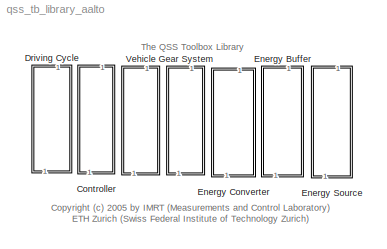
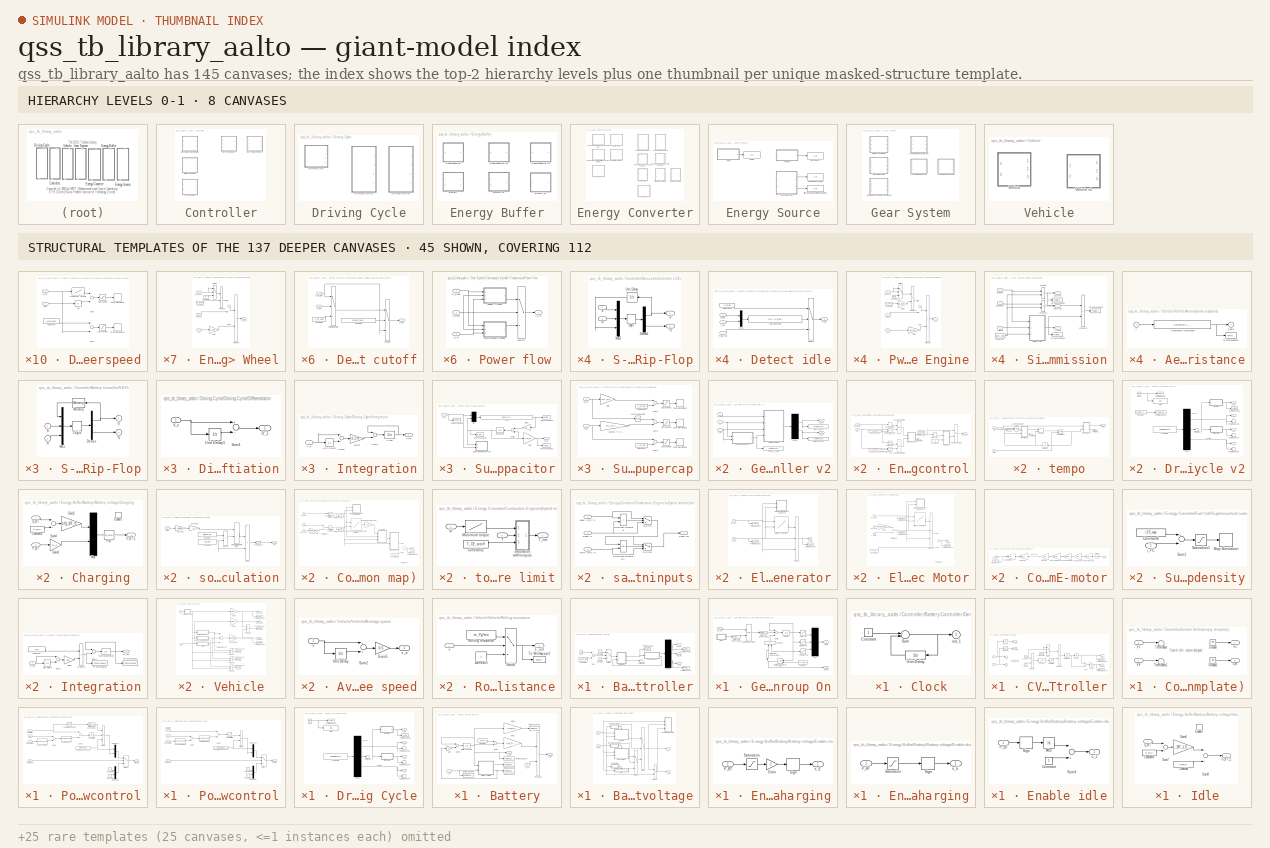
[diagram: thumbnail index - top-2 hierarchy levels (8 canvases) + 45 structural-template representatives of the remaining 137 canvases]
MODEL qss_tb_library_aalto
KIND library
BLOCK [SubSystem] Controller
  Ports = []
  RequestExecContextInheritance = off
  SID = 1
BLOCK [SubSystem] Controller/Battery Controller
  Ports = [1, 3]
  RequestExecContextInheritance = off
  SID = 2
BLOCK [Constant] Controller/Battery Controller/Constant
  OutDataTypeStr = boolean
  SID = 595
BLOCK [Constant] Controller/Battery Controller/Constant1
  SID = 596
  Value = Q_BT_min
BLOCK [Constant] Controller/Battery Controller/Constant2
  OutDataTypeStr = boolean
  SID = 597
  Value = 0
BLOCK [Demux] Controller/Battery Controller/Demux
  Outputs = 3
  Ports = [1, 3]
  SID = 598
BLOCK [SubSystem] Controller/Battery Controller/Geno-Group On
  Ports = [1, 2]
  RequestExecContextInheritance = off
  SID = 599
BLOCK [SubSystem] Controller/Battery Controller/Geno-Group On/Clock
  Ports = [0, 1]
  RequestExecContextInheritance = off
  SID = 601
BLOCK [Constant] Controller/Battery Controller/Geno-Group On/Clock/Constant
  SID = 602
BLOCK [Sum] Controller/Battery Controller/Geno-Group On/Clock/Sum
  Inputs = +-
  Ports = [2, 1]
  SID = 603
BLOCK [UnitDelay] Controller/Battery Controller/Geno-Group On/Clock/Unit Delay
  SID = 604
  SampleTime = duration
BLOCK [Outport] Controller/Battery Controller/Geno-Group On/Clock/out_1
  IconDisplay = Port number
  InitialOutput = 0
  SID = 605
BLOCK [Constant] Controller/Battery Controller/Geno-Group On/Constant
  SID = 606
  Value = cc_done
BLOCK [UnitDelay] Controller/Battery Controller/Geno-Group On/Counter
  SID = 607
  SampleTime = h
BLOCK [DataTypeConversion] Controller/Battery Controller/Geno-Group On/Data Type Conversion1
  OutDataTypeStr = boolean
  RndMeth = Floor
  SID = 608
  SaturateOnIntegerOverflow = off
BLOCK [DataTypeConversion] Controller/Battery Controller/Geno-Group On/Data Type Conversion2
  OutDataTypeStr = double
  RndMeth = Floor
  SID = 609
  SaturateOnIntegerOverflow = off
BLOCK [DataTypeConversion] Controller/Battery Controller/Geno-Group On/Data Type Conversion3
  OutDataTypeStr = double
  RndMeth = Floor
  SID = 610
  SaturateOnIntegerOverflow = off
BLOCK [Logic] Controller/Battery Controller/Geno-Group On/Logical\noperator3
  Ports = [2, 1]
  SID = 611
BLOCK [Mux] Controller/Battery Controller/Geno-Group On/Mux
  Inputs = 3
  Ports = [3, 1]
  SID = 612
BLOCK [Outport] Controller/Battery Controller/Geno-Group On/OutOn
  IconDisplay = Port number
  InitialOutput = 0
  SID = 619
BLOCK [Product] Controller/Battery Controller/Geno-Group On/Product
  Ports = [2, 1]
  SID = 613
BLOCK [RelationalOperator] Controller/Battery Controller/Geno-Group On/Relational\nOperator
  OutDataTypeStr = boolean
  Ports = [2, 1]
  SID = 614
BLOCK [Sum] Controller/Battery Controller/Geno-Group On/Sum3
  Inputs = ++-
  Ports = [3, 1]
  SID = 615
BLOCK [Lookup] Controller/Battery Controller/Geno-Group On/T_EG start-up
  InputValues = t_c
  SID = 616
  Table = T_EG_c
BLOCK [Inport] Controller/Battery Controller/Geno-Group On/cc_on
  IconDisplay = Port number
  SID = 600
BLOCK [Outport] Controller/Battery Controller/Geno-Group On/done
  IconDisplay = Port number
  InitialOutput = 0
  Port = 2
  SID = 620
BLOCK [Lookup] Controller/Battery Controller/Geno-Group On/dw start-up
  InputValues = t_c
  SID = 617
  Table = dw_GG_c
BLOCK [Lookup] Controller/Battery Controller/Geno-Group On/w start-up
  InputValues = t_c
  SID = 618
  Table = w_GG_c
BLOCK [Inport] Controller/Battery Controller/Q_BT
  IconDisplay = Port number
  SID = 594
BLOCK [SubSystem] Controller/Battery Controller/S-R Flip-Flop
  Ports = [2, 2]
  RequestExecContextInheritance = off
  SID = 621
BLOCK [Outport] Controller/Battery Controller/S-R Flip-Flop/!Q
  IconDisplay = Port number
  InitialOutput = 1
  Port = 2
  SID = 629
BLOCK [Demux] Controller/Battery Controller/S-R Flip-Flop/Demux
  Outputs = 2
  Ports = [1, 2]
  SID = 624
BLOCK [CombinatorialLogic] Controller/Battery Controller/S-R Flip-Flop/Logic
  SID = 625
  TruthTable = [0 1;0 1;1 0;0 1;1 0;0 1;1 0;1 0]
BLOCK [Memory] Controller/Battery Controller/S-R Flip-Flop/Memory
  InheritSampleTime = on
  SID = 626
BLOCK [Mux] Controller/Battery Controller/S-R Flip-Flop/Mux
  Inputs = 3
  Ports = [3, 1]
  SID = 627
BLOCK [Outport] Controller/Battery Controller/S-R Flip-Flop/Q
  IconDisplay = Port number
  InitialOutput = 0
  SID = 628
BLOCK [Inport] Controller/Battery Controller/S-R Flip-Flop/R
  IconDisplay = Port number
  Port = 2
  SID = 623
BLOCK [Inport] Controller/Battery Controller/S-R Flip-Flop/S
  IconDisplay = Port number
  SID = 622
BLOCK [Sum] Controller/Battery Controller/Sum
  Inputs = +-
  Ports = [2, 1]
  SID = 630
BLOCK [Switch] Controller/Battery Controller/Switch
  SID = 631
BLOCK [Outport] Controller/Battery Controller/T_ctrl
  IconDisplay = Port number
  InitialOutput = 0
  Port = 3
  SID = 638
BLOCK [Terminator] Controller/Battery Controller/Terminator1
  SID = 632
BLOCK [ToWorkspace] Controller/Battery Controller/To Workspace1
  MaxDataPoints = inf
  Ports = [1]
  SID = 633
  SampleTime = -1
  VariableName = w_ctrl
BLOCK [ToWorkspace] Controller/Battery Controller/To Workspace2
  MaxDataPoints = inf
  Ports = [1]
  SID = 634
  SampleTime = -1
  VariableName = T_ctrl
BLOCK [ToWorkspace] Controller/Battery Controller/To Workspace5
  MaxDataPoints = inf
  Ports = [1]
  SID = 635
  SampleTime = -1
  VariableName = cc_on
BLOCK [Outport] Controller/Battery Controller/dw_ctrl
  IconDisplay = Port number
  InitialOutput = 0
  Port = 2
  SID = 637
BLOCK [Outport] Controller/Battery Controller/w_ctrl
  IconDisplay = Port number
  InitialOutput = 0
  SID = 636
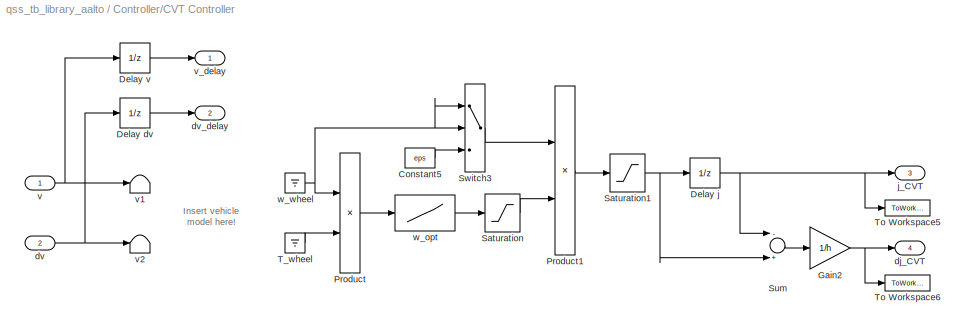
BLOCK [SubSystem] Controller/CVT Controller
  Ports = [2, 4]
  RequestExecContextInheritance = off
  SID = 3
  Tag = cvt controller
BLOCK [Constant] Controller/CVT Controller/Constant5
  SID = 6
  Value = eps
BLOCK [UnitDelay] Controller/CVT Controller/Delay dv
  SID = 7
  SampleTime = h
BLOCK [UnitDelay] Controller/CVT Controller/Delay j
  InitialCondition = j_CVT_min
  SID = 8
  SampleTime = h
BLOCK [UnitDelay] Controller/CVT Controller/Delay v
  SID = 9
  SampleTime = h
BLOCK [Gain] Controller/CVT Controller/Gain2
  Gain = 1/h
  SID = 10
BLOCK [Product] Controller/CVT Controller/Product
  Ports = [2, 1]
  SID = 11
BLOCK [Product] Controller/CVT Controller/Product1
  Inputs = /*
  Ports = [2, 1]
  SID = 12
BLOCK [Saturate] Controller/CVT Controller/Saturation
  InputPortMap = u0
  LowerLimit = w_CVT_idle
  Ports = [1, 1]
  SID = 13
  UpperLimit = w_CVT_upper
BLOCK [Saturate] Controller/CVT Controller/Saturation1
  InputPortMap = u0
  LowerLimit = j_CVT_min
  Ports = [1, 1]
  SID = 14
  UpperLimit = j_CVT_max
BLOCK [Sum] Controller/CVT Controller/Sum
  Inputs = -+
  Ports = [2, 1]
  SID = 15
BLOCK [Switch] Controller/CVT Controller/Switch3
  SID = 16
  Threshold = w_wheel_min
BLOCK [Ground] Controller/CVT Controller/T_wheel
  SID = 17
BLOCK [ToWorkspace] Controller/CVT Controller/To Workspace5
  MaxDataPoints = inf
  Ports = [1]
  SID = 18
  SampleTime = -1
  VariableName = j_CVT
BLOCK [ToWorkspace] Controller/CVT Controller/To Workspace6
  MaxDataPoints = inf
  Ports = [1]
  SID = 19
  SampleTime = -1
  VariableName = dj_CVT
BLOCK [Outport] Controller/CVT Controller/dj_CVT
  IconDisplay = Port number
  InitialOutput = 0
  Port = 4
  SID = 27
BLOCK [Inport] Controller/CVT Controller/dv
  IconDisplay = Port number
  Port = 2
  SID = 5
BLOCK [Outport] Controller/CVT Controller/dv_delay
  IconDisplay = Port number
  InitialOutput = 0
  Port = 2
  SID = 25
BLOCK [Outport] Controller/CVT Controller/j_CVT
  IconDisplay = Port number
  InitialOutput = 0
  Port = 3
  SID = 26
BLOCK [Inport] Controller/CVT Controller/v
  IconDisplay = Port number
  SID = 4
BLOCK [Terminator] Controller/CVT Controller/v1
  SID = 20
BLOCK [Terminator] Controller/CVT Controller/v2
  SID = 21
BLOCK [Outport] Controller/CVT Controller/v_delay
  IconDisplay = Port number
  InitialOutput = 0
  SID = 24
BLOCK [Lookup] Controller/CVT Controller/w_opt
  InputValues = P_CVT_opt
  SID = 22
  Table = w_CVT_opt
BLOCK [Ground] Controller/CVT Controller/w_wheel
  SID = 23
BLOCK [SubSystem] Controller/Control Unit\n(empty template)
  Ports = [2, 2]
  RequestExecContextInheritance = off
  SID = 29
  Tag = control unit
BLOCK [Ground] Controller/Control Unit\n(empty template)/Ground
  SID = 32
BLOCK [Ground] Controller/Control Unit\n(empty template)/Ground1
  SID = 33
BLOCK [Terminator] Controller/Control Unit\n(empty template)/Terminator
  SID = 34
BLOCK [Terminator] Controller/Control Unit\n(empty template)/Terminator1
  SID = 35
BLOCK [Outport] Controller/Control Unit\n(empty template)/u 1
  IconDisplay = Port number
  InitialOutput = 0
  SID = 36
BLOCK [Outport] Controller/Control Unit\n(empty template)/u m
  IconDisplay = Port number
  InitialOutput = 0
  Port = 2
  SID = 37
BLOCK [Inport] Controller/Control Unit\n(empty template)/y 1
  IconDisplay = Port number
  SID = 30
BLOCK [Inport] Controller/Control Unit\n(empty template)/y p
  IconDisplay = Port number
  Port = 2
  SID = 31
BLOCK [SubSystem] Controller/Gen-set Controller
  Ports = [3, 2]
  RequestExecContextInheritance = off
  SID = 1080
BLOCK [Demux] Controller/Gen-set Controller/Demux
  Outputs = 2
  Ports = [1, 2]
  SID = 1084
BLOCK [SubSystem] Controller/Gen-set Controller/Engine start control
  Ports = [2, 1]
  RequestExecContextInheritance = off
  SID = 1085
  ShowPortLabels = none
BLOCK [Constant] Controller/Gen-set Controller/Engine start control/Constant11
  OutDataTypeStr = double
  SID = 1088
  Value = 10
BLOCK [Constant] Controller/Gen-set Controller/Engine start control/Cst_Q_BT_max
  SID = 1089
  Value = soc_max
BLOCK [Constant] Controller/Gen-set Controller/Engine start control/Cst_Q_BT_min
  SID = 1090
  Value = soc_min
BLOCK [DataTypeConversion] Controller/Gen-set Controller/Engine start control/Data Type Conversion2
  OutDataTypeStr = double
  RndMeth = Floor
  SID = 1091
  SaturateOnIntegerOverflow = off
BLOCK [SubSystem] Controller/Gen-set Controller/Engine start control/Engine\non off
  Ports = [2, 2]
  RequestExecContextInheritance = off
  SID = 1092
BLOCK [Outport] Controller/Gen-set Controller/Engine start control/Engine\non off/!Q
  IconDisplay = Port number
  InitialOutput = 1
  Port = 2
  SID = 1100
BLOCK [Demux] Controller/Gen-set Controller/Engine start control/Engine\non off/Demux
  Outputs = 2
  Ports = [1, 2]
  SID = 1095
BLOCK [CombinatorialLogic] Controller/Gen-set Controller/Engine start control/Engine\non off/Logic
  SID = 1096
  TruthTable = [0 1;0 1;1 0;0 1;1 0;0 1;1 0;1 0]
BLOCK [Memory] Controller/Gen-set Controller/Engine start control/Engine\non off/Memory
  InheritSampleTime = on
  SID = 1097
BLOCK [Mux] Controller/Gen-set Controller/Engine start control/Engine\non off/Mux
  Inputs = 3
  Ports = [3, 1]
  SID = 1098
BLOCK [Outport] Controller/Gen-set Controller/Engine start control/Engine\non off/Q
  IconDisplay = Port number
  InitialOutput = 0
  SID = 1099
BLOCK [Inport] Controller/Gen-set Controller/Engine start control/Engine\non off/R
  IconDisplay = Port number
  Port = 2
  SID = 1094
BLOCK [Inport] Controller/Gen-set Controller/Engine start control/Engine\non off/S
  IconDisplay = Port number
  SID = 1093
BLOCK [HitCross] Controller/Gen-set Controller/Engine start control/Hit Crossing
  HitCrossingDirection = rising
  HitCrossingOffset = 0.5
  Ports = [1, 1]
  SID = 1101
BLOCK [Logic] Controller/Gen-set Controller/Engine start control/Logical\noperator1
  Operator = OR
  Ports = [2, 1]
  SID = 1102
BLOCK [Logic] Controller/Gen-set Controller/Engine start control/Logical\noperator2
  Operator = OR
  Ports = [2, 1]
  SID = 1103
BLOCK [Logic] Controller/Gen-set Controller/Engine start control/Logical\noperator3
  Operator = OR
  Ports = [2, 1]
  SID = 1104
BLOCK [RelationalOperator] Controller/Gen-set Controller/Engine start control/Relational\nOperator
  InputSameDT = off
  Operator = <=
  OutDataTypeStr = boolean
  Ports = [2, 1]
  SID = 1105
BLOCK [RelationalOperator] Controller/Gen-set Controller/Engine start control/Relational\nOperator1
  InputSameDT = off
  OutDataTypeStr = boolean
  Ports = [2, 1]
  SID = 1106
BLOCK [Terminator] Controller/Gen-set Controller/Engine start control/Terminator2
  SID = 1107
BLOCK [Outport] Controller/Gen-set Controller/Engine start control/engine on
  IconDisplay = Port number
  SID = 1139
BLOCK [Reference] Controller/Gen-set Controller/Engine start control/low speed  REF=simulink/Logic and Bit\nOperations/Compare\nTo Constant
  OutDataTypeStr = boolean
  Ports = [1, 1]
  SID = 1108
  SourceBlock = simulink/Logic and Bit\nOperations/Compare\nTo Constant
  SourceType = Compare To Constant
  ZeroCross = on
  const = 1
  relop = <=
BLOCK [Inport] Controller/Gen-set Controller/Engine start control/soc
  IconDisplay = Port number
  Port = 2
  SID = 1087
BLOCK [Inport] Controller/Gen-set Controller/Engine start control/speed (m//s)
  IconDisplay = Port number
  SID = 1086
BLOCK [Relay] Controller/Gen-set Controller/Engine start control/speed min-max
  OffSwitchValue = spd_min/3.6
  OnSwitchValue = spd_max/3.6
  OutDataTypeStr = Inherit: Inherit via back propagation
  SID = 1109
BLOCK [SubSystem] Controller/Gen-set Controller/Engine start control/tempo
  Ports = [2, 1]
  RequestExecContextInheritance = off
  SID = 1110
BLOCK [SubSystem] Controller/Gen-set Controller/Engine start control/tempo/S-R\nFlip-Flop
  Ports = [2, 2]
  RequestExecContextInheritance = off
  SID = 1113
BLOCK [Outport] Controller/Gen-set Controller/Engine start control/tempo/S-R\nFlip-Flop/!Q
  IconDisplay = Port number
  InitialOutput = 1
  Port = 2
  SID = 1121
BLOCK [Demux] Controller/Gen-set Controller/Engine start control/tempo/S-R\nFlip-Flop/Demux2
  DisplayOption = bar
  Outputs = 2
  Ports = [1, 2]
  SID = 1116
BLOCK [CombinatorialLogic] Controller/Gen-set Controller/Engine start control/tempo/S-R\nFlip-Flop/Logic
  SID = 1117
  TruthTable = [0 1;1 0;0 1;0 1;1 0;1 0;0 0;0 0]
BLOCK [Mux] Controller/Gen-set Controller/Engine start control/tempo/S-R\nFlip-Flop/Mux2
  DisplayOption = bar
  Inputs = 3
  Ports = [3, 1]
  SID = 1118
BLOCK [Outport] Controller/Gen-set Controller/Engine start control/tempo/S-R\nFlip-Flop/Q
  IconDisplay = Port number
  InitialOutput = 0
  SID = 1120
BLOCK [Inport] Controller/Gen-set Controller/Engine start control/tempo/S-R\nFlip-Flop/R
  IconDisplay = Port number
  Port = 2
  SID = 1115
BLOCK [Inport] Controller/Gen-set Controller/Engine start control/tempo/S-R\nFlip-Flop/S
  IconDisplay = Port number
  SID = 1114
BLOCK [UnitDelay] Controller/Gen-set Controller/Engine start control/tempo/S-R\nFlip-Flop/Unit Delay
  InitialCondition = initial_condition
  InputProcessing = Elements as channels (sample based)
  SID = 1119
  SampleTime = -1
BLOCK [Terminator] Controller/Gen-set Controller/Engine start control/tempo/Terminator
  SID = 1122
BLOCK [UnitDelay] Controller/Gen-set Controller/Engine start control/tempo/Unit Delay
  SID = 1123
  SampleTime = h
BLOCK [Logic] Controller/Gen-set Controller/Engine start control/tempo/__Logical\nOperator2
  Ports = [2, 1]
  SID = 1124
BLOCK [Logic] Controller/Gen-set Controller/Engine start control/tempo/__Logical\nOperator3
  Operator = NOT
  Ports = [1, 1]
  SID = 1125
BLOCK [Terminator] Controller/Gen-set Controller/Engine start control/tempo/__Terminator
  SID = 1126
BLOCK [DiscreteIntegrator] Controller/Gen-set Controller/Engine start control/tempo/counter
  ExternalReset = rising
  ICPrevOutput = DiscIntNeverNeededParam
  ICPrevScaledInput = DiscIntNeverNeededParam
  Ports = [2, 1]
  SID = 1127
  SampleTime = h
BLOCK [RelationalOperator] Controller/Gen-set Controller/Engine start control/tempo/end of tempo
  Ports = [2, 1]
  SID = 1128
BLOCK [Inport] Controller/Gen-set Controller/Engine start control/tempo/flag
  IconDisplay = Port number
  SID = 1111
BLOCK [Outport] Controller/Gen-set Controller/Engine start control/tempo/tempo
  IconDisplay = Port number
  SID = 1138
BLOCK [SubSystem] Controller/Gen-set Controller/Engine start control/tempo/tempo ok --> 1
  Ports = [2, 2]
  RequestExecContextInheritance = off
  SID = 1129
BLOCK [Outport] Controller/Gen-set Controller/Engine start control/tempo/tempo ok --> 1/!Q
  IconDisplay = Port number
  InitialOutput = 1
  Port = 2
  SID = 1137
BLOCK [Demux] Controller/Gen-set Controller/Engine start control/tempo/tempo ok --> 1/Demux2
  DisplayOption = bar
  Outputs = 2
  Ports = [1, 2]
  SID = 1132
BLOCK [CombinatorialLogic] Controller/Gen-set Controller/Engine start control/tempo/tempo ok --> 1/Logic
  SID = 1133
  TruthTable = [0 1;0 1;1 0;0 1;1 0;0 1;1 0;1 0]
BLOCK [Mux] Controller/Gen-set Controller/Engine start control/tempo/tempo ok --> 1/Mux2
  DisplayOption = bar
  Inputs = 3
  Ports = [3, 1]
  SID = 1134
BLOCK [Outport] Controller/Gen-set Controller/Engine start control/tempo/tempo ok --> 1/Q
  IconDisplay = Port number
  InitialOutput = 0
  SID = 1136
BLOCK [Inport] Controller/Gen-set Controller/Engine start control/tempo/tempo ok --> 1/R
  IconDisplay = Port number
  Port = 2
  SID = 1131
BLOCK [Inport] Controller/Gen-set Controller/Engine start control/tempo/tempo ok --> 1/S
  IconDisplay = Port number
  SID = 1130
BLOCK [UnitDelay] Controller/Gen-set Controller/Engine start control/tempo/tempo ok --> 1/Unit Delay1
  InitialCondition = initial_condition
  SID = 1135
  SampleTime = Tech
BLOCK [Inport] Controller/Gen-set Controller/Engine start control/tempo/time
  IconDisplay = Port number
  Port = 2
  SID = 1112
BLOCK [Inport] Controller/Gen-set Controller/P_EM
  IconDisplay = Port number
  Port = 3
  SID = 1083
BLOCK [SubSystem] Controller/Gen-set Controller/Power control
  Ports = [4, 1]
  RequestExecContextInheritance = off
  SID = 1140
  ShowPortLabels = none
BLOCK [Constant] Controller/Gen-set Controller/Power control/Constant5
  OutDataTypeStr = double
  SID = 1145
  Value = 0
BLOCK [Constant] Controller/Gen-set Controller/Power control/Constant6
  OutDataTypeStr = double
  SID = 1146
  Value = 0
BLOCK [Constant] Controller/Gen-set Controller/Power control/Cst_ctrl_speed*pi_30
  OutDataTypeStr = double
  SID = 1147
  SampleTime = Inf
  Value = ctrl_speed*pi/30
BLOCK [Mux] Controller/Gen-set Controller/Power control/Engine off
  DisplayOption = bar
  Inputs = 2
  Ports = [2, 1]
  SID = 1148
BLOCK [Mux] Controller/Gen-set Controller/Power control/Engine on
  DisplayOption = bar
  Inputs = 2
  Ports = [2, 1]
  SID = 1149
BLOCK [Sum] Controller/Gen-set Controller/Power control/Sum1
  Ports = [2, 1]
  SID = 1150
BLOCK [Sum] Controller/Gen-set Controller/Power control/Sum2
  Ports = [2, 1]
  SID = 1151
BLOCK [Switch] Controller/Gen-set Controller/Power control/Switch1
  Criteria = u2 > Threshold
  SID = 1152
  Threshold = 0.5
BLOCK [Lookup_n-D] Controller/Gen-set Controller/Power control/charging power
  BreakpointsForDimension1 = [0 0.6 0.71 0.75 0.8 1]
  NumberOfTableDimensions = 1
  Ports = [1, 1]
  RndMeth = Simplest
  SID = 1153
  Table = [power_max power_max 0 0 -power_max/2 -power_max/2]
BLOCK [Outport] Controller/Gen-set Controller/Power control/ctrl cmds
  IconDisplay = Port number
  SID = 1157
BLOCK [Inport] Controller/Gen-set Controller/Power control/engine on
  IconDisplay = Port number
  Port = 4
  SID = 1144
BLOCK [Inport] Controller/Gen-set Controller/Power control/power (W)
  IconDisplay = Port number
  SID = 1141
BLOCK [Saturate] Controller/Gen-set Controller/Power control/power\nlimit
  InputPortMap = u0
  LowerLimit = 0
  Ports = [1, 1]
  SID = 1154
  UpperLimit = power_max
BLOCK [Inport] Controller/Gen-set Controller/Power control/soc
  IconDisplay = Port number
  Port = 3
  SID = 1143
BLOCK [Inport] Controller/Gen-set Controller/Power control/speed (m//s)
  IconDisplay = Port number
  Port = 2
  SID = 1142
BLOCK [Lookup_n-D] Controller/Gen-set Controller/Power control/speed correction
  BreakpointsForDimension1 = [0 120]/3.6
  NumberOfTableDimensions = 1
  Ports = [1, 1]
  RndMeth = Simplest
  SID = 1155
  Table = [0 spd_coeff]
BLOCK [Product] Controller/Gen-set Controller/Power control/torque
  Inputs = */
  Ports = [2, 1]
  SID = 1156
BLOCK [Outport] Controller/Gen-set Controller/T_ctrl
  IconDisplay = Port number
  InitialOutput = 0
  Port = 2
  SID = 1162
BLOCK [ToWorkspace] Controller/Gen-set Controller/ToWS_T_ctrl
  MaxDataPoints = inf
  Ports = [1]
  SID = 1158
  SampleTime = -1
  VariableName = T_ctrl
BLOCK [ToWorkspace] Controller/Gen-set Controller/ToWS_T_ctrl1
  MaxDataPoints = inf
  Ports = [1]
  SID = 1159
  SampleTime = -1
  VariableName = ice_on
BLOCK [ToWorkspace] Controller/Gen-set Controller/ToWS_w_ctrl
  MaxDataPoints = inf
  Ports = [1]
  SID = 1160
  SampleTime = -1
  VariableName = w_ctrl
BLOCK [Inport] Controller/Gen-set Controller/q_BT
  IconDisplay = Port number
  SID = 1081
BLOCK [Inport] Controller/Gen-set Controller/v
  IconDisplay = Port number
  Port = 2
  SID = 1082
BLOCK [Outport] Controller/Gen-set Controller/w_ctrl
  IconDisplay = Port number
  InitialOutput = 0
  SID = 1161
BLOCK [SubSystem] Controller/Gen-set\nController v2
  Ports = [3, 2]
  RequestExecContextInheritance = off
  SID = 1418
BLOCK [Demux] Controller/Gen-set\nController v2/Demux
  Outputs = 2
  Ports = [1, 2]
  SID = 1422
BLOCK [SubSystem] Controller/Gen-set\nController v2/Engine start control
  Ports = [2, 1]
  RequestExecContextInheritance = off
  SID = 1423
  ShowPortLabels = none
BLOCK [Constant] Controller/Gen-set\nController v2/Engine start control/Constant11
  OutDataTypeStr = double
  SID = 1426
  Value = 10
BLOCK [Constant] Controller/Gen-set\nController v2/Engine start control/Cst_Q_BT_max
  SID = 1427
  Value = soc_max
BLOCK [Constant] Controller/Gen-set\nController v2/Engine start control/Cst_Q_BT_min
  SID = 1428
  Value = soc_min
BLOCK [DataTypeConversion] Controller/Gen-set\nController v2/Engine start control/Data Type Conversion2
  OutDataTypeStr = double
  RndMeth = Floor
  SID = 1429
  SaturateOnIntegerOverflow = off
BLOCK [SubSystem] Controller/Gen-set\nController v2/Engine start control/Engine\non off
  Ports = [2, 2]
  RequestExecContextInheritance = off
  SID = 1430
BLOCK [Outport] Controller/Gen-set\nController v2/Engine start control/Engine\non off/!Q
  IconDisplay = Port number
  InitialOutput = 1
  Port = 2
  SID = 1438
BLOCK [Demux] Controller/Gen-set\nController v2/Engine start control/Engine\non off/Demux
  Outputs = 2
  Ports = [1, 2]
  SID = 1433
BLOCK [CombinatorialLogic] Controller/Gen-set\nController v2/Engine start control/Engine\non off/Logic
  SID = 1434
  TruthTable = [0 1;0 1;1 0;0 1;1 0;0 1;1 0;1 0]
BLOCK [Memory] Controller/Gen-set\nController v2/Engine start control/Engine\non off/Memory
  InheritSampleTime = on
  SID = 1435
BLOCK [Mux] Controller/Gen-set\nController v2/Engine start control/Engine\non off/Mux
  Inputs = 3
  Ports = [3, 1]
  SID = 1436
BLOCK [Outport] Controller/Gen-set\nController v2/Engine start control/Engine\non off/Q
  IconDisplay = Port number
  InitialOutput = 0
  SID = 1437
BLOCK [Inport] Controller/Gen-set\nController v2/Engine start control/Engine\non off/R
  IconDisplay = Port number
  Port = 2
  SID = 1432
BLOCK [Inport] Controller/Gen-set\nController v2/Engine start control/Engine\non off/S
  IconDisplay = Port number
  SID = 1431
BLOCK [HitCross] Controller/Gen-set\nController v2/Engine start control/Hit Crossing
  HitCrossingDirection = rising
  HitCrossingOffset = 0.5
  Ports = [1, 1]
  SID = 1439
BLOCK [Logic] Controller/Gen-set\nController v2/Engine start control/Logical\noperator1
  Operator = OR
  Ports = [2, 1]
  SID = 1440
BLOCK [Logic] Controller/Gen-set\nController v2/Engine start control/Logical\noperator2
  Operator = OR
  Ports = [2, 1]
  SID = 1441
BLOCK [Logic] Controller/Gen-set\nController v2/Engine start control/Logical\noperator3
  Operator = OR
  Ports = [2, 1]
  SID = 1442
BLOCK [RelationalOperator] Controller/Gen-set\nController v2/Engine start control/Relational\nOperator
  InputSameDT = off
  Operator = <=
  OutDataTypeStr = boolean
  Ports = [2, 1]
  SID = 1443
BLOCK [RelationalOperator] Controller/Gen-set\nController v2/Engine start control/Relational\nOperator1
  InputSameDT = off
  OutDataTypeStr = boolean
  Ports = [2, 1]
  SID = 1444
BLOCK [Terminator] Controller/Gen-set\nController v2/Engine start control/Terminator2
  SID = 1445
BLOCK [Outport] Controller/Gen-set\nController v2/Engine start control/engine on
  IconDisplay = Port number
  SID = 1477
BLOCK [Reference] Controller/Gen-set\nController v2/Engine start control/low speed  REF=simulink/Logic and Bit\nOperations/Compare\nTo Constant
  OutDataTypeStr = boolean
  Ports = [1, 1]
  SID = 1446
  SourceBlock = simulink/Logic and Bit\nOperations/Compare\nTo Constant
  SourceType = Compare To Constant
  ZeroCross = on
  const = 1
  relop = <=
BLOCK [Inport] Controller/Gen-set\nController v2/Engine start control/soc
  IconDisplay = Port number
  Port = 2
  SID = 1425
BLOCK [Inport] Controller/Gen-set\nController v2/Engine start control/speed (m//s)
  IconDisplay = Port number
  SID = 1424
BLOCK [Relay] Controller/Gen-set\nController v2/Engine start control/speed min-max
  OffSwitchValue = spd_min/3.6
  OnSwitchValue = spd_max/3.6
  OutDataTypeStr = Inherit: Inherit via back propagation
  SID = 1447
BLOCK [SubSystem] Controller/Gen-set\nController v2/Engine start control/tempo
  Ports = [2, 1]
  RequestExecContextInheritance = off
  SID = 1448
BLOCK [SubSystem] Controller/Gen-set\nController v2/Engine start control/tempo/S-R\nFlip-Flop
  Ports = [2, 2]
  RequestExecContextInheritance = off
  SID = 1451
BLOCK [Outport] Controller/Gen-set\nController v2/Engine start control/tempo/S-R\nFlip-Flop/!Q
  IconDisplay = Port number
  InitialOutput = 1
  Port = 2
  SID = 1459
BLOCK [Demux] Controller/Gen-set\nController v2/Engine start control/tempo/S-R\nFlip-Flop/Demux2
  DisplayOption = bar
  Outputs = 2
  Ports = [1, 2]
  SID = 1454
BLOCK [CombinatorialLogic] Controller/Gen-set\nController v2/Engine start control/tempo/S-R\nFlip-Flop/Logic
  SID = 1455
  TruthTable = [0 1;1 0;0 1;0 1;1 0;1 0;0 0;0 0]
BLOCK [Mux] Controller/Gen-set\nController v2/Engine start control/tempo/S-R\nFlip-Flop/Mux2
  DisplayOption = bar
  Inputs = 3
  Ports = [3, 1]
  SID = 1456
BLOCK [Outport] Controller/Gen-set\nController v2/Engine start control/tempo/S-R\nFlip-Flop/Q
  IconDisplay = Port number
  InitialOutput = 0
  SID = 1458
BLOCK [Inport] Controller/Gen-set\nController v2/Engine start control/tempo/S-R\nFlip-Flop/R
  IconDisplay = Port number
  Port = 2
  SID = 1453
BLOCK [Inport] Controller/Gen-set\nController v2/Engine start control/tempo/S-R\nFlip-Flop/S
  IconDisplay = Port number
  SID = 1452
BLOCK [UnitDelay] Controller/Gen-set\nController v2/Engine start control/tempo/S-R\nFlip-Flop/Unit Delay
  InitialCondition = initial_condition
  InputProcessing = Elements as channels (sample based)
  SID = 1457
  SampleTime = -1
BLOCK [Terminator] Controller/Gen-set\nController v2/Engine start control/tempo/Terminator
  SID = 1460
BLOCK [UnitDelay] Controller/Gen-set\nController v2/Engine start control/tempo/Unit Delay
  SID = 1461
  SampleTime = h
BLOCK [Logic] Controller/Gen-set\nController v2/Engine start control/tempo/__Logical\nOperator2
  Ports = [2, 1]
  SID = 1462
BLOCK [Logic] Controller/Gen-set\nController v2/Engine start control/tempo/__Logical\nOperator3
  Operator = NOT
  Ports = [1, 1]
  SID = 1463
BLOCK [Terminator] Controller/Gen-set\nController v2/Engine start control/tempo/__Terminator
  SID = 1464
BLOCK [DiscreteIntegrator] Controller/Gen-set\nController v2/Engine start control/tempo/counter
  ExternalReset = rising
  ICPrevOutput = DiscIntNeverNeededParam
  ICPrevScaledInput = DiscIntNeverNeededParam
  Ports = [2, 1]
  SID = 1465
  SampleTime = h
BLOCK [RelationalOperator] Controller/Gen-set\nController v2/Engine start control/tempo/end of tempo
  Ports = [2, 1]
  SID = 1466
BLOCK [Inport] Controller/Gen-set\nController v2/Engine start control/tempo/flag
  IconDisplay = Port number
  SID = 1449
BLOCK [Outport] Controller/Gen-set\nController v2/Engine start control/tempo/tempo
  IconDisplay = Port number
  SID = 1476
BLOCK [SubSystem] Controller/Gen-set\nController v2/Engine start control/tempo/tempo ok --> 1
  Ports = [2, 2]
  RequestExecContextInheritance = off
  SID = 1467
BLOCK [Outport] Controller/Gen-set\nController v2/Engine start control/tempo/tempo ok --> 1/!Q
  IconDisplay = Port number
  InitialOutput = 1
  Port = 2
  SID = 1475
BLOCK [Demux] Controller/Gen-set\nController v2/Engine start control/tempo/tempo ok --> 1/Demux2
  DisplayOption = bar
  Outputs = 2
  Ports = [1, 2]
  SID = 1470
BLOCK [CombinatorialLogic] Controller/Gen-set\nController v2/Engine start control/tempo/tempo ok --> 1/Logic
  SID = 1471
  TruthTable = [0 1;0 1;1 0;0 1;1 0;0 1;1 0;1 0]
BLOCK [Mux] Controller/Gen-set\nController v2/Engine start control/tempo/tempo ok --> 1/Mux2
  DisplayOption = bar
  Inputs = 3
  Ports = [3, 1]
  SID = 1472
BLOCK [Outport] Controller/Gen-set\nController v2/Engine start control/tempo/tempo ok --> 1/Q
  IconDisplay = Port number
  InitialOutput = 0
  SID = 1474
BLOCK [Inport] Controller/Gen-set\nController v2/Engine start control/tempo/tempo ok --> 1/R
  IconDisplay = Port number
  Port = 2
  SID = 1469
BLOCK [Inport] Controller/Gen-set\nController v2/Engine start control/tempo/tempo ok --> 1/S
  IconDisplay = Port number
  SID = 1468
BLOCK [UnitDelay] Controller/Gen-set\nController v2/Engine start control/tempo/tempo ok --> 1/Unit Delay1
  InitialCondition = initial_condition
  SID = 1473
  SampleTime = Tech
BLOCK [Inport] Controller/Gen-set\nController v2/Engine start control/tempo/time
  IconDisplay = Port number
  Port = 2
  SID = 1450
BLOCK [Inport] Controller/Gen-set\nController v2/P_EM
  IconDisplay = Port number
  Port = 3
  SID = 1421
BLOCK [SubSystem] Controller/Gen-set\nController v2/Power control
  Ports = [4, 1]
  RequestExecContextInheritance = off
  SID = 1478
  ShowPortLabels = none
BLOCK [Reference] Controller/Gen-set\nController v2/Power control/Compare\nTo Zero  REF=simulink/Logic and Bit\nOperations/Compare\nTo Zero
  OutDataTypeStr = boolean
  Ports = [1, 1]
  SID = 1483
  SourceBlock = simulink/Logic and Bit\nOperations/Compare\nTo Zero
  SourceType = Compare To Zero
  ZeroCross = on
  relop = >
BLOCK [Constant] Controller/Gen-set\nController v2/Power control/Constant5
  OutDataTypeStr = double
  SID = 1484
  Value = 0
BLOCK [Constant] Controller/Gen-set\nController v2/Power control/Constant6
  OutDataTypeStr = double
  SID = 1485
  Value = 0
BLOCK [Constant] Controller/Gen-set\nController v2/Power control/Cst_ctrl_speed*pi_30
  OutDataTypeStr = double
  SID = 1486
  SampleTime = Inf
  Value = ctrl_speed*pi/30
BLOCK [DataTypeConversion] Controller/Gen-set\nController v2/Power control/Data Type Conversion2
  OutDataTypeStr = double
  RndMeth = Floor
  SID = 1487
  SaturateOnIntegerOverflow = off
BLOCK [Mux] Controller/Gen-set\nController v2/Power control/Engine off
  DisplayOption = bar
  Inputs = 2
  Ports = [2, 1]
  SID = 1488
BLOCK [Mux] Controller/Gen-set\nController v2/Power control/Engine on
  DisplayOption = bar
  Inputs = 2
  Ports = [2, 1]
  SID = 1489
BLOCK [Sum] Controller/Gen-set\nController v2/Power control/Sum1
  Ports = [2, 1]
  SID = 1490
BLOCK [Sum] Controller/Gen-set\nController v2/Power control/Sum2
  Ports = [2, 1]
  SID = 1491
BLOCK [Switch] Controller/Gen-set\nController v2/Power control/Switch1
  Criteria = u2 > Threshold
  SID = 1492
  Threshold = 0.5
BLOCK [Lookup_n-D] Controller/Gen-set\nController v2/Power control/charging power
  BreakpointsForDimension1 = [0 0.6 0.71 0.75 0.8 1]
  NumberOfTableDimensions = 1
  Ports = [1, 1]
  RndMeth = Simplest
  SID = 1493
  Table = [power_max power_max 0 0 -power_max/2 -power_max/2]
BLOCK [Outport] Controller/Gen-set\nController v2/Power control/ctrl cmds
  IconDisplay = Port number
  SID = 1497
BLOCK [Inport] Controller/Gen-set\nController v2/Power control/engine on
  IconDisplay = Port number
  Port = 4
  SID = 1482
BLOCK [Inport] Controller/Gen-set\nController v2/Power control/power (W)
  IconDisplay = Port number
  SID = 1479
BLOCK [Saturate] Controller/Gen-set\nController v2/Power control/power\nlimit
  InputPortMap = u0
  LowerLimit = 0
  Ports = [1, 1]
  SID = 1494
  UpperLimit = power_max
BLOCK [Inport] Controller/Gen-set\nController v2/Power control/soc
  IconDisplay = Port number
  Port = 3
  SID = 1481
BLOCK [Inport] Controller/Gen-set\nController v2/Power control/speed (m//s)
  IconDisplay = Port number
  Port = 2
  SID = 1480
BLOCK [Lookup_n-D] Controller/Gen-set\nController v2/Power control/speed correction
  BreakpointsForDimension1 = [0 120]/3.6
  NumberOfTableDimensions = 1
  Ports = [1, 1]
  RndMeth = Simplest
  SID = 1495
  Table = [0 spd_coeff]
BLOCK [Product] Controller/Gen-set\nController v2/Power control/torque
  Inputs = **/
  Ports = [3, 1]
  SID = 1496
BLOCK [Outport] Controller/Gen-set\nController v2/T_ctrl
  IconDisplay = Port number
  InitialOutput = 0
  Port = 2
  SID = 1502
BLOCK [ToWorkspace] Controller/Gen-set\nController v2/ToWS_T_ctrl
  MaxDataPoints = inf
  Ports = [1]
  SID = 1498
  SampleTime = -1
  VariableName = T_ctrl
BLOCK [ToWorkspace] Controller/Gen-set\nController v2/ToWS_T_ctrl1
  MaxDataPoints = inf
  Ports = [1]
  SID = 1499
  SampleTime = -1
  VariableName = ice_on
BLOCK [ToWorkspace] Controller/Gen-set\nController v2/ToWS_w_ctrl
  MaxDataPoints = inf
  Ports = [1]
  SID = 1500
  SampleTime = -1
  VariableName = w_ctrl
BLOCK [Inport] Controller/Gen-set\nController v2/q_BT
  IconDisplay = Port number
  SID = 1419
BLOCK [Inport] Controller/Gen-set\nController v2/v
  IconDisplay = Port number
  Port = 2
  SID = 1420
BLOCK [Outport] Controller/Gen-set\nController v2/w_ctrl
  IconDisplay = Port number
  InitialOutput = 0
  SID = 1501
BLOCK [SubSystem] Driving Cycle
  Ports = []
  RequestExecContextInheritance = off
  SID = 39
BLOCK [SubSystem] Driving Cycle/Driving Cycle
  Ports = [0, 4]
  RequestExecContextInheritance = off
  SID = 40
  Tag = cycle
BLOCK [SubSystem] Driving Cycle/Driving Cycle v2
  Ports = [0, 4]
  RequestExecContextInheritance = off
  SID = 745
  Tag = cycle
BLOCK [Clock] Driving Cycle/Driving Cycle v2/Clock
  SID = 746
BLOCK [Constant] Driving Cycle/Driving Cycle v2/Constant
  SID = 747
  Value = length(T_z)
BLOCK [FromWorkspace] Driving Cycle/Driving Cycle v2/Cycle data
  SID = 748
  SampleTime = h
  VariableName = [T_z, V_z, D_z, G_z]
BLOCK [Demux] Driving Cycle/Driving Cycle v2/Demux
  Outputs = 3
  Ports = [1, 3]
  SID = 749
BLOCK [SubSystem] Driving Cycle/Driving Cycle v2/Differentiation
  Ports = [1, 1]
  RequestExecContextInheritance = off
  SID = 750
BLOCK [Outport] Driving Cycle/Driving Cycle v2/Differentiation/D_z
  IconDisplay = Port number
  InitialOutput = 0
  SID = 754
BLOCK [Sum] Driving Cycle/Driving Cycle v2/Differentiation/Sum1
  Inputs = +-
  Ports = [2, 1]
  SID = 752
BLOCK [UnitDelay] Driving Cycle/Driving Cycle v2/Differentiation/Unit Delay1
  SID = 753
  SampleTime = h
BLOCK [Inport] Driving Cycle/Driving Cycle v2/Differentiation/V_z
  IconDisplay = Port number
  SID = 751
BLOCK [SubSystem] Driving Cycle/Driving Cycle v2/Integration
  Ports = [1, 1]
  RequestExecContextInheritance = off
  SID = 755
BLOCK [Gain] Driving Cycle/Driving Cycle v2/Integration/Gain4
  Gain = 0.5*h
  SID = 757
BLOCK [UnitDelay] Driving Cycle/Driving Cycle v2/Integration/Plant
  InitialCondition = 1
  SID = 758
  SampleTime = h
BLOCK [Sum] Driving Cycle/Driving Cycle v2/Integration/Sum2
  Ports = [2, 1]
  SID = 759
BLOCK [Sum] Driving Cycle/Driving Cycle v2/Integration/Sum4
  Ports = [2, 1]
  SID = 760
BLOCK [UnitDelay] Driving Cycle/Driving Cycle v2/Integration/Unit Delay2
  SID = 761
  SampleTime = h
BLOCK [Inport] Driving Cycle/Driving Cycle v2/Integration/V_z
  IconDisplay = Port number
  SID = 756
BLOCK [Outport] Driving Cycle/Driving Cycle v2/Integration/x_tot
  IconDisplay = Port number
  InitialOutput = 0
  SID = 762
BLOCK [Terminator] Driving Cycle/Driving Cycle v2/Terminator
  SID = 763
BLOCK [Display] Driving Cycle/Driving Cycle v2/Time
  Decimation = 1
  Ports = [1]
  SID = 764
BLOCK [ToWorkspace] Driving Cycle/Driving Cycle v2/To Workspace1
  MaxDataPoints = inf
  Ports = [1]
  SID = 765
  SampleTime = -1
  VariableName = t
BLOCK [ToWorkspace] Driving Cycle/Driving Cycle v2/To Workspace2
  MaxDataPoints = inf
  Ports = [1]
  SID = 766
  SampleTime = -1
  VariableName = x_tot
BLOCK [ToWorkspace] Driving Cycle/Driving Cycle v2/To Workspace3
  MaxDataPoints = inf
  Ports = [1]
  SID = 767
  SampleTime = -1
  StopFcn = if stop_time(end) > t(end)                              disp(' ')                                                 \ndisp('WARNING: Simulation stopped before the end of the cycle. Check your model for correct component parameters')\ndisp(' ')                                                                                                         \nend
  VariableName = stop_time
BLOCK [ToWorkspace] Driving Cycle/Driving Cycle v2/To Workspace4
  MaxDataPoints = inf
  Ports = [1]
  SID = 768
  SampleTime = -1
  VariableName = dv
BLOCK [ToWorkspace] Driving Cycle/Driving Cycle v2/To Workspace5
  MaxDataPoints = inf
  Ports = [1]
  SID = 769
  SampleTime = -1
  VariableName = v
BLOCK [ToWorkspace] Driving Cycle/Driving Cycle v2/To Workspace6
  MaxDataPoints = inf
  Ports = [1]
  SID = 770
  SampleTime = -1
  VariableName = i
BLOCK [Outport] Driving Cycle/Driving Cycle v2/dv
  IconDisplay = Port number
  InitialOutput = 0
  Port = 2
  SID = 772
BLOCK [Outport] Driving Cycle/Driving Cycle v2/i
  IconDisplay = Port number
  InitialOutput = 0
  Port = 3
  SID = 773
BLOCK [Outport] Driving Cycle/Driving Cycle v2/v
  IconDisplay = Port number
  InitialOutput = 0
  SID = 771
BLOCK [Outport] Driving Cycle/Driving Cycle v2/x_tot
  IconDisplay = Port number
  InitialOutput = 0
  Port = 4
  SID = 774
BLOCK [SubSystem] Driving Cycle/Driving Cycle v3
  Ports = [0, 4]
  RequestExecContextInheritance = off
  SID = 1572
  Tag = cycle
BLOCK [Clock] Driving Cycle/Driving Cycle v3/Clock
  SID = 1573
BLOCK [Constant] Driving Cycle/Driving Cycle v3/Constant
  SID = 1574
  Value = length(T_z)
BLOCK [FromWorkspace] Driving Cycle/Driving Cycle v3/Cycle data
  SID = 1575
  SampleTime = h
  VariableName = [T_z, V_z, D_z, G_z]
BLOCK [Demux] Driving Cycle/Driving Cycle v3/Demux
  Outputs = 3
  Ports = [1, 3]
  SID = 1576
BLOCK [SubSystem] Driving Cycle/Driving Cycle v3/Differentiation
  Ports = [1, 1]
  RequestExecContextInheritance = off
  SID = 1577
BLOCK [Outport] Driving Cycle/Driving Cycle v3/Differentiation/D_z
  IconDisplay = Port number
  InitialOutput = 0
  SID = 1581
BLOCK [Sum] Driving Cycle/Driving Cycle v3/Differentiation/Sum1
  Inputs = +-
  Ports = [2, 1]
  SID = 1579
BLOCK [UnitDelay] Driving Cycle/Driving Cycle v3/Differentiation/Unit Delay1
  SID = 1580
  SampleTime = h
BLOCK [Inport] Driving Cycle/Driving Cycle v3/Differentiation/V_z
  IconDisplay = Port number
  SID = 1578
BLOCK [SubSystem] Driving Cycle/Driving Cycle v3/Integration
  Ports = [1, 1]
  RequestExecContextInheritance = off
  SID = 1582
BLOCK [Gain] Driving Cycle/Driving Cycle v3/Integration/Gain4
  Gain = 0.5*h
  SID = 1584
BLOCK [UnitDelay] Driving Cycle/Driving Cycle v3/Integration/Plant
  InitialCondition = 1
  SID = 1585
  SampleTime = h
BLOCK [Sum] Driving Cycle/Driving Cycle v3/Integration/Sum2
  Ports = [2, 1]
  SID = 1586
BLOCK [Sum] Driving Cycle/Driving Cycle v3/Integration/Sum4
  Ports = [2, 1]
  SID = 1587
BLOCK [UnitDelay] Driving Cycle/Driving Cycle v3/Integration/Unit Delay2
  SID = 1588
  SampleTime = h
BLOCK [Inport] Driving Cycle/Driving Cycle v3/Integration/V_z
  IconDisplay = Port number
  SID = 1583
BLOCK [Outport] Driving Cycle/Driving Cycle v3/Integration/x_tot
  IconDisplay = Port number
  InitialOutput = 0
  SID = 1589
BLOCK [Terminator] Driving Cycle/Driving Cycle v3/Terminator
  SID = 1590
BLOCK [Display] Driving Cycle/Driving Cycle v3/Time
  Decimation = 1
  Ports = [1]
  SID = 1591
BLOCK [ToWorkspace] Driving Cycle/Driving Cycle v3/To Workspace1
  MaxDataPoints = inf
  Ports = [1]
  SID = 1592
  SampleTime = -1
  VariableName = t
BLOCK [ToWorkspace] Driving Cycle/Driving Cycle v3/To Workspace2
  MaxDataPoints = inf
  Ports = [1]
  SID = 1593
  SampleTime = -1
  VariableName = x_tot
BLOCK [ToWorkspace] Driving Cycle/Driving Cycle v3/To Workspace3
  MaxDataPoints = inf
  Ports = [1]
  SID = 1594
  SampleTime = -1
  StopFcn = if stop_time(end) > t(end)                              disp(' ')                                                 \ndisp('WARNING: Simulation stopped before the end of the cycle. Check your model for correct component parameters')\ndisp(' ')                                                                                                         \nend
  VariableName = stop_time
BLOCK [ToWorkspace] Driving Cycle/Driving Cycle v3/To Workspace4
  MaxDataPoints = inf
  Ports = [1]
  SID = 1595
  SampleTime = -1
  VariableName = dv
BLOCK [ToWorkspace] Driving Cycle/Driving Cycle v3/To Workspace5
  MaxDataPoints = inf
  Ports = [1]
  SID = 1596
  SampleTime = -1
  VariableName = v
BLOCK [ToWorkspace] Driving Cycle/Driving Cycle v3/To Workspace6
  MaxDataPoints = inf
  Ports = [1]
  SID = 1597
  SampleTime = -1
  VariableName = i
BLOCK [Outport] Driving Cycle/Driving Cycle v3/dv
  IconDisplay = Port number
  InitialOutput = 0
  Port = 2
  SID = 1599
BLOCK [Outport] Driving Cycle/Driving Cycle v3/i
  IconDisplay = Port number
  InitialOutput = 0
  Port = 3
  SID = 1600
BLOCK [Outport] Driving Cycle/Driving Cycle v3/v
  IconDisplay = Port number
  InitialOutput = 0
  SID = 1598
BLOCK [Outport] Driving Cycle/Driving Cycle v3/x_tot
  IconDisplay = Port number
  InitialOutput = 0
  Port = 4
  SID = 1601
BLOCK [Clock] Driving Cycle/Driving Cycle/Clock
  SID = 41
BLOCK [FromWorkspace] Driving Cycle/Driving Cycle/Cycle data
  SID = 42
  SampleTime = h
  VariableName = [T_z, V_z, D_z, G_z]
BLOCK [Demux] Driving Cycle/Driving Cycle/Demux
  Outputs = 3
  Ports = [1, 3]
  SID = 43
BLOCK [SubSystem] Driving Cycle/Driving Cycle/Differentiation
  Ports = [1, 1]
  RequestExecContextInheritance = off
  SID = 44
BLOCK [Outport] Driving Cycle/Driving Cycle/Differentiation/D_z
  IconDisplay = Port number
  InitialOutput = 0
  SID = 48
BLOCK [Sum] Driving Cycle/Driving Cycle/Differentiation/Sum1
  Inputs = +-
  Ports = [2, 1]
  SID = 46
BLOCK [UnitDelay] Driving Cycle/Driving Cycle/Differentiation/Unit Delay1
  SID = 47
  SampleTime = h
BLOCK [Inport] Driving Cycle/Driving Cycle/Differentiation/V_z
  IconDisplay = Port number
  SID = 45
BLOCK [SubSystem] Driving Cycle/Driving Cycle/Integration
  Ports = [1, 1]
  RequestExecContextInheritance = off
  SID = 49
BLOCK [Gain] Driving Cycle/Driving Cycle/Integration/Gain4
  Gain = 0.5*h
  SID = 51
BLOCK [UnitDelay] Driving Cycle/Driving Cycle/Integration/Plant
  InitialCondition = 1
  SID = 52
  SampleTime = h
BLOCK [Sum] Driving Cycle/Driving Cycle/Integration/Sum2
  Ports = [2, 1]
  SID = 53
BLOCK [Sum] Driving Cycle/Driving Cycle/Integration/Sum4
  Ports = [2, 1]
  SID = 54
BLOCK [UnitDelay] Driving Cycle/Driving Cycle/Integration/Unit Delay2
  SID = 55
  SampleTime = h
BLOCK [Inport] Driving Cycle/Driving Cycle/Integration/V_z
  IconDisplay = Port number
  SID = 50
BLOCK [Outport] Driving Cycle/Driving Cycle/Integration/x_tot
  IconDisplay = Port number
  InitialOutput = 0
  SID = 56
BLOCK [Terminator] Driving Cycle/Driving Cycle/Terminator
  SID = 57
BLOCK [Display] Driving Cycle/Driving Cycle/Time
  Decimation = 1
  Ports = [1]
  SID = 58
BLOCK [ToWorkspace] Driving Cycle/Driving Cycle/To Workspace1
  MaxDataPoints = inf
  Ports = [1]
  SID = 59
  SampleTime = -1
  VariableName = t
BLOCK [ToWorkspace] Driving Cycle/Driving Cycle/To Workspace2
  MaxDataPoints = inf
  Ports = [1]
  SID = 60
  SampleTime = -1
  VariableName = x_tot
BLOCK [ToWorkspace] Driving Cycle/Driving Cycle/To Workspace4
  MaxDataPoints = inf
  Ports = [1]
  SID = 61
  SampleTime = -1
  VariableName = dv
BLOCK [ToWorkspace] Driving Cycle/Driving Cycle/To Workspace5
  MaxDataPoints = inf
  Ports = [1]
  SID = 62
  SampleTime = -1
  VariableName = v
BLOCK [ToWorkspace] Driving Cycle/Driving Cycle/To Workspace6
  MaxDataPoints = inf
  Ports = [1]
  SID = 63
  SampleTime = -1
  VariableName = i
BLOCK [Outport] Driving Cycle/Driving Cycle/dv
  IconDisplay = Port number
  InitialOutput = 0
  Port = 2
  SID = 65
BLOCK [Outport] Driving Cycle/Driving Cycle/i
  IconDisplay = Port number
  InitialOutput = 0
  Port = 3
  SID = 66
BLOCK [Outport] Driving Cycle/Driving Cycle/v
  IconDisplay = Port number
  InitialOutput = 0
  SID = 64
BLOCK [Outport] Driving Cycle/Driving Cycle/x_tot
  IconDisplay = Port number
  InitialOutput = 0
  Port = 4
  SID = 67
BLOCK [SubSystem] Energy Buffer
  Ports = []
  RequestExecContextInheritance = off
  SID = 69
BLOCK [SubSystem] Energy Buffer/Battery
  Ports = [2, 2]
  RequestExecContextInheritance = off
  SID = 70
  Tag = battery
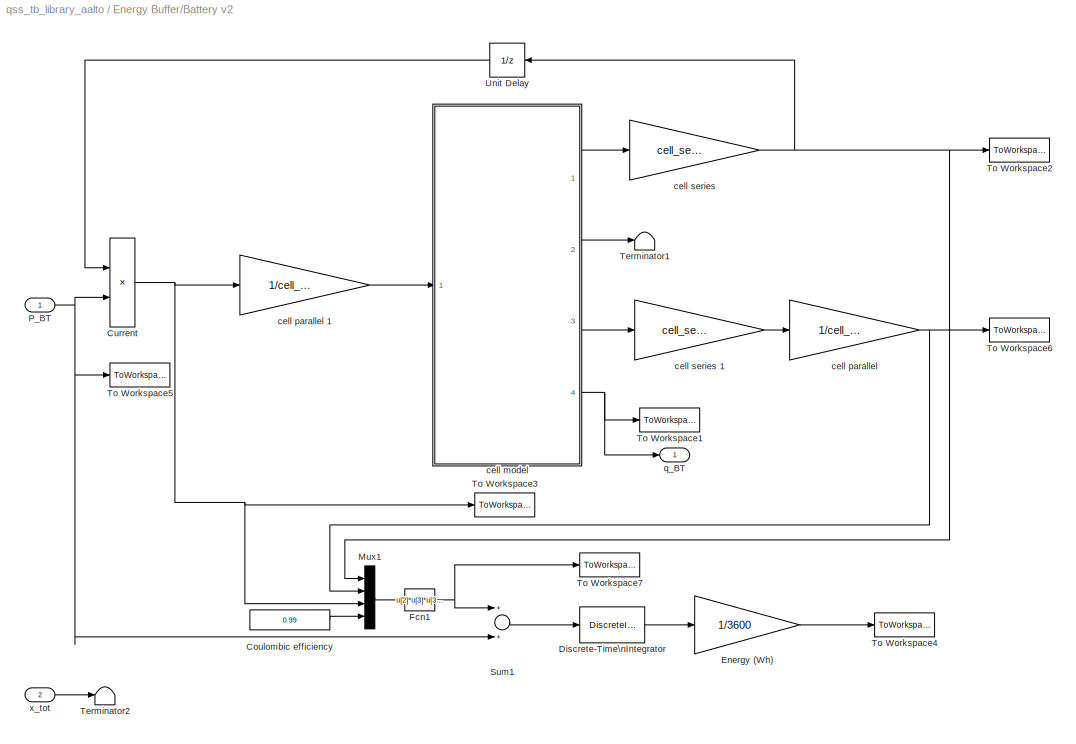
BLOCK [SubSystem] Energy Buffer/Battery v2
  Ports = [2, 1]
  RequestExecContextInheritance = off
  SID = 911
  Tag = battery
BLOCK [Constant] Energy Buffer/Battery v2/Coulombic efficiency
  SID = 914
  Value = 0.99
BLOCK [Product] Energy Buffer/Battery v2/Current
  InputSameDT = off
  Inputs = /*
  OutDataTypeStr = Inherit: Inherit via internal rule
  Ports = [2, 1]
  SID = 915
  SaturateOnIntegerOverflow = off
BLOCK [DiscreteIntegrator] Energy Buffer/Battery v2/Discrete-Time\nIntegrator
  ICPrevOutput = DiscIntNeverNeededParam
  ICPrevScaledInput = DiscIntNeverNeededParam
  Ports = [1, 1]
  SID = 916
BLOCK [Gain] Energy Buffer/Battery v2/Energy (Wh)
  Gain = 1/3600
  OutDataTypeStr = Inherit: Inherit via internal rule
  ParamDataTypeStr = Inherit: Inherit via internal rule
  SID = 917
  SaturateOnIntegerOverflow = off
BLOCK [Fcn] Energy Buffer/Battery v2/Fcn1
  Expr = u[2]*u[3]*u[3]-u[1]*u[3]*(1-u(4))*(u[3]<0)
  SID = 918
BLOCK [Mux] Energy Buffer/Battery v2/Mux1
  DisplayOption = bar
  Ports = [4, 1]
  SID = 919
BLOCK [Inport] Energy Buffer/Battery v2/P_BT
  IconDisplay = Port number
  SID = 912
BLOCK [Sum] Energy Buffer/Battery v2/Sum1
  Ports = [2, 1]
  SID = 920
BLOCK [Terminator] Energy Buffer/Battery v2/Terminator1
  SID = 921
BLOCK [Terminator] Energy Buffer/Battery v2/Terminator2
  SID = 922
BLOCK [ToWorkspace] Energy Buffer/Battery v2/To Workspace1
  MaxDataPoints = inf
  Ports = [1]
  SID = 923
  SampleTime = -1
  VariableName = q_BT
BLOCK [ToWorkspace] Energy Buffer/Battery v2/To Workspace2
  MaxDataPoints = inf
  Ports = [1]
  SID = 924
  SampleTime = -1
  VariableName = U_BT
BLOCK [ToWorkspace] Energy Buffer/Battery v2/To Workspace3
  MaxDataPoints = inf
  Ports = [1]
  SID = 925
  SampleTime = -1
  VariableName = I_BT
BLOCK [ToWorkspace] Energy Buffer/Battery v2/To Workspace4
  MaxDataPoints = inf
  Ports = [1]
  SID = 926
  SampleTime = -1
  VariableName = E_BT
BLOCK [ToWorkspace] Energy Buffer/Battery v2/To Workspace5
  MaxDataPoints = inf
  Ports = [1]
  SID = 927
  SampleTime = -1
  VariableName = P_BT
BLOCK [ToWorkspace] Energy Buffer/Battery v2/To Workspace6
  MaxDataPoints = inf
  Ports = [1]
  SID = 928
  SampleTime = -1
  VariableName = R_BT
BLOCK [ToWorkspace] Energy Buffer/Battery v2/To Workspace7
  MaxDataPoints = inf
  Ports = [1]
  SID = 929
  SampleTime = -1
  VariableName = L_BT
BLOCK [UnitDelay] Energy Buffer/Battery v2/Unit Delay
  InitialCondition = cell_series_BT*max(voc_map_BT)
  InputProcessing = Elements as channels (sample based)
  SID = 930
  SampleTime = -1
BLOCK [SubSystem] Energy Buffer/Battery v2/cell model
  Ports = [1, 4]
  RequestExecContextInheritance = off
  SID = 931
BLOCK [Inport] Energy Buffer/Battery v2/cell model/current
  IconDisplay = Port number
  SID = 932
BLOCK [Outport] Energy Buffer/Battery v2/cell model/rint_out
  IconDisplay = Port number
  Port = 3
  SID = 961
BLOCK [SubSystem] Energy Buffer/Battery v2/cell model/soc calculation
  Ports = [1, 1]
  RequestExecContextInheritance = off
  SID = 933
BLOCK [Gain] Energy Buffer/Battery v2/cell model/soc calculation/(sec->hrs)
  Gain = 1/3600
  SID = 935
BLOCK [Gain] Energy Buffer/Battery v2/cell model/soc calculation/(sec->hrs)1
  Gain = -1
  SID = 936
BLOCK [Saturate] Energy Buffer/Battery v2/cell model/soc calculation/0 <= SOC <= 1
  InputPortMap = u0
  LowerLimit = 0
  Ports = [1, 1]
  SID = 937
  UpperLimit = 1
BLOCK [Constant] Energy Buffer/Battery v2/cell model/soc calculation/Constant
  SID = 938
  Value = init_soc_BT
BLOCK [Constant] Energy Buffer/Battery v2/cell model/soc calculation/Constant1
  SID = 939
  Value = cap_BT
BLOCK [DiscreteIntegrator] Energy Buffer/Battery v2/cell model/soc calculation/Discrete-Time\nIntegrator
  ICPrevOutput = DiscIntNeverNeededParam
  ICPrevScaledInput = DiscIntNeverNeededParam
  InitialConditionSource = external
  Ports = [2, 1]
  SID = 940
BLOCK [Product] Energy Buffer/Battery v2/cell model/soc calculation/Divide
  InputSameDT = off
  Inputs = */
  OutDataTypeStr = Inherit: Inherit via internal rule
  Ports = [2, 1]
  SID = 941
  SaturateOnIntegerOverflow = off
BLOCK [Product] Energy Buffer/Battery v2/cell model/soc calculation/Product
  InputSameDT = off
  OutDataTypeStr = Inherit: Inherit via internal rule
  Ports = [2, 1]
  SID = 942
  SaturateOnIntegerOverflow = off
BLOCK [Inport] Energy Buffer/Battery v2/cell model/soc calculation/current
  IconDisplay = Port number
  SID = 934
BLOCK [Outport] Energy Buffer/Battery v2/cell model/soc calculation/soc
  IconDisplay = Port number
  SID = 943
BLOCK [Outport] Energy Buffer/Battery v2/cell model/soc_out
  IconDisplay = Port number
  Port = 4
  SID = 962
BLOCK [Outport] Energy Buffer/Battery v2/cell model/voc_out
  IconDisplay = Port number
  Port = 2
  SID = 960
BLOCK [SubSystem] Energy Buffer/Battery v2/cell model/voltage calculation
  Ports = [2, 3]
  RequestExecContextInheritance = off
  SID = 944
BLOCK [Inport] Energy Buffer/Battery v2/cell model/voltage calculation/Current
  IconDisplay = Port number
  Port = 2
  SID = 946
BLOCK [Product] Energy Buffer/Battery v2/cell model/voltage calculation/Product2
  Ports = [2, 1]
  RndMeth = Floor
  SID = 947
BLOCK [Lookup] Energy Buffer/Battery v2/cell model/voltage calculation/Rchg
  InputValues = soc_map_BT
  SID = 948
  Table = rchg_map_BT
BLOCK [Lookup] Energy Buffer/Battery v2/cell model/voltage calculation/Rdis
  InputValues = soc_map_BT
  SID = 949
  Table = rdis_map_BT
BLOCK [Outport] Energy Buffer/Battery v2/cell model/voltage calculation/Rint
  IconDisplay = Port number
  InitialOutput = 0
  Port = 3
  SID = 957
BLOCK [Inport] Energy Buffer/Battery v2/cell model/voltage calculation/SOC (prev)
  IconDisplay = Port number
  SID = 945
BLOCK [Sum] Energy Buffer/Battery v2/cell model/voltage calculation/Sum1
  Inputs = +-
  Ports = [2, 1]
  SID = 950
BLOCK [Switch] Energy Buffer/Battery v2/cell model/voltage calculation/Switch
  SID = 951
BLOCK [Switch] Energy Buffer/Battery v2/cell model/voltage calculation/Switch1
  SID = 952
BLOCK [Lookup] Energy Buffer/Battery v2/cell model/voltage calculation/VOC
  InputValues = soc_map_BT
  SID = 953
  Table = voc_map_BT
BLOCK [Outport] Energy Buffer/Battery v2/cell model/voltage calculation/Voc
  IconDisplay = Port number
  InitialOutput = 0
  SID = 955
BLOCK [Gain] Energy Buffer/Battery v2/cell model/voltage calculation/coulombic\nefficiency
  Gain = 0.99
  OutDataTypeStr = Inherit: Inherit via internal rule
  ParamDataTypeStr = Inherit: Inherit via internal rule
  SID = 954
  SaturateOnIntegerOverflow = off
BLOCK [Outport] Energy Buffer/Battery v2/cell model/voltage calculation/voltage
  IconDisplay = Port number
  InitialOutput = 0
  Port = 2
  SID = 956
BLOCK [Outport] Energy Buffer/Battery v2/cell model/voltage_out
  IconDisplay = Port number
  SID = 959
BLOCK [Gain] Energy Buffer/Battery v2/cell parallel
  Gain = 1/cell_parallel_BT
  OutDataTypeStr = Inherit: Inherit via internal rule
  ParamDataTypeStr = Inherit: Inherit via internal rule
  SID = 963
  SaturateOnIntegerOverflow = off
BLOCK [Gain] Energy Buffer/Battery v2/cell parallel 1
  Gain = 1/cell_parallel_BT
  OutDataTypeStr = Inherit: Inherit via internal rule
  ParamDataTypeStr = Inherit: Inherit via internal rule
  SID = 964
  SaturateOnIntegerOverflow = off
BLOCK [Gain] Energy Buffer/Battery v2/cell series 
  Gain = cell_series_BT
  OutDataTypeStr = Inherit: Inherit via internal rule
  ParamDataTypeStr = Inherit: Inherit via internal rule
  SID = 965
  SaturateOnIntegerOverflow = off
BLOCK [Gain] Energy Buffer/Battery v2/cell series 1
  Gain = cell_series_BT
  OutDataTypeStr = Inherit: Inherit via internal rule
  ParamDataTypeStr = Inherit: Inherit via internal rule
  SID = 966
  SaturateOnIntegerOverflow = off
BLOCK [Outport] Energy Buffer/Battery v2/q_BT
  IconDisplay = Port number
  InitialOutput = 0
  SID = 967
BLOCK [Inport] Energy Buffer/Battery v2/x_tot
  IconDisplay = Port number
  Port = 2
  SID = 913
BLOCK [SubSystem] Energy Buffer/Battery v3
  Ports = [1, 1]
  RequestExecContextInheritance = off
  SID = 1225
  Tag = battery
BLOCK [Constant] Energy Buffer/Battery v3/Coulombic efficiency
  SID = 1228
  Value = 0.99
BLOCK [Product] Energy Buffer/Battery v3/Current
  InputSameDT = off
  Inputs = /*
  OutDataTypeStr = Inherit: Inherit via internal rule
  Ports = [2, 1]
  SID = 1229
  SaturateOnIntegerOverflow = off
BLOCK [DiscreteIntegrator] Energy Buffer/Battery v3/Discrete-Time\nIntegrator
  ICPrevOutput = DiscIntNeverNeededParam
  ICPrevScaledInput = DiscIntNeverNeededParam
  Ports = [1, 1]
  SID = 1230
BLOCK [Gain] Energy Buffer/Battery v3/Energy (Wh)
  Gain = 1/3600
  OutDataTypeStr = Inherit: Inherit via internal rule
  ParamDataTypeStr = Inherit: Inherit via internal rule
  SID = 1231
  SaturateOnIntegerOverflow = off
BLOCK [Fcn] Energy Buffer/Battery v3/Fcn1
  Expr = u[2]*u[3]*u[3]-u[1]*u[3]*(1-u(4))*(u[3]<0)
  SID = 1232
BLOCK [Mux] Energy Buffer/Battery v3/Mux1
  DisplayOption = bar
  Ports = [4, 1]
  SID = 1233
BLOCK [Inport] Energy Buffer/Battery v3/P_BT
  IconDisplay = Port number
  SID = 1226
BLOCK [Sum] Energy Buffer/Battery v3/Sum1
  Ports = [2, 1]
  SID = 1234
BLOCK [Terminator] Energy Buffer/Battery v3/Terminator1
  SID = 1235
BLOCK [ToWorkspace] Energy Buffer/Battery v3/To Workspace1
  MaxDataPoints = inf
  Ports = [1]
  SID = 1237
  SampleTime = -1
  VariableName = q_BT
BLOCK [ToWorkspace] Energy Buffer/Battery v3/To Workspace2
  MaxDataPoints = inf
  Ports = [1]
  SID = 1238
  SampleTime = -1
  VariableName = U_BT
BLOCK [ToWorkspace] Energy Buffer/Battery v3/To Workspace3
  MaxDataPoints = inf
  Ports = [1]
  SID = 1239
  SampleTime = -1
  VariableName = I_BT
BLOCK [ToWorkspace] Energy Buffer/Battery v3/To Workspace4
  MaxDataPoints = inf
  Ports = [1]
  SID = 1240
  SampleTime = -1
  VariableName = E_BT
BLOCK [ToWorkspace] Energy Buffer/Battery v3/To Workspace5
  MaxDataPoints = inf
  Ports = [1]
  SID = 1241
  SampleTime = -1
  VariableName = P_BT
BLOCK [ToWorkspace] Energy Buffer/Battery v3/To Workspace6
  MaxDataPoints = inf
  Ports = [1]
  SID = 1242
  SampleTime = -1
  VariableName = R_BT
BLOCK [ToWorkspace] Energy Buffer/Battery v3/To Workspace7
  MaxDataPoints = inf
  Ports = [1]
  SID = 1243
  SampleTime = -1
  VariableName = L_BT
BLOCK [UnitDelay] Energy Buffer/Battery v3/Unit Delay
  InitialCondition = cell_series_BT*max(voc_map_BT)
  InputProcessing = Elements as channels (sample based)
  SID = 1244
  SampleTime = -1
BLOCK [SubSystem] Energy Buffer/Battery v3/cell model
  Ports = [1, 4]
  RequestExecContextInheritance = off
  SID = 1245
BLOCK [Switch] Energy Buffer/Battery v3/cell model/Switch1
  SID = 1247
BLOCK [Gain] Energy Buffer/Battery v3/cell model/coulombic\nefficiency
  Gain = 0.99
  OutDataTypeStr = Inherit: Inherit via internal rule
  ParamDataTypeStr = Inherit: Inherit via internal rule
  SID = 1248
  SaturateOnIntegerOverflow = off
BLOCK [Inport] Energy Buffer/Battery v3/cell model/current
  IconDisplay = Port number
  SID = 1246
BLOCK [Outport] Energy Buffer/Battery v3/cell model/rint_out
  IconDisplay = Port number
  Port = 3
  SID = 1275
BLOCK [SubSystem] Energy Buffer/Battery v3/cell model/soc calculation
  Ports = [1, 1]
  RequestExecContextInheritance = off
  SID = 1249
BLOCK [Gain] Energy Buffer/Battery v3/cell model/soc calculation/(sec->hrs)
  Gain = 1/3600
  SID = 1251
BLOCK [Gain] Energy Buffer/Battery v3/cell model/soc calculation/(sec->hrs)1
  Gain = -1
  SID = 1252
BLOCK [Saturate] Energy Buffer/Battery v3/cell model/soc calculation/0 <= SOC <= 1
  InputPortMap = u0
  LowerLimit = 0
  Ports = [1, 1]
  SID = 1253
  UpperLimit = 1
BLOCK [Constant] Energy Buffer/Battery v3/cell model/soc calculation/Constant
  SID = 1254
  Value = init_soc_BT
BLOCK [Constant] Energy Buffer/Battery v3/cell model/soc calculation/Constant1
  SID = 1255
  Value = cap_BT
BLOCK [DiscreteIntegrator] Energy Buffer/Battery v3/cell model/soc calculation/Discrete-Time\nIntegrator
  ICPrevOutput = DiscIntNeverNeededParam
  ICPrevScaledInput = DiscIntNeverNeededParam
  InitialConditionSource = external
  Ports = [2, 1]
  SID = 1256
BLOCK [Product] Energy Buffer/Battery v3/cell model/soc calculation/Divide
  InputSameDT = off
  Inputs = */
  OutDataTypeStr = Inherit: Inherit via internal rule
  Ports = [2, 1]
  SID = 1257
  SaturateOnIntegerOverflow = off
BLOCK [Product] Energy Buffer/Battery v3/cell model/soc calculation/Product
  InputSameDT = off
  OutDataTypeStr = Inherit: Inherit via internal rule
  Ports = [2, 1]
  SID = 1258
  SaturateOnIntegerOverflow = off
BLOCK [Inport] Energy Buffer/Battery v3/cell model/soc calculation/current
  IconDisplay = Port number
  SID = 1250
BLOCK [Outport] Energy Buffer/Battery v3/cell model/soc calculation/soc
  IconDisplay = Port number
  SID = 1259
BLOCK [Outport] Energy Buffer/Battery v3/cell model/soc_out
  IconDisplay = Port number
  Port = 4
  SID = 1276
BLOCK [Outport] Energy Buffer/Battery v3/cell model/voc_out
  IconDisplay = Port number
  Port = 2
  SID = 1274
BLOCK [SubSystem] Energy Buffer/Battery v3/cell model/voltage calculation
  Ports = [2, 3]
  RequestExecContextInheritance = off
  SID = 1260
BLOCK [Inport] Energy Buffer/Battery v3/cell model/voltage calculation/Current
  IconDisplay = Port number
  Port = 2
  SID = 1262
BLOCK [Product] Energy Buffer/Battery v3/cell model/voltage calculation/Product2
  Ports = [2, 1]
  RndMeth = Floor
  SID = 1263
BLOCK [Lookup] Energy Buffer/Battery v3/cell model/voltage calculation/Rchg
  InputValues = soc_map_BT
  SID = 1264
  Table = rchg_map_BT
BLOCK [Lookup] Energy Buffer/Battery v3/cell model/voltage calculation/Rdis
  InputValues = soc_map_BT
  SID = 1265
  Table = rdis_map_BT
BLOCK [Outport] Energy Buffer/Battery v3/cell model/voltage calculation/Rint
  IconDisplay = Port number
  InitialOutput = 0
  Port = 3
  SID = 1271
BLOCK [Inport] Energy Buffer/Battery v3/cell model/voltage calculation/SOC (prev)
  IconDisplay = Port number
  SID = 1261
BLOCK [Sum] Energy Buffer/Battery v3/cell model/voltage calculation/Sum1
  Inputs = +-
  Ports = [2, 1]
  SID = 1266
BLOCK [Switch] Energy Buffer/Battery v3/cell model/voltage calculation/Switch
  SID = 1267
BLOCK [Lookup] Energy Buffer/Battery v3/cell model/voltage calculation/VOC
  InputValues = soc_map_BT
  SID = 1268
  Table = voc_map_BT
BLOCK [Outport] Energy Buffer/Battery v3/cell model/voltage calculation/Voc
  IconDisplay = Port number
  InitialOutput = 0
  SID = 1269
BLOCK [Outport] Energy Buffer/Battery v3/cell model/voltage calculation/voltage
  IconDisplay = Port number
  InitialOutput = 0
  Port = 2
  SID = 1270
BLOCK [Outport] Energy Buffer/Battery v3/cell model/voltage_out
  IconDisplay = Port number
  SID = 1273
BLOCK [Gain] Energy Buffer/Battery v3/cell parallel
  Gain = 1/cell_parallel_BT
  OutDataTypeStr = Inherit: Inherit via internal rule
  ParamDataTypeStr = Inherit: Inherit via internal rule
  SID = 1277
  SaturateOnIntegerOverflow = off
BLOCK [Gain] Energy Buffer/Battery v3/cell parallel 1
  Gain = 1/cell_parallel_BT
  OutDataTypeStr = Inherit: Inherit via internal rule
  ParamDataTypeStr = Inherit: Inherit via internal rule
  SID = 1278
  SaturateOnIntegerOverflow = off
BLOCK [Gain] Energy Buffer/Battery v3/cell series 
  Gain = cell_series_BT
  OutDataTypeStr = Inherit: Inherit via internal rule
  ParamDataTypeStr = Inherit: Inherit via internal rule
  SID = 1279
  SaturateOnIntegerOverflow = off
BLOCK [Gain] Energy Buffer/Battery v3/cell series 1
  Gain = cell_series_BT
  OutDataTypeStr = Inherit: Inherit via internal rule
  ParamDataTypeStr = Inherit: Inherit via internal rule
  SID = 1280
  SaturateOnIntegerOverflow = off
BLOCK [Outport] Energy Buffer/Battery v3/q_BT
  IconDisplay = Port number
  InitialOutput = 0
  SID = 1281
BLOCK [UnitDelay] Energy Buffer/Battery/Battery charge
  InitialCondition = Q_BT_IC
  SID = 73
  SampleTime = h
BLOCK [SubSystem] Energy Buffer/Battery/Battery voltage
  Ports = [2, 2]
  RequestExecContextInheritance = off
  SID = 74
BLOCK [SubSystem] Energy Buffer/Battery/Battery voltage/Charging
  Ports = [2, 1, 1]
  RequestExecContextInheritance = off
  SID = 77
BLOCK [Constant] Energy Buffer/Battery/Battery voltage/Charging/Constant4
  SID = 81
  Value = Q_BT_0
BLOCK [EnablePort] Energy Buffer/Battery/Battery voltage/Charging/Enable
  Ports = []
  SID = 80
BLOCK [Fcn] Energy Buffer/Battery/Battery voltage/Charging/Fcn
  Expr = (c_BT_L3*u[1]+c_BT_L1+sqrt((c_BT_L3*u[1]+c_BT_L1)^2+4*(c_BT_L4*u[1]+c_BT_L2)*(-u[2])))/2
  SID = 82
BLOCK [Gain] Energy Buffer/Battery/Battery voltage/Charging/Gain2
  Gain = 1/Q_BT_0
  SID = 83
BLOCK [Gain] Energy Buffer/Battery/Battery voltage/Charging/Gain4
  Gain = 1/I_0
  SID = 84
BLOCK [Mux] Energy Buffer/Battery/Battery voltage/Charging/Mux
  Inputs = 2
  Ports = [2, 1]
  SID = 85
BLOCK [Inport] Energy Buffer/Battery/Battery voltage/Charging/P_BT
  IconDisplay = Port number
  Port = 2
  SID = 79
BLOCK [Inport] Energy Buffer/Battery/Battery voltage/Charging/Q_BT
  IconDisplay = Port number
  SID = 78
BLOCK [Sum] Energy Buffer/Battery/Battery voltage/Charging/Sum4
  Inputs = -+
  Ports = [2, 1]
  SID = 86
BLOCK [Outport] Energy Buffer/Battery/Battery voltage/Charging/U_BT_L
  IconDisplay = Port number
  InitialOutput = 0
  SID = 87
BLOCK [SubSystem] Energy Buffer/Battery/Battery voltage/Discharging
  Ports = [2, 1, 1]
  RequestExecContextInheritance = off
  SID = 88
BLOCK [Constant] Energy Buffer/Battery/Battery voltage/Discharging/Constant6
  SID = 92
  Value = Q_BT_0
BLOCK [EnablePort] Energy Buffer/Battery/Battery voltage/Discharging/Enable
  Ports = []
  SID = 91
BLOCK [Fcn] Energy Buffer/Battery/Battery voltage/Discharging/Fcn
  Expr = (c_BT_E3*u[1]+c_BT_E1+sqrt((c_BT_E3*u[1]+c_BT_E1)^2+4*(c_BT_E4*u[1]+c_BT_E2)*(-u[2])))/2
  SID = 93
BLOCK [Gain] Energy Buffer/Battery/Battery voltage/Discharging/Gain4
  Gain = 1/Q_BT_0
  SID = 94
BLOCK [Gain] Energy Buffer/Battery/Battery voltage/Discharging/Gain5
  Gain = 1/I_0
  SID = 95
BLOCK [Mux] Energy Buffer/Battery/Battery voltage/Discharging/Mux
  Inputs = 2
  Ports = [2, 1]
  SID = 96
BLOCK [Inport] Energy Buffer/Battery/Battery voltage/Discharging/P_BT
  IconDisplay = Port number
  Port = 2
  SID = 90
BLOCK [Inport] Energy Buffer/Battery/Battery voltage/Discharging/Q_BT
  IconDisplay = Port number
  SID = 89
BLOCK [Sum] Energy Buffer/Battery/Battery voltage/Discharging/Sum7
  Inputs = -+
  Ports = [2, 1]
  SID = 97
BLOCK [Outport] Energy Buffer/Battery/Battery voltage/Discharging/U_BT_E
  IconDisplay = Port number
  InitialOutput = 0
  SID = 98
BLOCK [SubSystem] Energy Buffer/Battery/Battery voltage/Enable charging
  Ports = [1, 1]
  RequestExecContextInheritance = off
  SID = 101
BLOCK [Gain] Energy Buffer/Battery/Battery voltage/Enable charging/Gain
  Gain = -1
  SID = 103
BLOCK [Inport] Energy Buffer/Battery/Battery voltage/Enable charging/P_BT
  IconDisplay = Port number
  SID = 102
BLOCK [Saturate] Energy Buffer/Battery/Battery voltage/Enable charging/Saturation
  InputPortMap = u0
  LowerLimit = -inf
  Ports = [1, 1]
  SID = 104
  UpperLimit = 0
BLOCK [Signum] Energy Buffer/Battery/Battery voltage/Enable charging/Sign
  SID = 105
BLOCK [Outport] Energy Buffer/Battery/Battery voltage/Enable charging/e_E
  IconDisplay = Port number
  InitialOutput = 0
  SID = 106
BLOCK [SubSystem] Energy Buffer/Battery/Battery voltage/Enable discharging
  Ports = [1, 1]
  RequestExecContextInheritance = off
  SID = 107
BLOCK [Inport] Energy Buffer/Battery/Battery voltage/Enable discharging/P_BT
  IconDisplay = Port number
  SID = 108
BLOCK [Saturate] Energy Buffer/Battery/Battery voltage/Enable discharging/Saturation
  InputPortMap = u0
  LowerLimit = 0
  Ports = [1, 1]
  SID = 109
  UpperLimit = inf
BLOCK [Signum] Energy Buffer/Battery/Battery voltage/Enable discharging/Sign
  SID = 110
BLOCK [Outport] Energy Buffer/Battery/Battery voltage/Enable discharging/e_E
  IconDisplay = Port number
  InitialOutput = 0
  SID = 111
BLOCK [SubSystem] Energy Buffer/Battery/Battery voltage/Enable idle
  Ports = [1, 1]
  RequestExecContextInheritance = off
  SID = 112
BLOCK [Abs] Energy Buffer/Battery/Battery voltage/Enable idle/Abs
  SID = 114
BLOCK [Constant] Energy Buffer/Battery/Battery voltage/Enable idle/Constant
  SID = 115
BLOCK [Inport] Energy Buffer/Battery/Battery voltage/Enable idle/P_BT
  IconDisplay = Port number
  SID = 113
BLOCK [Signum] Energy Buffer/Battery/Battery voltage/Enable idle/Sign
  SID = 116
BLOCK [Sum] Energy Buffer/Battery/Battery voltage/Enable idle/Sum4
  Inputs = -+
  Ports = [2, 1]
  SID = 117
BLOCK [Outport] Energy Buffer/Battery/Battery voltage/Enable idle/e_Z
  IconDisplay = Port number
  InitialOutput = 0
  SID = 118
BLOCK [Outport] Energy Buffer/Battery/Battery voltage/I_BT
  IconDisplay = Port number
  InitialOutput = 0
  Port = 2
  SID = 150
BLOCK [SubSystem] Energy Buffer/Battery/Battery voltage/Idle
  Ports = [1, 1, 1]
  RequestExecContextInheritance = off
  SID = 119
BLOCK [Constant] Energy Buffer/Battery/Battery voltage/Idle/Constant
  SID = 122
  Value = c_BT_L1
BLOCK [Constant] Energy Buffer/Battery/Battery voltage/Idle/Constant6
  SID = 123
  Value = Q_BT_0
BLOCK [EnablePort] Energy Buffer/Battery/Battery voltage/Idle/Enable
  Ports = []
  SID = 121
  StatesWhenEnabling = reset
BLOCK [Gain] Energy Buffer/Battery/Battery voltage/Idle/Gain4
  Gain = c_BT_L3/Q_BT_0
  SID = 124
BLOCK [Inport] Energy Buffer/Battery/Battery voltage/Idle/Q_BT
  IconDisplay = Port number
  SID = 120
BLOCK [Sum] Energy Buffer/Battery/Battery voltage/Idle/Sum7
  Inputs = -+
  Ports = [2, 1]
  SID = 125
BLOCK [Sum] Energy Buffer/Battery/Battery voltage/Idle/Sum8
  Ports = [2, 1]
  SID = 126
BLOCK [Outport] Energy Buffer/Battery/Battery voltage/Idle/U_BT_E
  IconDisplay = Port number
  InitialOutput = 0
  SID = 127
BLOCK [Inport] Energy Buffer/Battery/Battery voltage/P_BT
  IconDisplay = Port number
  Port = 2
  SID = 76
BLOCK [Product] Energy Buffer/Battery/Battery voltage/Product
  Inputs = /*
  Ports = [2, 1]
  SID = 128
BLOCK [Inport] Energy Buffer/Battery/Battery voltage/Q_BT
  IconDisplay = Port number
  SID = 75
BLOCK [SubSystem] Energy Buffer/Battery/Battery voltage/Supervision\nbattery
  Ports = [3]
  RequestExecContextInheritance = off
  SID = 129
BLOCK [Abs] Energy Buffer/Battery/Battery voltage/Supervision\nbattery/Abs
  SID = 133
BLOCK [Constant] Energy Buffer/Battery/Battery voltage/Supervision\nbattery/Constant4
  SID = 134
  Value = Q_BT_0
BLOCK [Constant] Energy Buffer/Battery/Battery voltage/Supervision\nbattery/Constant6
  SID = 135
  Value = c_BT_E1
BLOCK [Constant] Energy Buffer/Battery/Battery voltage/Supervision\nbattery/Constant7
  SID = 136
  Value = I_BT_max
BLOCK [Gain] Energy Buffer/Battery/Battery voltage/Supervision\nbattery/Gain2
  Gain = c_BT_E3/Q_BT_0
  SID = 137
BLOCK [Gain] Energy Buffer/Battery/Battery voltage/Supervision\nbattery/Gain3
  Gain = 2
  SID = 138
BLOCK [Inport] Energy Buffer/Battery/Battery voltage/Supervision\nbattery/I_BT
  IconDisplay = Port number
  Port = 3
  SID = 132
BLOCK [Inport] Energy Buffer/Battery/Battery voltage/Supervision\nbattery/Q_BT
  IconDisplay = Port number
  SID = 130
BLOCK [Saturate] Energy Buffer/Battery/Battery voltage/Supervision\nbattery/Saturation
  InputPortMap = u0
  LowerLimit = -inf
  Ports = [1, 1]
  SID = 139
  UpperLimit = 0
BLOCK [Saturate] Energy Buffer/Battery/Battery voltage/Supervision\nbattery/Saturation1
  InputPortMap = u0
  LowerLimit = -inf
  Ports = [1, 1]
  SID = 140
  UpperLimit = 0
BLOCK [Stop] Energy Buffer/Battery/Battery voltage/Supervision\nbattery/Stop Simulation
  SID = 141
BLOCK [Stop] Energy Buffer/Battery/Battery voltage/Supervision\nbattery/Stop Simulation1
  SID = 142
BLOCK [Sum] Energy Buffer/Battery/Battery voltage/Supervision\nbattery/Sum1
  Inputs = -+
  Ports = [2, 1]
  SID = 143
BLOCK [Sum] Energy Buffer/Battery/Battery voltage/Supervision\nbattery/Sum2
  Inputs = +-
  Ports = [2, 1]
  SID = 144
BLOCK [Sum] Energy Buffer/Battery/Battery voltage/Supervision\nbattery/Sum3
  Ports = [2, 1]
  SID = 145
BLOCK [Sum] Energy Buffer/Battery/Battery voltage/Supervision\nbattery/Sum4
  Inputs = -+
  Ports = [2, 1]
  SID = 146
BLOCK [Inport] Energy Buffer/Battery/Battery voltage/Supervision\nbattery/U_BT
  IconDisplay = Port number
  Port = 2
  SID = 131
BLOCK [Switch] Energy Buffer/Battery/Battery voltage/Switch
  SID = 147
  Threshold = 0.5
BLOCK [Switch] Energy Buffer/Battery/Battery voltage/Switch1
  SID = 148
  Threshold = 0.5
BLOCK [Outport] Energy Buffer/Battery/Battery voltage/U_BT
  IconDisplay = Port number
  InitialOutput = 0
  SID = 149
BLOCK [Constant] Energy Buffer/Battery/Constant
  SID = 151
  Value = Q_BT_IC
BLOCK [Gain] Energy Buffer/Battery/Gain
  Gain = h
  SID = 152
BLOCK [Gain] Energy Buffer/Battery/Gain1
  Gain = U_BT_0/3.6e1
  SID = 153
BLOCK [Gain] Energy Buffer/Battery/Gain4
  Gain = 1/Q_BT_0
  SID = 154
BLOCK [Inport] Energy Buffer/Battery/P_BT
  IconDisplay = Port number
  SID = 71
BLOCK [Product] Energy Buffer/Battery/Product1
  Inputs = */
  Ports = [2, 1]
  SID = 155
BLOCK [Outport] Energy Buffer/Battery/Q_BT
  IconDisplay = Port number
  InitialOutput = 0
  SID = 163
BLOCK [Sum] Energy Buffer/Battery/Sum3
  Inputs = +-
  Ports = [2, 1]
  SID = 156
BLOCK [Sum] Energy Buffer/Battery/Sum4
  Inputs = +-
  Ports = [2, 1]
  SID = 157
BLOCK [ToWorkspace] Energy Buffer/Battery/To Workspace1
  MaxDataPoints = inf
  Ports = [1]
  SID = 158
  SampleTime = -1
  VariableName = q_BT
BLOCK [ToWorkspace] Energy Buffer/Battery/To Workspace2
  MaxDataPoints = inf
  Ports = [1]
  SID = 159
  SampleTime = -1
  VariableName = U_BT
BLOCK [ToWorkspace] Energy Buffer/Battery/To Workspace3
  MaxDataPoints = inf
  Ports = [1]
  SID = 160
  SampleTime = -1
  VariableName = I_BT
BLOCK [ToWorkspace] Energy Buffer/Battery/To Workspace4
  MaxDataPoints = inf
  Ports = [1]
  SID = 161
  SampleTime = -1
  VariableName = Q_BT
BLOCK [ToWorkspace] Energy Buffer/Battery/To Workspace5
  MaxDataPoints = inf
  Ports = [1]
  SID = 162
  SampleTime = -1
  VariableName = P_BT
BLOCK [Outport] Energy Buffer/Battery/V_BT
  IconDisplay = Port number
  InitialOutput = 0
  Port = 2
  SID = 164
BLOCK [Inport] Energy Buffer/Battery/x_tot
  IconDisplay = Port number
  Port = 2
  SID = 72
BLOCK [SubSystem] Energy Buffer/Supercapacitor
  Ports = [1, 1]
  RequestExecContextInheritance = off
  SID = 165
  Tag = supercap
BLOCK [SubSystem] Energy Buffer/Supercapacitor v2
  Ports = [1, 1]
  RequestExecContextInheritance = off
  SID = 564
  Tag = supercap
BLOCK [Fcn] Energy Buffer/Supercapacitor v2/Fcn
  Expr = (-u[2]/C_SC+sqrt(u[2]^2/C_SC^2-4*R_SC*u[1]))/(2*R_SC)
  SID = 566
BLOCK [Gain] Energy Buffer/Supercapacitor v2/Gain
  Gain = 1/C_SC
  SID = 567
BLOCK [Gain] Energy Buffer/Supercapacitor v2/Gain1
  Gain = h
  SID = 568
BLOCK [Mux] Energy Buffer/Supercapacitor v2/Mux
  Inputs = 2
  Ports = [2, 1]
  SID = 569
BLOCK [Inport] Energy Buffer/Supercapacitor v2/P_SC
  IconDisplay = Port number
  SID = 565
BLOCK [UnitDelay] Energy Buffer/Supercapacitor v2/SC charge
  InitialCondition = Q_SC_IC
  SID = 570
  SampleTime = h
BLOCK [Sum] Energy Buffer/Supercapacitor v2/Sum3
  Ports = [2, 1]
  SID = 571
BLOCK [SubSystem] Energy Buffer/Supercapacitor v2/Supervision\nsupercap
  Ports = [2]
  RequestExecContextInheritance = off
  SID = 572
BLOCK [Gain] Energy Buffer/Supercapacitor v2/Supervision\nsupercap/Charge: P > 0
  Gain = 4*C_SC^2*R_SC
  SID = 575
BLOCK [Constant] Energy Buffer/Supercapacitor v2/Supervision\nsupercap/Constant6
  SID = 576
  Value = U_SC_max
BLOCK [Constant] Energy Buffer/Supercapacitor v2/Supervision\nsupercap/Constant7
  SID = 577
  Value = P_SC_max
BLOCK [Gain] Energy Buffer/Supercapacitor v2/Supervision\nsupercap/Gain
  Gain = 1/C_SC
  SID = 578
BLOCK [Math] Energy Buffer/Supercapacitor v2/Supervision\nsupercap/Math\nFunction
  Operator = square
  Ports = [1, 1]
  SID = 579
BLOCK [Inport] Energy Buffer/Supercapacitor v2/Supervision\nsupercap/P_SC
  IconDisplay = Port number
  Port = 2
  SID = 574
BLOCK [Inport] Energy Buffer/Supercapacitor v2/Supervision\nsupercap/Q_SC
  IconDisplay = Port number
  SID = 573
BLOCK [Saturate] Energy Buffer/Supercapacitor v2/Supervision\nsupercap/Saturation1
  InputPortMap = u0
  LowerLimit = -inf
  Ports = [1, 1]
  SID = 580
  UpperLimit = 0
BLOCK [Saturate] Energy Buffer/Supercapacitor v2/Supervision\nsupercap/Saturation2
  InputPortMap = u0
  LowerLimit = -inf
  Ports = [1, 1]
  SID = 581
  UpperLimit = 0
BLOCK [Saturate] Energy Buffer/Supercapacitor v2/Supervision\nsupercap/Saturation3
  InputPortMap = u0
  LowerLimit = -inf
  Ports = [1, 1]
  SID = 582
  UpperLimit = 0
BLOCK [Stop] Energy Buffer/Supercapacitor v2/Supervision\nsupercap/Stop Simulation
  SID = 583
BLOCK [Stop] Energy Buffer/Supercapacitor v2/Supervision\nsupercap/Stop Simulation1
  SID = 584
BLOCK [Stop] Energy Buffer/Supercapacitor v2/Supervision\nsupercap/Stop Simulation2
  SID = 585
BLOCK [Sum] Energy Buffer/Supercapacitor v2/Supervision\nsupercap/Sum1
  Inputs = -+
  Ports = [2, 1]
  SID = 586
BLOCK [Sum] Energy Buffer/Supercapacitor v2/Supervision\nsupercap/Sum2
  Inputs = +-
  Ports = [2, 1]
  SID = 587
BLOCK [Sum] Energy Buffer/Supercapacitor v2/Supervision\nsupercap/Sum4
  Ports = [2, 1]
  SID = 588
BLOCK [ToWorkspace] Energy Buffer/Supercapacitor v2/To Workspace1
  MaxDataPoints = inf
  Ports = [1]
  SID = 589
  SampleTime = 1
  VariableName = I_SC
BLOCK [ToWorkspace] Energy Buffer/Supercapacitor v2/To Workspace2
  MaxDataPoints = inf
  Ports = [1]
  SID = 590
  SampleTime = 1
  VariableName = U_SC
BLOCK [ToWorkspace] Energy Buffer/Supercapacitor v2/To Workspace3
  MaxDataPoints = inf
  Ports = [1]
  SID = 591
  SampleTime = 1
  VariableName = Q_SC
BLOCK [ToWorkspace] Energy Buffer/Supercapacitor v2/To Workspace4
  MaxDataPoints = inf
  Ports = [1]
  SID = 592
  SampleTime = 1
  VariableName = P_SC
BLOCK [Outport] Energy Buffer/Supercapacitor v2/U_SC
  IconDisplay = Port number
  InitialOutput = 0
  SID = 593
BLOCK [SubSystem] Energy Buffer/Supercapacitor v3
  Ports = [1, 1]
  RequestExecContextInheritance = off
  SID = 1603
  Tag = supercap
BLOCK [Fcn] Energy Buffer/Supercapacitor v3/Fcn
  Expr = (-u[2]/C_SC+sqrt(u[2]^2/C_SC^2-4*R_SC*u[1]))/(2*R_SC)
  SID = 1605
BLOCK [Gain] Energy Buffer/Supercapacitor v3/Gain
  Gain = 1/C_SC
  SID = 1606
BLOCK [Gain] Energy Buffer/Supercapacitor v3/Gain1
  Gain = h
  SID = 1607
BLOCK [Mux] Energy Buffer/Supercapacitor v3/Mux
  Inputs = 2
  Ports = [2, 1]
  SID = 1608
BLOCK [Inport] Energy Buffer/Supercapacitor v3/P_SC
  IconDisplay = Port number
  SID = 1604
BLOCK [UnitDelay] Energy Buffer/Supercapacitor v3/SC charge
  InitialCondition = Q_SC_IC
  SID = 1609
  SampleTime = h
BLOCK [Sum] Energy Buffer/Supercapacitor v3/Sum3
  Ports = [2, 1]
  SID = 1610
BLOCK [SubSystem] Energy Buffer/Supercapacitor v3/Supervision\nsupercap
  Ports = [2]
  RequestExecContextInheritance = off
  SID = 1611
BLOCK [Gain] Energy Buffer/Supercapacitor v3/Supervision\nsupercap/Charge: P > 0
  Gain = 4*C_SC^2*R_SC
  SID = 1614
BLOCK [Constant] Energy Buffer/Supercapacitor v3/Supervision\nsupercap/Constant6
  SID = 1615
  Value = U_SC_max
BLOCK [Constant] Energy Buffer/Supercapacitor v3/Supervision\nsupercap/Constant7
  SID = 1616
  Value = P_SC_max
BLOCK [Gain] Energy Buffer/Supercapacitor v3/Supervision\nsupercap/Gain
  Gain = 1/C_SC
  SID = 1617
BLOCK [Math] Energy Buffer/Supercapacitor v3/Supervision\nsupercap/Math\nFunction
  Operator = square
  Ports = [1, 1]
  SID = 1618
BLOCK [Inport] Energy Buffer/Supercapacitor v3/Supervision\nsupercap/P_SC
  IconDisplay = Port number
  Port = 2
  SID = 1613
BLOCK [Inport] Energy Buffer/Supercapacitor v3/Supervision\nsupercap/Q_SC
  IconDisplay = Port number
  SID = 1612
BLOCK [Saturate] Energy Buffer/Supercapacitor v3/Supervision\nsupercap/Saturation1
  InputPortMap = u0
  LowerLimit = -inf
  Ports = [1, 1]
  SID = 1619
  UpperLimit = 0
BLOCK [Saturate] Energy Buffer/Supercapacitor v3/Supervision\nsupercap/Saturation2
  InputPortMap = u0
  LowerLimit = -inf
  Ports = [1, 1]
  SID = 1620
  UpperLimit = 0
BLOCK [Saturate] Energy Buffer/Supercapacitor v3/Supervision\nsupercap/Saturation3
  InputPortMap = u0
  LowerLimit = -inf
  Ports = [1, 1]
  SID = 1621
  UpperLimit = 0
BLOCK [Stop] Energy Buffer/Supercapacitor v3/Supervision\nsupercap/Stop Simulation
  SID = 1622
BLOCK [Stop] Energy Buffer/Supercapacitor v3/Supervision\nsupercap/Stop Simulation1
  SID = 1623
BLOCK [Stop] Energy Buffer/Supercapacitor v3/Supervision\nsupercap/Stop Simulation2
  SID = 1624
BLOCK [Sum] Energy Buffer/Supercapacitor v3/Supervision\nsupercap/Sum1
  Inputs = -+
  Ports = [2, 1]
  SID = 1625
BLOCK [Sum] Energy Buffer/Supercapacitor v3/Supervision\nsupercap/Sum2
  Inputs = +-
  Ports = [2, 1]
  SID = 1626
BLOCK [Sum] Energy Buffer/Supercapacitor v3/Supervision\nsupercap/Sum4
  Ports = [2, 1]
  SID = 1627
BLOCK [ToWorkspace] Energy Buffer/Supercapacitor v3/To Workspace1
  MaxDataPoints = inf
  Ports = [1]
  SID = 1628
  SampleTime = 1
  VariableName = I_SC
BLOCK [ToWorkspace] Energy Buffer/Supercapacitor v3/To Workspace2
  MaxDataPoints = inf
  Ports = [1]
  SID = 1629
  SampleTime = 1
  VariableName = U_SC
BLOCK [ToWorkspace] Energy Buffer/Supercapacitor v3/To Workspace3
  MaxDataPoints = inf
  Ports = [1]
  SID = 1630
  SampleTime = 1
  VariableName = Q_SC
BLOCK [ToWorkspace] Energy Buffer/Supercapacitor v3/To Workspace4
  MaxDataPoints = inf
  Ports = [1]
  SID = 1631
  SampleTime = 1
  VariableName = P_SC
BLOCK [Outport] Energy Buffer/Supercapacitor v3/U_SC
  IconDisplay = Port number
  InitialOutput = 0
  SID = 1632
BLOCK [Fcn] Energy Buffer/Supercapacitor/Fcn
  Expr = (-u[2]/C_SC+sqrt(u[2]^2/C_SC^2-4*R_SC*u[1]))/(2*R_SC)
  SID = 167
BLOCK [Gain] Energy Buffer/Supercapacitor/Gain
  Gain = 1/C_SC
  SID = 168
BLOCK [Gain] Energy Buffer/Supercapacitor/Gain1
  Gain = h
  SID = 169
BLOCK [Mux] Energy Buffer/Supercapacitor/Mux
  Inputs = 2
  Ports = [2, 1]
  SID = 170
BLOCK [Inport] Energy Buffer/Supercapacitor/P_SC
  IconDisplay = Port number
  SID = 166
BLOCK [UnitDelay] Energy Buffer/Supercapacitor/SC charge
  InitialCondition = Q_SC_IC
  SID = 171
  SampleTime = h
BLOCK [Sum] Energy Buffer/Supercapacitor/Sum3
  Ports = [2, 1]
  SID = 172
BLOCK [SubSystem] Energy Buffer/Supercapacitor/Supervision\nsupercap
  Ports = [2]
  RequestExecContextInheritance = off
  SID = 173
BLOCK [Gain] Energy Buffer/Supercapacitor/Supervision\nsupercap/Charge: P > 0
  Gain = 4*C_SC^2*R_SC
  SID = 176
BLOCK [Constant] Energy Buffer/Supercapacitor/Supervision\nsupercap/Constant6
  SID = 177
  Value = U_SC_max
BLOCK [Constant] Energy Buffer/Supercapacitor/Supervision\nsupercap/Constant7
  SID = 178
  Value = P_SC_max
BLOCK [Gain] Energy Buffer/Supercapacitor/Supervision\nsupercap/Gain
  Gain = 1/C_SC
  SID = 179
BLOCK [Math] Energy Buffer/Supercapacitor/Supervision\nsupercap/Math\nFunction
  Operator = square
  Ports = [1, 1]
  SID = 180
BLOCK [Inport] Energy Buffer/Supercapacitor/Supervision\nsupercap/P_SC
  IconDisplay = Port number
  Port = 2
  SID = 175
BLOCK [Inport] Energy Buffer/Supercapacitor/Supervision\nsupercap/Q_SC
  IconDisplay = Port number
  SID = 174
BLOCK [Saturate] Energy Buffer/Supercapacitor/Supervision\nsupercap/Saturation1
  InputPortMap = u0
  LowerLimit = -inf
  Ports = [1, 1]
  SID = 181
  UpperLimit = 0
BLOCK [Saturate] Energy Buffer/Supercapacitor/Supervision\nsupercap/Saturation2
  InputPortMap = u0
  LowerLimit = -inf
  Ports = [1, 1]
  SID = 182
  UpperLimit = 0
BLOCK [Saturate] Energy Buffer/Supercapacitor/Supervision\nsupercap/Saturation3
  InputPortMap = u0
  LowerLimit = -inf
  Ports = [1, 1]
  SID = 183
  UpperLimit = 0
BLOCK [Stop] Energy Buffer/Supercapacitor/Supervision\nsupercap/Stop Simulation
  SID = 184
BLOCK [Stop] Energy Buffer/Supercapacitor/Supervision\nsupercap/Stop Simulation1
  SID = 185
BLOCK [Stop] Energy Buffer/Supercapacitor/Supervision\nsupercap/Stop Simulation2
  SID = 186
BLOCK [Sum] Energy Buffer/Supercapacitor/Supervision\nsupercap/Sum1
  Inputs = -+
  Ports = [2, 1]
  SID = 187
BLOCK [Sum] Energy Buffer/Supercapacitor/Supervision\nsupercap/Sum2
  Inputs = +-
  Ports = [2, 1]
  SID = 188
BLOCK [Sum] Energy Buffer/Supercapacitor/Supervision\nsupercap/Sum4
  Ports = [2, 1]
  SID = 189
BLOCK [ToWorkspace] Energy Buffer/Supercapacitor/To Workspace1
  MaxDataPoints = inf
  Ports = [1]
  SID = 190
  SampleTime = 1
  VariableName = I_SC
BLOCK [ToWorkspace] Energy Buffer/Supercapacitor/To Workspace2
  MaxDataPoints = inf
  Ports = [1]
  SID = 191
  SampleTime = 1
  VariableName = U_SC
BLOCK [ToWorkspace] Energy Buffer/Supercapacitor/To Workspace3
  MaxDataPoints = inf
  Ports = [1]
  SID = 192
  SampleTime = 1
  VariableName = Q_SC
BLOCK [ToWorkspace] Energy Buffer/Supercapacitor/To Workspace4
  MaxDataPoints = inf
  Ports = [1]
  SID = 193
  SampleTime = 1
  VariableName = P_SC
BLOCK [Outport] Energy Buffer/Supercapacitor/U_SC
  IconDisplay = Port number
  InitialOutput = 0
  SID = 194
BLOCK [SubSystem] Energy Converter
  Ports = []
  RequestExecContextInheritance = off
  SID = 195
BLOCK [SubSystem] Energy Converter/Combustion Engine v2
  Ports = [3, 1]
  RequestExecContextInheritance = off
  SID = 776
  Tag = combustion engine
BLOCK [Constant] Energy Converter/Combustion Engine v2/Constant1
  SID = 780
  Value = P_aux
BLOCK [SubSystem] Energy Converter/Combustion Engine v2/Detect fuel cutoff
  Ports = [2, 1]
  RequestExecContextInheritance = off
  SID = 781
BLOCK [Constant] Energy Converter/Combustion Engine v2/Detect fuel cutoff/Constant1
  SID = 784
  Value = ENABLE_FUEL_CUTOFF
BLOCK [Constant] Energy Converter/Combustion Engine v2/Detect fuel cutoff/Constant3
  SID = 785
  Value = P_CE_cutoff
BLOCK [Switch] Energy Converter/Combustion Engine v2/Detect fuel cutoff/Decision
  InputSameDT = off
  SID = 786
  SaturateOnIntegerOverflow = off
  Threshold = 0.5
BLOCK [Switch] Energy Converter/Combustion Engine v2/Detect fuel cutoff/Detect fuel cutoff
  SID = 787
  Threshold = T_CE_cutoff + 0.01
BLOCK [Outport] Energy Converter/Combustion Engine v2/Detect fuel cutoff/P_CE
  IconDisplay = Port number
  SID = 788
BLOCK [Inport] Energy Converter/Combustion Engine v2/Detect fuel cutoff/P_CE_fuel
  IconDisplay = Port number
  SID = 782
BLOCK [Inport] Energy Converter/Combustion Engine v2/Detect fuel cutoff/T_CE
  IconDisplay = Port number
  Port = 2
  SID = 783
BLOCK [SubSystem] Energy Converter/Combustion Engine v2/Detect idle
  Ports = [3, 1]
  RequestExecContextInheritance = off
  SID = 789
BLOCK [Constant] Energy Converter/Combustion Engine v2/Detect idle/Constant3
  SID = 793
  Value = P_CE_idle
BLOCK [Fcn] Energy Converter/Combustion Engine v2/Detect idle/Idle detection
  Expr = (u(1) <= w_CE_idle) * (u(2) <= T_CE_idle)
  SID = 794
BLOCK [Mux] Energy Converter/Combustion Engine v2/Detect idle/Mux
  DisplayOption = bar
  Inputs = 2
  Ports = [2, 1]
  SID = 795
BLOCK [Outport] Energy Converter/Combustion Engine v2/Detect idle/P_CE
  IconDisplay = Port number
  InitialOutput = 0
  SID = 797
BLOCK [Inport] Energy Converter/Combustion Engine v2/Detect idle/P_CE_fuel
  IconDisplay = Port number
  SID = 790
BLOCK [Switch] Energy Converter/Combustion Engine v2/Detect idle/Switch2
  SID = 796
  Threshold = 0.5
BLOCK [Inport] Energy Converter/Combustion Engine v2/Detect idle/T_CE
  IconDisplay = Port number
  Port = 3
  SID = 792
BLOCK [Inport] Energy Converter/Combustion Engine v2/Detect idle/w_CE
  IconDisplay = Port number
  Port = 2
  SID = 791
BLOCK [SubSystem] Energy Converter/Combustion Engine v2/Detect overload\nand overspeed
  Ports = [2]
  RequestExecContextInheritance = off
  SID = 798
BLOCK [Abs] Energy Converter/Combustion Engine v2/Detect overload\nand overspeed/Abs
  SID = 801
BLOCK [Constant] Energy Converter/Combustion Engine v2/Detect overload\nand overspeed/Constant
  SID = 802
  Value = w_CE_upper
BLOCK [Lookup] Energy Converter/Combustion Engine v2/Detect overload\nand overspeed/Maximum torque
  InputValues = w_CE_max
  SID = 803
  Table = T_CE_max
BLOCK [Saturate] Energy Converter/Combustion Engine v2/Detect overload\nand overspeed/Saturation
  InputPortMap = u0
  LowerLimit = -inf
  Ports = [1, 1]
  SID = 804
  UpperLimit = 0
BLOCK [Saturate] Energy Converter/Combustion Engine v2/Detect overload\nand overspeed/Saturation1
  InputPortMap = u0
  LowerLimit = -inf
  Ports = [1, 1]
  SID = 805
  UpperLimit = 0
BLOCK [Stop] Energy Converter/Combustion Engine v2/Detect overload\nand overspeed/Stop Simulation
  SID = 806
BLOCK [Stop] Energy Converter/Combustion Engine v2/Detect overload\nand overspeed/Stop Simulation1
  SID = 807
BLOCK [Sum] Energy Converter/Combustion Engine v2/Detect overload\nand overspeed/Sum
  Inputs = +-
  Ports = [2, 1]
  SID = 808
BLOCK [Sum] Energy Converter/Combustion Engine v2/Detect overload\nand overspeed/Sum1
  Inputs = +-
  Ports = [2, 1]
  SID = 809
BLOCK [Inport] Energy Converter/Combustion Engine v2/Detect overload\nand overspeed/T_CE
  IconDisplay = Port number
  Port = 2
  SID = 800
BLOCK [Inport] Energy Converter/Combustion Engine v2/Detect overload\nand overspeed/w_CE
  IconDisplay = Port number
  SID = 799
BLOCK [Lookup2D] Energy Converter/Combustion Engine v2/Engine consumption map\nV = f(w, T)\n[kg//s]
  ColumnIndex = T_CE_col
  InputSameDT = off
  RowIndex = w_CE_row
  SID = 810
  SaturateOnIntegerOverflow = off
  Table = V_CE_map
BLOCK [Gain] Energy Converter/Combustion Engine v2/Engine inertia
  Gain = theta_CE
  SID = 811
BLOCK [Gain] Energy Converter/Combustion Engine v2/Fuel lower\nheating value
  Gain = H_u
  SID = 812
BLOCK [Saturate] Energy Converter/Combustion Engine v2/Lower limit\n(fuel cutoff)
  InputPortMap = u0
  LowerLimit = T_CE_cutoff
  Ports = [1, 1]
  SID = 813
  UpperLimit = inf
BLOCK [Saturate] Energy Converter/Combustion Engine v2/Lower limit\n(speed at idle)
  InputPortMap = u0
  LowerLimit = w_CE_idle
  Ports = [1, 1]
  SID = 814
  UpperLimit = inf
BLOCK [Outport] Energy Converter/Combustion Engine v2/P_CE
  IconDisplay = Port number
  InitialOutput = 0
  SID = 820
BLOCK [Inport] Energy Converter/Combustion Engine v2/T_gear
  IconDisplay = Port number
  Port = 3
  SID = 779
BLOCK [ToWorkspace] Energy Converter/Combustion Engine v2/To Workspace3
  MaxDataPoints = inf
  Ports = [1]
  SID = 815
  SampleTime = -1
  VariableName = T_CE
BLOCK [ToWorkspace] Energy Converter/Combustion Engine v2/To Workspace4
  MaxDataPoints = inf
  Ports = [1]
  SID = 816
  SampleTime = -1
  VariableName = w_CE
BLOCK [ToWorkspace] Energy Converter/Combustion Engine v2/To Workspace5
  MaxDataPoints = inf
  Ports = [1]
  SID = 817
  SampleTime = -1
  VariableName = P_CE
BLOCK [Sum] Energy Converter/Combustion Engine v2/Total power
  Ports = [2, 1]
  SID = 818
BLOCK [Sum] Energy Converter/Combustion Engine v2/Total torque
  Ports = [2, 1]
  SID = 819
BLOCK [Inport] Energy Converter/Combustion Engine v2/dw_gear
  IconDisplay = Port number
  Port = 2
  SID = 778
BLOCK [Inport] Energy Converter/Combustion Engine v2/w_gear
  IconDisplay = Port number
  SID = 777
BLOCK [SubSystem] Energy Converter/Combustion Engine v3
  Ports = [3, 1]
  RequestExecContextInheritance = off
  SID = 1282
  Tag = combustion engine
BLOCK [SubSystem] Energy Converter/Combustion Engine v3/Detect fuel cutoff
  Ports = [2, 1]
  RequestExecContextInheritance = off
  SID = 1286
BLOCK [Constant] Energy Converter/Combustion Engine v3/Detect fuel cutoff/Constant1
  SID = 1289
  Value = ENABLE_FUEL_CUTOFF
BLOCK [Constant] Energy Converter/Combustion Engine v3/Detect fuel cutoff/Constant3
  SID = 1290
  Value = P_CE_cutoff
BLOCK [Switch] Energy Converter/Combustion Engine v3/Detect fuel cutoff/Decision
  InputSameDT = off
  SID = 1291
  SaturateOnIntegerOverflow = off
  Threshold = 0.5
BLOCK [Switch] Energy Converter/Combustion Engine v3/Detect fuel cutoff/Detect fuel cutoff
  SID = 1292
BLOCK [Outport] Energy Converter/Combustion Engine v3/Detect fuel cutoff/P_CE
  IconDisplay = Port number
  SID = 1293
BLOCK [Inport] Energy Converter/Combustion Engine v3/Detect fuel cutoff/P_CE_fuel
  IconDisplay = Port number
  SID = 1287
BLOCK [Inport] Energy Converter/Combustion Engine v3/Detect fuel cutoff/T_gear
  IconDisplay = Port number
  Port = 2
  SID = 1288
BLOCK [SubSystem] Energy Converter/Combustion Engine v3/Detect idle
  Ports = [2, 1]
  RequestExecContextInheritance = off
  SID = 1294
BLOCK [Constant] Energy Converter/Combustion Engine v3/Detect idle/Constant1
  SID = 1297
  Value = P_aux
BLOCK [Constant] Energy Converter/Combustion Engine v3/Detect idle/Constant11
  OutDataTypeStr = double
  SID = 1349
  Value = 0
BLOCK [Constant] Energy Converter/Combustion Engine v3/Detect idle/Constant3
  SID = 1298
  Value = P_CE_idle
BLOCK [Fcn] Energy Converter/Combustion Engine v3/Detect idle/Idle detection
  Expr = (u(1) <= w_CE_idle) * (u(2) <= T_CE_idle)
  SID = 1299
BLOCK [Mux] Energy Converter/Combustion Engine v3/Detect idle/Mux
  DisplayOption = bar
  Inputs = 2
  Ports = [2, 1]
  SID = 1300
BLOCK [Sum] Energy Converter/Combustion Engine v3/Detect idle/Power
  Ports = [2, 1]
  SID = 1301
BLOCK [Product] Energy Converter/Combustion Engine v3/Detect idle/Product
  Ports = [2, 1]
  SID = 1302
BLOCK [Product] Energy Converter/Combustion Engine v3/Detect idle/Product1
  Inputs = */
  Ports = [2, 1]
  SID = 1303
BLOCK [Switch] Energy Converter/Combustion Engine v3/Detect idle/Switch1
  Criteria = u2 > Threshold
  SID = 1350
BLOCK [Switch] Energy Converter/Combustion Engine v3/Detect idle/Switch2
  SID = 1304
  Threshold = 0.5
BLOCK [Inport] Energy Converter/Combustion Engine v3/Detect idle/T_in
  IconDisplay = Port number
  Port = 2
  SID = 1296
BLOCK [Outport] Energy Converter/Combustion Engine v3/Detect idle/T_out
  IconDisplay = Port number
  InitialOutput = 0
  SID = 1305
BLOCK [Inport] Energy Converter/Combustion Engine v3/Detect idle/w_CE
  IconDisplay = Port number
  SID = 1295
BLOCK [SubSystem] Energy Converter/Combustion Engine v3/Detect overload\nand overspeed
  Ports = [2]
  RequestExecContextInheritance = off
  SID = 1306
BLOCK [Abs] Energy Converter/Combustion Engine v3/Detect overload\nand overspeed/Abs
  SID = 1309
BLOCK [Constant] Energy Converter/Combustion Engine v3/Detect overload\nand overspeed/Constant
  SID = 1310
  Value = w_CE_upper
BLOCK [Lookup] Energy Converter/Combustion Engine v3/Detect overload\nand overspeed/Maximum torque
  InputValues = w_CE_max
  SID = 1311
  Table = T_CE_max
BLOCK [Saturate] Energy Converter/Combustion Engine v3/Detect overload\nand overspeed/Saturation
  InputPortMap = u0
  LowerLimit = -inf
  Ports = [1, 1]
  SID = 1312
  UpperLimit = 0
BLOCK [Saturate] Energy Converter/Combustion Engine v3/Detect overload\nand overspeed/Saturation1
  InputPortMap = u0
  LowerLimit = -inf
  Ports = [1, 1]
  SID = 1313
  UpperLimit = 0
BLOCK [Stop] Energy Converter/Combustion Engine v3/Detect overload\nand overspeed/Stop Simulation
  SID = 1314
BLOCK [Stop] Energy Converter/Combustion Engine v3/Detect overload\nand overspeed/Stop Simulation1
  SID = 1315
BLOCK [Sum] Energy Converter/Combustion Engine v3/Detect overload\nand overspeed/Sum
  Inputs = +-
  Ports = [2, 1]
  SID = 1316
BLOCK [Sum] Energy Converter/Combustion Engine v3/Detect overload\nand overspeed/Sum1
  Inputs = +-
  Ports = [2, 1]
  SID = 1317
BLOCK [Inport] Energy Converter/Combustion Engine v3/Detect overload\nand overspeed/T_CE
  IconDisplay = Port number
  Port = 2
  SID = 1308
BLOCK [Inport] Energy Converter/Combustion Engine v3/Detect overload\nand overspeed/w_CE
  IconDisplay = Port number
  SID = 1307
BLOCK [Lookup2D] Energy Converter/Combustion Engine v3/Engine consumption map\nV = f(w, T)\n[kg//s]
  ColumnIndex = T_CE_col
  InputSameDT = off
  RowIndex = w_CE_row
  SID = 1318
  SaturateOnIntegerOverflow = off
  Table = V_CE_map
BLOCK [Gain] Energy Converter/Combustion Engine v3/Engine inertia
  Gain = theta_CE
  SID = 1319
BLOCK [Gain] Energy Converter/Combustion Engine v3/Fuel lower\nheating value
  Gain = H_u
  SID = 1320
BLOCK [Saturate] Energy Converter/Combustion Engine v3/Lower limit\n(fuel cutoff)
  InputPortMap = u0
  LowerLimit = T_CE_cutoff
  Ports = [1, 1]
  SID = 1321
  UpperLimit = inf
BLOCK [Saturate] Energy Converter/Combustion Engine v3/Lower limit\n(speed at idle)
  InputPortMap = u0
  LowerLimit = w_CE_idle
  Ports = [1, 1]
  SID = 1322
  UpperLimit = inf
BLOCK [Outport] Energy Converter/Combustion Engine v3/P_CE
  IconDisplay = Port number
  InitialOutput = 0
  SID = 1327
BLOCK [Inport] Energy Converter/Combustion Engine v3/T_gear
  IconDisplay = Port number
  Port = 3
  SID = 1285
BLOCK [ToWorkspace] Energy Converter/Combustion Engine v3/To Workspace3
  MaxDataPoints = inf
  Ports = [1]
  SID = 1323
  SampleTime = -1
  VariableName = T_CE
BLOCK [ToWorkspace] Energy Converter/Combustion Engine v3/To Workspace4
  MaxDataPoints = inf
  Ports = [1]
  SID = 1324
  SampleTime = -1
  VariableName = w_CE
BLOCK [ToWorkspace] Energy Converter/Combustion Engine v3/To Workspace5
  MaxDataPoints = inf
  Ports = [1]
  SID = 1325
  SampleTime = -1
  VariableName = P_CE
BLOCK [Sum] Energy Converter/Combustion Engine v3/Total torque
  Ports = [2, 1]
  SID = 1326
BLOCK [Inport] Energy Converter/Combustion Engine v3/dw_gear
  IconDisplay = Port number
  Port = 2
  SID = 1284
BLOCK [Inport] Energy Converter/Combustion Engine v3/w_gear
  IconDisplay = Port number
  SID = 1283
BLOCK [SubSystem] Energy Converter/Combustion Engine\n(Willans-approximation)
  Ports = [3, 1]
  RequestExecContextInheritance = off
  SID = 196
  Tag = combustion engine
BLOCK [Constant] Energy Converter/Combustion Engine\n(Willans-approximation)/Constant1
  SID = 686
  Value = P_aux
BLOCK [SubSystem] Energy Converter/Combustion Engine\n(Willans-approximation)/Detect fuel cutoff
  Ports = [2, 1]
  RequestExecContextInheritance = off
  SID = 687
BLOCK [Constant] Energy Converter/Combustion Engine\n(Willans-approximation)/Detect fuel cutoff/Constant1
  SID = 740
  Value = ENABLE_FUEL_CUTOFF
BLOCK [Constant] Energy Converter/Combustion Engine\n(Willans-approximation)/Detect fuel cutoff/Constant3
  SID = 741
  Value = P_CE_cutoff
BLOCK [Switch] Energy Converter/Combustion Engine\n(Willans-approximation)/Detect fuel cutoff/Decision
  InputSameDT = off
  SID = 742
  SaturateOnIntegerOverflow = off
  Threshold = 0.5
BLOCK [Switch] Energy Converter/Combustion Engine\n(Willans-approximation)/Detect fuel cutoff/Detect fuel cutoff
  SID = 743
  Threshold = T_CE_cutoff + 0.01
BLOCK [Outport] Energy Converter/Combustion Engine\n(Willans-approximation)/Detect fuel cutoff/P_CE
  IconDisplay = Port number
  SID = 744
BLOCK [Inport] Energy Converter/Combustion Engine\n(Willans-approximation)/Detect fuel cutoff/P_CE_fuel
  IconDisplay = Port number
  SID = 738
BLOCK [Inport] Energy Converter/Combustion Engine\n(Willans-approximation)/Detect fuel cutoff/T_CE
  IconDisplay = Port number
  Port = 2
  SID = 739
BLOCK [SubSystem] Energy Converter/Combustion Engine\n(Willans-approximation)/Detect idle
  Ports = [3, 1]
  RequestExecContextInheritance = off
  SID = 688
BLOCK [Constant] Energy Converter/Combustion Engine\n(Willans-approximation)/Detect idle/Constant3
  SID = 692
  Value = P_CE_idle
BLOCK [Fcn] Energy Converter/Combustion Engine\n(Willans-approximation)/Detect idle/Idle detection
  Expr = (u(1) <= w_CE_idle) * (u(2) <= T_CE_idle)
  SID = 693
BLOCK [Mux] Energy Converter/Combustion Engine\n(Willans-approximation)/Detect idle/Mux
  DisplayOption = bar
  Inputs = 2
  Ports = [2, 1]
  SID = 694
BLOCK [Outport] Energy Converter/Combustion Engine\n(Willans-approximation)/Detect idle/P_CE
  IconDisplay = Port number
  InitialOutput = 0
  SID = 696
BLOCK [Inport] Energy Converter/Combustion Engine\n(Willans-approximation)/Detect idle/P_CE_fuel
  IconDisplay = Port number
  SID = 689
BLOCK [Switch] Energy Converter/Combustion Engine\n(Willans-approximation)/Detect idle/Switch2
  SID = 695
  Threshold = 0.5
BLOCK [Inport] Energy Converter/Combustion Engine\n(Willans-approximation)/Detect idle/T_CE
  IconDisplay = Port number
  Port = 3
  SID = 691
BLOCK [Inport] Energy Converter/Combustion Engine\n(Willans-approximation)/Detect idle/w_CE
  IconDisplay = Port number
  Port = 2
  SID = 690
BLOCK [SubSystem] Energy Converter/Combustion Engine\n(Willans-approximation)/Engine efficiency
  Ports = [2, 1]
  RequestExecContextInheritance = off
  SID = 697
BLOCK [Constant] Energy Converter/Combustion Engine\n(Willans-approximation)/Engine efficiency/Constant3
  SID = 700
  Value = p_me0g
BLOCK [Product] Energy Converter/Combustion Engine\n(Willans-approximation)/Engine efficiency/Product1
  Inputs = */
  Ports = [2, 1]
  SID = 701
BLOCK [Sum] Energy Converter/Combustion Engine\n(Willans-approximation)/Engine efficiency/Sum
  Ports = [2, 1]
  SID = 702
BLOCK [Inport] Energy Converter/Combustion Engine\n(Willans-approximation)/Engine efficiency/T_CE
  IconDisplay = Port number
  Port = 2
  SID = 699
BLOCK [Outport] Energy Converter/Combustion Engine\n(Willans-approximation)/Engine efficiency/eta_CE
  IconDisplay = Port number
  InitialOutput = 0
  SID = 707
BLOCK [Fcn] Energy Converter/Combustion Engine\n(Willans-approximation)/Engine efficiency/p_me
  Expr = 4*pi*u/V_d
  SID = 703
BLOCK [Sum] Energy Converter/Combustion Engine\n(Willans-approximation)/Engine efficiency/p_me0
  Ports = [2, 1]
  SID = 704
BLOCK [Fcn] Energy Converter/Combustion Engine\n(Willans-approximation)/Engine efficiency/p_mef
  Expr = k1 * (k2 + k3*(S^2)*(u^2)) * PI * sqrt(k4/B)
  SID = 705
BLOCK [Fcn] Energy Converter/Combustion Engine\n(Willans-approximation)/Engine efficiency/p_mf
  Expr = u/e
  SID = 706
BLOCK [Inport] Energy Converter/Combustion Engine\n(Willans-approximation)/Engine efficiency/w_CE
  IconDisplay = Port number
  SID = 698
BLOCK [Gain] Energy Converter/Combustion Engine\n(Willans-approximation)/Engine inertia
  Gain = theta_CE
  SID = 708
BLOCK [Saturate] Energy Converter/Combustion Engine\n(Willans-approximation)/Lower limit\n(fuel cutoff)
  InputPortMap = u0
  LowerLimit = T_CE_cutoff
  Ports = [1, 1]
  SID = 709
  UpperLimit = inf
BLOCK [Saturate] Energy Converter/Combustion Engine\n(Willans-approximation)/Lower limit\n(speed at idle)
  InputPortMap = u0
  LowerLimit = w_CE_idle
  Ports = [1, 1]
  SID = 710
  UpperLimit = inf
BLOCK [Outport] Energy Converter/Combustion Engine\n(Willans-approximation)/P_CE
  IconDisplay = Port number
  InitialOutput = 0
  SID = 717
BLOCK [Product] Energy Converter/Combustion Engine\n(Willans-approximation)/Product
  Inputs = **/
  Ports = [3, 1]
  SID = 711
BLOCK [Inport] Energy Converter/Combustion Engine\n(Willans-approximation)/T_gear
  IconDisplay = Port number
  Port = 3
  SID = 685
BLOCK [ToWorkspace] Energy Converter/Combustion Engine\n(Willans-approximation)/To Workspace3
  MaxDataPoints = inf
  Ports = [1]
  SID = 712
  SampleTime = -1
  VariableName = T_CE
BLOCK [ToWorkspace] Energy Converter/Combustion Engine\n(Willans-approximation)/To Workspace4
  MaxDataPoints = inf
  Ports = [1]
  SID = 713
  SampleTime = -1
  VariableName = w_CE
BLOCK [ToWorkspace] Energy Converter/Combustion Engine\n(Willans-approximation)/To Workspace5
  MaxDataPoints = inf
  Ports = [1]
  SID = 714
  SampleTime = -1
  VariableName = P_CE
BLOCK [Sum] Energy Converter/Combustion Engine\n(Willans-approximation)/Total power
  Ports = [2, 1]
  SID = 715
BLOCK [Sum] Energy Converter/Combustion Engine\n(Willans-approximation)/Total torque
  Ports = [2, 1]
  SID = 716
BLOCK [Inport] Energy Converter/Combustion Engine\n(Willans-approximation)/dw_gear
  IconDisplay = Port number
  Port = 2
  SID = 684
BLOCK [Inport] Energy Converter/Combustion Engine\n(Willans-approximation)/w_gear
  IconDisplay = Port number
  SID = 683
BLOCK [SubSystem] Energy Converter/Combustion Engine\n(consumption map)
  Ports = [3, 1]
  RequestExecContextInheritance = off
  SID = 197
  Tag = combustion engine
BLOCK [Constant] Energy Converter/Combustion Engine\n(consumption map)/Constant1
  SID = 642
  Value = P_aux
BLOCK [SubSystem] Energy Converter/Combustion Engine\n(consumption map)/Detect fuel cutoff
  Ports = [2, 1]
  RequestExecContextInheritance = off
  SID = 643
BLOCK [Constant] Energy Converter/Combustion Engine\n(consumption map)/Detect fuel cutoff/Constant1
  SID = 646
  Value = ENABLE_FUEL_CUTOFF
BLOCK [Constant] Energy Converter/Combustion Engine\n(consumption map)/Detect fuel cutoff/Constant3
  SID = 647
  Value = P_CE_cutoff
BLOCK [Switch] Energy Converter/Combustion Engine\n(consumption map)/Detect fuel cutoff/Decision
  InputSameDT = off
  SID = 648
  SaturateOnIntegerOverflow = off
  Threshold = 0.5
BLOCK [Switch] Energy Converter/Combustion Engine\n(consumption map)/Detect fuel cutoff/Detect fuel cutoff
  SID = 649
  Threshold = T_CE_cutoff + 0.01
BLOCK [Outport] Energy Converter/Combustion Engine\n(consumption map)/Detect fuel cutoff/P_CE
  IconDisplay = Port number
  SID = 650
BLOCK [Inport] Energy Converter/Combustion Engine\n(consumption map)/Detect fuel cutoff/P_CE_fuel
  IconDisplay = Port number
  SID = 644
BLOCK [Inport] Energy Converter/Combustion Engine\n(consumption map)/Detect fuel cutoff/T_CE
  IconDisplay = Port number
  Port = 2
  SID = 645
BLOCK [SubSystem] Energy Converter/Combustion Engine\n(consumption map)/Detect idle
  Ports = [3, 1]
  RequestExecContextInheritance = off
  SID = 651
BLOCK [Constant] Energy Converter/Combustion Engine\n(consumption map)/Detect idle/Constant3
  SID = 655
  Value = P_CE_idle
BLOCK [Fcn] Energy Converter/Combustion Engine\n(consumption map)/Detect idle/Idle detection
  Expr = (u(1) <= w_CE_idle) * (u(2) <= T_CE_idle)
  SID = 656
BLOCK [Mux] Energy Converter/Combustion Engine\n(consumption map)/Detect idle/Mux
  DisplayOption = bar
  Inputs = 2
  Ports = [2, 1]
  SID = 657
BLOCK [Outport] Energy Converter/Combustion Engine\n(consumption map)/Detect idle/P_CE
  IconDisplay = Port number
  InitialOutput = 0
  SID = 659
BLOCK [Inport] Energy Converter/Combustion Engine\n(consumption map)/Detect idle/P_CE_fuel
  IconDisplay = Port number
  SID = 652
BLOCK [Switch] Energy Converter/Combustion Engine\n(consumption map)/Detect idle/Switch2
  SID = 658
  Threshold = 0.5
BLOCK [Inport] Energy Converter/Combustion Engine\n(consumption map)/Detect idle/T_CE
  IconDisplay = Port number
  Port = 3
  SID = 654
BLOCK [Inport] Energy Converter/Combustion Engine\n(consumption map)/Detect idle/w_CE
  IconDisplay = Port number
  Port = 2
  SID = 653
BLOCK [SubSystem] Energy Converter/Combustion Engine\n(consumption map)/Detect overload\nand overspeed
  Ports = [2]
  RequestExecContextInheritance = off
  SID = 660
BLOCK [Abs] Energy Converter/Combustion Engine\n(consumption map)/Detect overload\nand overspeed/Abs
  SID = 663
BLOCK [Constant] Energy Converter/Combustion Engine\n(consumption map)/Detect overload\nand overspeed/Constant
  SID = 664
  Value = w_CE_upper
BLOCK [Lookup] Energy Converter/Combustion Engine\n(consumption map)/Detect overload\nand overspeed/Maximum torque
  InputValues = w_CE_max
  SID = 665
  Table = T_CE_max
BLOCK [Saturate] Energy Converter/Combustion Engine\n(consumption map)/Detect overload\nand overspeed/Saturation
  InputPortMap = u0
  LowerLimit = -inf
  Ports = [1, 1]
  SID = 666
  UpperLimit = 0
BLOCK [Saturate] Energy Converter/Combustion Engine\n(consumption map)/Detect overload\nand overspeed/Saturation1
  InputPortMap = u0
  LowerLimit = -inf
  Ports = [1, 1]
  SID = 667
  UpperLimit = 0
BLOCK [Stop] Energy Converter/Combustion Engine\n(consumption map)/Detect overload\nand overspeed/Stop Simulation
  SID = 668
BLOCK [Stop] Energy Converter/Combustion Engine\n(consumption map)/Detect overload\nand overspeed/Stop Simulation1
  SID = 669
BLOCK [Sum] Energy Converter/Combustion Engine\n(consumption map)/Detect overload\nand overspeed/Sum
  Inputs = +-
  Ports = [2, 1]
  SID = 670
BLOCK [Sum] Energy Converter/Combustion Engine\n(consumption map)/Detect overload\nand overspeed/Sum1
  Inputs = +-
  Ports = [2, 1]
  SID = 671
BLOCK [Inport] Energy Converter/Combustion Engine\n(consumption map)/Detect overload\nand overspeed/T_CE
  IconDisplay = Port number
  Port = 2
  SID = 662
BLOCK [Inport] Energy Converter/Combustion Engine\n(consumption map)/Detect overload\nand overspeed/w_CE
  IconDisplay = Port number
  SID = 661
BLOCK [Lookup2D] Energy Converter/Combustion Engine\n(consumption map)/Engine consumption map\nV = f(w, T)\n[kg//s]
  ColumnIndex = T_CE_col
  InputSameDT = off
  RowIndex = w_CE_row
  SID = 672
  SaturateOnIntegerOverflow = off
  Table = V_CE_map
BLOCK [Gain] Energy Converter/Combustion Engine\n(consumption map)/Engine inertia
  Gain = theta_CE
  SID = 673
BLOCK [Gain] Energy Converter/Combustion Engine\n(consumption map)/Fuel lower\nheating value
  Gain = H_u
  SID = 674
BLOCK [Saturate] Energy Converter/Combustion Engine\n(consumption map)/Lower limit\n(fuel cutoff)
  InputPortMap = u0
  LowerLimit = T_CE_cutoff
  Ports = [1, 1]
  SID = 675
  UpperLimit = inf
BLOCK [Saturate] Energy Converter/Combustion Engine\n(consumption map)/Lower limit\n(speed at idle)
  InputPortMap = u0
  LowerLimit = w_CE_idle
  Ports = [1, 1]
  SID = 676
  UpperLimit = inf
BLOCK [Outport] Energy Converter/Combustion Engine\n(consumption map)/P_CE
  IconDisplay = Port number
  InitialOutput = 0
  SID = 682
BLOCK [Inport] Energy Converter/Combustion Engine\n(consumption map)/T_gear
  IconDisplay = Port number
  Port = 3
  SID = 641
BLOCK [ToWorkspace] Energy Converter/Combustion Engine\n(consumption map)/To Workspace3
  MaxDataPoints = inf
  Ports = [1]
  SID = 677
  SampleTime = -1
  VariableName = T_CE
BLOCK [ToWorkspace] Energy Converter/Combustion Engine\n(consumption map)/To Workspace4
  MaxDataPoints = inf
  Ports = [1]
  SID = 678
  SampleTime = -1
  VariableName = w_CE
BLOCK [ToWorkspace] Energy Converter/Combustion Engine\n(consumption map)/To Workspace5
  MaxDataPoints = inf
  Ports = [1]
  SID = 679
  SampleTime = -1
  VariableName = P_CE
BLOCK [Sum] Energy Converter/Combustion Engine\n(consumption map)/Total power
  Ports = [2, 1]
  SID = 680
BLOCK [Sum] Energy Converter/Combustion Engine\n(consumption map)/Total torque
  Ports = [2, 1]
  SID = 681
BLOCK [Inport] Energy Converter/Combustion Engine\n(consumption map)/dw_gear
  IconDisplay = Port number
  Port = 2
  SID = 640
BLOCK [Inport] Energy Converter/Combustion Engine\n(consumption map)/w_gear
  IconDisplay = Port number
  SID = 639
BLOCK [SubSystem] Energy Converter/Combustion Engine\n(hybrid vehicle)
  Ports = [2, 3]
  RequestExecContextInheritance = off
  SID = 1163
  Tag = combustion engine
BLOCK [SubSystem] Energy Converter/Combustion Engine\n(hybrid vehicle) v2
  Ports = [2, 3]
  RequestExecContextInheritance = off
  SID = 1503
  Tag = combustion engine
BLOCK [Derivative] Energy Converter/Combustion Engine\n(hybrid vehicle) v2/Derivative
  SID = 1506
BLOCK [SubSystem] Energy Converter/Combustion Engine\n(hybrid vehicle) v2/Detect fuel cutoff
  Ports = [2, 1]
  RequestExecContextInheritance = off
  SID = 1507
BLOCK [Constant] Energy Converter/Combustion Engine\n(hybrid vehicle) v2/Detect fuel cutoff/Constant1
  SID = 1510
  Value = ENABLE_FUEL_CUTOFF
BLOCK [Constant] Energy Converter/Combustion Engine\n(hybrid vehicle) v2/Detect fuel cutoff/Constant3
  SID = 1511
  Value = P_CE_cutoff
BLOCK [Switch] Energy Converter/Combustion Engine\n(hybrid vehicle) v2/Detect fuel cutoff/Decision
  InputSameDT = off
  SID = 1512
  SaturateOnIntegerOverflow = off
  Threshold = 0.5
BLOCK [Switch] Energy Converter/Combustion Engine\n(hybrid vehicle) v2/Detect fuel cutoff/Detect fuel cutoff
  SID = 1513
BLOCK [Outport] Energy Converter/Combustion Engine\n(hybrid vehicle) v2/Detect fuel cutoff/P_CE
  IconDisplay = Port number
  SID = 1514
BLOCK [Inport] Energy Converter/Combustion Engine\n(hybrid vehicle) v2/Detect fuel cutoff/P_CE_fuel
  IconDisplay = Port number
  SID = 1508
BLOCK [Inport] Energy Converter/Combustion Engine\n(hybrid vehicle) v2/Detect fuel cutoff/T_ctrl
  IconDisplay = Port number
  Port = 2
  SID = 1509
BLOCK [SubSystem] Energy Converter/Combustion Engine\n(hybrid vehicle) v2/Detect idle
  Ports = [2, 2]
  RequestExecContextInheritance = off
  SID = 1515
BLOCK [Constant] Energy Converter/Combustion Engine\n(hybrid vehicle) v2/Detect idle/Constant1
  SID = 1518
  Value = P_aux
BLOCK [Constant] Energy Converter/Combustion Engine\n(hybrid vehicle) v2/Detect idle/Constant11
  OutDataTypeStr = double
  SID = 1519
  Value = 0
BLOCK [Constant] Energy Converter/Combustion Engine\n(hybrid vehicle) v2/Detect idle/Constant2
  SID = 1520
  Value = w_CE_idle
BLOCK [Constant] Energy Converter/Combustion Engine\n(hybrid vehicle) v2/Detect idle/Constant3
  SID = 1521
  Value = P_CE_idle
BLOCK [Fcn] Energy Converter/Combustion Engine\n(hybrid vehicle) v2/Detect idle/Idle detection
  Expr = (u(2) <= T_CE_idle)
  SID = 1522
BLOCK [Mux] Energy Converter/Combustion Engine\n(hybrid vehicle) v2/Detect idle/Mux
  DisplayOption = bar
  Inputs = 2
  Ports = [2, 1]
  SID = 1523
BLOCK [Sum] Energy Converter/Combustion Engine\n(hybrid vehicle) v2/Detect idle/Power
  Ports = [2, 1]
  SID = 1524
BLOCK [Product] Energy Converter/Combustion Engine\n(hybrid vehicle) v2/Detect idle/Product
  Ports = [2, 1]
  SID = 1525
BLOCK [Product] Energy Converter/Combustion Engine\n(hybrid vehicle) v2/Detect idle/Product1
  Inputs = */
  Ports = [2, 1]
  SID = 1526
BLOCK [RateLimiter] Energy Converter/Combustion Engine\n(hybrid vehicle) v2/Detect idle/Rate Limiter
  FallingSlewLimit = -250
  RisingSlewLimit = 100
  SID = 1527
BLOCK [Switch] Energy Converter/Combustion Engine\n(hybrid vehicle) v2/Detect idle/Switch1
  Criteria = u2 > Threshold
  SID = 1528
BLOCK [Switch] Energy Converter/Combustion Engine\n(hybrid vehicle) v2/Detect idle/Switch2
  SID = 1529
  Threshold = 0.5
BLOCK [Switch] Energy Converter/Combustion Engine\n(hybrid vehicle) v2/Detect idle/Switch3
  SID = 1530
  Threshold = 0.5
BLOCK [Inport] Energy Converter/Combustion Engine\n(hybrid vehicle) v2/Detect idle/T_in
  IconDisplay = Port number
  Port = 2
  SID = 1517
BLOCK [Outport] Energy Converter/Combustion Engine\n(hybrid vehicle) v2/Detect idle/T_out
  IconDisplay = Port number
  InitialOutput = 0
  Port = 2
  SID = 1532
BLOCK [Inport] Energy Converter/Combustion Engine\n(hybrid vehicle) v2/Detect idle/w_CE
  IconDisplay = Port number
  SID = 1516
BLOCK [Outport] Energy Converter/Combustion Engine\n(hybrid vehicle) v2/Detect idle/w_out
  IconDisplay = Port number
  InitialOutput = 0
  SID = 1531
BLOCK [SubSystem] Energy Converter/Combustion Engine\n(hybrid vehicle) v2/Detect overload\nand overspeed
  Ports = [2]
  RequestExecContextInheritance = off
  SID = 1533
BLOCK [Abs] Energy Converter/Combustion Engine\n(hybrid vehicle) v2/Detect overload\nand overspeed/Abs
  SID = 1536
BLOCK [Constant] Energy Converter/Combustion Engine\n(hybrid vehicle) v2/Detect overload\nand overspeed/Constant
  SID = 1537
  Value = w_CE_upper
BLOCK [Lookup] Energy Converter/Combustion Engine\n(hybrid vehicle) v2/Detect overload\nand overspeed/Maximum torque
  InputValues = w_CE_max
  SID = 1538
  Table = T_CE_max
BLOCK [Saturate] Energy Converter/Combustion Engine\n(hybrid vehicle) v2/Detect overload\nand overspeed/Saturation
  InputPortMap = u0
  LowerLimit = -inf
  Ports = [1, 1]
  SID = 1539
  UpperLimit = 0
BLOCK [Saturate] Energy Converter/Combustion Engine\n(hybrid vehicle) v2/Detect overload\nand overspeed/Saturation1
  InputPortMap = u0
  LowerLimit = -inf
  Ports = [1, 1]
  SID = 1540
  UpperLimit = 0
BLOCK [Stop] Energy Converter/Combustion Engine\n(hybrid vehicle) v2/Detect overload\nand overspeed/Stop Simulation
  SID = 1541
BLOCK [Stop] Energy Converter/Combustion Engine\n(hybrid vehicle) v2/Detect overload\nand overspeed/Stop Simulation1
  SID = 1542
BLOCK [Sum] Energy Converter/Combustion Engine\n(hybrid vehicle) v2/Detect overload\nand overspeed/Sum
  Inputs = +-
  Ports = [2, 1]
  SID = 1543
BLOCK [Sum] Energy Converter/Combustion Engine\n(hybrid vehicle) v2/Detect overload\nand overspeed/Sum1
  Inputs = +-
  Ports = [2, 1]
  SID = 1544
BLOCK [Inport] Energy Converter/Combustion Engine\n(hybrid vehicle) v2/Detect overload\nand overspeed/T_CE
  IconDisplay = Port number
  Port = 2
  SID = 1535
BLOCK [Inport] Energy Converter/Combustion Engine\n(hybrid vehicle) v2/Detect overload\nand overspeed/w_CE
  IconDisplay = Port number
  SID = 1534
BLOCK [Lookup2D] Energy Converter/Combustion Engine\n(hybrid vehicle) v2/Engine consumption map\nV = f(w, T)\n[kg//s]
  ColumnIndex = T_CE_col
  InputSameDT = off
  RowIndex = w_CE_row
  SID = 1545
  SaturateOnIntegerOverflow = off
  Table = V_CE_map
BLOCK [Gain] Energy Converter/Combustion Engine\n(hybrid vehicle) v2/Engine inertia
  Gain = theta_CE
  SID = 1546
BLOCK [Gain] Energy Converter/Combustion Engine\n(hybrid vehicle) v2/Fuel lower\nheating value
  Gain = H_u
  SID = 1547
BLOCK [Outport] Energy Converter/Combustion Engine\n(hybrid vehicle) v2/P_CE
  IconDisplay = Port number
  InitialOutput = 0
  Port = 3
  SID = 1571
BLOCK [RateLimiter] Energy Converter/Combustion Engine\n(hybrid vehicle) v2/Rate Limiter
  FallingSlewLimit = -250
  RisingSlewLimit = 100
  SID = 1548
BLOCK [Outport] Energy Converter/Combustion Engine\n(hybrid vehicle) v2/T_CE
  IconDisplay = Port number
  InitialOutput = 0
  Port = 2
  SID = 1570
BLOCK [Inport] Energy Converter/Combustion Engine\n(hybrid vehicle) v2/T_ctrl
  IconDisplay = Port number
  Port = 2
  SID = 1505
BLOCK [ToWorkspace] Energy Converter/Combustion Engine\n(hybrid vehicle) v2/To Workspace3
  MaxDataPoints = inf
  Ports = [1]
  SID = 1549
  SampleTime = -1
  VariableName = T_CE
BLOCK [ToWorkspace] Energy Converter/Combustion Engine\n(hybrid vehicle) v2/To Workspace4
  MaxDataPoints = inf
  Ports = [1]
  SID = 1550
  SampleTime = -1
  VariableName = w_CE
BLOCK [ToWorkspace] Energy Converter/Combustion Engine\n(hybrid vehicle) v2/To Workspace5
  MaxDataPoints = inf
  Ports = [1]
  SID = 1551
  SampleTime = -1
  VariableName = P_CE
BLOCK [Sum] Energy Converter/Combustion Engine\n(hybrid vehicle) v2/Total torque
  Ports = [2, 1]
  SID = 1552
BLOCK [Saturate] Energy Converter/Combustion Engine\n(hybrid vehicle) v2/positive\n
  InputPortMap = u0
  LowerLimit = 0
  Ports = [1, 1]
  SID = 1553
  UpperLimit = inf
BLOCK [SubSystem] Energy Converter/Combustion Engine\n(hybrid vehicle) v2/torque limit
  Ports = [2, 1]
  RequestExecContextInheritance = off
  SID = 1554
  ShowPortLabels = none
BLOCK [Constant] Energy Converter/Combustion Engine\n(hybrid vehicle) v2/torque limit/Constant2
  SID = 1557
  Value = T_CE_cutoff
BLOCK [Lookup] Energy Converter/Combustion Engine\n(hybrid vehicle) v2/torque limit/Maximum torque
  InputValues = w_CE_max
  SID = 1558
  Table = T_CE_max
BLOCK [Inport] Energy Converter/Combustion Engine\n(hybrid vehicle) v2/torque limit/T
  IconDisplay = Port number
  Port = 2
  SID = 1556
BLOCK [Outport] Energy Converter/Combustion Engine\n(hybrid vehicle) v2/torque limit/T_lim
  IconDisplay = Port number
  SID = 1568
BLOCK [SubSystem] Energy Converter/Combustion Engine\n(hybrid vehicle) v2/torque limit/saturation with\ninputs
  Ports = [3, 1]
  RequestExecContextInheritance = off
  SID = 1559
  ShowPortLabels = none
BLOCK [RelationalOperator] Energy Converter/Combustion Engine\n(hybrid vehicle) v2/torque limit/saturation with\ninputs/Relational\nOperator
  Operator = <
  Ports = [2, 1]
  SID = 1563
BLOCK [RelationalOperator] Energy Converter/Combustion Engine\n(hybrid vehicle) v2/torque limit/saturation with\ninputs/Relational\nOperator1
  Ports = [2, 1]
  SID = 1564
BLOCK [Switch] Energy Converter/Combustion Engine\n(hybrid vehicle) v2/torque limit/saturation with\ninputs/Switch
  SID = 1565
  Threshold = 0.5
BLOCK [Switch] Energy Converter/Combustion Engine\n(hybrid vehicle) v2/torque limit/saturation with\ninputs/Switch1
  SID = 1566
  Threshold = 0.5
BLOCK [Inport] Energy Converter/Combustion Engine\n(hybrid vehicle) v2/torque limit/saturation with\ninputs/lower limit in
  IconDisplay = Port number
  Port = 3
  SID = 1562
BLOCK [Inport] Energy Converter/Combustion Engine\n(hybrid vehicle) v2/torque limit/saturation with\ninputs/signal in
  IconDisplay = Port number
  Port = 2
  SID = 1561
BLOCK [Outport] Energy Converter/Combustion Engine\n(hybrid vehicle) v2/torque limit/saturation with\ninputs/signal out
  IconDisplay = Port number
  SID = 1567
BLOCK [Inport] Energy Converter/Combustion Engine\n(hybrid vehicle) v2/torque limit/saturation with\ninputs/upper limit in
  IconDisplay = Port number
  SID = 1560
BLOCK [Inport] Energy Converter/Combustion Engine\n(hybrid vehicle) v2/torque limit/w
  IconDisplay = Port number
  SID = 1555
BLOCK [Outport] Energy Converter/Combustion Engine\n(hybrid vehicle) v2/w_CE
  IconDisplay = Port number
  InitialOutput = 0
  SID = 1569
BLOCK [Inport] Energy Converter/Combustion Engine\n(hybrid vehicle) v2/w_ctrl
  IconDisplay = Port number
  SID = 1504
BLOCK [Constant] Energy Converter/Combustion Engine\n(hybrid vehicle)/Constant1
  SID = 1166
  Value = P_aux
BLOCK [Derivative] Energy Converter/Combustion Engine\n(hybrid vehicle)/Derivative
  SID = 1167
BLOCK [SubSystem] Energy Converter/Combustion Engine\n(hybrid vehicle)/Detect fuel cutoff
  Ports = [2, 1]
  RequestExecContextInheritance = off
  SID = 1168
BLOCK [Constant] Energy Converter/Combustion Engine\n(hybrid vehicle)/Detect fuel cutoff/Constant1
  SID = 1171
  Value = ENABLE_FUEL_CUTOFF
BLOCK [Constant] Energy Converter/Combustion Engine\n(hybrid vehicle)/Detect fuel cutoff/Constant3
  SID = 1172
  Value = P_CE_cutoff
BLOCK [Switch] Energy Converter/Combustion Engine\n(hybrid vehicle)/Detect fuel cutoff/Decision
  InputSameDT = off
  SID = 1173
  SaturateOnIntegerOverflow = off
  Threshold = 0.5
BLOCK [Switch] Energy Converter/Combustion Engine\n(hybrid vehicle)/Detect fuel cutoff/Detect fuel cutoff
  SID = 1174
  Threshold = T_CE_cutoff + 0.01
BLOCK [Outport] Energy Converter/Combustion Engine\n(hybrid vehicle)/Detect fuel cutoff/P_CE
  IconDisplay = Port number
  SID = 1175
BLOCK [Inport] Energy Converter/Combustion Engine\n(hybrid vehicle)/Detect fuel cutoff/P_CE_fuel
  IconDisplay = Port number
  SID = 1169
BLOCK [Inport] Energy Converter/Combustion Engine\n(hybrid vehicle)/Detect fuel cutoff/T_CE
  IconDisplay = Port number
  Port = 2
  SID = 1170
BLOCK [SubSystem] Energy Converter/Combustion Engine\n(hybrid vehicle)/Detect idle
  Ports = [3, 1]
  RequestExecContextInheritance = off
  SID = 1176
BLOCK [Constant] Energy Converter/Combustion Engine\n(hybrid vehicle)/Detect idle/Constant3
  SID = 1180
  Value = P_CE_idle
BLOCK [Fcn] Energy Converter/Combustion Engine\n(hybrid vehicle)/Detect idle/Idle detection
  Expr = (u(1) <= w_CE_idle) * (u(2) <= T_CE_idle)
  SID = 1181
BLOCK [Mux] Energy Converter/Combustion Engine\n(hybrid vehicle)/Detect idle/Mux
  DisplayOption = bar
  Inputs = 2
  Ports = [2, 1]
  SID = 1182
BLOCK [Outport] Energy Converter/Combustion Engine\n(hybrid vehicle)/Detect idle/P_CE
  IconDisplay = Port number
  InitialOutput = 0
  SID = 1184
BLOCK [Inport] Energy Converter/Combustion Engine\n(hybrid vehicle)/Detect idle/P_CE_fuel
  IconDisplay = Port number
  SID = 1177
BLOCK [Switch] Energy Converter/Combustion Engine\n(hybrid vehicle)/Detect idle/Switch2
  SID = 1183
  Threshold = 0.5
BLOCK [Inport] Energy Converter/Combustion Engine\n(hybrid vehicle)/Detect idle/T_CE
  IconDisplay = Port number
  Port = 3
  SID = 1179
BLOCK [Inport] Energy Converter/Combustion Engine\n(hybrid vehicle)/Detect idle/w_CE
  IconDisplay = Port number
  Port = 2
  SID = 1178
BLOCK [SubSystem] Energy Converter/Combustion Engine\n(hybrid vehicle)/Detect overload\nand overspeed
  Ports = [2]
  RequestExecContextInheritance = off
  SID = 1185
BLOCK [Abs] Energy Converter/Combustion Engine\n(hybrid vehicle)/Detect overload\nand overspeed/Abs
  SID = 1188
BLOCK [Constant] Energy Converter/Combustion Engine\n(hybrid vehicle)/Detect overload\nand overspeed/Constant
  SID = 1189
  Value = w_CE_upper
BLOCK [Lookup] Energy Converter/Combustion Engine\n(hybrid vehicle)/Detect overload\nand overspeed/Maximum torque
  InputValues = w_CE_max
  SID = 1190
  Table = T_CE_max
BLOCK [Saturate] Energy Converter/Combustion Engine\n(hybrid vehicle)/Detect overload\nand overspeed/Saturation
  InputPortMap = u0
  LowerLimit = -inf
  Ports = [1, 1]
  SID = 1191
  UpperLimit = 0
BLOCK [Saturate] Energy Converter/Combustion Engine\n(hybrid vehicle)/Detect overload\nand overspeed/Saturation1
  InputPortMap = u0
  LowerLimit = -inf
  Ports = [1, 1]
  SID = 1192
  UpperLimit = 0
BLOCK [Stop] Energy Converter/Combustion Engine\n(hybrid vehicle)/Detect overload\nand overspeed/Stop Simulation
  SID = 1193
BLOCK [Stop] Energy Converter/Combustion Engine\n(hybrid vehicle)/Detect overload\nand overspeed/Stop Simulation1
  SID = 1194
BLOCK [Sum] Energy Converter/Combustion Engine\n(hybrid vehicle)/Detect overload\nand overspeed/Sum
  Inputs = +-
  Ports = [2, 1]
  SID = 1195
BLOCK [Sum] Energy Converter/Combustion Engine\n(hybrid vehicle)/Detect overload\nand overspeed/Sum1
  Inputs = +-
  Ports = [2, 1]
  SID = 1196
BLOCK [Inport] Energy Converter/Combustion Engine\n(hybrid vehicle)/Detect overload\nand overspeed/T_CE
  IconDisplay = Port number
  Port = 2
  SID = 1187
BLOCK [Inport] Energy Converter/Combustion Engine\n(hybrid vehicle)/Detect overload\nand overspeed/w_CE
  IconDisplay = Port number
  SID = 1186
BLOCK [Lookup2D] Energy Converter/Combustion Engine\n(hybrid vehicle)/Engine consumption map\nV = f(w, T)\n[kg//s]
  ColumnIndex = T_CE_col
  InputSameDT = off
  RowIndex = w_CE_row
  SID = 1197
  SaturateOnIntegerOverflow = off
  Table = V_CE_map
BLOCK [Gain] Energy Converter/Combustion Engine\n(hybrid vehicle)/Engine inertia
  Gain = theta_CE
  SID = 1198
BLOCK [Gain] Energy Converter/Combustion Engine\n(hybrid vehicle)/Fuel lower\nheating value
  Gain = H_u
  SID = 1199
BLOCK [Saturate] Energy Converter/Combustion Engine\n(hybrid vehicle)/Lower limit\n(speed at idle)
  InputPortMap = u0
  LowerLimit = w_CE_idle*0
  Ports = [1, 1]
  SID = 1200
  UpperLimit = inf
BLOCK [Outport] Energy Converter/Combustion Engine\n(hybrid vehicle)/P_CE
  IconDisplay = Port number
  InitialOutput = 0
  Port = 3
  SID = 1224
BLOCK [RateLimiter] Energy Converter/Combustion Engine\n(hybrid vehicle)/Rate Limiter
  FallingSlewLimit = -250
  RisingSlewLimit = 100
  SID = 1201
BLOCK [Outport] Energy Converter/Combustion Engine\n(hybrid vehicle)/T_CE
  IconDisplay = Port number
  InitialOutput = 0
  Port = 2
  SID = 1223
BLOCK [Inport] Energy Converter/Combustion Engine\n(hybrid vehicle)/T_gear
  IconDisplay = Port number
  Port = 2
  SID = 1165
BLOCK [ToWorkspace] Energy Converter/Combustion Engine\n(hybrid vehicle)/To Workspace3
  MaxDataPoints = inf
  Ports = [1]
  SID = 1202
  SampleTime = -1
  VariableName = T_CE
BLOCK [ToWorkspace] Energy Converter/Combustion Engine\n(hybrid vehicle)/To Workspace4
  MaxDataPoints = inf
  Ports = [1]
  SID = 1203
  SampleTime = -1
  VariableName = w_CE
BLOCK [ToWorkspace] Energy Converter/Combustion Engine\n(hybrid vehicle)/To Workspace5
  MaxDataPoints = inf
  Ports = [1]
  SID = 1204
  SampleTime = -1
  VariableName = P_CE
BLOCK [Sum] Energy Converter/Combustion Engine\n(hybrid vehicle)/Total power
  Ports = [2, 1]
  SID = 1205
BLOCK [Sum] Energy Converter/Combustion Engine\n(hybrid vehicle)/Total torque
  Ports = [2, 1]
  SID = 1206
BLOCK [SubSystem] Energy Converter/Combustion Engine\n(hybrid vehicle)/torque limit
  Ports = [2, 1]
  RequestExecContextInheritance = off
  SID = 1207
  ShowPortLabels = none
BLOCK [Constant] Energy Converter/Combustion Engine\n(hybrid vehicle)/torque limit/Constant2
  SID = 1210
  Value = T_CE_cutoff
BLOCK [Lookup] Energy Converter/Combustion Engine\n(hybrid vehicle)/torque limit/Maximum torque
  InputValues = w_CE_max
  SID = 1211
  Table = T_CE_max
BLOCK [Inport] Energy Converter/Combustion Engine\n(hybrid vehicle)/torque limit/T
  IconDisplay = Port number
  Port = 2
  SID = 1209
BLOCK [Outport] Energy Converter/Combustion Engine\n(hybrid vehicle)/torque limit/T_lim
  IconDisplay = Port number
  SID = 1221
BLOCK [SubSystem] Energy Converter/Combustion Engine\n(hybrid vehicle)/torque limit/saturation with\ninputs
  Ports = [3, 1]
  RequestExecContextInheritance = off
  SID = 1212
  ShowPortLabels = none
BLOCK [RelationalOperator] Energy Converter/Combustion Engine\n(hybrid vehicle)/torque limit/saturation with\ninputs/Relational\nOperator
  Operator = <
  Ports = [2, 1]
  SID = 1216
BLOCK [RelationalOperator] Energy Converter/Combustion Engine\n(hybrid vehicle)/torque limit/saturation with\ninputs/Relational\nOperator1
  Ports = [2, 1]
  SID = 1217
BLOCK [Switch] Energy Converter/Combustion Engine\n(hybrid vehicle)/torque limit/saturation with\ninputs/Switch
  SID = 1218
  Threshold = 0.5
BLOCK [Switch] Energy Converter/Combustion Engine\n(hybrid vehicle)/torque limit/saturation with\ninputs/Switch1
  SID = 1219
  Threshold = 0.5
BLOCK [Inport] Energy Converter/Combustion Engine\n(hybrid vehicle)/torque limit/saturation with\ninputs/lower limit in
  IconDisplay = Port number
  Port = 3
  SID = 1215
BLOCK [Inport] Energy Converter/Combustion Engine\n(hybrid vehicle)/torque limit/saturation with\ninputs/signal in
  IconDisplay = Port number
  Port = 2
  SID = 1214
BLOCK [Outport] Energy Converter/Combustion Engine\n(hybrid vehicle)/torque limit/saturation with\ninputs/signal out
  IconDisplay = Port number
  SID = 1220
BLOCK [Inport] Energy Converter/Combustion Engine\n(hybrid vehicle)/torque limit/saturation with\ninputs/upper limit in
  IconDisplay = Port number
  SID = 1213
BLOCK [Inport] Energy Converter/Combustion Engine\n(hybrid vehicle)/torque limit/w
  IconDisplay = Port number
  SID = 1208
BLOCK [Outport] Energy Converter/Combustion Engine\n(hybrid vehicle)/w_CE
  IconDisplay = Port number
  InitialOutput = 0
  SID = 1222
BLOCK [Inport] Energy Converter/Combustion Engine\n(hybrid vehicle)/w_gear
  IconDisplay = Port number
  SID = 1164
BLOCK [SubSystem] Energy Converter/Electric Generator
  Ports = [2, 1]
  RequestExecContextInheritance = off
  SID = 198
BLOCK [SubSystem] Energy Converter/Electric Generator v2
  Ports = [2, 1]
  RequestExecContextInheritance = off
  SID = 1059
BLOCK [SubSystem] Energy Converter/Electric Generator v2/Detect overload\nand overspeed
  Ports = [2]
  RequestExecContextInheritance = off
  SID = 1062
BLOCK [Abs] Energy Converter/Electric Generator v2/Detect overload\nand overspeed/Abs
  SID = 1065
BLOCK [Constant] Energy Converter/Electric Generator v2/Detect overload\nand overspeed/Constant
  SID = 1066
  Value = w_EG_upper
BLOCK [Lookup] Energy Converter/Electric Generator v2/Detect overload\nand overspeed/Maximum torque
  InputValues = w_EG_row
  SID = 1067
  Table = T_EG_max
BLOCK [Saturate] Energy Converter/Electric Generator v2/Detect overload\nand overspeed/Saturation
  InputPortMap = u0
  LowerLimit = -inf
  Ports = [1, 1]
  SID = 1068
  UpperLimit = 0
BLOCK [Saturate] Energy Converter/Electric Generator v2/Detect overload\nand overspeed/Saturation1
  InputPortMap = u0
  LowerLimit = -inf
  Ports = [1, 1]
  SID = 1069
  UpperLimit = 0
BLOCK [Stop] Energy Converter/Electric Generator v2/Detect overload\nand overspeed/Stop Simulation
  SID = 1070
BLOCK [Stop] Energy Converter/Electric Generator v2/Detect overload\nand overspeed/Stop Simulation1
  SID = 1071
BLOCK [Sum] Energy Converter/Electric Generator v2/Detect overload\nand overspeed/Sum
  Inputs = +-
  Ports = [2, 1]
  SID = 1072
BLOCK [Sum] Energy Converter/Electric Generator v2/Detect overload\nand overspeed/Sum1
  Inputs = +-
  Ports = [2, 1]
  SID = 1073
BLOCK [Inport] Energy Converter/Electric Generator v2/Detect overload\nand overspeed/T_EG
  IconDisplay = Port number
  Port = 2
  SID = 1064
BLOCK [Inport] Energy Converter/Electric Generator v2/Detect overload\nand overspeed/w_EG
  IconDisplay = Port number
  SID = 1063
BLOCK [Lookup2D] Energy Converter/Electric Generator v2/Efficiency\neta = f(w, T)
  ColumnIndex = T_EG_col
  InputSameDT = off
  RowIndex = w_EG_row
  SID = 1074
  SaturateOnIntegerOverflow = off
  Table = eta_EG_map
BLOCK [Outport] Energy Converter/Electric Generator v2/P_EG
  IconDisplay = Port number
  InitialOutput = 0
  SID = 1079
BLOCK [Product] Energy Converter/Electric Generator v2/Product
  Inputs = 3
  Ports = [3, 1]
  SID = 1075
BLOCK [Inport] Energy Converter/Electric Generator v2/T_gear
  IconDisplay = Port number
  Port = 2
  SID = 1061
BLOCK [ToWorkspace] Energy Converter/Electric Generator v2/To Workspace1
  MaxDataPoints = inf
  Ports = [1]
  SID = 1076
  SampleTime = -1
  VariableName = w_EG
BLOCK [ToWorkspace] Energy Converter/Electric Generator v2/To Workspace2
  MaxDataPoints = inf
  Ports = [1]
  SID = 1077
  SampleTime = -1
  VariableName = T_EG
BLOCK [ToWorkspace] Energy Converter/Electric Generator v2/To Workspace5
  MaxDataPoints = inf
  Ports = [1]
  SID = 1078
  SampleTime = -1
  VariableName = P_EG
BLOCK [Inport] Energy Converter/Electric Generator v2/w_gear
  IconDisplay = Port number
  SID = 1060
BLOCK [SubSystem] Energy Converter/Electric Generator v3
  Ports = [2, 1]
  RequestExecContextInheritance = off
  SID = 1351
BLOCK [SubSystem] Energy Converter/Electric Generator v3/Detect overload\nand overspeed
  Ports = [2]
  RequestExecContextInheritance = off
  SID = 1354
BLOCK [Abs] Energy Converter/Electric Generator v3/Detect overload\nand overspeed/Abs
  SID = 1357
BLOCK [Constant] Energy Converter/Electric Generator v3/Detect overload\nand overspeed/Constant
  SID = 1358
  Value = w_EG_upper
BLOCK [Lookup] Energy Converter/Electric Generator v3/Detect overload\nand overspeed/Maximum torque
  InputValues = w_EG_row
  SID = 1359
  Table = T_EG_max
BLOCK [Saturate] Energy Converter/Electric Generator v3/Detect overload\nand overspeed/Saturation
  InputPortMap = u0
  LowerLimit = -inf
  Ports = [1, 1]
  SID = 1360
  UpperLimit = 0
BLOCK [Saturate] Energy Converter/Electric Generator v3/Detect overload\nand overspeed/Saturation1
  InputPortMap = u0
  LowerLimit = -inf
  Ports = [1, 1]
  SID = 1361
  UpperLimit = 0
BLOCK [Stop] Energy Converter/Electric Generator v3/Detect overload\nand overspeed/Stop Simulation
  SID = 1362
BLOCK [Stop] Energy Converter/Electric Generator v3/Detect overload\nand overspeed/Stop Simulation1
  SID = 1363
BLOCK [Sum] Energy Converter/Electric Generator v3/Detect overload\nand overspeed/Sum
  Inputs = +-
  Ports = [2, 1]
  SID = 1364
BLOCK [Sum] Energy Converter/Electric Generator v3/Detect overload\nand overspeed/Sum1
  Inputs = +-
  Ports = [2, 1]
  SID = 1365
BLOCK [Inport] Energy Converter/Electric Generator v3/Detect overload\nand overspeed/T_EG
  IconDisplay = Port number
  Port = 2
  SID = 1356
BLOCK [Inport] Energy Converter/Electric Generator v3/Detect overload\nand overspeed/w_EG
  IconDisplay = Port number
  SID = 1355
BLOCK [Lookup2D] Energy Converter/Electric Generator v3/Efficiency\neta = f(w, T)
  ColumnIndex = T_EG_col
  InputSameDT = off
  RowIndex = w_EG_row
  SID = 1366
  SaturateOnIntegerOverflow = off
  Table = eta_EG_map
BLOCK [Outport] Energy Converter/Electric Generator v3/P_EG
  IconDisplay = Port number
  InitialOutput = 0
  SID = 1373
BLOCK [Product] Energy Converter/Electric Generator v3/Product
  Inputs = 3
  Ports = [3, 1]
  SID = 1367
BLOCK [Switch] Energy Converter/Electric Generator v3/Switch1
  Criteria = u2 > Threshold
  SID = 1368
BLOCK [Inport] Energy Converter/Electric Generator v3/T_gear
  IconDisplay = Port number
  Port = 2
  SID = 1353
BLOCK [ToWorkspace] Energy Converter/Electric Generator v3/To Workspace1
  MaxDataPoints = inf
  Ports = [1]
  SID = 1369
  SampleTime = -1
  VariableName = w_EG
BLOCK [ToWorkspace] Energy Converter/Electric Generator v3/To Workspace2
  MaxDataPoints = inf
  Ports = [1]
  SID = 1370
  SampleTime = -1
  VariableName = T_EG
BLOCK [ToWorkspace] Energy Converter/Electric Generator v3/To Workspace5
  MaxDataPoints = inf
  Ports = [1]
  SID = 1371
  SampleTime = -1
  VariableName = P_EG
BLOCK [Fcn] Energy Converter/Electric Generator v3/inverse
  Expr = 1/u(1)
  SID = 1372
BLOCK [Inport] Energy Converter/Electric Generator v3/w_gear
  IconDisplay = Port number
  SID = 1352
BLOCK [SubSystem] Energy Converter/Electric Generator/Detect overload\nand overspeed
  Ports = [2]
  RequestExecContextInheritance = off
  SID = 720
BLOCK [Abs] Energy Converter/Electric Generator/Detect overload\nand overspeed/Abs
  SID = 723
BLOCK [Constant] Energy Converter/Electric Generator/Detect overload\nand overspeed/Constant
  SID = 724
  Value = w_EG_upper
BLOCK [Lookup] Energy Converter/Electric Generator/Detect overload\nand overspeed/Maximum torque
  InputValues = w_EG_row
  SID = 725
  Table = T_EG_max
BLOCK [Saturate] Energy Converter/Electric Generator/Detect overload\nand overspeed/Saturation
  InputPortMap = u0
  LowerLimit = -inf
  Ports = [1, 1]
  SID = 726
  UpperLimit = 0
BLOCK [Saturate] Energy Converter/Electric Generator/Detect overload\nand overspeed/Saturation1
  InputPortMap = u0
  LowerLimit = -inf
  Ports = [1, 1]
  SID = 727
  UpperLimit = 0
BLOCK [Stop] Energy Converter/Electric Generator/Detect overload\nand overspeed/Stop Simulation
  SID = 728
BLOCK [Stop] Energy Converter/Electric Generator/Detect overload\nand overspeed/Stop Simulation1
  SID = 729
BLOCK [Sum] Energy Converter/Electric Generator/Detect overload\nand overspeed/Sum
  Inputs = +-
  Ports = [2, 1]
  SID = 730
BLOCK [Sum] Energy Converter/Electric Generator/Detect overload\nand overspeed/Sum1
  Inputs = +-
  Ports = [2, 1]
  SID = 731
BLOCK [Inport] Energy Converter/Electric Generator/Detect overload\nand overspeed/T_EG
  IconDisplay = Port number
  Port = 2
  SID = 722
BLOCK [Inport] Energy Converter/Electric Generator/Detect overload\nand overspeed/w_EG
  IconDisplay = Port number
  SID = 721
BLOCK [Lookup2D] Energy Converter/Electric Generator/Efficiency\neta = f(w, T)
  ColumnIndex = T_EG_col
  InputSameDT = off
  RowIndex = w_EG_row
  SID = 732
  SaturateOnIntegerOverflow = off
  Table = eta_EG_map
BLOCK [Outport] Energy Converter/Electric Generator/P_EG
  IconDisplay = Port number
  InitialOutput = 0
  SID = 737
BLOCK [Product] Energy Converter/Electric Generator/Product
  Inputs = 3
  Ports = [3, 1]
  SID = 733
BLOCK [Inport] Energy Converter/Electric Generator/T_gear
  IconDisplay = Port number
  Port = 2
  SID = 719
BLOCK [ToWorkspace] Energy Converter/Electric Generator/To Workspace1
  MaxDataPoints = inf
  Ports = [1]
  SID = 734
  SampleTime = -1
  VariableName = w_EG
BLOCK [ToWorkspace] Energy Converter/Electric Generator/To Workspace2
  MaxDataPoints = inf
  Ports = [1]
  SID = 735
  SampleTime = -1
  VariableName = T_EG
BLOCK [ToWorkspace] Energy Converter/Electric Generator/To Workspace5
  MaxDataPoints = inf
  Ports = [1]
  SID = 736
  SampleTime = -1
  VariableName = P_EG
BLOCK [Inport] Energy Converter/Electric Generator/w_gear
  IconDisplay = Port number
  SID = 718
BLOCK [SubSystem] Energy Converter/Electric Motor
  Ports = [3, 1]
  RequestExecContextInheritance = off
  SID = 199
BLOCK [SubSystem] Energy Converter/Electric Motor v2
  Ports = [3, 1]
  RequestExecContextInheritance = off
  SID = 885
BLOCK [Constant] Energy Converter/Electric Motor v2/Constant1
  SID = 889
  Value = P_aux
BLOCK [SubSystem] Energy Converter/Electric Motor v2/Detect overload\nand overspeed
  Ports = [2]
  RequestExecContextInheritance = off
  SID = 890
BLOCK [Abs] Energy Converter/Electric Motor v2/Detect overload\nand overspeed/Abs
  SID = 893
BLOCK [Constant] Energy Converter/Electric Motor v2/Detect overload\nand overspeed/Constant
  SID = 894
  Value = w_EM_upper
BLOCK [Lookup] Energy Converter/Electric Motor v2/Detect overload\nand overspeed/Maximum torque
  InputValues = w_EM_row
  SID = 895
  Table = T_EM_max*over_factor
BLOCK [Saturate] Energy Converter/Electric Motor v2/Detect overload\nand overspeed/Saturation
  InputPortMap = u0
  LowerLimit = -inf
  Ports = [1, 1]
  SID = 896
  UpperLimit = 0
BLOCK [Saturate] Energy Converter/Electric Motor v2/Detect overload\nand overspeed/Saturation1
  InputPortMap = u0
  LowerLimit = -inf
  Ports = [1, 1]
  SID = 897
  UpperLimit = 0
BLOCK [Stop] Energy Converter/Electric Motor v2/Detect overload\nand overspeed/Stop Simulation
  SID = 898
BLOCK [Stop] Energy Converter/Electric Motor v2/Detect overload\nand overspeed/Stop Simulation1
  SID = 899
BLOCK [Sum] Energy Converter/Electric Motor v2/Detect overload\nand overspeed/Sum
  Inputs = +-
  Ports = [2, 1]
  SID = 900
BLOCK [Sum] Energy Converter/Electric Motor v2/Detect overload\nand overspeed/Sum1
  Inputs = +-
  Ports = [2, 1]
  SID = 901
BLOCK [Inport] Energy Converter/Electric Motor v2/Detect overload\nand overspeed/T_EM
  IconDisplay = Port number
  Port = 2
  SID = 892
BLOCK [Inport] Energy Converter/Electric Motor v2/Detect overload\nand overspeed/w_EM
  IconDisplay = Port number
  SID = 891
BLOCK [Lookup2D] Energy Converter/Electric Motor v2/Efficiency\neta = f(w, T)
  ColumnIndex = T_EM_col
  InputSameDT = off
  RowIndex = w_EM_row
  SID = 902
  SaturateOnIntegerOverflow = off
  Table = eta_EM_map
BLOCK [Gain] Energy Converter/Electric Motor v2/Gain1
  Gain = theta_EM
  SID = 903
BLOCK [Outport] Energy Converter/Electric Motor v2/P_EM
  IconDisplay = Port number
  InitialOutput = 0
  SID = 910
BLOCK [Product] Energy Converter/Electric Motor v2/Product
  Inputs = 3
  Ports = [3, 1]
  SID = 904
BLOCK [Inport] Energy Converter/Electric Motor v2/T_gear
  IconDisplay = Port number
  Port = 3
  SID = 888
BLOCK [ToWorkspace] Energy Converter/Electric Motor v2/To Workspace1
  MaxDataPoints = inf
  Ports = [1]
  SID = 905
  SampleTime = -1
  VariableName = w_EM
BLOCK [ToWorkspace] Energy Converter/Electric Motor v2/To Workspace2
  MaxDataPoints = inf
  Ports = [1]
  SID = 906
  SampleTime = -1
  VariableName = T_EM
BLOCK [ToWorkspace] Energy Converter/Electric Motor v2/To Workspace5
  MaxDataPoints = inf
  Ports = [1]
  SID = 907
  SampleTime = -1
  VariableName = P_EM
BLOCK [Sum] Energy Converter/Electric Motor v2/Total power
  Ports = [2, 1]
  SID = 908
BLOCK [Sum] Energy Converter/Electric Motor v2/Total torque
  Ports = [2, 1]
  SID = 909
BLOCK [Inport] Energy Converter/Electric Motor v2/dw_gear
  IconDisplay = Port number
  Port = 2
  SID = 887
BLOCK [Inport] Energy Converter/Electric Motor v2/w_gear
  IconDisplay = Port number
  SID = 886
BLOCK [Constant] Energy Converter/Electric Motor/Constant1
  SID = 203
  Value = P_aux
BLOCK [SubSystem] Energy Converter/Electric Motor/Detect overload\nand overspeed
  Ports = [2]
  RequestExecContextInheritance = off
  SID = 204
BLOCK [Abs] Energy Converter/Electric Motor/Detect overload\nand overspeed/Abs
  SID = 207
BLOCK [Constant] Energy Converter/Electric Motor/Detect overload\nand overspeed/Constant
  SID = 208
  Value = w_EM_upper
BLOCK [Lookup] Energy Converter/Electric Motor/Detect overload\nand overspeed/Maximum torque
  InputValues = w_EM_row
  SID = 209
  Table = T_EM_max
BLOCK [Saturate] Energy Converter/Electric Motor/Detect overload\nand overspeed/Saturation
  InputPortMap = u0
  LowerLimit = -inf
  Ports = [1, 1]
  SID = 210
  UpperLimit = 0
BLOCK [Saturate] Energy Converter/Electric Motor/Detect overload\nand overspeed/Saturation1
  InputPortMap = u0
  LowerLimit = -inf
  Ports = [1, 1]
  SID = 211
  UpperLimit = 0
BLOCK [Stop] Energy Converter/Electric Motor/Detect overload\nand overspeed/Stop Simulation
  SID = 212
BLOCK [Stop] Energy Converter/Electric Motor/Detect overload\nand overspeed/Stop Simulation1
  SID = 213
BLOCK [Sum] Energy Converter/Electric Motor/Detect overload\nand overspeed/Sum
  Inputs = +-
  Ports = [2, 1]
  SID = 214
BLOCK [Sum] Energy Converter/Electric Motor/Detect overload\nand overspeed/Sum1
  Inputs = +-
  Ports = [2, 1]
  SID = 215
BLOCK [Inport] Energy Converter/Electric Motor/Detect overload\nand overspeed/T_EM
  IconDisplay = Port number
  Port = 2
  SID = 206
BLOCK [Inport] Energy Converter/Electric Motor/Detect overload\nand overspeed/w_EM
  IconDisplay = Port number
  SID = 205
BLOCK [Lookup2D] Energy Converter/Electric Motor/Efficiency\neta = f(w, T)
  ColumnIndex = T_EM_col
  InputSameDT = off
  RowIndex = w_EM_row
  SID = 216
  SaturateOnIntegerOverflow = off
  Table = eta_EM_map
BLOCK [Gain] Energy Converter/Electric Motor/Gain1
  Gain = theta_EM
  SID = 217
BLOCK [Outport] Energy Converter/Electric Motor/P_EM
  IconDisplay = Port number
  InitialOutput = 0
  SID = 224
BLOCK [Product] Energy Converter/Electric Motor/Product
  Inputs = 3
  Ports = [3, 1]
  SID = 218
BLOCK [Inport] Energy Converter/Electric Motor/T_gear
  IconDisplay = Port number
  Port = 3
  SID = 202
BLOCK [ToWorkspace] Energy Converter/Electric Motor/To Workspace1
  MaxDataPoints = inf
  Ports = [1]
  SID = 219
  SampleTime = -1
  VariableName = w_EM
BLOCK [ToWorkspace] Energy Converter/Electric Motor/To Workspace2
  MaxDataPoints = inf
  Ports = [1]
  SID = 220
  SampleTime = -1
  VariableName = T_EM
BLOCK [ToWorkspace] Energy Converter/Electric Motor/To Workspace5
  MaxDataPoints = inf
  Ports = [1]
  SID = 221
  SampleTime = -1
  VariableName = P_EM
BLOCK [Sum] Energy Converter/Electric Motor/Total power
  Ports = [2, 1]
  SID = 222
BLOCK [Sum] Energy Converter/Electric Motor/Total torque
  Ports = [2, 1]
  SID = 223
BLOCK [Inport] Energy Converter/Electric Motor/dw_gear
  IconDisplay = Port number
  Port = 2
  SID = 201
BLOCK [Inport] Energy Converter/Electric Motor/w_gear
  IconDisplay = Port number
  SID = 200
BLOCK [SubSystem] Energy Converter/Fuel Cell
  Ports = [1, 1]
  RequestExecContextInheritance = off
  SID = 225
  Tag = fuelcell
BLOCK [SubSystem] Energy Converter/Fuel Cell v2
  Ports = [1, 1]
  RequestExecContextInheritance = off
  SID = 485
  Tag = fuelcell
BLOCK [SubSystem] Energy Converter/Fuel Cell v2/Compressor with E-motor
  Ports = [1, 1]
  RequestExecContextInheritance = off
  SID = 487
BLOCK [Gain] Energy Converter/Fuel Cell v2/Compressor with E-motor/1//2 O2 for 1 H2
  Gain = 1/2
  SID = 489
BLOCK [Gain] Energy Converter/Fuel Cell v2/Compressor with E-motor/Air enthalpy
  Gain = delta_h_C_air
  SID = 490
BLOCK [Gain] Energy Converter/Fuel Cell v2/Compressor with E-motor/Air to fuel ratio
  Gain = l_air
  SID = 491
BLOCK [Gain] Energy Converter/Fuel Cell v2/Compressor with E-motor/E-motor efficiency
  Gain = 1/eta_EM_C
  SID = 492
BLOCK [Gain] Energy Converter/Fuel Cell v2/Compressor with E-motor/Inverse O2 \nfraction
  Gain = 100/21
  SID = 493
BLOCK [Gain] Energy Converter/Fuel Cell v2/Compressor with E-motor/Lower heating value
  Gain = 1/H_o_m
  SID = 494
BLOCK [Gain] Energy Converter/Fuel Cell v2/Compressor with E-motor/Molecular weight
  Gain = M_air
  SID = 495
BLOCK [Outport] Energy Converter/Fuel Cell v2/Compressor with E-motor/P_EM_C
  IconDisplay = Port number
  InitialOutput = 0
  SID = 498
BLOCK [Inport] Energy Converter/Fuel Cell v2/Compressor with E-motor/P_FC
  IconDisplay = Port number
  SID = 488
BLOCK [ToWorkspace] Energy Converter/Fuel Cell v2/Compressor with E-motor/To Workspace4
  MaxDataPoints = inf
  Ports = [1]
  SID = 496
  SampleTime = 1
  VariableName = P_EM_C
BLOCK [UnitDelay] Energy Converter/Fuel Cell v2/Compressor with E-motor/Unit Delay
  SID = 497
  SampleTime = h
BLOCK [Constant] Energy Converter/Fuel Cell v2/Constant3
  SID = 500
  Value = P_FC_idle
BLOCK [Lookup] Energy Converter/Fuel Cell v2/Fuel cell\nmodel
  InputValues = i_FC_in
  SID = 501
  Table = V_FC_out
BLOCK [ToWorkspace] Energy Converter/Fuel Cell v2/Heat losses
  MaxDataPoints = inf
  Ports = [1]
  SID = 502
  SampleTime = 1
  VariableName = P_loss
BLOCK [SubSystem] Energy Converter/Fuel Cell v2/Limits
  Ports = [2, 1]
  RequestExecContextInheritance = off
  SID = 503
BLOCK [Constant] Energy Converter/Fuel Cell v2/Limits/Constant1
  SID = 506
  Value = eps
BLOCK [Inport] Energy Converter/Fuel Cell v2/Limits/crrnt
  IconDisplay = Port number
  SID = 504
BLOCK [Inport] Energy Converter/Fuel Cell v2/Limits/eff
  IconDisplay = Port number
  Port = 2
  SID = 505
BLOCK [Lookup] Energy Converter/Fuel Cell v2/Limits/eff max
  InputValues = i_FC_in
  SID = 507
  Table = eff_FC_max
BLOCK [Outport] Energy Converter/Fuel Cell v2/Limits/eff_out
  IconDisplay = Port number
  SID = 509
BLOCK [Reference] Energy Converter/Fuel Cell v2/Limits/limits  REF=simulink/Discontinuities/Saturation\nDynamic
  DoSatur = off
  LockScale = off
  OutDataType = fixdt(1, 16)
  OutDataTypeStr = Inherit: Same as second input
  OutMax = []
  OutMin = []
  OutScaling = 2^-10
  OutputDataTypeScalingMode = Same as second input
  Ports = [3, 1]
  RndMeth = Floor
  SID = 508
  SourceBlock = simulink/Discontinuities/Saturation\nDynamic
  SourceType = Saturation Dynamic
BLOCK [Outport] Energy Converter/Fuel Cell v2/P_FC
  IconDisplay = Port number
  InitialOutput = 0
  SID = 529
BLOCK [Inport] Energy Converter/Fuel Cell v2/P_in
  IconDisplay = Port number
  SID = 486
BLOCK [Product] Energy Converter/Fuel Cell v2/Product3
  Inputs = /*
  Ports = [2, 1]
  SID = 510
BLOCK [Product] Energy Converter/Fuel Cell v2/Stack current
  Inputs = */
  Ports = [2, 1]
  SID = 511
BLOCK [UnitDelay] Energy Converter/Fuel Cell v2/Stack voltage
  InitialCondition = 10
  SID = 512
  SampleTime = h
BLOCK [Sum] Energy Converter/Fuel Cell v2/Sum
  Ports = [2, 1]
  SID = 513
BLOCK [Sum] Energy Converter/Fuel Cell v2/Sum1
  Inputs = -+
  Ports = [2, 1]
  SID = 514
BLOCK [SubSystem] Energy Converter/Fuel Cell v2/Supervision\nof current density
  Ports = [1]
  RequestExecContextInheritance = off
  SID = 515
BLOCK [Inport] Energy Converter/Fuel Cell v2/Supervision\nof current density/   i_FC
  IconDisplay = Port number
  SID = 516
BLOCK [Constant] Energy Converter/Fuel Cell v2/Supervision\nof current density/Constant6
  SID = 517
  Value = i_FC_max
BLOCK [Saturate] Energy Converter/Fuel Cell v2/Supervision\nof current density/Saturation1
  InputPortMap = u0
  LowerLimit = -inf
  Ports = [1, 1]
  SID = 518
  UpperLimit = 0
BLOCK [Stop] Energy Converter/Fuel Cell v2/Supervision\nof current density/Stop Simulation
  SID = 519
BLOCK [Sum] Energy Converter/Fuel Cell v2/Supervision\nof current density/Sum1
  Inputs = +-
  Ports = [2, 1]
  SID = 520
BLOCK [Switch] Energy Converter/Fuel Cell v2/Switch1
  SID = 521
  Threshold = P_FC_idle
BLOCK [Gain] Energy Converter/Fuel Cell v2/Theoretical\ncell voltage
  Gain = 1/V_th
  SID = 522
BLOCK [ToWorkspace] Energy Converter/Fuel Cell v2/To Workspace2
  MaxDataPoints = inf
  Ports = [1]
  SID = 523
  SampleTime = 1
  VariableName = V_FC
BLOCK [ToWorkspace] Energy Converter/Fuel Cell v2/To Workspace4
  MaxDataPoints = inf
  Ports = [1]
  SID = 524
  SampleTime = 1
  VariableName = I_FC
BLOCK [ToWorkspace] Energy Converter/Fuel Cell v2/To Workspace5
  MaxDataPoints = inf
  Ports = [1]
  SID = 525
  SampleTime = 1
  VariableName = i_FC
BLOCK [ToWorkspace] Energy Converter/Fuel Cell v2/To Workspace7
  MaxDataPoints = inf
  Ports = [1]
  SID = 526
  SampleTime = 1
  VariableName = P_FC
BLOCK [Gain] Energy Converter/Fuel Cell v2/[A//m^2]
  Gain = 1/A_FC
  SID = 527
BLOCK [Gain] Energy Converter/Fuel Cell v2/stack\nnumber
  Gain = N_FC
  SID = 528
BLOCK [SubSystem] Energy Converter/Fuel Cell/Compressor with E-motor
  Ports = [1, 1]
  RequestExecContextInheritance = off
  SID = 227
BLOCK [Gain] Energy Converter/Fuel Cell/Compressor with E-motor/1//2 O2 for 1 H2
  Gain = 1/2
  SID = 229
BLOCK [Gain] Energy Converter/Fuel Cell/Compressor with E-motor/Air enthalpy
  Gain = delta_h_C_air
  SID = 230
BLOCK [Gain] Energy Converter/Fuel Cell/Compressor with E-motor/Air to fuel ratio
  Gain = l_air
  SID = 231
BLOCK [Gain] Energy Converter/Fuel Cell/Compressor with E-motor/E-motor efficiency
  Gain = 1/eta_EM_C
  SID = 232
BLOCK [Gain] Energy Converter/Fuel Cell/Compressor with E-motor/Inverse O2 \nfraction
  Gain = 100/21
  SID = 233
BLOCK [Gain] Energy Converter/Fuel Cell/Compressor with E-motor/Lower heating value
  Gain = 1/H_o_m
  SID = 234
BLOCK [Gain] Energy Converter/Fuel Cell/Compressor with E-motor/Molecular weight
  Gain = M_air
  SID = 235
BLOCK [Outport] Energy Converter/Fuel Cell/Compressor with E-motor/P_EM_C
  IconDisplay = Port number
  InitialOutput = 0
  SID = 238
BLOCK [Inport] Energy Converter/Fuel Cell/Compressor with E-motor/P_FC
  IconDisplay = Port number
  SID = 228
BLOCK [ToWorkspace] Energy Converter/Fuel Cell/Compressor with E-motor/To Workspace4
  MaxDataPoints = inf
  Ports = [1]
  SID = 236
  SampleTime = 1
  VariableName = P_EM_C
BLOCK [UnitDelay] Energy Converter/Fuel Cell/Compressor with E-motor/Unit Delay
  SID = 237
  SampleTime = h
BLOCK [Constant] Energy Converter/Fuel Cell/Constant3
  SID = 240
  Value = P_FC_idle
BLOCK [Constant] Energy Converter/Fuel Cell/Constant4
  SID = 241
  Value = V_th
BLOCK [Lookup] Energy Converter/Fuel Cell/Fuel cell\nmodel
  InputValues = i_FC_in
  SID = 242
  Table = V_FC_out
BLOCK [ToWorkspace] Energy Converter/Fuel Cell/Heat losses
  MaxDataPoints = inf
  Ports = [1]
  SID = 243
  SampleTime = 1
  VariableName = P_loss
BLOCK [Outport] Energy Converter/Fuel Cell/P_FC
  IconDisplay = Port number
  InitialOutput = 0
  SID = 265
BLOCK [Inport] Energy Converter/Fuel Cell/P_in
  IconDisplay = Port number
  SID = 226
BLOCK [Product] Energy Converter/Fuel Cell/Product2
  Ports = [2, 1]
  SID = 244
BLOCK [Product] Energy Converter/Fuel Cell/Product3
  Inputs = /*
  Ports = [2, 1]
  SID = 245
BLOCK [Product] Energy Converter/Fuel Cell/Stack current
  Inputs = */
  Ports = [2, 1]
  SID = 246
BLOCK [UnitDelay] Energy Converter/Fuel Cell/Stack voltage
  InitialCondition = 10
  SID = 247
  SampleTime = h
BLOCK [Sum] Energy Converter/Fuel Cell/Sum
  Ports = [2, 1]
  SID = 248
BLOCK [Sum] Energy Converter/Fuel Cell/Sum1
  Inputs = +-
  Ports = [2, 1]
  SID = 249
BLOCK [SubSystem] Energy Converter/Fuel Cell/Supervision\nof current density
  Ports = [1]
  RequestExecContextInheritance = off
  SID = 250
BLOCK [Inport] Energy Converter/Fuel Cell/Supervision\nof current density/   i_FC
  IconDisplay = Port number
  SID = 251
BLOCK [Constant] Energy Converter/Fuel Cell/Supervision\nof current density/Constant6
  SID = 252
  Value = i_FC_max
BLOCK [Saturate] Energy Converter/Fuel Cell/Supervision\nof current density/Saturation1
  InputPortMap = u0
  LowerLimit = -inf
  Ports = [1, 1]
  SID = 253
  UpperLimit = 0
BLOCK [Stop] Energy Converter/Fuel Cell/Supervision\nof current density/Stop Simulation
  SID = 254
BLOCK [Sum] Energy Converter/Fuel Cell/Supervision\nof current density/Sum1
  Inputs = +-
  Ports = [2, 1]
  SID = 255
BLOCK [Switch] Energy Converter/Fuel Cell/Switch1
  SID = 256
  Threshold = P_FC_idle
BLOCK [Gain] Energy Converter/Fuel Cell/Theoretical cell voltage
  Gain = 1/V_th
  SID = 257
BLOCK [ToWorkspace] Energy Converter/Fuel Cell/To Workspace2
  MaxDataPoints = inf
  Ports = [1]
  SID = 258
  SampleTime = 1
  VariableName = V_FC
BLOCK [ToWorkspace] Energy Converter/Fuel Cell/To Workspace4
  MaxDataPoints = inf
  Ports = [1]
  SID = 259
  SampleTime = 1
  VariableName = I_FC
BLOCK [ToWorkspace] Energy Converter/Fuel Cell/To Workspace5
  MaxDataPoints = inf
  Ports = [1]
  SID = 260
  SampleTime = 1
  VariableName = i_FC
BLOCK [ToWorkspace] Energy Converter/Fuel Cell/To Workspace7
  MaxDataPoints = inf
  Ports = [1]
  SID = 261
  SampleTime = 1
  VariableName = P_FC
BLOCK [Gain] Energy Converter/Fuel Cell/[A//m^2]
  Gain = 1/A_FC
  SID = 262
BLOCK [Gain] Energy Converter/Fuel Cell/stack\nnumber
  Gain = N_FC
  SID = 263
BLOCK [Gain] Energy Converter/Fuel Cell/stack\nnumber1
  Gain = N_FC
  SID = 264
BLOCK [SubSystem] Energy Source
  Ports = []
  RequestExecContextInheritance = off
  SID = 267
BLOCK [Display] Energy Source/Display
  Decimation = 1
  Ports = [1]
  SID = 268
BLOCK [SubSystem] Energy Source/Hydrogen Tank
  Ports = [2, 2]
  RequestExecContextInheritance = off
  SID = 531
  Tag = tank
BLOCK [Gain] Energy Source/Hydrogen Tank/Fu2131el density1
  Gain = 1/0.745
  SID = 534
BLOCK [Gain] Energy Source/Hydrogen Tank/Gain1
  Gain = 1e5
  SID = 535
BLOCK [Gain] Energy Source/Hydrogen Tank/Gain3
  Gain = 1e5
  SID = 536
BLOCK [SubSystem] Energy Source/Hydrogen Tank/Integration
  Ports = [1, 2]
  RequestExecContextInheritance = off
  SID = 537
BLOCK [Constant] Energy Source/Hydrogen Tank/Integration/Constant
  SID = 539
  Value = 1/H_u
BLOCK [Constant] Energy Source/Hydrogen Tank/Integration/Constant1
  SID = 540
  Value = 1/42.7e6
BLOCK [UnitDelay] Energy Source/Hydrogen Tank/Integration/Fuel consumption
  SID = 541
  SampleTime = h
BLOCK [UnitDelay] Energy Source/Hydrogen Tank/Integration/Fuel consumption1
  SID = 542
  SampleTime = h
BLOCK [Gain] Energy Source/Hydrogen Tank/Integration/Gain1
  Gain = .5*h
  SID = 543
BLOCK [Gain] Energy Source/Hydrogen Tank/Integration/Gain3
  Gain = .5*h
  SID = 544
BLOCK [Inport] Energy Source/Hydrogen Tank/Integration/P_fuel
  IconDisplay = Port number
  SID = 538
BLOCK [Product] Energy Source/Hydrogen Tank/Integration/Product1
  Ports = [2, 1]
  SID = 545
BLOCK [Product] Energy Source/Hydrogen Tank/Integration/Product2
  Ports = [2, 1]
  SID = 546
BLOCK [Sum] Energy Source/Hydrogen Tank/Integration/Sum1
  Ports = [2, 1]
  SID = 547
BLOCK [Sum] Energy Source/Hydrogen Tank/Integration/Sum2
  Ports = [2, 1]
  SID = 548
BLOCK [Sum] Energy Source/Hydrogen Tank/Integration/Sum3
  Ports = [2, 1]
  SID = 549
BLOCK [Sum] Energy Source/Hydrogen Tank/Integration/Sum4
  Ports = [2, 1]
  SID = 550
BLOCK [ToWorkspace] Energy Source/Hydrogen Tank/Integration/To Workspace1
  MaxDataPoints = inf
  Ports = [1]
  SID = 551
  SampleTime = -1
  VariableName = m_dot_fuel
BLOCK [ToWorkspace] Energy Source/Hydrogen Tank/Integration/To Workspace2
  MaxDataPoints = inf
  Ports = [1]
  SID = 552
  SampleTime = -1
  VariableName = m_fuel
BLOCK [UnitDelay] Energy Source/Hydrogen Tank/Integration/Unit Delay1
  SID = 553
  SampleTime = h
BLOCK [UnitDelay] Energy Source/Hydrogen Tank/Integration/Unit Delay3
  SID = 554
  SampleTime = h
BLOCK [Outport] Energy Source/Hydrogen Tank/Integration/gas\nequivalent
  IconDisplay = Port number
  InitialOutput = 0
  Port = 2
  SID = 556
BLOCK [Outport] Energy Source/Hydrogen Tank/Integration/m_fuel
  IconDisplay = Port number
  InitialOutput = 0
  SID = 555
BLOCK [Inport] Energy Source/Hydrogen Tank/P_fuel
  IconDisplay = Port number
  SID = 532
BLOCK [Product] Energy Source/Hydrogen Tank/Product
  Inputs = */
  Ports = [2, 1]
  SID = 557
BLOCK [Product] Energy Source/Hydrogen Tank/Product1
  Inputs = /*
  Ports = [2, 1]
  SID = 558
BLOCK [ToWorkspace] Energy Source/Hydrogen Tank/To Workspace7
  MaxDataPoints = inf
  Ports = [1]
  SID = 559
  SampleTime = -1
  VariableName = M_kg
BLOCK [Outport] Energy Source/Hydrogen Tank/kg//100 km
  IconDisplay = Port number
  InitialOutput = 0
  SID = 560
BLOCK [Outport] Energy Source/Hydrogen Tank/liter//100 km
  IconDisplay = Port number
  InitialOutput = 0
  Port = 2
  SID = 561
BLOCK [Inport] Energy Source/Hydrogen Tank/x_tot
  IconDisplay = Port number
  Port = 2
  SID = 533
BLOCK [SubSystem] Energy Source/Tank
  Ports = [2, 1]
  RequestExecContextInheritance = off
  SID = 269
  Tag = tank
BLOCK [SubSystem] Energy Source/Tank v2
  Ports = [2, 1]
  RequestExecContextInheritance = off
  SID = 822
  Tag = tank
BLOCK [Gain] Energy Source/Tank v2/Fu2131el density
  Gain = 1/rho_f
  SID = 825
BLOCK [Gain] Energy Source/Tank v2/Gain3
  Gain = 1e5
  SID = 826
BLOCK [SubSystem] Energy Source/Tank v2/Integration
  Ports = [1, 1]
  RequestExecContextInheritance = off
  SID = 827
BLOCK [Constant] Energy Source/Tank v2/Integration/Constant
  SID = 829
  Value = 1/H_u
BLOCK [UnitDelay] Energy Source/Tank v2/Integration/Fuel consumption
  SID = 830
  SampleTime = h
BLOCK [Gain] Energy Source/Tank v2/Integration/Gain3
  Gain = .5*h
  SID = 831
BLOCK [Inport] Energy Source/Tank v2/Integration/P_fuel
  IconDisplay = Port number
  SID = 828
BLOCK [Product] Energy Source/Tank v2/Integration/Product2
  Ports = [2, 1]
  SID = 832
BLOCK [Sum] Energy Source/Tank v2/Integration/Sum1
  Ports = [2, 1]
  SID = 833
BLOCK [Sum] Energy Source/Tank v2/Integration/Sum4
  Ports = [2, 1]
  SID = 834
BLOCK [ToWorkspace] Energy Source/Tank v2/Integration/To Workspace1
  MaxDataPoints = inf
  Ports = [1]
  SID = 835
  SampleTime = -1
  VariableName = m_dot_fuel
BLOCK [ToWorkspace] Energy Source/Tank v2/Integration/To Workspace2
  MaxDataPoints = inf
  Ports = [1]
  SID = 836
  SampleTime = -1
  VariableName = m_fuel
BLOCK [UnitDelay] Energy Source/Tank v2/Integration/Unit Delay3
  SID = 837
  SampleTime = h
BLOCK [Outport] Energy Source/Tank v2/Integration/m_fuel
  IconDisplay = Port number
  InitialOutput = 0
  SID = 838
BLOCK [Inport] Energy Source/Tank v2/P_fuel
  IconDisplay = Port number
  SID = 823
BLOCK [Product] Energy Source/Tank v2/Product
  Inputs = */
  Ports = [2, 1]
  SID = 839
BLOCK [ToWorkspace] Energy Source/Tank v2/To Workspace7
  MaxDataPoints = inf
  Ports = [1]
  SID = 840
  SampleTime = -1
  VariableName = V_liter
BLOCK [Outport] Energy Source/Tank v2/liter//100 km
  IconDisplay = Port number
  InitialOutput = 0
  SID = 841
BLOCK [Inport] Energy Source/Tank v2/x_tot
  IconDisplay = Port number
  Port = 2
  SID = 824
BLOCK [Gain] Energy Source/Tank/Factor for cold start
  Gain = k_cs
  SID = 272
BLOCK [Gain] Energy Source/Tank/Fu2131el density
  Gain = 1/rho_f
  SID = 273
BLOCK [Gain] Energy Source/Tank/Gain3
  Gain = 1e5
  SID = 274
BLOCK [SubSystem] Energy Source/Tank/Integration
  Ports = [1, 1]
  RequestExecContextInheritance = off
  SID = 275
BLOCK [Constant] Energy Source/Tank/Integration/Constant
  SID = 277
  Value = 1/H_u
BLOCK [UnitDelay] Energy Source/Tank/Integration/Fuel consumption
  SID = 278
  SampleTime = h
BLOCK [Gain] Energy Source/Tank/Integration/Gain3
  Gain = .5*h
  SID = 279
BLOCK [Inport] Energy Source/Tank/Integration/P_fuel
  IconDisplay = Port number
  SID = 276
BLOCK [Product] Energy Source/Tank/Integration/Product2
  Ports = [2, 1]
  SID = 280
BLOCK [Sum] Energy Source/Tank/Integration/Sum1
  Ports = [2, 1]
  SID = 281
BLOCK [Sum] Energy Source/Tank/Integration/Sum4
  Ports = [2, 1]
  SID = 282
BLOCK [ToWorkspace] Energy Source/Tank/Integration/To Workspace1
  MaxDataPoints = inf
  Ports = [1]
  SID = 283
  SampleTime = -1
  VariableName = m_dot_fuel
BLOCK [ToWorkspace] Energy Source/Tank/Integration/To Workspace2
  MaxDataPoints = inf
  Ports = [1]
  SID = 284
  SampleTime = -1
  VariableName = m_fuel
BLOCK [UnitDelay] Energy Source/Tank/Integration/Unit Delay3
  SID = 285
  SampleTime = h
BLOCK [Outport] Energy Source/Tank/Integration/m_fuel
  IconDisplay = Port number
  InitialOutput = 0
  SID = 286
BLOCK [Inport] Energy Source/Tank/P_fuel
  IconDisplay = Port number
  SID = 270
BLOCK [Product] Energy Source/Tank/Product
  Inputs = */
  Ports = [2, 1]
  SID = 287
BLOCK [ToWorkspace] Energy Source/Tank/To Workspace7
  MaxDataPoints = inf
  Ports = [1]
  SID = 288
  SampleTime = -1
  VariableName = V_liter
BLOCK [Outport] Energy Source/Tank/liter//100 km
  IconDisplay = Port number
  InitialOutput = 0
  SID = 289
BLOCK [Inport] Energy Source/Tank/x_tot
  IconDisplay = Port number
  Port = 2
  SID = 271
BLOCK [Display] Energy Source/kg//100km hydrogen
  Decimation = 1
  Ports = [1]
  SID = 562
BLOCK [Display] Energy Source/liters//100km
  Decimation = 1
  Ports = [1]
  SID = 821
BLOCK [Display] Energy Source/liters//100km gasoline\nequivalent
  Decimation = 1
  Ports = [1]
  SID = 563
BLOCK [SubSystem] Gear System
  Ports = []
  RequestExecContextInheritance = off
  SID = 290
BLOCK [SubSystem] Gear System/Continuously Variable Transmission
  Ports = [5, 3]
  RequestExecContextInheritance = off
  SID = 291
  Tag = cvt
BLOCK [SubSystem] Gear System/Continuously Variable Transmission/Power flow
  Ports = [3, 1]
  RequestExecContextInheritance = off
  SID = 297
BLOCK [SubSystem] Gear System/Continuously Variable Transmission/Power flow/Engine -> Wheel
  Ports = [3, 1]
  RequestExecContextInheritance = off
  SID = 301
BLOCK [Constant] Gear System/Continuously Variable Transmission/Power flow/Engine -> Wheel/Constant3
  SID = 305
  Value = P_CVT0
BLOCK [Constant] Gear System/Continuously Variable Transmission/Power flow/Engine -> Wheel/Constant4
  SID = 306
  Value = inf
BLOCK [Gain] Gear System/Continuously Variable Transmission/Power flow/Engine -> Wheel/Gain
  Gain = e_CVT
  SID = 307
BLOCK [Product] Gear System/Continuously Variable Transmission/Power flow/Engine -> Wheel/Product4
  Inputs = */
  Ports = [2, 1]
  SID = 308
BLOCK [Product] Gear System/Continuously Variable Transmission/Power flow/Engine -> Wheel/Product5
  Inputs = /*
  Ports = [2, 1]
  SID = 309
BLOCK [Sum] Gear System/Continuously Variable Transmission/Power flow/Engine -> Wheel/Sum1
  Ports = [2, 1]
  SID = 310
BLOCK [Switch] Gear System/Continuously Variable Transmission/Power flow/Engine -> Wheel/Switch2
  SID = 311
  Threshold = w_wheel_min
BLOCK [Outport] Gear System/Continuously Variable Transmission/Power flow/Engine -> Wheel/T_CVT+
  IconDisplay = Port number
  InitialOutput = 0
  SID = 312
BLOCK [Inport] Gear System/Continuously Variable Transmission/Power flow/Engine -> Wheel/T_wheel
  IconDisplay = Port number
  Port = 2
  SID = 303
BLOCK [Inport] Gear System/Continuously Variable Transmission/Power flow/Engine -> Wheel/j_CVT
  IconDisplay = Port number
  Port = 3
  SID = 304
BLOCK [Inport] Gear System/Continuously Variable Transmission/Power flow/Engine -> Wheel/w_wheel
  IconDisplay = Port number
  SID = 302
BLOCK [SubSystem] Gear System/Continuously Variable Transmission/Power flow/Pwer\nWheel -> Engine
  Ports = [3, 1]
  RequestExecContextInheritance = off
  SID = 313
BLOCK [Constant] Gear System/Continuously Variable Transmission/Power flow/Pwer\nWheel -> Engine/Constant1
  SID = 317
  Value = P_CVT0
BLOCK [Constant] Gear System/Continuously Variable Transmission/Power flow/Pwer\nWheel -> Engine/Constant2
  SID = 318
  Value = inf
BLOCK [Gain] Gear System/Continuously Variable Transmission/Power flow/Pwer\nWheel -> Engine/Gain1
  Gain = 1/e_CVT
  SID = 319
BLOCK [Gain] Gear System/Continuously Variable Transmission/Power flow/Pwer\nWheel -> Engine/Gain2
  Gain = 1/e_CVT
  SID = 320
BLOCK [Product] Gear System/Continuously Variable Transmission/Power flow/Pwer\nWheel -> Engine/Product2
  Inputs = */
  Ports = [2, 1]
  SID = 321
BLOCK [Product] Gear System/Continuously Variable Transmission/Power flow/Pwer\nWheel -> Engine/Product3
  Inputs = /*
  Ports = [2, 1]
  SID = 322
BLOCK [Sum] Gear System/Continuously Variable Transmission/Power flow/Pwer\nWheel -> Engine/Sum
  Inputs = -+
  Ports = [2, 1]
  SID = 323
BLOCK [Switch] Gear System/Continuously Variable Transmission/Power flow/Pwer\nWheel -> Engine/Switch1
  SID = 324
  Threshold = w_wheel_min
BLOCK [Outport] Gear System/Continuously Variable Transmission/Power flow/Pwer\nWheel -> Engine/T_CVT-
  IconDisplay = Port number
  InitialOutput = 0
  SID = 325
BLOCK [Inport] Gear System/Continuously Variable Transmission/Power flow/Pwer\nWheel -> Engine/T_wheel
  IconDisplay = Port number
  Port = 2
  SID = 315
BLOCK [Inport] Gear System/Continuously Variable Transmission/Power flow/Pwer\nWheel -> Engine/j_CVT
  IconDisplay = Port number
  Port = 3
  SID = 316
BLOCK [Inport] Gear System/Continuously Variable Transmission/Power flow/Pwer\nWheel -> Engine/w_wheel
  IconDisplay = Port number
  SID = 314
BLOCK [Switch] Gear System/Continuously Variable Transmission/Power flow/Switch1
  SID = 326
BLOCK [Outport] Gear System/Continuously Variable Transmission/Power flow/T_CVT
  IconDisplay = Port number
  InitialOutput = 0
  SID = 327
BLOCK [Inport] Gear System/Continuously Variable Transmission/Power flow/T_wheel
  IconDisplay = Port number
  Port = 2
  SID = 299
BLOCK [Inport] Gear System/Continuously Variable Transmission/Power flow/j_CVT
  IconDisplay = Port number
  Port = 3
  SID = 300
BLOCK [Inport] Gear System/Continuously Variable Transmission/Power flow/w_wheel
  IconDisplay = Port number
  SID = 298
BLOCK [Product] Gear System/Continuously Variable Transmission/Product
  Ports = [2, 1]
  SID = 328
BLOCK [Product] Gear System/Continuously Variable Transmission/Product1
  Ports = [2, 1]
  SID = 329
BLOCK [Product] Gear System/Continuously Variable Transmission/Product2
  Ports = [2, 1]
  SID = 330
BLOCK [Product] Gear System/Continuously Variable Transmission/Product3
  Ports = [2, 1]
  SID = 331
BLOCK [Sum] Gear System/Continuously Variable Transmission/Sum
  Ports = [2, 1]
  SID = 332
BLOCK [Outport] Gear System/Continuously Variable Transmission/T_CVT
  IconDisplay = Port number
  InitialOutput = 0
  Port = 3
  SID = 338
BLOCK [Inport] Gear System/Continuously Variable Transmission/T_wheel
  IconDisplay = Port number
  Port = 3
  SID = 294
BLOCK [ToWorkspace] Gear System/Continuously Variable Transmission/To Workspace1
  MaxDataPoints = inf
  Ports = [1]
  SID = 333
  SampleTime = -1
  VariableName = w_CVT
BLOCK [ToWorkspace] Gear System/Continuously Variable Transmission/To Workspace8
  MaxDataPoints = inf
  Ports = [1]
  SID = 334
  SampleTime = -1
  VariableName = P_CVT
BLOCK [ToWorkspace] Gear System/Continuously Variable Transmission/To Workspace9
  MaxDataPoints = inf
  Ports = [1]
  SID = 335
  SampleTime = -1
  VariableName = T_CVT
BLOCK [Inport] Gear System/Continuously Variable Transmission/dj_CVT
  IconDisplay = Port number
  Port = 5
  SID = 296
BLOCK [Outport] Gear System/Continuously Variable Transmission/dw_CVT
  IconDisplay = Port number
  InitialOutput = 0
  Port = 2
  SID = 337
BLOCK [Inport] Gear System/Continuously Variable Transmission/dw_wheel
  IconDisplay = Port number
  Port = 2
  SID = 293
BLOCK [Inport] Gear System/Continuously Variable Transmission/j_CVT
  IconDisplay = Port number
  Port = 4
  SID = 295
BLOCK [Outport] Gear System/Continuously Variable Transmission/w_CVT
  IconDisplay = Port number
  InitialOutput = 0
  SID = 336
BLOCK [Inport] Gear System/Continuously Variable Transmission/w_wheel
  IconDisplay = Port number
  SID = 292
BLOCK [SubSystem] Gear System/Manual Gear Box
  Ports = [4, 3]
  RequestExecContextInheritance = off
  SID = 339
  Tag = transmission
BLOCK [Constant] Gear System/Manual Gear Box/Constant
  SID = 344
  Value = inf
BLOCK [Constant] Gear System/Manual Gear Box/Constant1
  SID = 345
  Value = i_1
BLOCK [Constant] Gear System/Manual Gear Box/Constant2
  SID = 346
  Value = i_2
BLOCK [Constant] Gear System/Manual Gear Box/Constant3
  SID = 347
  Value = i_3
BLOCK [Constant] Gear System/Manual Gear Box/Constant4
  SID = 348
  Value = i_4
BLOCK [Constant] Gear System/Manual Gear Box/Constant5
  SID = 349
  Value = i_5
BLOCK [Constant] Gear System/Manual Gear Box/Constant6
  SID = 350
  Value = i_diff
BLOCK [MATLABFcn] Gear System/Manual Gear Box/Manual Gear Box
  MATLABFcn = manual_gearbox(u)
  OutputDimensions = 1
  Ports = [1, 1]
  SID = 351
BLOCK [Mux] Gear System/Manual Gear Box/Mux
  Inputs = 7
  Ports = [7, 1]
  SID = 352
BLOCK [SubSystem] Gear System/Manual Gear Box/Power flow
  Ports = [3, 1]
  RequestExecContextInheritance = off
  SID = 353
BLOCK [SubSystem] Gear System/Manual Gear Box/Power flow/Engine -> Wheel
  Ports = [3, 1]
  RequestExecContextInheritance = off
  SID = 357
BLOCK [Constant] Gear System/Manual Gear Box/Power flow/Engine -> Wheel/Constant1
  SID = 361
  Value = P_GT0
BLOCK [Constant] Gear System/Manual Gear Box/Power flow/Engine -> Wheel/Constant2
  SID = 362
  Value = inf
BLOCK [Gain] Gear System/Manual Gear Box/Power flow/Engine -> Wheel/Gain
  Gain = e_GT
  SID = 363
BLOCK [Product] Gear System/Manual Gear Box/Power flow/Engine -> Wheel/Product2
  Inputs = */
  Ports = [2, 1]
  SID = 364
BLOCK [Product] Gear System/Manual Gear Box/Power flow/Engine -> Wheel/Product3
  Inputs = /*
  Ports = [2, 1]
  SID = 365
BLOCK [Sum] Gear System/Manual Gear Box/Power flow/Engine -> Wheel/Sum
  Ports = [2, 1]
  SID = 366
BLOCK [Switch] Gear System/Manual Gear Box/Power flow/Engine -> Wheel/Switch1
  SID = 367
  Threshold = w_wheel_min
BLOCK [Outport] Gear System/Manual Gear Box/Power flow/Engine -> Wheel/T_MGB+
  IconDisplay = Port number
  InitialOutput = 0
  SID = 368
BLOCK [Inport] Gear System/Manual Gear Box/Power flow/Engine -> Wheel/T_wheel
  IconDisplay = Port number
  Port = 2
  SID = 359
BLOCK [Inport] Gear System/Manual Gear Box/Power flow/Engine -> Wheel/gear
  IconDisplay = Port number
  Port = 3
  SID = 360
BLOCK [Inport] Gear System/Manual Gear Box/Power flow/Engine -> Wheel/w_wheel
  IconDisplay = Port number
  SID = 358
BLOCK [Switch] Gear System/Manual Gear Box/Power flow/Switch1
  SID = 369
BLOCK [Outport] Gear System/Manual Gear Box/Power flow/T_MGB
  IconDisplay = Port number
  InitialOutput = 0
  SID = 383
BLOCK [Inport] Gear System/Manual Gear Box/Power flow/T_wheel
  IconDisplay = Port number
  Port = 2
  SID = 355
BLOCK [SubSystem] Gear System/Manual Gear Box/Power flow/Wheel -> Engine
  Ports = [3, 1]
  RequestExecContextInheritance = off
  SID = 370
BLOCK [Constant] Gear System/Manual Gear Box/Power flow/Wheel -> Engine/Constant1
  SID = 374
  Value = P_GT0
BLOCK [Constant] Gear System/Manual Gear Box/Power flow/Wheel -> Engine/Constant2
  SID = 375
  Value = inf
BLOCK [Gain] Gear System/Manual Gear Box/Power flow/Wheel -> Engine/Gain1
  Gain = e_GT
  SID = 376
BLOCK [Gain] Gear System/Manual Gear Box/Power flow/Wheel -> Engine/Gain2
  Gain = 1/e_GT
  SID = 377
BLOCK [Product] Gear System/Manual Gear Box/Power flow/Wheel -> Engine/Product2
  Inputs = */
  Ports = [2, 1]
  SID = 378
BLOCK [Product] Gear System/Manual Gear Box/Power flow/Wheel -> Engine/Product3
  Inputs = /*
  Ports = [2, 1]
  SID = 379
BLOCK [Sum] Gear System/Manual Gear Box/Power flow/Wheel -> Engine/Sum
  Ports = [2, 1]
  SID = 380
BLOCK [Switch] Gear System/Manual Gear Box/Power flow/Wheel -> Engine/Switch1
  SID = 381
  Threshold = w_wheel_min
BLOCK [Outport] Gear System/Manual Gear Box/Power flow/Wheel -> Engine/T_MGB-
  IconDisplay = Port number
  InitialOutput = 0
  SID = 382
BLOCK [Inport] Gear System/Manual Gear Box/Power flow/Wheel -> Engine/T_wheel
  IconDisplay = Port number
  Port = 2
  SID = 372
BLOCK [Inport] Gear System/Manual Gear Box/Power flow/Wheel -> Engine/gear
  IconDisplay = Port number
  Port = 3
  SID = 373
BLOCK [Inport] Gear System/Manual Gear Box/Power flow/Wheel -> Engine/w_wheel
  IconDisplay = Port number
  SID = 371
BLOCK [Inport] Gear System/Manual Gear Box/Power flow/gear
  IconDisplay = Port number
  Port = 3
  SID = 356
BLOCK [Inport] Gear System/Manual Gear Box/Power flow/w_wheel
  IconDisplay = Port number
  SID = 354
BLOCK [Product] Gear System/Manual Gear Box/Product
  Ports = [2, 1]
  SID = 384
BLOCK [Product] Gear System/Manual Gear Box/Product1
  Ports = [2, 1]
  SID = 385
BLOCK [Product] Gear System/Manual Gear Box/Product3
  Ports = [2, 1]
  SID = 386
BLOCK [Switch] Gear System/Manual Gear Box/Switch
  SID = 387
  Threshold = eps
BLOCK [Outport] Gear System/Manual Gear Box/T_MGB
  IconDisplay = Port number
  InitialOutput = 0
  Port = 3
  SID = 393
BLOCK [Inport] Gear System/Manual Gear Box/T_wheel
  IconDisplay = Port number
  Port = 3
  SID = 342
BLOCK [ToWorkspace] Gear System/Manual Gear Box/To Workspace1
  MaxDataPoints = inf
  Ports = [1]
  SID = 388
  SampleTime = -1
  VariableName = T_MGB
BLOCK [ToWorkspace] Gear System/Manual Gear Box/To Workspace2
  MaxDataPoints = inf
  Ports = [1]
  SID = 389
  SampleTime = -1
  VariableName = w_MGB
BLOCK [ToWorkspace] Gear System/Manual Gear Box/To Workspace8
  MaxDataPoints = inf
  Ports = [1]
  SID = 390
  SampleTime = -1
  VariableName = P_MGB
BLOCK [Outport] Gear System/Manual Gear Box/dw_MGB
  IconDisplay = Port number
  InitialOutput = 0
  Port = 2
  SID = 392
BLOCK [Inport] Gear System/Manual Gear Box/dw_wheel
  IconDisplay = Port number
  Port = 2
  SID = 341
BLOCK [Inport] Gear System/Manual Gear Box/i
  IconDisplay = Port number
  Port = 4
  SID = 343
BLOCK [Outport] Gear System/Manual Gear Box/w_MGB
  IconDisplay = Port number
  InitialOutput = 0
  SID = 391
BLOCK [Inport] Gear System/Manual Gear Box/w_wheel
  IconDisplay = Port number
  SID = 340
BLOCK [SubSystem] Gear System/Simple Transmission
  Ports = [3, 3]
  RequestExecContextInheritance = off
  SID = 394
  Tag = simple transmission
BLOCK [Constant] Gear System/Simple Transmission/Constant
  SID = 398
  Value = gear_ratio
BLOCK [SubSystem] Gear System/Simple Transmission/Power flow
  Ports = [3, 1]
  RequestExecContextInheritance = off
  SID = 399
BLOCK [SubSystem] Gear System/Simple Transmission/Power flow/Energy\nEngine -> Wheel
  Ports = [3, 1]
  RequestExecContextInheritance = off
  SID = 403
BLOCK [Constant] Gear System/Simple Transmission/Power flow/Energy\nEngine -> Wheel/Constant1
  SID = 407
  Value = P_GT0
BLOCK [Constant] Gear System/Simple Transmission/Power flow/Energy\nEngine -> Wheel/Constant2
  SID = 408
  Value = inf
BLOCK [Gain] Gear System/Simple Transmission/Power flow/Energy\nEngine -> Wheel/Gain
  Gain = e_GT
  SID = 409
BLOCK [Product] Gear System/Simple Transmission/Power flow/Energy\nEngine -> Wheel/Product2
  Inputs = */
  Ports = [2, 1]
  SID = 410
BLOCK [Product] Gear System/Simple Transmission/Power flow/Energy\nEngine -> Wheel/Product3
  Inputs = /*
  Ports = [2, 1]
  SID = 411
BLOCK [Sum] Gear System/Simple Transmission/Power flow/Energy\nEngine -> Wheel/Sum
  Ports = [2, 1]
  SID = 412
BLOCK [Switch] Gear System/Simple Transmission/Power flow/Energy\nEngine -> Wheel/Switch1
  SID = 413
  Threshold = w_wheel_min
BLOCK [Outport] Gear System/Simple Transmission/Power flow/Energy\nEngine -> Wheel/T_trans+
  IconDisplay = Port number
  InitialOutput = 0
  SID = 414
BLOCK [Inport] Gear System/Simple Transmission/Power flow/Energy\nEngine -> Wheel/T_wheel
  IconDisplay = Port number
  Port = 2
  SID = 405
BLOCK [Inport] Gear System/Simple Transmission/Power flow/Energy\nEngine -> Wheel/gear_ratio
  IconDisplay = Port number
  Port = 3
  SID = 406
BLOCK [Inport] Gear System/Simple Transmission/Power flow/Energy\nEngine -> Wheel/w_wheel
  IconDisplay = Port number
  SID = 404
BLOCK [SubSystem] Gear System/Simple Transmission/Power flow/Energy\nWheel -> Engine
  Ports = [3, 1]
  RequestExecContextInheritance = off
  SID = 415
BLOCK [Constant] Gear System/Simple Transmission/Power flow/Energy\nWheel -> Engine/Constant1
  SID = 419
  Value = P_GT0
BLOCK [Constant] Gear System/Simple Transmission/Power flow/Energy\nWheel -> Engine/Constant2
  SID = 420
  Value = inf
BLOCK [Gain] Gear System/Simple Transmission/Power flow/Energy\nWheel -> Engine/Gain1
  Gain = e_GT
  SID = 421
BLOCK [Gain] Gear System/Simple Transmission/Power flow/Energy\nWheel -> Engine/Gain2
  Gain = 1/e_GT
  SID = 422
BLOCK [Product] Gear System/Simple Transmission/Power flow/Energy\nWheel -> Engine/Product2
  Inputs = */
  Ports = [2, 1]
  SID = 423
BLOCK [Product] Gear System/Simple Transmission/Power flow/Energy\nWheel -> Engine/Product3
  Inputs = /*
  Ports = [2, 1]
  SID = 424
BLOCK [Sum] Gear System/Simple Transmission/Power flow/Energy\nWheel -> Engine/Sum
  Ports = [2, 1]
  SID = 425
BLOCK [Switch] Gear System/Simple Transmission/Power flow/Energy\nWheel -> Engine/Switch1
  SID = 426
  Threshold = w_wheel_min
BLOCK [Outport] Gear System/Simple Transmission/Power flow/Energy\nWheel -> Engine/T_trans-
  IconDisplay = Port number
  InitialOutput = 0
  SID = 427
BLOCK [Inport] Gear System/Simple Transmission/Power flow/Energy\nWheel -> Engine/T_wheel
  IconDisplay = Port number
  Port = 2
  SID = 417
BLOCK [Inport] Gear System/Simple Transmission/Power flow/Energy\nWheel -> Engine/gear_ratio
  IconDisplay = Port number
  Port = 3
  SID = 418
BLOCK [Inport] Gear System/Simple Transmission/Power flow/Energy\nWheel -> Engine/w_wheel
  IconDisplay = Port number
  SID = 416
BLOCK [Switch] Gear System/Simple Transmission/Power flow/Switch1
  SID = 428
BLOCK [Outport] Gear System/Simple Transmission/Power flow/T_trans
  IconDisplay = Port number
  InitialOutput = 0
  SID = 429
BLOCK [Inport] Gear System/Simple Transmission/Power flow/T_wheel
  IconDisplay = Port number
  Port = 2
  SID = 401
BLOCK [Inport] Gear System/Simple Transmission/Power flow/gear_ratio
  IconDisplay = Port number
  Port = 3
  SID = 402
BLOCK [Inport] Gear System/Simple Transmission/Power flow/w_wheel
  IconDisplay = Port number
  SID = 400
BLOCK [Product] Gear System/Simple Transmission/Product
  Ports = [2, 1]
  SID = 430
BLOCK [Product] Gear System/Simple Transmission/Product1
  Ports = [2, 1]
  SID = 431
BLOCK [Product] Gear System/Simple Transmission/Product3
  Ports = [2, 1]
  SID = 432
BLOCK [Outport] Gear System/Simple Transmission/T_trans
  IconDisplay = Port number
  InitialOutput = 0
  Port = 3
  SID = 438
BLOCK [Inport] Gear System/Simple Transmission/T_wheel
  IconDisplay = Port number
  Port = 3
  SID = 397
BLOCK [ToWorkspace] Gear System/Simple Transmission/To Workspace1
  MaxDataPoints = inf
  Ports = [1]
  SID = 433
  SampleTime = -1
  VariableName = w_trans
BLOCK [ToWorkspace] Gear System/Simple Transmission/To Workspace2
  MaxDataPoints = inf
  Ports = [1]
  SID = 434
  SampleTime = -1
  VariableName = T_trans
BLOCK [ToWorkspace] Gear System/Simple Transmission/To Workspace3
  MaxDataPoints = inf
  Ports = [1]
  SID = 435
  SampleTime = -1
  VariableName = P_trans
BLOCK [Outport] Gear System/Simple Transmission/dw_trans
  IconDisplay = Port number
  InitialOutput = 0
  Port = 2
  SID = 437
BLOCK [Inport] Gear System/Simple Transmission/dw_wheel
  IconDisplay = Port number
  Port = 2
  SID = 396
BLOCK [Outport] Gear System/Simple Transmission/w_trans
  IconDisplay = Port number
  InitialOutput = 0
  SID = 436
BLOCK [Inport] Gear System/Simple Transmission/w_wheel
  IconDisplay = Port number
  SID = 395
BLOCK [SubSystem] Gear System/Transmission\nCE-EG
  Ports = [3, 3]
  RequestExecContextInheritance = off
  SID = 1014
  Tag = simple transmission
BLOCK [SubSystem] Gear System/Transmission\nCE-EG v2
  Ports = [3, 3]
  RequestExecContextInheritance = off
  SID = 1374
  Tag = simple transmission
BLOCK [Constant] Gear System/Transmission\nCE-EG v2/Constant
  SID = 1378
  Value = gear_ratio
BLOCK [SubSystem] Gear System/Transmission\nCE-EG v2/Power flow
  Ports = [3, 1]
  RequestExecContextInheritance = off
  SID = 1379
BLOCK [SubSystem] Gear System/Transmission\nCE-EG v2/Power flow/Energy\nEngine -> Generator
  Ports = [3, 1]
  RequestExecContextInheritance = off
  SID = 1383
BLOCK [Constant] Gear System/Transmission\nCE-EG v2/Power flow/Energy\nEngine -> Generator/Constant1
  SID = 1387
  Value = P_GT0
BLOCK [Constant] Gear System/Transmission\nCE-EG v2/Power flow/Energy\nEngine -> Generator/Constant2
  SID = 1388
  Value = inf
BLOCK [Gain] Gear System/Transmission\nCE-EG v2/Power flow/Energy\nEngine -> Generator/Gain1
  Gain = e_GT
  SID = 1389
BLOCK [Product] Gear System/Transmission\nCE-EG v2/Power flow/Energy\nEngine -> Generator/Product2
  Inputs = */
  Ports = [2, 1]
  SID = 1390
BLOCK [Product] Gear System/Transmission\nCE-EG v2/Power flow/Energy\nEngine -> Generator/Product3
  Inputs = /*
  Ports = [2, 1]
  SID = 1391
BLOCK [Sum] Gear System/Transmission\nCE-EG v2/Power flow/Energy\nEngine -> Generator/Sum
  Inputs = -+
  Ports = [2, 1]
  SID = 1392
BLOCK [Switch] Gear System/Transmission\nCE-EG v2/Power flow/Energy\nEngine -> Generator/Switch1
  SID = 1393
  Threshold = w_wheel_min+eps
BLOCK [Outport] Gear System/Transmission\nCE-EG v2/Power flow/Energy\nEngine -> Generator/T_trans+
  IconDisplay = Port number
  InitialOutput = 0
  SID = 1394
BLOCK [Inport] Gear System/Transmission\nCE-EG v2/Power flow/Energy\nEngine -> Generator/T_wheel
  IconDisplay = Port number
  Port = 2
  SID = 1385
BLOCK [Inport] Gear System/Transmission\nCE-EG v2/Power flow/Energy\nEngine -> Generator/gear_ratio
  IconDisplay = Port number
  Port = 3
  SID = 1386
BLOCK [Inport] Gear System/Transmission\nCE-EG v2/Power flow/Energy\nEngine -> Generator/w_wheel
  IconDisplay = Port number
  SID = 1384
BLOCK [SubSystem] Gear System/Transmission\nCE-EG v2/Power flow/Energy\nGenerator -> Engine
  Ports = [3, 1]
  RequestExecContextInheritance = off
  SID = 1395
BLOCK [Constant] Gear System/Transmission\nCE-EG v2/Power flow/Energy\nGenerator -> Engine/Constant1
  SID = 1399
  Value = P_GT0
BLOCK [Constant] Gear System/Transmission\nCE-EG v2/Power flow/Energy\nGenerator -> Engine/Constant2
  SID = 1400
  Value = inf
BLOCK [Gain] Gear System/Transmission\nCE-EG v2/Power flow/Energy\nGenerator -> Engine/Gain1
  Gain = 1/e_GT
  SID = 1401
BLOCK [Product] Gear System/Transmission\nCE-EG v2/Power flow/Energy\nGenerator -> Engine/Product2
  Inputs = */
  Ports = [2, 1]
  SID = 1402
BLOCK [Product] Gear System/Transmission\nCE-EG v2/Power flow/Energy\nGenerator -> Engine/Product3
  Inputs = /*
  Ports = [2, 1]
  SID = 1403
BLOCK [Sum] Gear System/Transmission\nCE-EG v2/Power flow/Energy\nGenerator -> Engine/Sum
  Ports = [2, 1]
  SID = 1404
BLOCK [Switch] Gear System/Transmission\nCE-EG v2/Power flow/Energy\nGenerator -> Engine/Switch1
  SID = 1405
  Threshold = w_wheel_min+eps
BLOCK [Outport] Gear System/Transmission\nCE-EG v2/Power flow/Energy\nGenerator -> Engine/T_trans-
  IconDisplay = Port number
  InitialOutput = 0
  SID = 1406
BLOCK [Inport] Gear System/Transmission\nCE-EG v2/Power flow/Energy\nGenerator -> Engine/T_wheel
  IconDisplay = Port number
  Port = 2
  SID = 1397
BLOCK [Inport] Gear System/Transmission\nCE-EG v2/Power flow/Energy\nGenerator -> Engine/gear_ratio
  IconDisplay = Port number
  Port = 3
  SID = 1398
BLOCK [Inport] Gear System/Transmission\nCE-EG v2/Power flow/Energy\nGenerator -> Engine/w_wheel
  IconDisplay = Port number
  SID = 1396
BLOCK [Switch] Gear System/Transmission\nCE-EG v2/Power flow/Switch1
  SID = 1407
BLOCK [Outport] Gear System/Transmission\nCE-EG v2/Power flow/T_trans
  IconDisplay = Port number
  InitialOutput = 0
  SID = 1408
BLOCK [Inport] Gear System/Transmission\nCE-EG v2/Power flow/T_wheel
  IconDisplay = Port number
  Port = 2
  SID = 1381
BLOCK [Inport] Gear System/Transmission\nCE-EG v2/Power flow/gear_ratio
  IconDisplay = Port number
  Port = 3
  SID = 1382
BLOCK [Inport] Gear System/Transmission\nCE-EG v2/Power flow/w_wheel
  IconDisplay = Port number
  SID = 1380
BLOCK [Product] Gear System/Transmission\nCE-EG v2/Product
  Ports = [2, 1]
  SID = 1409
BLOCK [Product] Gear System/Transmission\nCE-EG v2/Product1
  Ports = [2, 1]
  SID = 1410
BLOCK [Product] Gear System/Transmission\nCE-EG v2/Product3
  Ports = [2, 1]
  SID = 1411
BLOCK [Inport] Gear System/Transmission\nCE-EG v2/T_CE
  IconDisplay = Port number
  Port = 3
  SID = 1377
BLOCK [Outport] Gear System/Transmission\nCE-EG v2/T_trans
  IconDisplay = Port number
  InitialOutput = 0
  Port = 3
  SID = 1417
BLOCK [ToWorkspace] Gear System/Transmission\nCE-EG v2/To Workspace1
  MaxDataPoints = inf
  Ports = [1]
  SID = 1412
  SampleTime = -1
  VariableName = w_trans_2
BLOCK [ToWorkspace] Gear System/Transmission\nCE-EG v2/To Workspace2
  MaxDataPoints = inf
  Ports = [1]
  SID = 1413
  SampleTime = -1
  VariableName = T_trans_2
BLOCK [ToWorkspace] Gear System/Transmission\nCE-EG v2/To Workspace3
  MaxDataPoints = inf
  Ports = [1]
  SID = 1414
  SampleTime = -1
  VariableName = P_trans_2
BLOCK [Inport] Gear System/Transmission\nCE-EG v2/dw_CE
  IconDisplay = Port number
  Port = 2
  SID = 1376
BLOCK [Outport] Gear System/Transmission\nCE-EG v2/dw_trans
  IconDisplay = Port number
  InitialOutput = 0
  Port = 2
  SID = 1416
BLOCK [Inport] Gear System/Transmission\nCE-EG v2/w_CE
  IconDisplay = Port number
  SID = 1375
BLOCK [Outport] Gear System/Transmission\nCE-EG v2/w_trans
  IconDisplay = Port number
  InitialOutput = 0
  SID = 1415
BLOCK [Constant] Gear System/Transmission\nCE-EG/Constant
  SID = 1018
  Value = gear_ratio
BLOCK [SubSystem] Gear System/Transmission\nCE-EG/Power flow
  Ports = [3, 1]
  RequestExecContextInheritance = off
  SID = 1019
BLOCK [SubSystem] Gear System/Transmission\nCE-EG/Power flow/Energy\nEngine -> Wheel
  Ports = [3, 1]
  RequestExecContextInheritance = off
  SID = 1023
BLOCK [Constant] Gear System/Transmission\nCE-EG/Power flow/Energy\nEngine -> Wheel/Constant1
  SID = 1027
  Value = P_GT0
BLOCK [Constant] Gear System/Transmission\nCE-EG/Power flow/Energy\nEngine -> Wheel/Constant2
  SID = 1028
  Value = inf
BLOCK [Gain] Gear System/Transmission\nCE-EG/Power flow/Energy\nEngine -> Wheel/Gain1
  Gain = e_GT
  SID = 1029
BLOCK [Saturate] Gear System/Transmission\nCE-EG/Power flow/Energy\nEngine -> Wheel/Lower limit
  InputPortMap = u0
  LowerLimit = 0
  Ports = [1, 1]
  SID = 1030
  UpperLimit = inf
BLOCK [Product] Gear System/Transmission\nCE-EG/Power flow/Energy\nEngine -> Wheel/Product2
  Inputs = */
  Ports = [2, 1]
  SID = 1031
BLOCK [Product] Gear System/Transmission\nCE-EG/Power flow/Energy\nEngine -> Wheel/Product3
  Inputs = /*
  Ports = [2, 1]
  SID = 1032
BLOCK [Sum] Gear System/Transmission\nCE-EG/Power flow/Energy\nEngine -> Wheel/Sum
  Inputs = -+
  Ports = [2, 1]
  SID = 1033
BLOCK [Switch] Gear System/Transmission\nCE-EG/Power flow/Energy\nEngine -> Wheel/Switch1
  SID = 1034
  Threshold = w_wheel_min+eps
BLOCK [Outport] Gear System/Transmission\nCE-EG/Power flow/Energy\nEngine -> Wheel/T_trans+
  IconDisplay = Port number
  InitialOutput = 0
  SID = 1035
BLOCK [Inport] Gear System/Transmission\nCE-EG/Power flow/Energy\nEngine -> Wheel/T_wheel
  IconDisplay = Port number
  Port = 2
  SID = 1025
BLOCK [Inport] Gear System/Transmission\nCE-EG/Power flow/Energy\nEngine -> Wheel/gear_ratio
  IconDisplay = Port number
  Port = 3
  SID = 1026
BLOCK [Inport] Gear System/Transmission\nCE-EG/Power flow/Energy\nEngine -> Wheel/w_wheel
  IconDisplay = Port number
  SID = 1024
BLOCK [SubSystem] Gear System/Transmission\nCE-EG/Power flow/Energy\nWheel -> Engine
  Ports = [3, 1]
  RequestExecContextInheritance = off
  SID = 1036
BLOCK [Constant] Gear System/Transmission\nCE-EG/Power flow/Energy\nWheel -> Engine/Constant1
  SID = 1040
  Value = P_GT0
BLOCK [Constant] Gear System/Transmission\nCE-EG/Power flow/Energy\nWheel -> Engine/Constant2
  SID = 1041
  Value = inf
BLOCK [Gain] Gear System/Transmission\nCE-EG/Power flow/Energy\nWheel -> Engine/Gain1
  Gain = 1/e_GT
  SID = 1042
BLOCK [Product] Gear System/Transmission\nCE-EG/Power flow/Energy\nWheel -> Engine/Product2
  Inputs = */
  Ports = [2, 1]
  SID = 1043
BLOCK [Product] Gear System/Transmission\nCE-EG/Power flow/Energy\nWheel -> Engine/Product3
  Inputs = /*
  Ports = [2, 1]
  SID = 1044
BLOCK [Sum] Gear System/Transmission\nCE-EG/Power flow/Energy\nWheel -> Engine/Sum
  Ports = [2, 1]
  SID = 1045
BLOCK [Switch] Gear System/Transmission\nCE-EG/Power flow/Energy\nWheel -> Engine/Switch1
  SID = 1046
  Threshold = w_wheel_min+eps
BLOCK [Outport] Gear System/Transmission\nCE-EG/Power flow/Energy\nWheel -> Engine/T_trans-
  IconDisplay = Port number
  InitialOutput = 0
  SID = 1047
BLOCK [Inport] Gear System/Transmission\nCE-EG/Power flow/Energy\nWheel -> Engine/T_wheel
  IconDisplay = Port number
  Port = 2
  SID = 1038
BLOCK [Inport] Gear System/Transmission\nCE-EG/Power flow/Energy\nWheel -> Engine/gear_ratio
  IconDisplay = Port number
  Port = 3
  SID = 1039
BLOCK [Inport] Gear System/Transmission\nCE-EG/Power flow/Energy\nWheel -> Engine/w_wheel
  IconDisplay = Port number
  SID = 1037
BLOCK [Switch] Gear System/Transmission\nCE-EG/Power flow/Switch1
  SID = 1048
BLOCK [Outport] Gear System/Transmission\nCE-EG/Power flow/T_trans
  IconDisplay = Port number
  InitialOutput = 0
  SID = 1049
BLOCK [Inport] Gear System/Transmission\nCE-EG/Power flow/T_wheel
  IconDisplay = Port number
  Port = 2
  SID = 1021
BLOCK [Inport] Gear System/Transmission\nCE-EG/Power flow/gear_ratio
  IconDisplay = Port number
  Port = 3
  SID = 1022
BLOCK [Inport] Gear System/Transmission\nCE-EG/Power flow/w_wheel
  IconDisplay = Port number
  SID = 1020
BLOCK [Product] Gear System/Transmission\nCE-EG/Product
  Ports = [2, 1]
  SID = 1050
BLOCK [Product] Gear System/Transmission\nCE-EG/Product1
  Ports = [2, 1]
  SID = 1051
BLOCK [Product] Gear System/Transmission\nCE-EG/Product3
  Ports = [2, 1]
  SID = 1052
BLOCK [Outport] Gear System/Transmission\nCE-EG/T_trans
  IconDisplay = Port number
  InitialOutput = 0
  Port = 3
  SID = 1058
BLOCK [Inport] Gear System/Transmission\nCE-EG/T_wheel
  IconDisplay = Port number
  Port = 3
  SID = 1017
BLOCK [ToWorkspace] Gear System/Transmission\nCE-EG/To Workspace1
  MaxDataPoints = inf
  Ports = [1]
  SID = 1053
  SampleTime = -1
  VariableName = w_trans_2
BLOCK [ToWorkspace] Gear System/Transmission\nCE-EG/To Workspace2
  MaxDataPoints = inf
  Ports = [1]
  SID = 1054
  SampleTime = -1
  VariableName = T_trans_2
BLOCK [ToWorkspace] Gear System/Transmission\nCE-EG/To Workspace3
  MaxDataPoints = inf
  Ports = [1]
  SID = 1055
  SampleTime = -1
  VariableName = P_trans_2
BLOCK [Outport] Gear System/Transmission\nCE-EG/dw_trans
  IconDisplay = Port number
  InitialOutput = 0
  Port = 2
  SID = 1057
BLOCK [Inport] Gear System/Transmission\nCE-EG/dw_wheel
  IconDisplay = Port number
  Port = 2
  SID = 1016
BLOCK [Outport] Gear System/Transmission\nCE-EG/w_trans
  IconDisplay = Port number
  InitialOutput = 0
  SID = 1056
BLOCK [Inport] Gear System/Transmission\nCE-EG/w_wheel
  IconDisplay = Port number
  SID = 1015
BLOCK [SubSystem] Gear System/Transmission\nVehicle-EM
  Ports = [3, 3]
  RequestExecContextInheritance = off
  SID = 968
  Tag = simple transmission
BLOCK [Constant] Gear System/Transmission\nVehicle-EM/Constant
  SID = 972
  Value = gear_ratio
BLOCK [SubSystem] Gear System/Transmission\nVehicle-EM/Power flow
  Ports = [3, 1]
  RequestExecContextInheritance = off
  SID = 973
BLOCK [SubSystem] Gear System/Transmission\nVehicle-EM/Power flow/Energy\nEngine -> Wheel
  Ports = [3, 1]
  RequestExecContextInheritance = off
  SID = 977
BLOCK [Constant] Gear System/Transmission\nVehicle-EM/Power flow/Energy\nEngine -> Wheel/Constant1
  SID = 981
  Value = P_GT0
BLOCK [Constant] Gear System/Transmission\nVehicle-EM/Power flow/Energy\nEngine -> Wheel/Constant2
  SID = 982
  Value = inf
BLOCK [Gain] Gear System/Transmission\nVehicle-EM/Power flow/Energy\nEngine -> Wheel/Gain
  Gain = e_GT
  SID = 983
BLOCK [Product] Gear System/Transmission\nVehicle-EM/Power flow/Energy\nEngine -> Wheel/Product2
  Inputs = */
  Ports = [2, 1]
  SID = 984
BLOCK [Product] Gear System/Transmission\nVehicle-EM/Power flow/Energy\nEngine -> Wheel/Product3
  Inputs = /*
  Ports = [2, 1]
  SID = 985
BLOCK [Sum] Gear System/Transmission\nVehicle-EM/Power flow/Energy\nEngine -> Wheel/Sum
  Ports = [2, 1]
  SID = 986
BLOCK [Switch] Gear System/Transmission\nVehicle-EM/Power flow/Energy\nEngine -> Wheel/Switch1
  SID = 987
  Threshold = w_wheel_min
BLOCK [Outport] Gear System/Transmission\nVehicle-EM/Power flow/Energy\nEngine -> Wheel/T_trans+
  IconDisplay = Port number
  InitialOutput = 0
  SID = 988
BLOCK [Inport] Gear System/Transmission\nVehicle-EM/Power flow/Energy\nEngine -> Wheel/T_wheel
  IconDisplay = Port number
  Port = 2
  SID = 979
BLOCK [Inport] Gear System/Transmission\nVehicle-EM/Power flow/Energy\nEngine -> Wheel/gear_ratio
  IconDisplay = Port number
  Port = 3
  SID = 980
BLOCK [Inport] Gear System/Transmission\nVehicle-EM/Power flow/Energy\nEngine -> Wheel/w_wheel
  IconDisplay = Port number
  SID = 978
BLOCK [SubSystem] Gear System/Transmission\nVehicle-EM/Power flow/Energy\nWheel -> Engine
  Ports = [3, 1]
  RequestExecContextInheritance = off
  SID = 989
BLOCK [Constant] Gear System/Transmission\nVehicle-EM/Power flow/Energy\nWheel -> Engine/Constant1
  SID = 993
  Value = P_GT0
BLOCK [Constant] Gear System/Transmission\nVehicle-EM/Power flow/Energy\nWheel -> Engine/Constant2
  SID = 994
  Value = inf
BLOCK [Gain] Gear System/Transmission\nVehicle-EM/Power flow/Energy\nWheel -> Engine/Gain1
  Gain = e_GT
  SID = 995
BLOCK [Gain] Gear System/Transmission\nVehicle-EM/Power flow/Energy\nWheel -> Engine/Gain2
  Gain = 1/e_GT
  SID = 996
BLOCK [Product] Gear System/Transmission\nVehicle-EM/Power flow/Energy\nWheel -> Engine/Product2
  Inputs = */
  Ports = [2, 1]
  SID = 997
BLOCK [Product] Gear System/Transmission\nVehicle-EM/Power flow/Energy\nWheel -> Engine/Product3
  Inputs = /*
  Ports = [2, 1]
  SID = 998
BLOCK [Sum] Gear System/Transmission\nVehicle-EM/Power flow/Energy\nWheel -> Engine/Sum
  Ports = [2, 1]
  SID = 999
BLOCK [Switch] Gear System/Transmission\nVehicle-EM/Power flow/Energy\nWheel -> Engine/Switch1
  SID = 1000
  Threshold = w_wheel_min
BLOCK [Outport] Gear System/Transmission\nVehicle-EM/Power flow/Energy\nWheel -> Engine/T_trans-
  IconDisplay = Port number
  InitialOutput = 0
  SID = 1001
BLOCK [Inport] Gear System/Transmission\nVehicle-EM/Power flow/Energy\nWheel -> Engine/T_wheel
  IconDisplay = Port number
  Port = 2
  SID = 991
BLOCK [Inport] Gear System/Transmission\nVehicle-EM/Power flow/Energy\nWheel -> Engine/gear_ratio
  IconDisplay = Port number
  Port = 3
  SID = 992
BLOCK [Inport] Gear System/Transmission\nVehicle-EM/Power flow/Energy\nWheel -> Engine/w_wheel
  IconDisplay = Port number
  SID = 990
BLOCK [Switch] Gear System/Transmission\nVehicle-EM/Power flow/Switch1
  SID = 1002
BLOCK [Outport] Gear System/Transmission\nVehicle-EM/Power flow/T_trans
  IconDisplay = Port number
  InitialOutput = 0
  SID = 1003
BLOCK [Inport] Gear System/Transmission\nVehicle-EM/Power flow/T_wheel
  IconDisplay = Port number
  Port = 2
  SID = 975
BLOCK [Inport] Gear System/Transmission\nVehicle-EM/Power flow/gear_ratio
  IconDisplay = Port number
  Port = 3
  SID = 976
BLOCK [Inport] Gear System/Transmission\nVehicle-EM/Power flow/w_wheel
  IconDisplay = Port number
  SID = 974
BLOCK [Product] Gear System/Transmission\nVehicle-EM/Product
  Ports = [2, 1]
  SID = 1004
BLOCK [Product] Gear System/Transmission\nVehicle-EM/Product1
  Ports = [2, 1]
  SID = 1005
BLOCK [Product] Gear System/Transmission\nVehicle-EM/Product3
  Ports = [2, 1]
  SID = 1006
BLOCK [Outport] Gear System/Transmission\nVehicle-EM/T_trans
  IconDisplay = Port number
  InitialOutput = 0
  Port = 3
  SID = 1012
BLOCK [Inport] Gear System/Transmission\nVehicle-EM/T_wheel
  IconDisplay = Port number
  Port = 3
  SID = 971
BLOCK [ToWorkspace] Gear System/Transmission\nVehicle-EM/To Workspace1
  MaxDataPoints = inf
  Ports = [1]
  SID = 1007
  SampleTime = -1
  VariableName = w_trans_1
BLOCK [ToWorkspace] Gear System/Transmission\nVehicle-EM/To Workspace2
  MaxDataPoints = inf
  Ports = [1]
  SID = 1008
  SampleTime = -1
  VariableName = T_trans_1
BLOCK [ToWorkspace] Gear System/Transmission\nVehicle-EM/To Workspace3
  MaxDataPoints = inf
  Ports = [1]
  SID = 1009
  SampleTime = -1
  VariableName = P_trans_1
BLOCK [Outport] Gear System/Transmission\nVehicle-EM/dw_trans
  IconDisplay = Port number
  InitialOutput = 0
  Port = 2
  SID = 1011
BLOCK [Inport] Gear System/Transmission\nVehicle-EM/dw_wheel
  IconDisplay = Port number
  Port = 2
  SID = 970
BLOCK [Outport] Gear System/Transmission\nVehicle-EM/w_trans
  IconDisplay = Port number
  InitialOutput = 0
  SID = 1010
BLOCK [Inport] Gear System/Transmission\nVehicle-EM/w_wheel
  IconDisplay = Port number
  SID = 969
BLOCK [SubSystem] Vehicle
  Ports = []
  RequestExecContextInheritance = off
  SID = 439
BLOCK [SubSystem] Vehicle/Vehicle
  Ports = [2, 3]
  RequestExecContextInheritance = off
  SID = 440
  Tag = vehicle
BLOCK [SubSystem] Vehicle/Vehicle v2
  Ports = [2, 3]
  RequestExecContextInheritance = off
  SID = 842
  Tag = vehicle
BLOCK [SubSystem] Vehicle/Vehicle v2/Aerodynamic resistance
  Ports = [1, 1]
  RequestExecContextInheritance = off
  SID = 845
BLOCK [Fcn] Vehicle/Vehicle v2/Aerodynamic resistance/Aerodynamic resistance
  Expr = 0.5*rho*cw*A_f*u^2
  SID = 847
BLOCK [Outport] Vehicle/Vehicle v2/Aerodynamic resistance/F_aero
  IconDisplay = Port number
  InitialOutput = 0
  SID = 849
BLOCK [ToWorkspace] Vehicle/Vehicle v2/Aerodynamic resistance/To Workspace10
  MaxDataPoints = inf
  Ports = [1]
  SID = 848
  SampleTime = -1
  VariableName = F_aero
BLOCK [Inport] Vehicle/Vehicle v2/Aerodynamic resistance/v
  IconDisplay = Port number
  SID = 846
BLOCK [SubSystem] Vehicle/Vehicle v2/Average speed
  Ports = [1, 1]
  RequestExecContextInheritance = off
  SID = 850
BLOCK [Gain] Vehicle/Vehicle v2/Average speed/Gain5
  Gain = 0.5
  SID = 852
BLOCK [Sum] Vehicle/Vehicle v2/Average speed/Sum2
  Ports = [2, 1]
  SID = 853
BLOCK [UnitDelay] Vehicle/Vehicle v2/Average speed/Unit Delay
  SID = 854
  SampleTime = h
BLOCK [Inport] Vehicle/Vehicle v2/Average speed/v
  IconDisplay = Port number
  SID = 851
BLOCK [Outport] Vehicle/Vehicle v2/Average speed/v_a
  IconDisplay = Port number
  InitialOutput = 0
  SID = 855
BLOCK [Gain] Vehicle/Vehicle v2/Gain1
  Gain = 1/r_wheel
  SID = 856
BLOCK [Gain] Vehicle/Vehicle v2/Gain4
  Gain = 1/r_wheel
  SID = 857
BLOCK [SubSystem] Vehicle/Vehicle v2/Inertia
  Ports = [1, 1]
  RequestExecContextInheritance = off
  SID = 858
BLOCK [Outport] Vehicle/Vehicle v2/Inertia/F_iner
  IconDisplay = Port number
  InitialOutput = 0
  SID = 862
BLOCK [Fcn] Vehicle/Vehicle v2/Inertia/Inertia
  Expr = m_f*(1+mt2m_f)*u/h
  SID = 860
BLOCK [ToWorkspace] Vehicle/Vehicle v2/Inertia/To Workspace10
  MaxDataPoints = inf
  Ports = [1]
  SID = 861
  SampleTime = -1
  VariableName = F_iner
BLOCK [Inport] Vehicle/Vehicle v2/Inertia/d_v
  IconDisplay = Port number
  SID = 859
BLOCK [Product] Vehicle/Vehicle v2/Product
  Ports = [2, 1]
  SID = 863
BLOCK [Product] Vehicle/Vehicle v2/Product1
  Ports = [2, 1]
  SID = 864
BLOCK [Product] Vehicle/Vehicle v2/Product2
  Ports = [2, 1]
  SID = 865
BLOCK [Product] Vehicle/Vehicle v2/Product3
  Ports = [2, 1]
  SID = 866
BLOCK [SubSystem] Vehicle/Vehicle v2/Rolling resistance
  Ports = [1, 1]
  RequestExecContextInheritance = off
  SID = 867
BLOCK [Outport] Vehicle/Vehicle v2/Rolling resistance/F_roll
  IconDisplay = Port number
  SID = 873
BLOCK [Constant] Vehicle/Vehicle v2/Rolling resistance/Rolling resistance
  SID = 869
  Value = m_f*g*mu
BLOCK [Switch] Vehicle/Vehicle v2/Rolling resistance/Switch
  Criteria = u2 > Threshold
  InputSameDT = off
  SID = 870
  SaturateOnIntegerOverflow = off
  Threshold = eps
BLOCK [ToWorkspace] Vehicle/Vehicle v2/Rolling resistance/To Workspace2
  MaxDataPoints = inf
  Ports = [1]
  SID = 871
  SampleTime = -1
  VariableName = F_roll
BLOCK [Constant] Vehicle/Vehicle v2/Rolling resistance/standstill
  SID = 872
  Value = 0
BLOCK [Inport] Vehicle/Vehicle v2/Rolling resistance/v
  IconDisplay = Port number
  SID = 868
BLOCK [Outport] Vehicle/Vehicle v2/T_wheel
  IconDisplay = Port number
  InitialOutput = 0
  Port = 3
  SID = 884
BLOCK [ToWorkspace] Vehicle/Vehicle v2/To Workspace1
  MaxDataPoints = inf
  Ports = [1]
  SID = 874
  SampleTime = -1
  VariableName = w_wheel
BLOCK [ToWorkspace] Vehicle/Vehicle v2/To Workspace5
  MaxDataPoints = inf
  Ports = [1]
  SID = 875
  SampleTime = -1
  VariableName = P_roll
BLOCK [ToWorkspace] Vehicle/Vehicle v2/To Workspace6
  MaxDataPoints = inf
  Ports = [1]
  SID = 876
  SampleTime = -1
  VariableName = T_wheel
BLOCK [ToWorkspace] Vehicle/Vehicle v2/To Workspace7
  MaxDataPoints = inf
  Ports = [1]
  SID = 877
  SampleTime = -1
  VariableName = P_wheel
BLOCK [ToWorkspace] Vehicle/Vehicle v2/To Workspace8
  MaxDataPoints = inf
  Ports = [1]
  SID = 878
  SampleTime = -1
  VariableName = P_iner
BLOCK [ToWorkspace] Vehicle/Vehicle v2/To Workspace9
  MaxDataPoints = inf
  Ports = [1]
  SID = 879
  SampleTime = -1
  VariableName = P_aero
BLOCK [Sum] Vehicle/Vehicle v2/Total resistances
  Inputs = +++
  Ports = [3, 1]
  SID = 880
BLOCK [Gain] Vehicle/Vehicle v2/Wheel radius
  Gain = r_wheel
  SID = 881
BLOCK [Inport] Vehicle/Vehicle v2/dv
  IconDisplay = Port number
  Port = 2
  SID = 844
BLOCK [Outport] Vehicle/Vehicle v2/dw_wheel
  IconDisplay = Port number
  InitialOutput = 0
  Port = 2
  SID = 883
BLOCK [Inport] Vehicle/Vehicle v2/v
  IconDisplay = Port number
  SID = 843
BLOCK [Outport] Vehicle/Vehicle v2/w_wheel
  IconDisplay = Port number
  InitialOutput = 0
  SID = 882
BLOCK [SubSystem] Vehicle/Vehicle/Aerodynamic resistance
  Ports = [1, 1]
  RequestExecContextInheritance = off
  SID = 443
BLOCK [Fcn] Vehicle/Vehicle/Aerodynamic resistance/Aerodynamic resistance
  Expr = 0.5*rho*cw*A_f*u^2
  SID = 445
BLOCK [Outport] Vehicle/Vehicle/Aerodynamic resistance/F_aero
  IconDisplay = Port number
  InitialOutput = 0
  SID = 447
BLOCK [ToWorkspace] Vehicle/Vehicle/Aerodynamic resistance/To Workspace10
  MaxDataPoints = inf
  Ports = [1]
  SID = 446
  SampleTime = -1
  VariableName = F_aero
BLOCK [Inport] Vehicle/Vehicle/Aerodynamic resistance/v
  IconDisplay = Port number
  SID = 444
BLOCK [SubSystem] Vehicle/Vehicle/Average speed
  Ports = [1, 1]
  RequestExecContextInheritance = off
  SID = 448
BLOCK [Gain] Vehicle/Vehicle/Average speed/Gain5
  Gain = 0.5
  SID = 450
BLOCK [Sum] Vehicle/Vehicle/Average speed/Sum2
  Ports = [2, 1]
  SID = 451
BLOCK [UnitDelay] Vehicle/Vehicle/Average speed/Unit Delay
  SID = 452
  SampleTime = h
BLOCK [Inport] Vehicle/Vehicle/Average speed/v
  IconDisplay = Port number
  SID = 449
BLOCK [Outport] Vehicle/Vehicle/Average speed/v_a
  IconDisplay = Port number
  InitialOutput = 0
  SID = 453
BLOCK [Gain] Vehicle/Vehicle/Gain1
  Gain = 1/r_wheel
  SID = 454
BLOCK [Gain] Vehicle/Vehicle/Gain4
  Gain = 1/r_wheel
  SID = 455
BLOCK [SubSystem] Vehicle/Vehicle/Inertia
  Ports = [1, 1]
  RequestExecContextInheritance = off
  SID = 456
BLOCK [Outport] Vehicle/Vehicle/Inertia/F_iner
  IconDisplay = Port number
  InitialOutput = 0
  SID = 460
BLOCK [Fcn] Vehicle/Vehicle/Inertia/Inertia
  Expr = m_f*(1+mt2m_f)*u/h
  SID = 458
BLOCK [ToWorkspace] Vehicle/Vehicle/Inertia/To Workspace10
  MaxDataPoints = inf
  Ports = [1]
  SID = 459
  SampleTime = -1
  VariableName = F_iner
BLOCK [Inport] Vehicle/Vehicle/Inertia/d_v
  IconDisplay = Port number
  SID = 457
BLOCK [Product] Vehicle/Vehicle/Product
  Ports = [2, 1]
  SID = 461
BLOCK [Product] Vehicle/Vehicle/Product1
  Ports = [2, 1]
  SID = 462
BLOCK [Product] Vehicle/Vehicle/Product2
  Ports = [2, 1]
  SID = 463
BLOCK [Product] Vehicle/Vehicle/Product3
  Ports = [2, 1]
  SID = 464
BLOCK [SubSystem] Vehicle/Vehicle/Rolling resistance
  Ports = [1, 1]
  RequestExecContextInheritance = off
  SID = 465
BLOCK [Outport] Vehicle/Vehicle/Rolling resistance/F_roll
  IconDisplay = Port number
  SID = 471
BLOCK [Constant] Vehicle/Vehicle/Rolling resistance/Rolling resistance
  SID = 467
  Value = m_f*g*mu
BLOCK [Switch] Vehicle/Vehicle/Rolling resistance/Switch
  Criteria = u2 > Threshold
  InputSameDT = off
  SID = 468
  SaturateOnIntegerOverflow = off
  Threshold = eps
BLOCK [ToWorkspace] Vehicle/Vehicle/Rolling resistance/To Workspace2
  MaxDataPoints = inf
  Ports = [1]
  SID = 469
  SampleTime = -1
  VariableName = F_roll
BLOCK [Constant] Vehicle/Vehicle/Rolling resistance/standstill
  SID = 470
  Value = 0
BLOCK [Inport] Vehicle/Vehicle/Rolling resistance/v
  IconDisplay = Port number
  SID = 466
BLOCK [Outport] Vehicle/Vehicle/T_wheel
  IconDisplay = Port number
  InitialOutput = 0
  Port = 3
  SID = 482
BLOCK [ToWorkspace] Vehicle/Vehicle/To Workspace1
  MaxDataPoints = inf
  Ports = [1]
  SID = 472
  SampleTime = -1
  VariableName = w_wheel
BLOCK [ToWorkspace] Vehicle/Vehicle/To Workspace5
  MaxDataPoints = inf
  Ports = [1]
  SID = 473
  SampleTime = -1
  VariableName = P_roll
BLOCK [ToWorkspace] Vehicle/Vehicle/To Workspace6
  MaxDataPoints = inf
  Ports = [1]
  SID = 474
  SampleTime = -1
  VariableName = T_wheel
BLOCK [ToWorkspace] Vehicle/Vehicle/To Workspace7
  MaxDataPoints = inf
  Ports = [1]
  SID = 475
  SampleTime = -1
  VariableName = P_wheel
BLOCK [ToWorkspace] Vehicle/Vehicle/To Workspace8
  MaxDataPoints = inf
  Ports = [1]
  SID = 476
  SampleTime = -1
  VariableName = P_iner
BLOCK [ToWorkspace] Vehicle/Vehicle/To Workspace9
  MaxDataPoints = inf
  Ports = [1]
  SID = 477
  SampleTime = -1
  VariableName = P_aero
BLOCK [Sum] Vehicle/Vehicle/Total resistances
  Inputs = +++
  Ports = [3, 1]
  SID = 478
BLOCK [Gain] Vehicle/Vehicle/Wheel radius
  Gain = r_wheel
  SID = 479
BLOCK [Inport] Vehicle/Vehicle/dv
  IconDisplay = Port number
  Port = 2
  SID = 442
BLOCK [Outport] Vehicle/Vehicle/dw_wheel
  IconDisplay = Port number
  InitialOutput = 0
  Port = 2
  SID = 481
BLOCK [Inport] Vehicle/Vehicle/v
  IconDisplay = Port number
  SID = 441
BLOCK [Outport] Vehicle/Vehicle/w_wheel
  IconDisplay = Port number
  InitialOutput = 0
  SID = 480
ANNOTATION (root): <copyright redacted>\nETH Zurich (Swiss Federal Institute of Technology Zurich)
ANNOTATION (root): The QSS Toolbox Library
ANNOTATION Controller/CVT Controller: Insert vehicle\nmodel here!
ANNOTATION Controller/Control Unit\n(empty template): Control Unit: custom designed
ANNOTATION Driving Cycle/Driving Cycle: Speed
ANNOTATION Driving Cycle/Driving Cycle v2: Speed
ANNOTATION Driving Cycle/Driving Cycle v3: Speed
ANNOTATION Energy Buffer/Battery v2/cell model/voltage calculation: Volt = Voc - Rint*I
ANNOTATION Energy Buffer/Battery v3/cell model/voltage calculation: Volt = Voc - Rint*I
ANNOTATION Energy Buffer/Battery/Battery voltage/Discharging: P/I_0
ANNOTATION Energy Buffer/Battery/Battery voltage/Discharging: q
ANNOTATION Energy Converter/Fuel Cell: E-Motor is disengaged, as soon as required power\n is idle speed energy consumption)
ANNOTATION Energy Converter/Fuel Cell v2: E-Motor is disengaged, as soon as required power\n is idle speed energy consumption)
ANNOTATION Energy Converter/Fuel Cell v2/Compressor with E-motor: Air mass flow
ANNOTATION Energy Converter/Fuel Cell/Compressor with E-motor: Air mass flow
LINE Controller/Battery Controller/Constant1:1 -> Controller/Battery Controller/Sum:2
LINE Controller/Battery Controller/Constant2:1 -> Controller/Battery Controller/Switch:1
LINE Controller/Battery Controller/Constant:1 -> Controller/Battery Controller/Switch:3
NET Controller/Battery Controller/Demux:1 -> Controller/Battery Controller/To Workspace1:1, Controller/Battery Controller/w_ctrl:1
LINE Controller/Battery Controller/Demux:2 -> Controller/Battery Controller/dw_ctrl:1
NET Controller/Battery Controller/Demux:3 -> Controller/Battery Controller/T_ctrl:1, Controller/Battery Controller/To Workspace2:1
LINE Controller/Battery Controller/Geno-Group On/Clock/Constant:1 -> Controller/Battery Controller/Geno-Group On/Clock/Sum:1
NET Controller/Battery Controller/Geno-Group On/Clock/Sum:1 -> Controller/Battery Controller/Geno-Group On/Clock/Unit Delay:1, Controller/Battery Controller/Geno-Group On/Clock/out_1:1
LINE Controller/Battery Controller/Geno-Group On/Clock/Unit Delay:1 -> Controller/Battery Controller/Geno-Group On/Clock/Sum:2
LINE Controller/Battery Controller/Geno-Group On/Clock:1 -> Controller/Battery Controller/Geno-Group On/Data Type Conversion1:1
LINE Controller/Battery Controller/Geno-Group On/Constant:1 -> Controller/Battery Controller/Geno-Group On/Relational\nOperator:2
NET Controller/Battery Controller/Geno-Group On/Counter:1 -> Controller/Battery Controller/Geno-Group On/Product:2, Controller/Battery Controller/Geno-Group On/Relational\nOperator:1, Controller/Battery Controller/Geno-Group On/Sum3:1, Controller/Battery Controller/Geno-Group On/T_EG start-up:1, Controller/Battery Controller/Geno-Group On/dw start-up:1, Controller/Battery Controller/Geno-Group On/w start-up:1
LINE Controller/Battery Controller/Geno-Group On/Data Type Conversion1:1 -> Controller/Battery Controller/Geno-Group On/Logical\noperator3:2
LINE Controller/Battery Controller/Geno-Group On/Data Type Conversion2:1 -> Controller/Battery Controller/Geno-Group On/Sum3:2
LINE Controller/Battery Controller/Geno-Group On/Data Type Conversion3:1 -> Controller/Battery Controller/Geno-Group On/Product:1
LINE Controller/Battery Controller/Geno-Group On/Logical\noperator3:1 -> Controller/Battery Controller/Geno-Group On/Data Type Conversion2:1
LINE Controller/Battery Controller/Geno-Group On/Mux:1 -> Controller/Battery Controller/Geno-Group On/OutOn:1
LINE Controller/Battery Controller/Geno-Group On/Product:1 -> Controller/Battery Controller/Geno-Group On/Sum3:3
NET Controller/Battery Controller/Geno-Group On/Relational\nOperator:1 -> Controller/Battery Controller/Geno-Group On/Data Type Conversion3:1, Controller/Battery Controller/Geno-Group On/done:1
LINE Controller/Battery Controller/Geno-Group On/Sum3:1 -> Controller/Battery Controller/Geno-Group On/Counter:1
LINE Controller/Battery Controller/Geno-Group On/T_EG start-up:1 -> Controller/Battery Controller/Geno-Group On/Mux:3
LINE Controller/Battery Controller/Geno-Group On/cc_on:1 -> Controller/Battery Controller/Geno-Group On/Logical\noperator3:1
LINE Controller/Battery Controller/Geno-Group On/dw start-up:1 -> Controller/Battery Controller/Geno-Group On/Mux:2
LINE Controller/Battery Controller/Geno-Group On/w start-up:1 -> Controller/Battery Controller/Geno-Group On/Mux:1
LINE Controller/Battery Controller/Geno-Group On:1 -> Controller/Battery Controller/Demux:1
LINE Controller/Battery Controller/Geno-Group On:2 -> Controller/Battery Controller/S-R Flip-Flop:2
LINE Controller/Battery Controller/Q_BT:1 -> Controller/Battery Controller/Sum:1
NET Controller/Battery Controller/S-R Flip-Flop/Demux:1 -> Controller/Battery Controller/S-R Flip-Flop/Memory:1, Controller/Battery Controller/S-R Flip-Flop/Q:1
LINE Controller/Battery Controller/S-R Flip-Flop/Demux:2 -> Controller/Battery Controller/S-R Flip-Flop/!Q:1
LINE Controller/Battery Controller/S-R Flip-Flop/Logic:1 -> Controller/Battery Controller/S-R Flip-Flop/Demux:1
LINE Controller/Battery Controller/S-R Flip-Flop/Memory:1 -> Controller/Battery Controller/S-R Flip-Flop/Mux:1
LINE Controller/Battery Controller/S-R Flip-Flop/Mux:1 -> Controller/Battery Controller/S-R Flip-Flop/Logic:1
LINE Controller/Battery Controller/S-R Flip-Flop/R:1 -> Controller/Battery Controller/S-R Flip-Flop/Mux:3
LINE Controller/Battery Controller/S-R Flip-Flop/S:1 -> Controller/Battery Controller/S-R Flip-Flop/Mux:2
NET Controller/Battery Controller/S-R Flip-Flop:1 -> Controller/Battery Controller/Geno-Group On:1, Controller/Battery Controller/To Workspace5:1
LINE Controller/Battery Controller/S-R Flip-Flop:2 -> Controller/Battery Controller/Terminator1:1
LINE Controller/Battery Controller/Sum:1 -> Controller/Battery Controller/Switch:2
LINE Controller/Battery Controller/Switch:1 -> Controller/Battery Controller/S-R Flip-Flop:1
LINE Controller/CVT Controller/Constant5:1 -> Controller/CVT Controller/Switch3:3
LINE Controller/CVT Controller/Delay dv:1 -> Controller/CVT Controller/dv_delay:1
NET Controller/CVT Controller/Delay j:1 -> Controller/CVT Controller/Sum:1, Controller/CVT Controller/To Workspace5:1, Controller/CVT Controller/j_CVT:1
LINE Controller/CVT Controller/Delay v:1 -> Controller/CVT Controller/v_delay:1
NET Controller/CVT Controller/Gain2:1 -> Controller/CVT Controller/To Workspace6:1, Controller/CVT Controller/dj_CVT:1
LINE Controller/CVT Controller/Product1:1 -> Controller/CVT Controller/Saturation1:1
LINE Controller/CVT Controller/Product:1 -> Controller/CVT Controller/w_opt:1
NET Controller/CVT Controller/Saturation1:1 -> Controller/CVT Controller/Delay j:1, Controller/CVT Controller/Sum:2
LINE Controller/CVT Controller/Saturation:1 -> Controller/CVT Controller/Product1:2
LINE Controller/CVT Controller/Sum:1 -> Controller/CVT Controller/Gain2:1
LINE Controller/CVT Controller/Switch3:1 -> Controller/CVT Controller/Product1:1
LINE Controller/CVT Controller/T_wheel:1 -> Controller/CVT Controller/Product:2
NET Controller/CVT Controller/dv:1 -> Controller/CVT Controller/Delay dv:1, Controller/CVT Controller/v2:1
NET Controller/CVT Controller/v:1 -> Controller/CVT Controller/Delay v:1, Controller/CVT Controller/v1:1
LINE Controller/CVT Controller/w_opt:1 -> Controller/CVT Controller/Saturation:1
NET Controller/CVT Controller/w_wheel:1 -> Controller/CVT Controller/Product:1, Controller/CVT Controller/Switch3:1, Controller/CVT Controller/Switch3:2
LINE Controller/Control Unit\n(empty template)/Ground1:1 -> Controller/Control Unit\n(empty template)/u m:1
LINE Controller/Control Unit\n(empty template)/Ground:1 -> Controller/Control Unit\n(empty template)/u 1:1
LINE Controller/Control Unit\n(empty template)/y 1:1 -> Controller/Control Unit\n(empty template)/Terminator:1
LINE Controller/Control Unit\n(empty template)/y p:1 -> Controller/Control Unit\n(empty template)/Terminator1:1
NET Controller/Gen-set Controller/Demux:1 -> Controller/Gen-set Controller/ToWS_w_ctrl:1, Controller/Gen-set Controller/w_ctrl:1
NET Controller/Gen-set Controller/Demux:2 -> Controller/Gen-set Controller/T_ctrl:1, Controller/Gen-set Controller/ToWS_T_ctrl:1
LINE Controller/Gen-set Controller/Engine start control/Constant11:1 -> Controller/Gen-set Controller/Engine start control/tempo:2
LINE Controller/Gen-set Controller/Engine start control/Cst_Q_BT_max:1 -> Controller/Gen-set Controller/Engine start control/Relational\nOperator1:2
LINE Controller/Gen-set Controller/Engine start control/Cst_Q_BT_min:1 -> Controller/Gen-set Controller/Engine start control/Relational\nOperator:2
NET Controller/Gen-set Controller/Engine start control/Data Type Conversion2:1 -> Controller/Gen-set Controller/Engine start control/Hit Crossing:1, Controller/Gen-set Controller/Engine start control/Logical\noperator2:1
NET Controller/Gen-set Controller/Engine start control/Engine\non off/Demux:1 -> Controller/Gen-set Controller/Engine start control/Engine\non off/Memory:1, Controller/Gen-set Controller/Engine start control/Engine\non off/Q:1
LINE Controller/Gen-set Controller/Engine start control/Engine\non off/Demux:2 -> Controller/Gen-set Controller/Engine start control/Engine\non off/!Q:1
LINE Controller/Gen-set Controller/Engine start control/Engine\non off/Logic:1 -> Controller/Gen-set Controller/Engine start control/Engine\non off/Demux:1
LINE Controller/Gen-set Controller/Engine start control/Engine\non off/Memory:1 -> Controller/Gen-set Controller/Engine start control/Engine\non off/Mux:1
LINE Controller/Gen-set Controller/Engine start control/Engine\non off/Mux:1 -> Controller/Gen-set Controller/Engine start control/Engine\non off/Logic:1
LINE Controller/Gen-set Controller/Engine start control/Engine\non off/R:1 -> Controller/Gen-set Controller/Engine start control/Engine\non off/Mux:3
LINE Controller/Gen-set Controller/Engine start control/Engine\non off/S:1 -> Controller/Gen-set Controller/Engine start control/Engine\non off/Mux:2
LINE Controller/Gen-set Controller/Engine start control/Engine\non off:1 -> Controller/Gen-set Controller/Engine start control/Data Type Conversion2:1
LINE Controller/Gen-set Controller/Engine start control/Engine\non off:2 -> Controller/Gen-set Controller/Engine start control/Terminator2:1
LINE Controller/Gen-set Controller/Engine start control/Hit Crossing:1 -> Controller/Gen-set Controller/Engine start control/tempo:1
LINE Controller/Gen-set Controller/Engine start control/Logical\noperator1:1 -> Controller/Gen-set Controller/Engine start control/Engine\non off:2
LINE Controller/Gen-set Controller/Engine start control/Logical\noperator2:1 -> Controller/Gen-set Controller/Engine start control/engine on:1
LINE Controller/Gen-set Controller/Engine start control/Logical\noperator3:1 -> Controller/Gen-set Controller/Engine start control/Engine\non off:1
LINE Controller/Gen-set Controller/Engine start control/Relational\nOperator1:1 -> Controller/Gen-set Controller/Engine start control/Logical\noperator1:2
LINE Controller/Gen-set Controller/Engine start control/Relational\nOperator:1 -> Controller/Gen-set Controller/Engine start control/Logical\noperator3:2
LINE Controller/Gen-set Controller/Engine start control/low speed:1 -> Controller/Gen-set Controller/Engine start control/Logical\noperator1:1
NET Controller/Gen-set Controller/Engine start control/soc:1 -> Controller/Gen-set Controller/Engine start control/Relational\nOperator1:1, Controller/Gen-set Controller/Engine start control/Relational\nOperator:1
NET Controller/Gen-set Controller/Engine start control/speed (m//s):1 -> Controller/Gen-set Controller/Engine start control/low speed:1, Controller/Gen-set Controller/Engine start control/speed min-max:1
LINE Controller/Gen-set Controller/Engine start control/speed min-max:1 -> Controller/Gen-set Controller/Engine start control/Logical\noperator3:1
NET Controller/Gen-set Controller/Engine start control/tempo/S-R\nFlip-Flop/Demux2:1 -> Controller/Gen-set Controller/Engine start control/tempo/S-R\nFlip-Flop/Q:1, Controller/Gen-set Controller/Engine start control/tempo/S-R\nFlip-Flop/Unit Delay:1
LINE Controller/Gen-set Controller/Engine start control/tempo/S-R\nFlip-Flop/Demux2:2 -> Controller/Gen-set Controller/Engine start control/tempo/S-R\nFlip-Flop/!Q:1
LINE Controller/Gen-set Controller/Engine start control/tempo/S-R\nFlip-Flop/Logic:1 -> Controller/Gen-set Controller/Engine start control/tempo/S-R\nFlip-Flop/Demux2:1
LINE Controller/Gen-set Controller/Engine start control/tempo/S-R\nFlip-Flop/Mux2:1 -> Controller/Gen-set Controller/Engine start control/tempo/S-R\nFlip-Flop/Logic:1
LINE Controller/Gen-set Controller/Engine start control/tempo/S-R\nFlip-Flop/R:1 -> Controller/Gen-set Controller/Engine start control/tempo/S-R\nFlip-Flop/Mux2:2
LINE Controller/Gen-set Controller/Engine start control/tempo/S-R\nFlip-Flop/S:1 -> Controller/Gen-set Controller/Engine start control/tempo/S-R\nFlip-Flop/Mux2:1
LINE Controller/Gen-set Controller/Engine start control/tempo/S-R\nFlip-Flop/Unit Delay:1 -> Controller/Gen-set Controller/Engine start control/tempo/S-R\nFlip-Flop/Mux2:3
LINE Controller/Gen-set Controller/Engine start control/tempo/S-R\nFlip-Flop:1 -> Controller/Gen-set Controller/Engine start control/tempo/counter:1
LINE Controller/Gen-set Controller/Engine start control/tempo/S-R\nFlip-Flop:2 -> Controller/Gen-set Controller/Engine start control/tempo/__Terminator:1
NET Controller/Gen-set Controller/Engine start control/tempo/Unit Delay:1 -> Controller/Gen-set Controller/Engine start control/tempo/S-R\nFlip-Flop:2, Controller/Gen-set Controller/Engine start control/tempo/__Logical\nOperator3:1, Controller/Gen-set Controller/Engine start control/tempo/counter:2
LINE Controller/Gen-set Controller/Engine start control/tempo/__Logical\nOperator2:1 -> Controller/Gen-set Controller/Engine start control/tempo/S-R\nFlip-Flop:1
LINE Controller/Gen-set Controller/Engine start control/tempo/__Logical\nOperator3:1 -> Controller/Gen-set Controller/Engine start control/tempo/__Logical\nOperator2:2
LINE Controller/Gen-set Controller/Engine start control/tempo/counter:1 -> Controller/Gen-set Controller/Engine start control/tempo/end of tempo:1
NET Controller/Gen-set Controller/Engine start control/tempo/end of tempo:1 -> Controller/Gen-set Controller/Engine start control/tempo/Unit Delay:1, Controller/Gen-set Controller/Engine start control/tempo/tempo ok --> 1:2
NET Controller/Gen-set Controller/Engine start control/tempo/flag:1 -> Controller/Gen-set Controller/Engine start control/tempo/__Logical\nOperator2:1, Controller/Gen-set Controller/Engine start control/tempo/tempo ok --> 1:1
NET Controller/Gen-set Controller/Engine start control/tempo/tempo ok --> 1/Demux2:1 -> Controller/Gen-set Controller/Engine start control/tempo/tempo ok --> 1/Q:1, Controller/Gen-set Controller/Engine start control/tempo/tempo ok --> 1/Unit Delay1:1
LINE Controller/Gen-set Controller/Engine start control/tempo/tempo ok --> 1/Demux2:2 -> Controller/Gen-set Controller/Engine start control/tempo/tempo ok --> 1/!Q:1
LINE Controller/Gen-set Controller/Engine start control/tempo/tempo ok --> 1/Logic:1 -> Controller/Gen-set Controller/Engine start control/tempo/tempo ok --> 1/Demux2:1
LINE Controller/Gen-set Controller/Engine start control/tempo/tempo ok --> 1/Mux2:1 -> Controller/Gen-set Controller/Engine start control/tempo/tempo ok --> 1/Logic:1
LINE Controller/Gen-set Controller/Engine start control/tempo/tempo ok --> 1/R:1 -> Controller/Gen-set Controller/Engine start control/tempo/tempo ok --> 1/Mux2:3
LINE Controller/Gen-set Controller/Engine start control/tempo/tempo ok --> 1/S:1 -> Controller/Gen-set Controller/Engine start control/tempo/tempo ok --> 1/Mux2:2
LINE Controller/Gen-set Controller/Engine start control/tempo/tempo ok --> 1/Unit Delay1:1 -> Controller/Gen-set Controller/Engine start control/tempo/tempo ok --> 1/Mux2:1
LINE Controller/Gen-set Controller/Engine start control/tempo/tempo ok --> 1:1 -> Controller/Gen-set Controller/Engine start control/tempo/tempo:1
LINE Controller/Gen-set Controller/Engine start control/tempo/tempo ok --> 1:2 -> Controller/Gen-set Controller/Engine start control/tempo/Terminator:1
LINE Controller/Gen-set Controller/Engine start control/tempo/time:1 -> Controller/Gen-set Controller/Engine start control/tempo/end of tempo:2
LINE Controller/Gen-set Controller/Engine start control/tempo:1 -> Controller/Gen-set Controller/Engine start control/Logical\noperator2:2
NET Controller/Gen-set Controller/Engine start control:1 -> Controller/Gen-set Controller/Power control:4, Controller/Gen-set Controller/ToWS_T_ctrl1:1
LINE Controller/Gen-set Controller/P_EM:1 -> Controller/Gen-set Controller/Power control:1
LINE Controller/Gen-set Controller/Power control/Constant5:1 -> Controller/Gen-set Controller/Power control/Engine off:1
LINE Controller/Gen-set Controller/Power control/Constant6:1 -> Controller/Gen-set Controller/Power control/Engine off:2
NET Controller/Gen-set Controller/Power control/Cst_ctrl_speed*pi_30:1 -> Controller/Gen-set Controller/Power control/Engine on:1, Controller/Gen-set Controller/Power control/torque:2
LINE Controller/Gen-set Controller/Power control/Engine off:1 -> Controller/Gen-set Controller/Power control/Switch1:3
LINE Controller/Gen-set Controller/Power control/Engine on:1 -> Controller/Gen-set Controller/Power control/Switch1:1
LINE Controller/Gen-set Controller/Power control/Sum1:1 -> Controller/Gen-set Controller/Power control/power\nlimit:1
LINE Controller/Gen-set Controller/Power control/Sum2:1 -> Controller/Gen-set Controller/Power control/charging power:1
LINE Controller/Gen-set Controller/Power control/Switch1:1 -> Controller/Gen-set Controller/Power control/ctrl cmds:1
LINE Controller/Gen-set Controller/Power control/charging power:1 -> Controller/Gen-set Controller/Power control/Sum1:2
LINE Controller/Gen-set Controller/Power control/engine on:1 -> Controller/Gen-set Controller/Power control/Switch1:2
LINE Controller/Gen-set Controller/Power control/power (W):1 -> Controller/Gen-set Controller/Power control/Sum1:1
LINE Controller/Gen-set Controller/Power control/power\nlimit:1 -> Controller/Gen-set Controller/Power control/torque:1
LINE Controller/Gen-set Controller/Power control/soc:1 -> Controller/Gen-set Controller/Power control/Sum2:1
LINE Controller/Gen-set Controller/Power control/speed (m//s):1 -> Controller/Gen-set Controller/Power control/speed correction:1
LINE Controller/Gen-set Controller/Power control/speed correction:1 -> Controller/Gen-set Controller/Power control/Sum2:2
LINE Controller/Gen-set Controller/Power control/torque:1 -> Controller/Gen-set Controller/Power control/Engine on:2
LINE Controller/Gen-set Controller/Power control:1 -> Controller/Gen-set Controller/Demux:1
NET Controller/Gen-set Controller/q_BT:1 -> Controller/Gen-set Controller/Engine start control:2, Controller/Gen-set Controller/Power control:3
NET Controller/Gen-set Controller/v:1 -> Controller/Gen-set Controller/Engine start control:1, Controller/Gen-set Controller/Power control:2
NET Controller/Gen-set\nController v2/Demux:1 -> Controller/Gen-set\nController v2/ToWS_w_ctrl:1, Controller/Gen-set\nController v2/w_ctrl:1
NET Controller/Gen-set\nController v2/Demux:2 -> Controller/Gen-set\nController v2/T_ctrl:1, Controller/Gen-set\nController v2/ToWS_T_ctrl:1
LINE Controller/Gen-set\nController v2/Engine start control/Constant11:1 -> Controller/Gen-set\nController v2/Engine start control/tempo:2
LINE Controller/Gen-set\nController v2/Engine start control/Cst_Q_BT_max:1 -> Controller/Gen-set\nController v2/Engine start control/Relational\nOperator1:2
LINE Controller/Gen-set\nController v2/Engine start control/Cst_Q_BT_min:1 -> Controller/Gen-set\nController v2/Engine start control/Relational\nOperator:2
NET Controller/Gen-set\nController v2/Engine start control/Data Type Conversion2:1 -> Controller/Gen-set\nController v2/Engine start control/Hit Crossing:1, Controller/Gen-set\nController v2/Engine start control/Logical\noperator2:1
NET Controller/Gen-set\nController v2/Engine start control/Engine\non off/Demux:1 -> Controller/Gen-set\nController v2/Engine start control/Engine\non off/Memory:1, Controller/Gen-set\nController v2/Engine start control/Engine\non off/Q:1
LINE Controller/Gen-set\nController v2/Engine start control/Engine\non off/Demux:2 -> Controller/Gen-set\nController v2/Engine start control/Engine\non off/!Q:1
LINE Controller/Gen-set\nController v2/Engine start control/Engine\non off/Logic:1 -> Controller/Gen-set\nController v2/Engine start control/Engine\non off/Demux:1
LINE Controller/Gen-set\nController v2/Engine start control/Engine\non off/Memory:1 -> Controller/Gen-set\nController v2/Engine start control/Engine\non off/Mux:1
LINE Controller/Gen-set\nController v2/Engine start control/Engine\non off/Mux:1 -> Controller/Gen-set\nController v2/Engine start control/Engine\non off/Logic:1
LINE Controller/Gen-set\nController v2/Engine start control/Engine\non off/R:1 -> Controller/Gen-set\nController v2/Engine start control/Engine\non off/Mux:3
LINE Controller/Gen-set\nController v2/Engine start control/Engine\non off/S:1 -> Controller/Gen-set\nController v2/Engine start control/Engine\non off/Mux:2
LINE Controller/Gen-set\nController v2/Engine start control/Engine\non off:1 -> Controller/Gen-set\nController v2/Engine start control/Data Type Conversion2:1
LINE Controller/Gen-set\nController v2/Engine start control/Engine\non off:2 -> Controller/Gen-set\nController v2/Engine start control/Terminator2:1
LINE Controller/Gen-set\nController v2/Engine start control/Hit Crossing:1 -> Controller/Gen-set\nController v2/Engine start control/tempo:1
LINE Controller/Gen-set\nController v2/Engine start control/Logical\noperator1:1 -> Controller/Gen-set\nController v2/Engine start control/Engine\non off:2
LINE Controller/Gen-set\nController v2/Engine start control/Logical\noperator2:1 -> Controller/Gen-set\nController v2/Engine start control/engine on:1
LINE Controller/Gen-set\nController v2/Engine start control/Logical\noperator3:1 -> Controller/Gen-set\nController v2/Engine start control/Engine\non off:1
LINE Controller/Gen-set\nController v2/Engine start control/Relational\nOperator1:1 -> Controller/Gen-set\nController v2/Engine start control/Logical\noperator1:2
LINE Controller/Gen-set\nController v2/Engine start control/Relational\nOperator:1 -> Controller/Gen-set\nController v2/Engine start control/Logical\noperator3:2
LINE Controller/Gen-set\nController v2/Engine start control/low speed:1 -> Controller/Gen-set\nController v2/Engine start control/Logical\noperator1:1
NET Controller/Gen-set\nController v2/Engine start control/soc:1 -> Controller/Gen-set\nController v2/Engine start control/Relational\nOperator1:1, Controller/Gen-set\nController v2/Engine start control/Relational\nOperator:1
NET Controller/Gen-set\nController v2/Engine start control/speed (m//s):1 -> Controller/Gen-set\nController v2/Engine start control/low speed:1, Controller/Gen-set\nController v2/Engine start control/speed min-max:1
LINE Controller/Gen-set\nController v2/Engine start control/speed min-max:1 -> Controller/Gen-set\nController v2/Engine start control/Logical\noperator3:1
NET Controller/Gen-set\nController v2/Engine start control/tempo/S-R\nFlip-Flop/Demux2:1 -> Controller/Gen-set\nController v2/Engine start control/tempo/S-R\nFlip-Flop/Q:1, Controller/Gen-set\nController v2/Engine start control/tempo/S-R\nFlip-Flop/Unit Delay:1
LINE Controller/Gen-set\nController v2/Engine start control/tempo/S-R\nFlip-Flop/Demux2:2 -> Controller/Gen-set\nController v2/Engine start control/tempo/S-R\nFlip-Flop/!Q:1
LINE Controller/Gen-set\nController v2/Engine start control/tempo/S-R\nFlip-Flop/Logic:1 -> Controller/Gen-set\nController v2/Engine start control/tempo/S-R\nFlip-Flop/Demux2:1
LINE Controller/Gen-set\nController v2/Engine start control/tempo/S-R\nFlip-Flop/Mux2:1 -> Controller/Gen-set\nController v2/Engine start control/tempo/S-R\nFlip-Flop/Logic:1
LINE Controller/Gen-set\nController v2/Engine start control/tempo/S-R\nFlip-Flop/R:1 -> Controller/Gen-set\nController v2/Engine start control/tempo/S-R\nFlip-Flop/Mux2:2
LINE Controller/Gen-set\nController v2/Engine start control/tempo/S-R\nFlip-Flop/S:1 -> Controller/Gen-set\nController v2/Engine start control/tempo/S-R\nFlip-Flop/Mux2:1
LINE Controller/Gen-set\nController v2/Engine start control/tempo/S-R\nFlip-Flop/Unit Delay:1 -> Controller/Gen-set\nController v2/Engine start control/tempo/S-R\nFlip-Flop/Mux2:3
LINE Controller/Gen-set\nController v2/Engine start control/tempo/S-R\nFlip-Flop:1 -> Controller/Gen-set\nController v2/Engine start control/tempo/counter:1
LINE Controller/Gen-set\nController v2/Engine start control/tempo/S-R\nFlip-Flop:2 -> Controller/Gen-set\nController v2/Engine start control/tempo/__Terminator:1
NET Controller/Gen-set\nController v2/Engine start control/tempo/Unit Delay:1 -> Controller/Gen-set\nController v2/Engine start control/tempo/S-R\nFlip-Flop:2, Controller/Gen-set\nController v2/Engine start control/tempo/__Logical\nOperator3:1, Controller/Gen-set\nController v2/Engine start control/tempo/counter:2
LINE Controller/Gen-set\nController v2/Engine start control/tempo/__Logical\nOperator2:1 -> Controller/Gen-set\nController v2/Engine start control/tempo/S-R\nFlip-Flop:1
LINE Controller/Gen-set\nController v2/Engine start control/tempo/__Logical\nOperator3:1 -> Controller/Gen-set\nController v2/Engine start control/tempo/__Logical\nOperator2:2
LINE Controller/Gen-set\nController v2/Engine start control/tempo/counter:1 -> Controller/Gen-set\nController v2/Engine start control/tempo/end of tempo:1
NET Controller/Gen-set\nController v2/Engine start control/tempo/end of tempo:1 -> Controller/Gen-set\nController v2/Engine start control/tempo/Unit Delay:1, Controller/Gen-set\nController v2/Engine start control/tempo/tempo ok --> 1:2
NET Controller/Gen-set\nController v2/Engine start control/tempo/flag:1 -> Controller/Gen-set\nController v2/Engine start control/tempo/__Logical\nOperator2:1, Controller/Gen-set\nController v2/Engine start control/tempo/tempo ok --> 1:1
NET Controller/Gen-set\nController v2/Engine start control/tempo/tempo ok --> 1/Demux2:1 -> Controller/Gen-set\nController v2/Engine start control/tempo/tempo ok --> 1/Q:1, Controller/Gen-set\nController v2/Engine start control/tempo/tempo ok --> 1/Unit Delay1:1
LINE Controller/Gen-set\nController v2/Engine start control/tempo/tempo ok --> 1/Demux2:2 -> Controller/Gen-set\nController v2/Engine start control/tempo/tempo ok --> 1/!Q:1
LINE Controller/Gen-set\nController v2/Engine start control/tempo/tempo ok --> 1/Logic:1 -> Controller/Gen-set\nController v2/Engine start control/tempo/tempo ok --> 1/Demux2:1
LINE Controller/Gen-set\nController v2/Engine start control/tempo/tempo ok --> 1/Mux2:1 -> Controller/Gen-set\nController v2/Engine start control/tempo/tempo ok --> 1/Logic:1
LINE Controller/Gen-set\nController v2/Engine start control/tempo/tempo ok --> 1/R:1 -> Controller/Gen-set\nController v2/Engine start control/tempo/tempo ok --> 1/Mux2:3
LINE Controller/Gen-set\nController v2/Engine start control/tempo/tempo ok --> 1/S:1 -> Controller/Gen-set\nController v2/Engine start control/tempo/tempo ok --> 1/Mux2:2
LINE Controller/Gen-set\nController v2/Engine start control/tempo/tempo ok --> 1/Unit Delay1:1 -> Controller/Gen-set\nController v2/Engine start control/tempo/tempo ok --> 1/Mux2:1
LINE Controller/Gen-set\nController v2/Engine start control/tempo/tempo ok --> 1:1 -> Controller/Gen-set\nController v2/Engine start control/tempo/tempo:1
LINE Controller/Gen-set\nController v2/Engine start control/tempo/tempo ok --> 1:2 -> Controller/Gen-set\nController v2/Engine start control/tempo/Terminator:1
LINE Controller/Gen-set\nController v2/Engine start control/tempo/time:1 -> Controller/Gen-set\nController v2/Engine start control/tempo/end of tempo:2
LINE Controller/Gen-set\nController v2/Engine start control/tempo:1 -> Controller/Gen-set\nController v2/Engine start control/Logical\noperator2:2
NET Controller/Gen-set\nController v2/Engine start control:1 -> Controller/Gen-set\nController v2/Power control:4, Controller/Gen-set\nController v2/ToWS_T_ctrl1:1
LINE Controller/Gen-set\nController v2/P_EM:1 -> Controller/Gen-set\nController v2/Power control:1
LINE Controller/Gen-set\nController v2/Power control/Compare\nTo Zero:1 -> Controller/Gen-set\nController v2/Power control/Data Type Conversion2:1
LINE Controller/Gen-set\nController v2/Power control/Constant5:1 -> Controller/Gen-set\nController v2/Power control/Engine off:1
LINE Controller/Gen-set\nController v2/Power control/Constant6:1 -> Controller/Gen-set\nController v2/Power control/Engine off:2
NET Controller/Gen-set\nController v2/Power control/Cst_ctrl_speed*pi_30:1 -> Controller/Gen-set\nController v2/Power control/Engine on:1, Controller/Gen-set\nController v2/Power control/torque:3
LINE Controller/Gen-set\nController v2/Power control/Data Type Conversion2:1 -> Controller/Gen-set\nController v2/Power control/torque:1
LINE Controller/Gen-set\nController v2/Power control/Engine off:1 -> Controller/Gen-set\nController v2/Power control/Switch1:3
LINE Controller/Gen-set\nController v2/Power control/Engine on:1 -> Controller/Gen-set\nController v2/Power control/Switch1:1
LINE Controller/Gen-set\nController v2/Power control/Sum1:1 -> Controller/Gen-set\nController v2/Power control/power\nlimit:1
LINE Controller/Gen-set\nController v2/Power control/Sum2:1 -> Controller/Gen-set\nController v2/Power control/charging power:1
LINE Controller/Gen-set\nController v2/Power control/Switch1:1 -> Controller/Gen-set\nController v2/Power control/ctrl cmds:1
LINE Controller/Gen-set\nController v2/Power control/charging power:1 -> Controller/Gen-set\nController v2/Power control/Sum1:2
LINE Controller/Gen-set\nController v2/Power control/engine on:1 -> Controller/Gen-set\nController v2/Power control/Switch1:2
NET Controller/Gen-set\nController v2/Power control/power (W):1 -> Controller/Gen-set\nController v2/Power control/Compare\nTo Zero:1, Controller/Gen-set\nController v2/Power control/Sum1:1
LINE Controller/Gen-set\nController v2/Power control/power\nlimit:1 -> Controller/Gen-set\nController v2/Power control/torque:2
LINE Controller/Gen-set\nController v2/Power control/soc:1 -> Controller/Gen-set\nController v2/Power control/Sum2:1
LINE Controller/Gen-set\nController v2/Power control/speed (m//s):1 -> Controller/Gen-set\nController v2/Power control/speed correction:1
LINE Controller/Gen-set\nController v2/Power control/speed correction:1 -> Controller/Gen-set\nController v2/Power control/Sum2:2
LINE Controller/Gen-set\nController v2/Power control/torque:1 -> Controller/Gen-set\nController v2/Power control/Engine on:2
LINE Controller/Gen-set\nController v2/Power control:1 -> Controller/Gen-set\nController v2/Demux:1
NET Controller/Gen-set\nController v2/q_BT:1 -> Controller/Gen-set\nController v2/Engine start control:2, Controller/Gen-set\nController v2/Power control:3
NET Controller/Gen-set\nController v2/v:1 -> Controller/Gen-set\nController v2/Engine start control:1, Controller/Gen-set\nController v2/Power control:2
NET Driving Cycle/Driving Cycle v2/Clock:1 -> Driving Cycle/Driving Cycle v2/Time:1, Driving Cycle/Driving Cycle v2/To Workspace1:1
LINE Driving Cycle/Driving Cycle v2/Constant:1 -> Driving Cycle/Driving Cycle v2/To Workspace3:1
LINE Driving Cycle/Driving Cycle v2/Cycle data:1 -> Driving Cycle/Driving Cycle v2/Demux:1
NET Driving Cycle/Driving Cycle v2/Demux:1 -> Driving Cycle/Driving Cycle v2/Differentiation:1, Driving Cycle/Driving Cycle v2/Integration:1, Driving Cycle/Driving Cycle v2/To Workspace5:1, Driving Cycle/Driving Cycle v2/v:1
LINE Driving Cycle/Driving Cycle v2/Demux:2 -> Driving Cycle/Driving Cycle v2/Terminator:1
NET Driving Cycle/Driving Cycle v2/Demux:3 -> Driving Cycle/Driving Cycle v2/To Workspace6:1, Driving Cycle/Driving Cycle v2/i:1
LINE Driving Cycle/Driving Cycle v2/Differentiation/Sum1:1 -> Driving Cycle/Driving Cycle v2/Differentiation/D_z:1
LINE Driving Cycle/Driving Cycle v2/Differentiation/Unit Delay1:1 -> Driving Cycle/Driving Cycle v2/Differentiation/Sum1:2
NET Driving Cycle/Driving Cycle v2/Differentiation/V_z:1 -> Driving Cycle/Driving Cycle v2/Differentiation/Sum1:1, Driving Cycle/Driving Cycle v2/Differentiation/Unit Delay1:1
NET Driving Cycle/Driving Cycle v2/Differentiation:1 -> Driving Cycle/Driving Cycle v2/To Workspace4:1, Driving Cycle/Driving Cycle v2/dv:1
LINE Driving Cycle/Driving Cycle v2/Integration/Gain4:1 -> Driving Cycle/Driving Cycle v2/Integration/Sum4:2
NET Driving Cycle/Driving Cycle v2/Integration/Plant:1 -> Driving Cycle/Driving Cycle v2/Integration/Sum4:1, Driving Cycle/Driving Cycle v2/Integration/x_tot:1
LINE Driving Cycle/Driving Cycle v2/Integration/Sum2:1 -> Driving Cycle/Driving Cycle v2/Integration/Gain4:1
LINE Driving Cycle/Driving Cycle v2/Integration/Sum4:1 -> Driving Cycle/Driving Cycle v2/Integration/Plant:1
LINE Driving Cycle/Driving Cycle v2/Integration/Unit Delay2:1 -> Driving Cycle/Driving Cycle v2/Integration/Sum2:2
NET Driving Cycle/Driving Cycle v2/Integration/V_z:1 -> Driving Cycle/Driving Cycle v2/Integration/Sum2:1, Driving Cycle/Driving Cycle v2/Integration/Unit Delay2:1
NET Driving Cycle/Driving Cycle v2/Integration:1 -> Driving Cycle/Driving Cycle v2/To Workspace2:1, Driving Cycle/Driving Cycle v2/x_tot:1
NET Driving Cycle/Driving Cycle v3/Clock:1 -> Driving Cycle/Driving Cycle v3/Time:1, Driving Cycle/Driving Cycle v3/To Workspace1:1
LINE Driving Cycle/Driving Cycle v3/Constant:1 -> Driving Cycle/Driving Cycle v3/To Workspace3:1
LINE Driving Cycle/Driving Cycle v3/Cycle data:1 -> Driving Cycle/Driving Cycle v3/Demux:1
NET Driving Cycle/Driving Cycle v3/Demux:1 -> Driving Cycle/Driving Cycle v3/Differentiation:1, Driving Cycle/Driving Cycle v3/Integration:1, Driving Cycle/Driving Cycle v3/To Workspace5:1, Driving Cycle/Driving Cycle v3/v:1
LINE Driving Cycle/Driving Cycle v3/Demux:2 -> Driving Cycle/Driving Cycle v3/Terminator:1
NET Driving Cycle/Driving Cycle v3/Demux:3 -> Driving Cycle/Driving Cycle v3/To Workspace6:1, Driving Cycle/Driving Cycle v3/i:1
LINE Driving Cycle/Driving Cycle v3/Differentiation/Sum1:1 -> Driving Cycle/Driving Cycle v3/Differentiation/D_z:1
LINE Driving Cycle/Driving Cycle v3/Differentiation/Unit Delay1:1 -> Driving Cycle/Driving Cycle v3/Differentiation/Sum1:2
NET Driving Cycle/Driving Cycle v3/Differentiation/V_z:1 -> Driving Cycle/Driving Cycle v3/Differentiation/Sum1:1, Driving Cycle/Driving Cycle v3/Differentiation/Unit Delay1:1
NET Driving Cycle/Driving Cycle v3/Differentiation:1 -> Driving Cycle/Driving Cycle v3/To Workspace4:1, Driving Cycle/Driving Cycle v3/dv:1
LINE Driving Cycle/Driving Cycle v3/Integration/Gain4:1 -> Driving Cycle/Driving Cycle v3/Integration/Sum4:2
NET Driving Cycle/Driving Cycle v3/Integration/Plant:1 -> Driving Cycle/Driving Cycle v3/Integration/Sum4:1, Driving Cycle/Driving Cycle v3/Integration/x_tot:1
LINE Driving Cycle/Driving Cycle v3/Integration/Sum2:1 -> Driving Cycle/Driving Cycle v3/Integration/Gain4:1
LINE Driving Cycle/Driving Cycle v3/Integration/Sum4:1 -> Driving Cycle/Driving Cycle v3/Integration/Plant:1
LINE Driving Cycle/Driving Cycle v3/Integration/Unit Delay2:1 -> Driving Cycle/Driving Cycle v3/Integration/Sum2:2
NET Driving Cycle/Driving Cycle v3/Integration/V_z:1 -> Driving Cycle/Driving Cycle v3/Integration/Sum2:1, Driving Cycle/Driving Cycle v3/Integration/Unit Delay2:1
NET Driving Cycle/Driving Cycle v3/Integration:1 -> Driving Cycle/Driving Cycle v3/To Workspace2:1, Driving Cycle/Driving Cycle v3/x_tot:1
NET Driving Cycle/Driving Cycle/Clock:1 -> Driving Cycle/Driving Cycle/Time:1, Driving Cycle/Driving Cycle/To Workspace1:1
LINE Driving Cycle/Driving Cycle/Cycle data:1 -> Driving Cycle/Driving Cycle/Demux:1
NET Driving Cycle/Driving Cycle/Demux:1 -> Driving Cycle/Driving Cycle/Differentiation:1, Driving Cycle/Driving Cycle/Integration:1, Driving Cycle/Driving Cycle/To Workspace5:1, Driving Cycle/Driving Cycle/v:1
LINE Driving Cycle/Driving Cycle/Demux:2 -> Driving Cycle/Driving Cycle/Terminator:1
NET Driving Cycle/Driving Cycle/Demux:3 -> Driving Cycle/Driving Cycle/To Workspace6:1, Driving Cycle/Driving Cycle/i:1
LINE Driving Cycle/Driving Cycle/Differentiation/Sum1:1 -> Driving Cycle/Driving Cycle/Differentiation/D_z:1
LINE Driving Cycle/Driving Cycle/Differentiation/Unit Delay1:1 -> Driving Cycle/Driving Cycle/Differentiation/Sum1:2
NET Driving Cycle/Driving Cycle/Differentiation/V_z:1 -> Driving Cycle/Driving Cycle/Differentiation/Sum1:1, Driving Cycle/Driving Cycle/Differentiation/Unit Delay1:1
NET Driving Cycle/Driving Cycle/Differentiation:1 -> Driving Cycle/Driving Cycle/To Workspace4:1, Driving Cycle/Driving Cycle/dv:1
LINE Driving Cycle/Driving Cycle/Integration/Gain4:1 -> Driving Cycle/Driving Cycle/Integration/Sum4:2
NET Driving Cycle/Driving Cycle/Integration/Plant:1 -> Driving Cycle/Driving Cycle/Integration/Sum4:1, Driving Cycle/Driving Cycle/Integration/x_tot:1
LINE Driving Cycle/Driving Cycle/Integration/Sum2:1 -> Driving Cycle/Driving Cycle/Integration/Gain4:1
LINE Driving Cycle/Driving Cycle/Integration/Sum4:1 -> Driving Cycle/Driving Cycle/Integration/Plant:1
LINE Driving Cycle/Driving Cycle/Integration/Unit Delay2:1 -> Driving Cycle/Driving Cycle/Integration/Sum2:2
NET Driving Cycle/Driving Cycle/Integration/V_z:1 -> Driving Cycle/Driving Cycle/Integration/Sum2:1, Driving Cycle/Driving Cycle/Integration/Unit Delay2:1
NET Driving Cycle/Driving Cycle/Integration:1 -> Driving Cycle/Driving Cycle/To Workspace2:1, Driving Cycle/Driving Cycle/x_tot:1
LINE Energy Buffer/Battery v2/Coulombic efficiency:1 -> Energy Buffer/Battery v2/Mux1:4
NET Energy Buffer/Battery v2/Current:1 -> Energy Buffer/Battery v2/Mux1:3, Energy Buffer/Battery v2/To Workspace3:1, Energy Buffer/Battery v2/cell parallel 1:1
LINE Energy Buffer/Battery v2/Discrete-Time\nIntegrator:1 -> Energy Buffer/Battery v2/Energy (Wh):1
LINE Energy Buffer/Battery v2/Energy (Wh):1 -> Energy Buffer/Battery v2/To Workspace4:1
NET Energy Buffer/Battery v2/Fcn1:1 -> Energy Buffer/Battery v2/Sum1:1, Energy Buffer/Battery v2/To Workspace7:1
LINE Energy Buffer/Battery v2/Mux1:1 -> Energy Buffer/Battery v2/Fcn1:1
NET Energy Buffer/Battery v2/P_BT:1 -> Energy Buffer/Battery v2/Current:2, Energy Buffer/Battery v2/Sum1:2, Energy Buffer/Battery v2/To Workspace5:1
LINE Energy Buffer/Battery v2/Sum1:1 -> Energy Buffer/Battery v2/Discrete-Time\nIntegrator:1
LINE Energy Buffer/Battery v2/Unit Delay:1 -> Energy Buffer/Battery v2/Current:1
NET Energy Buffer/Battery v2/cell model/current:1 -> Energy Buffer/Battery v2/cell model/soc calculation:1, Energy Buffer/Battery v2/cell model/voltage calculation:2
LINE Energy Buffer/Battery v2/cell model/soc calculation/(sec->hrs)1:1 -> Energy Buffer/Battery v2/cell model/soc calculation/Discrete-Time\nIntegrator:1
LINE Energy Buffer/Battery v2/cell model/soc calculation/(sec->hrs):1 -> Energy Buffer/Battery v2/cell model/soc calculation/(sec->hrs)1:1
LINE Energy Buffer/Battery v2/cell model/soc calculation/0 <= SOC <= 1:1 -> Energy Buffer/Battery v2/cell model/soc calculation/soc:1
NET Energy Buffer/Battery v2/cell model/soc calculation/Constant1:1 -> Energy Buffer/Battery v2/cell model/soc calculation/Divide:2, Energy Buffer/Battery v2/cell model/soc calculation/Product:2
LINE Energy Buffer/Battery v2/cell model/soc calculation/Constant:1 -> Energy Buffer/Battery v2/cell model/soc calculation/Product:1
LINE Energy Buffer/Battery v2/cell model/soc calculation/Discrete-Time\nIntegrator:1 -> Energy Buffer/Battery v2/cell model/soc calculation/Divide:1
LINE Energy Buffer/Battery v2/cell model/soc calculation/Divide:1 -> Energy Buffer/Battery v2/cell model/soc calculation/0 <= SOC <= 1:1
LINE Energy Buffer/Battery v2/cell model/soc calculation/Product:1 -> Energy Buffer/Battery v2/cell model/soc calculation/Discrete-Time\nIntegrator:2
LINE Energy Buffer/Battery v2/cell model/soc calculation/current:1 -> Energy Buffer/Battery v2/cell model/soc calculation/(sec->hrs):1
NET Energy Buffer/Battery v2/cell model/soc calculation:1 -> Energy Buffer/Battery v2/cell model/soc_out:1, Energy Buffer/Battery v2/cell model/voltage calculation:1
NET Energy Buffer/Battery v2/cell model/voltage calculation/Current:1 -> Energy Buffer/Battery v2/cell model/voltage calculation/Switch1:1, Energy Buffer/Battery v2/cell model/voltage calculation/Switch1:2, Energy Buffer/Battery v2/cell model/voltage calculation/coulombic\nefficiency:1
LINE Energy Buffer/Battery v2/cell model/voltage calculation/Product2:1 -> Energy Buffer/Battery v2/cell model/voltage calculation/Sum1:2
LINE Energy Buffer/Battery v2/cell model/voltage calculation/Rchg:1 -> Energy Buffer/Battery v2/cell model/voltage calculation/Switch:3
LINE Energy Buffer/Battery v2/cell model/voltage calculation/Rdis:1 -> Energy Buffer/Battery v2/cell model/voltage calculation/Switch:1
NET Energy Buffer/Battery v2/cell model/voltage calculation/SOC (prev):1 -> Energy Buffer/Battery v2/cell model/voltage calculation/Rchg:1, Energy Buffer/Battery v2/cell model/voltage calculation/Rdis:1, Energy Buffer/Battery v2/cell model/voltage calculation/VOC:1
LINE Energy Buffer/Battery v2/cell model/voltage calculation/Sum1:1 -> Energy Buffer/Battery v2/cell model/voltage calculation/voltage:1
NET Energy Buffer/Battery v2/cell model/voltage calculation/Switch1:1 -> Energy Buffer/Battery v2/cell model/voltage calculation/Product2:1, Energy Buffer/Battery v2/cell model/voltage calculation/Switch:2
NET Energy Buffer/Battery v2/cell model/voltage calculation/Switch:1 -> Energy Buffer/Battery v2/cell model/voltage calculation/Product2:2, Energy Buffer/Battery v2/cell model/voltage calculation/Rint:1
NET Energy Buffer/Battery v2/cell model/voltage calculation/VOC:1 -> Energy Buffer/Battery v2/cell model/voltage calculation/Sum1:1, Energy Buffer/Battery v2/cell model/voltage calculation/Voc:1
LINE Energy Buffer/Battery v2/cell model/voltage calculation/coulombic\nefficiency:1 -> Energy Buffer/Battery v2/cell model/voltage calculation/Switch1:3
LINE Energy Buffer/Battery v2/cell model/voltage calculation:1 -> Energy Buffer/Battery v2/cell model/voc_out:1
LINE Energy Buffer/Battery v2/cell model/voltage calculation:2 -> Energy Buffer/Battery v2/cell model/voltage_out:1
LINE Energy Buffer/Battery v2/cell model/voltage calculation:3 -> Energy Buffer/Battery v2/cell model/rint_out:1
LINE Energy Buffer/Battery v2/cell model:1 -> Energy Buffer/Battery v2/cell series :1
LINE Energy Buffer/Battery v2/cell model:2 -> Energy Buffer/Battery v2/Terminator1:1
LINE Energy Buffer/Battery v2/cell model:3 -> Energy Buffer/Battery v2/cell series 1:1
NET Energy Buffer/Battery v2/cell model:4 -> Energy Buffer/Battery v2/To Workspace1:1, Energy Buffer/Battery v2/q_BT:1
LINE Energy Buffer/Battery v2/cell parallel 1:1 -> Energy Buffer/Battery v2/cell model:1
NET Energy Buffer/Battery v2/cell parallel:1 -> Energy Buffer/Battery v2/Mux1:2, Energy Buffer/Battery v2/To Workspace6:1
LINE Energy Buffer/Battery v2/cell series 1:1 -> Energy Buffer/Battery v2/cell parallel:1
NET Energy Buffer/Battery v2/cell series :1 -> Energy Buffer/Battery v2/Mux1:1, Energy Buffer/Battery v2/To Workspace2:1, Energy Buffer/Battery v2/Unit Delay:1
LINE Energy Buffer/Battery v2/x_tot:1 -> Energy Buffer/Battery v2/Terminator2:1
LINE Energy Buffer/Battery v3/Coulombic efficiency:1 -> Energy Buffer/Battery v3/Mux1:4
NET Energy Buffer/Battery v3/Current:1 -> Energy Buffer/Battery v3/Mux1:3, Energy Buffer/Battery v3/To Workspace3:1, Energy Buffer/Battery v3/cell parallel 1:1
LINE Energy Buffer/Battery v3/Discrete-Time\nIntegrator:1 -> Energy Buffer/Battery v3/Energy (Wh):1
LINE Energy Buffer/Battery v3/Energy (Wh):1 -> Energy Buffer/Battery v3/To Workspace4:1
NET Energy Buffer/Battery v3/Fcn1:1 -> Energy Buffer/Battery v3/Sum1:1, Energy Buffer/Battery v3/To Workspace7:1
LINE Energy Buffer/Battery v3/Mux1:1 -> Energy Buffer/Battery v3/Fcn1:1
NET Energy Buffer/Battery v3/P_BT:1 -> Energy Buffer/Battery v3/Current:2, Energy Buffer/Battery v3/Sum1:2, Energy Buffer/Battery v3/To Workspace5:1
LINE Energy Buffer/Battery v3/Sum1:1 -> Energy Buffer/Battery v3/Discrete-Time\nIntegrator:1
LINE Energy Buffer/Battery v3/Unit Delay:1 -> Energy Buffer/Battery v3/Current:1
NET Energy Buffer/Battery v3/cell model/Switch1:1 -> Energy Buffer/Battery v3/cell model/soc calculation:1, Energy Buffer/Battery v3/cell model/voltage calculation:2
LINE Energy Buffer/Battery v3/cell model/coulombic\nefficiency:1 -> Energy Buffer/Battery v3/cell model/Switch1:3
NET Energy Buffer/Battery v3/cell model/current:1 -> Energy Buffer/Battery v3/cell model/Switch1:1, Energy Buffer/Battery v3/cell model/Switch1:2, Energy Buffer/Battery v3/cell model/coulombic\nefficiency:1
LINE Energy Buffer/Battery v3/cell model/soc calculation/(sec->hrs)1:1 -> Energy Buffer/Battery v3/cell model/soc calculation/Discrete-Time\nIntegrator:1
LINE Energy Buffer/Battery v3/cell model/soc calculation/(sec->hrs):1 -> Energy Buffer/Battery v3/cell model/soc calculation/(sec->hrs)1:1
LINE Energy Buffer/Battery v3/cell model/soc calculation/0 <= SOC <= 1:1 -> Energy Buffer/Battery v3/cell model/soc calculation/soc:1
NET Energy Buffer/Battery v3/cell model/soc calculation/Constant1:1 -> Energy Buffer/Battery v3/cell model/soc calculation/Divide:2, Energy Buffer/Battery v3/cell model/soc calculation/Product:2
LINE Energy Buffer/Battery v3/cell model/soc calculation/Constant:1 -> Energy Buffer/Battery v3/cell model/soc calculation/Product:1
LINE Energy Buffer/Battery v3/cell model/soc calculation/Discrete-Time\nIntegrator:1 -> Energy Buffer/Battery v3/cell model/soc calculation/Divide:1
LINE Energy Buffer/Battery v3/cell model/soc calculation/Divide:1 -> Energy Buffer/Battery v3/cell model/soc calculation/0 <= SOC <= 1:1
LINE Energy Buffer/Battery v3/cell model/soc calculation/Product:1 -> Energy Buffer/Battery v3/cell model/soc calculation/Discrete-Time\nIntegrator:2
LINE Energy Buffer/Battery v3/cell model/soc calculation/current:1 -> Energy Buffer/Battery v3/cell model/soc calculation/(sec->hrs):1
NET Energy Buffer/Battery v3/cell model/soc calculation:1 -> Energy Buffer/Battery v3/cell model/soc_out:1, Energy Buffer/Battery v3/cell model/voltage calculation:1
NET Energy Buffer/Battery v3/cell model/voltage calculation/Current:1 -> Energy Buffer/Battery v3/cell model/voltage calculation/Product2:1, Energy Buffer/Battery v3/cell model/voltage calculation/Switch:2
LINE Energy Buffer/Battery v3/cell model/voltage calculation/Product2:1 -> Energy Buffer/Battery v3/cell model/voltage calculation/Sum1:2
LINE Energy Buffer/Battery v3/cell model/voltage calculation/Rchg:1 -> Energy Buffer/Battery v3/cell model/voltage calculation/Switch:3
LINE Energy Buffer/Battery v3/cell model/voltage calculation/Rdis:1 -> Energy Buffer/Battery v3/cell model/voltage calculation/Switch:1
NET Energy Buffer/Battery v3/cell model/voltage calculation/SOC (prev):1 -> Energy Buffer/Battery v3/cell model/voltage calculation/Rchg:1, Energy Buffer/Battery v3/cell model/voltage calculation/Rdis:1, Energy Buffer/Battery v3/cell model/voltage calculation/VOC:1
LINE Energy Buffer/Battery v3/cell model/voltage calculation/Sum1:1 -> Energy Buffer/Battery v3/cell model/voltage calculation/voltage:1
NET Energy Buffer/Battery v3/cell model/voltage calculation/Switch:1 -> Energy Buffer/Battery v3/cell model/voltage calculation/Product2:2, Energy Buffer/Battery v3/cell model/voltage calculation/Rint:1
NET Energy Buffer/Battery v3/cell model/voltage calculation/VOC:1 -> Energy Buffer/Battery v3/cell model/voltage calculation/Sum1:1, Energy Buffer/Battery v3/cell model/voltage calculation/Voc:1
LINE Energy Buffer/Battery v3/cell model/voltage calculation:1 -> Energy Buffer/Battery v3/cell model/voc_out:1
LINE Energy Buffer/Battery v3/cell model/voltage calculation:2 -> Energy Buffer/Battery v3/cell model/voltage_out:1
LINE Energy Buffer/Battery v3/cell model/voltage calculation:3 -> Energy Buffer/Battery v3/cell model/rint_out:1
LINE Energy Buffer/Battery v3/cell model:1 -> Energy Buffer/Battery v3/cell series :1
LINE Energy Buffer/Battery v3/cell model:2 -> Energy Buffer/Battery v3/Terminator1:1
LINE Energy Buffer/Battery v3/cell model:3 -> Energy Buffer/Battery v3/cell series 1:1
NET Energy Buffer/Battery v3/cell model:4 -> Energy Buffer/Battery v3/To Workspace1:1, Energy Buffer/Battery v3/q_BT:1
LINE Energy Buffer/Battery v3/cell parallel 1:1 -> Energy Buffer/Battery v3/cell model:1
NET Energy Buffer/Battery v3/cell parallel:1 -> Energy Buffer/Battery v3/Mux1:2, Energy Buffer/Battery v3/To Workspace6:1
LINE Energy Buffer/Battery v3/cell series 1:1 -> Energy Buffer/Battery v3/cell parallel:1
NET Energy Buffer/Battery v3/cell series :1 -> Energy Buffer/Battery v3/Mux1:1, Energy Buffer/Battery v3/To Workspace2:1, Energy Buffer/Battery v3/Unit Delay:1
NET Energy Buffer/Battery/Battery charge:1 -> Energy Buffer/Battery/Battery voltage:1, Energy Buffer/Battery/Gain4:1, Energy Buffer/Battery/Q_BT:1, Energy Buffer/Battery/Sum3:1, Energy Buffer/Battery/Sum4:2, Energy Buffer/Battery/To Workspace4:1
LINE Energy Buffer/Battery/Battery voltage/Charging/Constant4:1 -> Energy Buffer/Battery/Battery voltage/Charging/Sum4:2
LINE Energy Buffer/Battery/Battery voltage/Charging/Fcn:1 -> Energy Buffer/Battery/Battery voltage/Charging/U_BT_L:1
LINE Energy Buffer/Battery/Battery voltage/Charging/Gain2:1 -> Energy Buffer/Battery/Battery voltage/Charging/Mux:1
LINE Energy Buffer/Battery/Battery voltage/Charging/Gain4:1 -> Energy Buffer/Battery/Battery voltage/Charging/Mux:2
LINE Energy Buffer/Battery/Battery voltage/Charging/Mux:1 -> Energy Buffer/Battery/Battery voltage/Charging/Fcn:1
LINE Energy Buffer/Battery/Battery voltage/Charging/P_BT:1 -> Energy Buffer/Battery/Battery voltage/Charging/Gain4:1
LINE Energy Buffer/Battery/Battery voltage/Charging/Q_BT:1 -> Energy Buffer/Battery/Battery voltage/Charging/Sum4:1
LINE Energy Buffer/Battery/Battery voltage/Charging/Sum4:1 -> Energy Buffer/Battery/Battery voltage/Charging/Gain2:1
LINE Energy Buffer/Battery/Battery voltage/Charging:1 -> Energy Buffer/Battery/Battery voltage/Switch:1
LINE Energy Buffer/Battery/Battery voltage/Discharging/Constant6:1 -> Energy Buffer/Battery/Battery voltage/Discharging/Sum7:2
LINE Energy Buffer/Battery/Battery voltage/Discharging/Fcn:1 -> Energy Buffer/Battery/Battery voltage/Discharging/U_BT_E:1
LINE Energy Buffer/Battery/Battery voltage/Discharging/Gain4:1 -> Energy Buffer/Battery/Battery voltage/Discharging/Mux:1
LINE Energy Buffer/Battery/Battery voltage/Discharging/Gain5:1 -> Energy Buffer/Battery/Battery voltage/Discharging/Mux:2
LINE Energy Buffer/Battery/Battery voltage/Discharging/Mux:1 -> Energy Buffer/Battery/Battery voltage/Discharging/Fcn:1
LINE Energy Buffer/Battery/Battery voltage/Discharging/P_BT:1 -> Energy Buffer/Battery/Battery voltage/Discharging/Gain5:1
LINE Energy Buffer/Battery/Battery voltage/Discharging/Q_BT:1 -> Energy Buffer/Battery/Battery voltage/Discharging/Sum7:1
LINE Energy Buffer/Battery/Battery voltage/Discharging/Sum7:1 -> Energy Buffer/Battery/Battery voltage/Discharging/Gain4:1
LINE Energy Buffer/Battery/Battery voltage/Discharging:1 -> Energy Buffer/Battery/Battery voltage/Switch1:1
LINE Energy Buffer/Battery/Battery voltage/Enable charging/Gain:1 -> Energy Buffer/Battery/Battery voltage/Enable charging/Sign:1
LINE Energy Buffer/Battery/Battery voltage/Enable charging/P_BT:1 -> Energy Buffer/Battery/Battery voltage/Enable charging/Saturation:1
LINE Energy Buffer/Battery/Battery voltage/Enable charging/Saturation:1 -> Energy Buffer/Battery/Battery voltage/Enable charging/Gain:1
LINE Energy Buffer/Battery/Battery voltage/Enable charging/Sign:1 -> Energy Buffer/Battery/Battery voltage/Enable charging/e_E:1
NET Energy Buffer/Battery/Battery voltage/Enable charging:1 -> Energy Buffer/Battery/Battery voltage/Charging:enable, Energy Buffer/Battery/Battery voltage/Switch:2
LINE Energy Buffer/Battery/Battery voltage/Enable discharging/P_BT:1 -> Energy Buffer/Battery/Battery voltage/Enable discharging/Saturation:1
LINE Energy Buffer/Battery/Battery voltage/Enable discharging/Saturation:1 -> Energy Buffer/Battery/Battery voltage/Enable discharging/Sign:1
LINE Energy Buffer/Battery/Battery voltage/Enable discharging/Sign:1 -> Energy Buffer/Battery/Battery voltage/Enable discharging/e_E:1
NET Energy Buffer/Battery/Battery voltage/Enable discharging:1 -> Energy Buffer/Battery/Battery voltage/Discharging:enable, Energy Buffer/Battery/Battery voltage/Switch1:2
LINE Energy Buffer/Battery/Battery voltage/Enable idle/Abs:1 -> Energy Buffer/Battery/Battery voltage/Enable idle/Sum4:1
LINE Energy Buffer/Battery/Battery voltage/Enable idle/Constant:1 -> Energy Buffer/Battery/Battery voltage/Enable idle/Sum4:2
LINE Energy Buffer/Battery/Battery voltage/Enable idle/P_BT:1 -> Energy Buffer/Battery/Battery voltage/Enable idle/Sign:1
LINE Energy Buffer/Battery/Battery voltage/Enable idle/Sign:1 -> Energy Buffer/Battery/Battery voltage/Enable idle/Abs:1
LINE Energy Buffer/Battery/Battery voltage/Enable idle/Sum4:1 -> Energy Buffer/Battery/Battery voltage/Enable idle/e_Z:1
LINE Energy Buffer/Battery/Battery voltage/Enable idle:1 -> Energy Buffer/Battery/Battery voltage/Idle:enable
LINE Energy Buffer/Battery/Battery voltage/Idle/Constant6:1 -> Energy Buffer/Battery/Battery voltage/Idle/Sum7:2
LINE Energy Buffer/Battery/Battery voltage/Idle/Constant:1 -> Energy Buffer/Battery/Battery voltage/Idle/Sum8:2
LINE Energy Buffer/Battery/Battery voltage/Idle/Gain4:1 -> Energy Buffer/Battery/Battery voltage/Idle/Sum8:1
LINE Energy Buffer/Battery/Battery voltage/Idle/Q_BT:1 -> Energy Buffer/Battery/Battery voltage/Idle/Sum7:1
LINE Energy Buffer/Battery/Battery voltage/Idle/Sum7:1 -> Energy Buffer/Battery/Battery voltage/Idle/Gain4:1
LINE Energy Buffer/Battery/Battery voltage/Idle/Sum8:1 -> Energy Buffer/Battery/Battery voltage/Idle/U_BT_E:1
LINE Energy Buffer/Battery/Battery voltage/Idle:1 -> Energy Buffer/Battery/Battery voltage/Switch1:3
NET Energy Buffer/Battery/Battery voltage/P_BT:1 -> Energy Buffer/Battery/Battery voltage/Charging:2, Energy Buffer/Battery/Battery voltage/Discharging:2, Energy Buffer/Battery/Battery voltage/Enable charging:1, Energy Buffer/Battery/Battery voltage/Enable discharging:1, Energy Buffer/Battery/Battery voltage/Enable idle:1, Energy Buffer/Battery/Battery voltage/Product:2
NET Energy Buffer/Battery/Battery voltage/Product:1 -> Energy Buffer/Battery/Battery voltage/I_BT:1, Energy Buffer/Battery/Battery voltage/Supervision\nbattery:3
NET Energy Buffer/Battery/Battery voltage/Q_BT:1 -> Energy Buffer/Battery/Battery voltage/Charging:1, Energy Buffer/Battery/Battery voltage/Discharging:1, Energy Buffer/Battery/Battery voltage/Idle:1, Energy Buffer/Battery/Battery voltage/Supervision\nbattery:1
LINE Energy Buffer/Battery/Battery voltage/Supervision\nbattery/Abs:1 -> Energy Buffer/Battery/Battery voltage/Supervision\nbattery/Sum2:2
LINE Energy Buffer/Battery/Battery voltage/Supervision\nbattery/Constant4:1 -> Energy Buffer/Battery/Battery voltage/Supervision\nbattery/Sum4:2
LINE Energy Buffer/Battery/Battery voltage/Supervision\nbattery/Constant6:1 -> Energy Buffer/Battery/Battery voltage/Supervision\nbattery/Sum3:2
LINE Energy Buffer/Battery/Battery voltage/Supervision\nbattery/Constant7:1 -> Energy Buffer/Battery/Battery voltage/Supervision\nbattery/Sum2:1
LINE Energy Buffer/Battery/Battery voltage/Supervision\nbattery/Gain2:1 -> Energy Buffer/Battery/Battery voltage/Supervision\nbattery/Sum3:1
LINE Energy Buffer/Battery/Battery voltage/Supervision\nbattery/Gain3:1 -> Energy Buffer/Battery/Battery voltage/Supervision\nbattery/Sum1:2
LINE Energy Buffer/Battery/Battery voltage/Supervision\nbattery/I_BT:1 -> Energy Buffer/Battery/Battery voltage/Supervision\nbattery/Abs:1
LINE Energy Buffer/Battery/Battery voltage/Supervision\nbattery/Q_BT:1 -> Energy Buffer/Battery/Battery voltage/Supervision\nbattery/Sum4:1
LINE Energy Buffer/Battery/Battery voltage/Supervision\nbattery/Saturation1:1 -> Energy Buffer/Battery/Battery voltage/Supervision\nbattery/Stop Simulation:1
LINE Energy Buffer/Battery/Battery voltage/Supervision\nbattery/Saturation:1 -> Energy Buffer/Battery/Battery voltage/Supervision\nbattery/Stop Simulation1:1
LINE Energy Buffer/Battery/Battery voltage/Supervision\nbattery/Sum1:1 -> Energy Buffer/Battery/Battery voltage/Supervision\nbattery/Saturation1:1
LINE Energy Buffer/Battery/Battery voltage/Supervision\nbattery/Sum2:1 -> Energy Buffer/Battery/Battery voltage/Supervision\nbattery/Saturation:1
LINE Energy Buffer/Battery/Battery voltage/Supervision\nbattery/Sum3:1 -> Energy Buffer/Battery/Battery voltage/Supervision\nbattery/Sum1:1
LINE Energy Buffer/Battery/Battery voltage/Supervision\nbattery/Sum4:1 -> Energy Buffer/Battery/Battery voltage/Supervision\nbattery/Gain2:1
LINE Energy Buffer/Battery/Battery voltage/Supervision\nbattery/U_BT:1 -> Energy Buffer/Battery/Battery voltage/Supervision\nbattery/Gain3:1
LINE Energy Buffer/Battery/Battery voltage/Switch1:1 -> Energy Buffer/Battery/Battery voltage/Switch:3
NET Energy Buffer/Battery/Battery voltage/Switch:1 -> Energy Buffer/Battery/Battery voltage/Product:1, Energy Buffer/Battery/Battery voltage/Supervision\nbattery:2, Energy Buffer/Battery/Battery voltage/U_BT:1
LINE Energy Buffer/Battery/Battery voltage:1 -> Energy Buffer/Battery/To Workspace2:1
NET Energy Buffer/Battery/Battery voltage:2 -> Energy Buffer/Battery/Gain:1, Energy Buffer/Battery/To Workspace3:1
LINE Energy Buffer/Battery/Constant:1 -> Energy Buffer/Battery/Sum4:1
LINE Energy Buffer/Battery/Gain1:1 -> Energy Buffer/Battery/Product1:1
LINE Energy Buffer/Battery/Gain4:1 -> Energy Buffer/Battery/To Workspace1:1
LINE Energy Buffer/Battery/Gain:1 -> Energy Buffer/Battery/Sum3:2
NET Energy Buffer/Battery/P_BT:1 -> Energy Buffer/Battery/Battery voltage:2, Energy Buffer/Battery/To Workspace5:1
LINE Energy Buffer/Battery/Product1:1 -> Energy Buffer/Battery/V_BT:1
LINE Energy Buffer/Battery/Sum3:1 -> Energy Buffer/Battery/Battery charge:1
LINE Energy Buffer/Battery/Sum4:1 -> Energy Buffer/Battery/Gain1:1
LINE Energy Buffer/Battery/x_tot:1 -> Energy Buffer/Battery/Product1:2
NET Energy Buffer/Supercapacitor v2/Fcn:1 -> Energy Buffer/Supercapacitor v2/Gain1:1, Energy Buffer/Supercapacitor v2/To Workspace1:1
LINE Energy Buffer/Supercapacitor v2/Gain1:1 -> Energy Buffer/Supercapacitor v2/Sum3:1
NET Energy Buffer/Supercapacitor v2/Gain:1 -> Energy Buffer/Supercapacitor v2/To Workspace2:1, Energy Buffer/Supercapacitor v2/U_SC:1
LINE Energy Buffer/Supercapacitor v2/Mux:1 -> Energy Buffer/Supercapacitor v2/Fcn:1
NET Energy Buffer/Supercapacitor v2/P_SC:1 -> Energy Buffer/Supercapacitor v2/Mux:1, Energy Buffer/Supercapacitor v2/Supervision\nsupercap:2, Energy Buffer/Supercapacitor v2/To Workspace4:1
NET Energy Buffer/Supercapacitor v2/SC charge:1 -> Energy Buffer/Supercapacitor v2/Gain:1, Energy Buffer/Supercapacitor v2/Mux:2, Energy Buffer/Supercapacitor v2/Sum3:2, Energy Buffer/Supercapacitor v2/Supervision\nsupercap:1, Energy Buffer/Supercapacitor v2/To Workspace3:1
LINE Energy Buffer/Supercapacitor v2/Sum3:1 -> Energy Buffer/Supercapacitor v2/SC charge:1
LINE Energy Buffer/Supercapacitor v2/Supervision\nsupercap/Charge: P > 0:1 -> Energy Buffer/Supercapacitor v2/Supervision\nsupercap/Sum2:2
LINE Energy Buffer/Supercapacitor v2/Supervision\nsupercap/Constant6:1 -> Energy Buffer/Supercapacitor v2/Supervision\nsupercap/Sum1:2
LINE Energy Buffer/Supercapacitor v2/Supervision\nsupercap/Constant7:1 -> Energy Buffer/Supercapacitor v2/Supervision\nsupercap/Sum4:2
LINE Energy Buffer/Supercapacitor v2/Supervision\nsupercap/Gain:1 -> Energy Buffer/Supercapacitor v2/Supervision\nsupercap/Sum1:1
LINE Energy Buffer/Supercapacitor v2/Supervision\nsupercap/Math\nFunction:1 -> Energy Buffer/Supercapacitor v2/Supervision\nsupercap/Sum2:1
NET Energy Buffer/Supercapacitor v2/Supervision\nsupercap/P_SC:1 -> Energy Buffer/Supercapacitor v2/Supervision\nsupercap/Charge: P > 0:1, Energy Buffer/Supercapacitor v2/Supervision\nsupercap/Sum4:1
NET Energy Buffer/Supercapacitor v2/Supervision\nsupercap/Q_SC:1 -> Energy Buffer/Supercapacitor v2/Supervision\nsupercap/Gain:1, Energy Buffer/Supercapacitor v2/Supervision\nsupercap/Math\nFunction:1
LINE Energy Buffer/Supercapacitor v2/Supervision\nsupercap/Saturation1:1 -> Energy Buffer/Supercapacitor v2/Supervision\nsupercap/Stop Simulation:1
LINE Energy Buffer/Supercapacitor v2/Supervision\nsupercap/Saturation2:1 -> Energy Buffer/Supercapacitor v2/Supervision\nsupercap/Stop Simulation1:1
LINE Energy Buffer/Supercapacitor v2/Supervision\nsupercap/Saturation3:1 -> Energy Buffer/Supercapacitor v2/Supervision\nsupercap/Stop Simulation2:1
LINE Energy Buffer/Supercapacitor v2/Supervision\nsupercap/Sum1:1 -> Energy Buffer/Supercapacitor v2/Supervision\nsupercap/Saturation1:1
LINE Energy Buffer/Supercapacitor v2/Supervision\nsupercap/Sum2:1 -> Energy Buffer/Supercapacitor v2/Supervision\nsupercap/Saturation2:1
LINE Energy Buffer/Supercapacitor v2/Supervision\nsupercap/Sum4:1 -> Energy Buffer/Supercapacitor v2/Supervision\nsupercap/Saturation3:1
NET Energy Buffer/Supercapacitor v3/Fcn:1 -> Energy Buffer/Supercapacitor v3/Gain1:1, Energy Buffer/Supercapacitor v3/To Workspace1:1
LINE Energy Buffer/Supercapacitor v3/Gain1:1 -> Energy Buffer/Supercapacitor v3/Sum3:1
NET Energy Buffer/Supercapacitor v3/Gain:1 -> Energy Buffer/Supercapacitor v3/To Workspace2:1, Energy Buffer/Supercapacitor v3/U_SC:1
LINE Energy Buffer/Supercapacitor v3/Mux:1 -> Energy Buffer/Supercapacitor v3/Fcn:1
NET Energy Buffer/Supercapacitor v3/P_SC:1 -> Energy Buffer/Supercapacitor v3/Mux:1, Energy Buffer/Supercapacitor v3/Supervision\nsupercap:2, Energy Buffer/Supercapacitor v3/To Workspace4:1
NET Energy Buffer/Supercapacitor v3/SC charge:1 -> Energy Buffer/Supercapacitor v3/Gain:1, Energy Buffer/Supercapacitor v3/Mux:2, Energy Buffer/Supercapacitor v3/Sum3:2, Energy Buffer/Supercapacitor v3/Supervision\nsupercap:1, Energy Buffer/Supercapacitor v3/To Workspace3:1
LINE Energy Buffer/Supercapacitor v3/Sum3:1 -> Energy Buffer/Supercapacitor v3/SC charge:1
LINE Energy Buffer/Supercapacitor v3/Supervision\nsupercap/Charge: P > 0:1 -> Energy Buffer/Supercapacitor v3/Supervision\nsupercap/Sum2:2
LINE Energy Buffer/Supercapacitor v3/Supervision\nsupercap/Constant6:1 -> Energy Buffer/Supercapacitor v3/Supervision\nsupercap/Sum1:2
LINE Energy Buffer/Supercapacitor v3/Supervision\nsupercap/Constant7:1 -> Energy Buffer/Supercapacitor v3/Supervision\nsupercap/Sum4:2
LINE Energy Buffer/Supercapacitor v3/Supervision\nsupercap/Gain:1 -> Energy Buffer/Supercapacitor v3/Supervision\nsupercap/Sum1:1
LINE Energy Buffer/Supercapacitor v3/Supervision\nsupercap/Math\nFunction:1 -> Energy Buffer/Supercapacitor v3/Supervision\nsupercap/Sum2:1
NET Energy Buffer/Supercapacitor v3/Supervision\nsupercap/P_SC:1 -> Energy Buffer/Supercapacitor v3/Supervision\nsupercap/Charge: P > 0:1, Energy Buffer/Supercapacitor v3/Supervision\nsupercap/Sum4:1
NET Energy Buffer/Supercapacitor v3/Supervision\nsupercap/Q_SC:1 -> Energy Buffer/Supercapacitor v3/Supervision\nsupercap/Gain:1, Energy Buffer/Supercapacitor v3/Supervision\nsupercap/Math\nFunction:1
LINE Energy Buffer/Supercapacitor v3/Supervision\nsupercap/Saturation1:1 -> Energy Buffer/Supercapacitor v3/Supervision\nsupercap/Stop Simulation:1
LINE Energy Buffer/Supercapacitor v3/Supervision\nsupercap/Saturation2:1 -> Energy Buffer/Supercapacitor v3/Supervision\nsupercap/Stop Simulation1:1
LINE Energy Buffer/Supercapacitor v3/Supervision\nsupercap/Saturation3:1 -> Energy Buffer/Supercapacitor v3/Supervision\nsupercap/Stop Simulation2:1
LINE Energy Buffer/Supercapacitor v3/Supervision\nsupercap/Sum1:1 -> Energy Buffer/Supercapacitor v3/Supervision\nsupercap/Saturation1:1
LINE Energy Buffer/Supercapacitor v3/Supervision\nsupercap/Sum2:1 -> Energy Buffer/Supercapacitor v3/Supervision\nsupercap/Saturation2:1
LINE Energy Buffer/Supercapacitor v3/Supervision\nsupercap/Sum4:1 -> Energy Buffer/Supercapacitor v3/Supervision\nsupercap/Saturation3:1
NET Energy Buffer/Supercapacitor/Fcn:1 -> Energy Buffer/Supercapacitor/Gain1:1, Energy Buffer/Supercapacitor/To Workspace1:1
LINE Energy Buffer/Supercapacitor/Gain1:1 -> Energy Buffer/Supercapacitor/Sum3:1
NET Energy Buffer/Supercapacitor/Gain:1 -> Energy Buffer/Supercapacitor/To Workspace2:1, Energy Buffer/Supercapacitor/U_SC:1
LINE Energy Buffer/Supercapacitor/Mux:1 -> Energy Buffer/Supercapacitor/Fcn:1
NET Energy Buffer/Supercapacitor/P_SC:1 -> Energy Buffer/Supercapacitor/Mux:1, Energy Buffer/Supercapacitor/Supervision\nsupercap:2, Energy Buffer/Supercapacitor/To Workspace4:1
NET Energy Buffer/Supercapacitor/SC charge:1 -> Energy Buffer/Supercapacitor/Gain:1, Energy Buffer/Supercapacitor/Mux:2, Energy Buffer/Supercapacitor/Sum3:2, Energy Buffer/Supercapacitor/Supervision\nsupercap:1, Energy Buffer/Supercapacitor/To Workspace3:1
LINE Energy Buffer/Supercapacitor/Sum3:1 -> Energy Buffer/Supercapacitor/SC charge:1
LINE Energy Buffer/Supercapacitor/Supervision\nsupercap/Charge: P > 0:1 -> Energy Buffer/Supercapacitor/Supervision\nsupercap/Sum2:2
LINE Energy Buffer/Supercapacitor/Supervision\nsupercap/Constant6:1 -> Energy Buffer/Supercapacitor/Supervision\nsupercap/Sum1:2
LINE Energy Buffer/Supercapacitor/Supervision\nsupercap/Constant7:1 -> Energy Buffer/Supercapacitor/Supervision\nsupercap/Sum4:2
LINE Energy Buffer/Supercapacitor/Supervision\nsupercap/Gain:1 -> Energy Buffer/Supercapacitor/Supervision\nsupercap/Sum1:1
LINE Energy Buffer/Supercapacitor/Supervision\nsupercap/Math\nFunction:1 -> Energy Buffer/Supercapacitor/Supervision\nsupercap/Sum2:1
NET Energy Buffer/Supercapacitor/Supervision\nsupercap/P_SC:1 -> Energy Buffer/Supercapacitor/Supervision\nsupercap/Charge: P > 0:1, Energy Buffer/Supercapacitor/Supervision\nsupercap/Sum4:1
NET Energy Buffer/Supercapacitor/Supervision\nsupercap/Q_SC:1 -> Energy Buffer/Supercapacitor/Supervision\nsupercap/Gain:1, Energy Buffer/Supercapacitor/Supervision\nsupercap/Math\nFunction:1
LINE Energy Buffer/Supercapacitor/Supervision\nsupercap/Saturation1:1 -> Energy Buffer/Supercapacitor/Supervision\nsupercap/Stop Simulation:1
LINE Energy Buffer/Supercapacitor/Supervision\nsupercap/Saturation2:1 -> Energy Buffer/Supercapacitor/Supervision\nsupercap/Stop Simulation1:1
LINE Energy Buffer/Supercapacitor/Supervision\nsupercap/Saturation3:1 -> Energy Buffer/Supercapacitor/Supervision\nsupercap/Stop Simulation2:1
LINE Energy Buffer/Supercapacitor/Supervision\nsupercap/Sum1:1 -> Energy Buffer/Supercapacitor/Supervision\nsupercap/Saturation1:1
LINE Energy Buffer/Supercapacitor/Supervision\nsupercap/Sum2:1 -> Energy Buffer/Supercapacitor/Supervision\nsupercap/Saturation2:1
LINE Energy Buffer/Supercapacitor/Supervision\nsupercap/Sum4:1 -> Energy Buffer/Supercapacitor/Supervision\nsupercap/Saturation3:1
LINE Energy Converter/Combustion Engine v2/Constant1:1 -> Energy Converter/Combustion Engine v2/Total power:2
LINE Energy Converter/Combustion Engine v2/Detect fuel cutoff/Constant1:1 -> Energy Converter/Combustion Engine v2/Detect fuel cutoff/Decision:2
LINE Energy Converter/Combustion Engine v2/Detect fuel cutoff/Constant3:1 -> Energy Converter/Combustion Engine v2/Detect fuel cutoff/Detect fuel cutoff:3
LINE Energy Converter/Combustion Engine v2/Detect fuel cutoff/Decision:1 -> Energy Converter/Combustion Engine v2/Detect fuel cutoff/P_CE:1
LINE Energy Converter/Combustion Engine v2/Detect fuel cutoff/Detect fuel cutoff:1 -> Energy Converter/Combustion Engine v2/Detect fuel cutoff/Decision:1
NET Energy Converter/Combustion Engine v2/Detect fuel cutoff/P_CE_fuel:1 -> Energy Converter/Combustion Engine v2/Detect fuel cutoff/Decision:3, Energy Converter/Combustion Engine v2/Detect fuel cutoff/Detect fuel cutoff:1
LINE Energy Converter/Combustion Engine v2/Detect fuel cutoff/T_CE:1 -> Energy Converter/Combustion Engine v2/Detect fuel cutoff/Detect fuel cutoff:2
LINE Energy Converter/Combustion Engine v2/Detect fuel cutoff:1 -> Energy Converter/Combustion Engine v2/Total power:1
LINE Energy Converter/Combustion Engine v2/Detect idle/Constant3:1 -> Energy Converter/Combustion Engine v2/Detect idle/Switch2:1
LINE Energy Converter/Combustion Engine v2/Detect idle/Idle detection:1 -> Energy Converter/Combustion Engine v2/Detect idle/Switch2:2
LINE Energy Converter/Combustion Engine v2/Detect idle/Mux:1 -> Energy Converter/Combustion Engine v2/Detect idle/Idle detection:1
LINE Energy Converter/Combustion Engine v2/Detect idle/P_CE_fuel:1 -> Energy Converter/Combustion Engine v2/Detect idle/Switch2:3
LINE Energy Converter/Combustion Engine v2/Detect idle/Switch2:1 -> Energy Converter/Combustion Engine v2/Detect idle/P_CE:1
LINE Energy Converter/Combustion Engine v2/Detect idle/T_CE:1 -> Energy Converter/Combustion Engine v2/Detect idle/Mux:2
LINE Energy Converter/Combustion Engine v2/Detect idle/w_CE:1 -> Energy Converter/Combustion Engine v2/Detect idle/Mux:1
LINE Energy Converter/Combustion Engine v2/Detect idle:1 -> Energy Converter/Combustion Engine v2/Detect fuel cutoff:1
LINE Energy Converter/Combustion Engine v2/Detect overload\nand overspeed/Abs:1 -> Energy Converter/Combustion Engine v2/Detect overload\nand overspeed/Sum:2
LINE Energy Converter/Combustion Engine v2/Detect overload\nand overspeed/Constant:1 -> Energy Converter/Combustion Engine v2/Detect overload\nand overspeed/Sum1:1
LINE Energy Converter/Combustion Engine v2/Detect overload\nand overspeed/Maximum torque:1 -> Energy Converter/Combustion Engine v2/Detect overload\nand overspeed/Sum:1
LINE Energy Converter/Combustion Engine v2/Detect overload\nand overspeed/Saturation1:1 -> Energy Converter/Combustion Engine v2/Detect overload\nand overspeed/Stop Simulation1:1
LINE Energy Converter/Combustion Engine v2/Detect overload\nand overspeed/Saturation:1 -> Energy Converter/Combustion Engine v2/Detect overload\nand overspeed/Stop Simulation:1
LINE Energy Converter/Combustion Engine v2/Detect overload\nand overspeed/Sum1:1 -> Energy Converter/Combustion Engine v2/Detect overload\nand overspeed/Saturation1:1
LINE Energy Converter/Combustion Engine v2/Detect overload\nand overspeed/Sum:1 -> Energy Converter/Combustion Engine v2/Detect overload\nand overspeed/Saturation:1
LINE Energy Converter/Combustion Engine v2/Detect overload\nand overspeed/T_CE:1 -> Energy Converter/Combustion Engine v2/Detect overload\nand overspeed/Abs:1
NET Energy Converter/Combustion Engine v2/Detect overload\nand overspeed/w_CE:1 -> Energy Converter/Combustion Engine v2/Detect overload\nand overspeed/Maximum torque:1, Energy Converter/Combustion Engine v2/Detect overload\nand overspeed/Sum1:2
LINE Energy Converter/Combustion Engine v2/Engine consumption map\nV = f(w, T)\n[kg//s]:1 -> Energy Converter/Combustion Engine v2/Fuel lower\nheating value:1
LINE Energy Converter/Combustion Engine v2/Engine inertia:1 -> Energy Converter/Combustion Engine v2/Total torque:2
LINE Energy Converter/Combustion Engine v2/Fuel lower\nheating value:1 -> Energy Converter/Combustion Engine v2/Detect idle:1
NET Energy Converter/Combustion Engine v2/Lower limit\n(fuel cutoff):1 -> Energy Converter/Combustion Engine v2/Detect fuel cutoff:2, Energy Converter/Combustion Engine v2/Detect idle:3, Energy Converter/Combustion Engine v2/Detect overload\nand overspeed:2, Energy Converter/Combustion Engine v2/Engine consumption map\nV = f(w, T)\n[kg//s]:2, Energy Converter/Combustion Engine v2/To Workspace3:1
NET Energy Converter/Combustion Engine v2/Lower limit\n(speed at idle):1 -> Energy Converter/Combustion Engine v2/Detect idle:2, Energy Converter/Combustion Engine v2/Detect overload\nand overspeed:1, Energy Converter/Combustion Engine v2/Engine consumption map\nV = f(w, T)\n[kg//s]:1, Energy Converter/Combustion Engine v2/To Workspace4:1
LINE Energy Converter/Combustion Engine v2/T_gear:1 -> Energy Converter/Combustion Engine v2/Total torque:1
NET Energy Converter/Combustion Engine v2/Total power:1 -> Energy Converter/Combustion Engine v2/P_CE:1, Energy Converter/Combustion Engine v2/To Workspace5:1
LINE Energy Converter/Combustion Engine v2/Total torque:1 -> Energy Converter/Combustion Engine v2/Lower limit\n(fuel cutoff):1
LINE Energy Converter/Combustion Engine v2/dw_gear:1 -> Energy Converter/Combustion Engine v2/Engine inertia:1
LINE Energy Converter/Combustion Engine v2/w_gear:1 -> Energy Converter/Combustion Engine v2/Lower limit\n(speed at idle):1
LINE Energy Converter/Combustion Engine v3/Detect fuel cutoff/Constant1:1 -> Energy Converter/Combustion Engine v3/Detect fuel cutoff/Decision:2
LINE Energy Converter/Combustion Engine v3/Detect fuel cutoff/Constant3:1 -> Energy Converter/Combustion Engine v3/Detect fuel cutoff/Detect fuel cutoff:3
LINE Energy Converter/Combustion Engine v3/Detect fuel cutoff/Decision:1 -> Energy Converter/Combustion Engine v3/Detect fuel cutoff/P_CE:1
LINE Energy Converter/Combustion Engine v3/Detect fuel cutoff/Detect fuel cutoff:1 -> Energy Converter/Combustion Engine v3/Detect fuel cutoff/Decision:1
NET Energy Converter/Combustion Engine v3/Detect fuel cutoff/P_CE_fuel:1 -> Energy Converter/Combustion Engine v3/Detect fuel cutoff/Decision:3, Energy Converter/Combustion Engine v3/Detect fuel cutoff/Detect fuel cutoff:1
LINE Energy Converter/Combustion Engine v3/Detect fuel cutoff/T_gear:1 -> Energy Converter/Combustion Engine v3/Detect fuel cutoff/Detect fuel cutoff:2
NET Energy Converter/Combustion Engine v3/Detect fuel cutoff:1 -> Energy Converter/Combustion Engine v3/P_CE:1, Energy Converter/Combustion Engine v3/To Workspace5:1
LINE Energy Converter/Combustion Engine v3/Detect idle/Constant11:1 -> Energy Converter/Combustion Engine v3/Detect idle/Switch1:3
LINE Energy Converter/Combustion Engine v3/Detect idle/Constant1:1 -> Energy Converter/Combustion Engine v3/Detect idle/Power:2
LINE Energy Converter/Combustion Engine v3/Detect idle/Constant3:1 -> Energy Converter/Combustion Engine v3/Detect idle/Switch2:1
LINE Energy Converter/Combustion Engine v3/Detect idle/Idle detection:1 -> Energy Converter/Combustion Engine v3/Detect idle/Switch2:2
LINE Energy Converter/Combustion Engine v3/Detect idle/Mux:1 -> Energy Converter/Combustion Engine v3/Detect idle/Idle detection:1
LINE Energy Converter/Combustion Engine v3/Detect idle/Power:1 -> Energy Converter/Combustion Engine v3/Detect idle/Product1:1
LINE Energy Converter/Combustion Engine v3/Detect idle/Product1:1 -> Energy Converter/Combustion Engine v3/Detect idle/Switch1:1
LINE Energy Converter/Combustion Engine v3/Detect idle/Product:1 -> Energy Converter/Combustion Engine v3/Detect idle/Switch2:3
LINE Energy Converter/Combustion Engine v3/Detect idle/Switch1:1 -> Energy Converter/Combustion Engine v3/Detect idle/T_out:1
LINE Energy Converter/Combustion Engine v3/Detect idle/Switch2:1 -> Energy Converter/Combustion Engine v3/Detect idle/Power:1
NET Energy Converter/Combustion Engine v3/Detect idle/T_in:1 -> Energy Converter/Combustion Engine v3/Detect idle/Mux:2, Energy Converter/Combustion Engine v3/Detect idle/Product:1
NET Energy Converter/Combustion Engine v3/Detect idle/w_CE:1 -> Energy Converter/Combustion Engine v3/Detect idle/Mux:1, Energy Converter/Combustion Engine v3/Detect idle/Product1:2, Energy Converter/Combustion Engine v3/Detect idle/Product:2, Energy Converter/Combustion Engine v3/Detect idle/Switch1:2
LINE Energy Converter/Combustion Engine v3/Detect idle:1 -> Energy Converter/Combustion Engine v3/Lower limit\n(fuel cutoff):1
LINE Energy Converter/Combustion Engine v3/Detect overload\nand overspeed/Abs:1 -> Energy Converter/Combustion Engine v3/Detect overload\nand overspeed/Sum:2
LINE Energy Converter/Combustion Engine v3/Detect overload\nand overspeed/Constant:1 -> Energy Converter/Combustion Engine v3/Detect overload\nand overspeed/Sum1:1
LINE Energy Converter/Combustion Engine v3/Detect overload\nand overspeed/Maximum torque:1 -> Energy Converter/Combustion Engine v3/Detect overload\nand overspeed/Sum:1
LINE Energy Converter/Combustion Engine v3/Detect overload\nand overspeed/Saturation1:1 -> Energy Converter/Combustion Engine v3/Detect overload\nand overspeed/Stop Simulation1:1
LINE Energy Converter/Combustion Engine v3/Detect overload\nand overspeed/Saturation:1 -> Energy Converter/Combustion Engine v3/Detect overload\nand overspeed/Stop Simulation:1
LINE Energy Converter/Combustion Engine v3/Detect overload\nand overspeed/Sum1:1 -> Energy Converter/Combustion Engine v3/Detect overload\nand overspeed/Saturation1:1
LINE Energy Converter/Combustion Engine v3/Detect overload\nand overspeed/Sum:1 -> Energy Converter/Combustion Engine v3/Detect overload\nand overspeed/Saturation:1
LINE Energy Converter/Combustion Engine v3/Detect overload\nand overspeed/T_CE:1 -> Energy Converter/Combustion Engine v3/Detect overload\nand overspeed/Abs:1
NET Energy Converter/Combustion Engine v3/Detect overload\nand overspeed/w_CE:1 -> Energy Converter/Combustion Engine v3/Detect overload\nand overspeed/Maximum torque:1, Energy Converter/Combustion Engine v3/Detect overload\nand overspeed/Sum1:2
LINE Energy Converter/Combustion Engine v3/Engine consumption map\nV = f(w, T)\n[kg//s]:1 -> Energy Converter/Combustion Engine v3/Fuel lower\nheating value:1
LINE Energy Converter/Combustion Engine v3/Engine inertia:1 -> Energy Converter/Combustion Engine v3/Total torque:2
LINE Energy Converter/Combustion Engine v3/Fuel lower\nheating value:1 -> Energy Converter/Combustion Engine v3/Detect fuel cutoff:1
NET Energy Converter/Combustion Engine v3/Lower limit\n(fuel cutoff):1 -> Energy Converter/Combustion Engine v3/Detect overload\nand overspeed:2, Energy Converter/Combustion Engine v3/Engine consumption map\nV = f(w, T)\n[kg//s]:2, Energy Converter/Combustion Engine v3/To Workspace3:1
NET Energy Converter/Combustion Engine v3/Lower limit\n(speed at idle):1 -> Energy Converter/Combustion Engine v3/Detect idle:1, Energy Converter/Combustion Engine v3/Detect overload\nand overspeed:1, Energy Converter/Combustion Engine v3/Engine consumption map\nV = f(w, T)\n[kg//s]:1, Energy Converter/Combustion Engine v3/To Workspace4:1
NET Energy Converter/Combustion Engine v3/T_gear:1 -> Energy Converter/Combustion Engine v3/Detect fuel cutoff:2, Energy Converter/Combustion Engine v3/Total torque:1
LINE Energy Converter/Combustion Engine v3/Total torque:1 -> Energy Converter/Combustion Engine v3/Detect idle:2
LINE Energy Converter/Combustion Engine v3/dw_gear:1 -> Energy Converter/Combustion Engine v3/Engine inertia:1
LINE Energy Converter/Combustion Engine v3/w_gear:1 -> Energy Converter/Combustion Engine v3/Lower limit\n(speed at idle):1
LINE Energy Converter/Combustion Engine\n(Willans-approximation)/Constant1:1 -> Energy Converter/Combustion Engine\n(Willans-approximation)/Total power:2
LINE Energy Converter/Combustion Engine\n(Willans-approximation)/Detect fuel cutoff/Constant1:1 -> Energy Converter/Combustion Engine\n(Willans-approximation)/Detect fuel cutoff/Decision:2
LINE Energy Converter/Combustion Engine\n(Willans-approximation)/Detect fuel cutoff/Constant3:1 -> Energy Converter/Combustion Engine\n(Willans-approximation)/Detect fuel cutoff/Detect fuel cutoff:3
LINE Energy Converter/Combustion Engine\n(Willans-approximation)/Detect fuel cutoff/Decision:1 -> Energy Converter/Combustion Engine\n(Willans-approximation)/Detect fuel cutoff/P_CE:1
LINE Energy Converter/Combustion Engine\n(Willans-approximation)/Detect fuel cutoff/Detect fuel cutoff:1 -> Energy Converter/Combustion Engine\n(Willans-approximation)/Detect fuel cutoff/Decision:1
NET Energy Converter/Combustion Engine\n(Willans-approximation)/Detect fuel cutoff/P_CE_fuel:1 -> Energy Converter/Combustion Engine\n(Willans-approximation)/Detect fuel cutoff/Decision:3, Energy Converter/Combustion Engine\n(Willans-approximation)/Detect fuel cutoff/Detect fuel cutoff:1
LINE Energy Converter/Combustion Engine\n(Willans-approximation)/Detect fuel cutoff/T_CE:1 -> Energy Converter/Combustion Engine\n(Willans-approximation)/Detect fuel cutoff/Detect fuel cutoff:2
LINE Energy Converter/Combustion Engine\n(Willans-approximation)/Detect fuel cutoff:1 -> Energy Converter/Combustion Engine\n(Willans-approximation)/Total power:1
LINE Energy Converter/Combustion Engine\n(Willans-approximation)/Detect idle/Constant3:1 -> Energy Converter/Combustion Engine\n(Willans-approximation)/Detect idle/Switch2:1
LINE Energy Converter/Combustion Engine\n(Willans-approximation)/Detect idle/Idle detection:1 -> Energy Converter/Combustion Engine\n(Willans-approximation)/Detect idle/Switch2:2
LINE Energy Converter/Combustion Engine\n(Willans-approximation)/Detect idle/Mux:1 -> Energy Converter/Combustion Engine\n(Willans-approximation)/Detect idle/Idle detection:1
LINE Energy Converter/Combustion Engine\n(Willans-approximation)/Detect idle/P_CE_fuel:1 -> Energy Converter/Combustion Engine\n(Willans-approximation)/Detect idle/Switch2:3
LINE Energy Converter/Combustion Engine\n(Willans-approximation)/Detect idle/Switch2:1 -> Energy Converter/Combustion Engine\n(Willans-approximation)/Detect idle/P_CE:1
LINE Energy Converter/Combustion Engine\n(Willans-approximation)/Detect idle/T_CE:1 -> Energy Converter/Combustion Engine\n(Willans-approximation)/Detect idle/Mux:2
LINE Energy Converter/Combustion Engine\n(Willans-approximation)/Detect idle/w_CE:1 -> Energy Converter/Combustion Engine\n(Willans-approximation)/Detect idle/Mux:1
LINE Energy Converter/Combustion Engine\n(Willans-approximation)/Detect idle:1 -> Energy Converter/Combustion Engine\n(Willans-approximation)/Detect fuel cutoff:1
LINE Energy Converter/Combustion Engine\n(Willans-approximation)/Engine efficiency/Constant3:1 -> Energy Converter/Combustion Engine\n(Willans-approximation)/Engine efficiency/p_me0:2
LINE Energy Converter/Combustion Engine\n(Willans-approximation)/Engine efficiency/Product1:1 -> Energy Converter/Combustion Engine\n(Willans-approximation)/Engine efficiency/eta_CE:1
LINE Energy Converter/Combustion Engine\n(Willans-approximation)/Engine efficiency/Sum:1 -> Energy Converter/Combustion Engine\n(Willans-approximation)/Engine efficiency/p_mf:1
LINE Energy Converter/Combustion Engine\n(Willans-approximation)/Engine efficiency/T_CE:1 -> Energy Converter/Combustion Engine\n(Willans-approximation)/Engine efficiency/p_me:1
LINE Energy Converter/Combustion Engine\n(Willans-approximation)/Engine efficiency/p_me0:1 -> Energy Converter/Combustion Engine\n(Willans-approximation)/Engine efficiency/Sum:2
NET Energy Converter/Combustion Engine\n(Willans-approximation)/Engine efficiency/p_me:1 -> Energy Converter/Combustion Engine\n(Willans-approximation)/Engine efficiency/Product1:1, Energy Converter/Combustion Engine\n(Willans-approximation)/Engine efficiency/Sum:1
LINE Energy Converter/Combustion Engine\n(Willans-approximation)/Engine efficiency/p_mef:1 -> Energy Converter/Combustion Engine\n(Willans-approximation)/Engine efficiency/p_me0:1
LINE Energy Converter/Combustion Engine\n(Willans-approximation)/Engine efficiency/p_mf:1 -> Energy Converter/Combustion Engine\n(Willans-approximation)/Engine efficiency/Product1:2
LINE Energy Converter/Combustion Engine\n(Willans-approximation)/Engine efficiency/w_CE:1 -> Energy Converter/Combustion Engine\n(Willans-approximation)/Engine efficiency/p_mef:1
LINE Energy Converter/Combustion Engine\n(Willans-approximation)/Engine efficiency:1 -> Energy Converter/Combustion Engine\n(Willans-approximation)/Product:3
LINE Energy Converter/Combustion Engine\n(Willans-approximation)/Engine inertia:1 -> Energy Converter/Combustion Engine\n(Willans-approximation)/Total torque:2
NET Energy Converter/Combustion Engine\n(Willans-approximation)/Lower limit\n(fuel cutoff):1 -> Energy Converter/Combustion Engine\n(Willans-approximation)/Detect fuel cutoff:2, Energy Converter/Combustion Engine\n(Willans-approximation)/Detect idle:3, Energy Converter/Combustion Engine\n(Willans-approximation)/Engine efficiency:2, Energy Converter/Combustion Engine\n(Willans-approximation)/Product:2, Energy Converter/Combustion Engine\n(Willans-approximation)/To Workspace3:1
NET Energy Converter/Combustion Engine\n(Willans-approximation)/Lower limit\n(speed at idle):1 -> Energy Converter/Combustion Engine\n(Willans-approximation)/Detect idle:2, Energy Converter/Combustion Engine\n(Willans-approximation)/Engine efficiency:1, Energy Converter/Combustion Engine\n(Willans-approximation)/Product:1, Energy Converter/Combustion Engine\n(Willans-approximation)/To Workspace4:1
LINE Energy Converter/Combustion Engine\n(Willans-approximation)/Product:1 -> Energy Converter/Combustion Engine\n(Willans-approximation)/Detect idle:1
LINE Energy Converter/Combustion Engine\n(Willans-approximation)/T_gear:1 -> Energy Converter/Combustion Engine\n(Willans-approximation)/Total torque:1
NET Energy Converter/Combustion Engine\n(Willans-approximation)/Total power:1 -> Energy Converter/Combustion Engine\n(Willans-approximation)/P_CE:1, Energy Converter/Combustion Engine\n(Willans-approximation)/To Workspace5:1
LINE Energy Converter/Combustion Engine\n(Willans-approximation)/Total torque:1 -> Energy Converter/Combustion Engine\n(Willans-approximation)/Lower limit\n(fuel cutoff):1
LINE Energy Converter/Combustion Engine\n(Willans-approximation)/dw_gear:1 -> Energy Converter/Combustion Engine\n(Willans-approximation)/Engine inertia:1
LINE Energy Converter/Combustion Engine\n(Willans-approximation)/w_gear:1 -> Energy Converter/Combustion Engine\n(Willans-approximation)/Lower limit\n(speed at idle):1
LINE Energy Converter/Combustion Engine\n(consumption map)/Constant1:1 -> Energy Converter/Combustion Engine\n(consumption map)/Total power:2
LINE Energy Converter/Combustion Engine\n(consumption map)/Detect fuel cutoff/Constant1:1 -> Energy Converter/Combustion Engine\n(consumption map)/Detect fuel cutoff/Decision:2
LINE Energy Converter/Combustion Engine\n(consumption map)/Detect fuel cutoff/Constant3:1 -> Energy Converter/Combustion Engine\n(consumption map)/Detect fuel cutoff/Detect fuel cutoff:3
LINE Energy Converter/Combustion Engine\n(consumption map)/Detect fuel cutoff/Decision:1 -> Energy Converter/Combustion Engine\n(consumption map)/Detect fuel cutoff/P_CE:1
LINE Energy Converter/Combustion Engine\n(consumption map)/Detect fuel cutoff/Detect fuel cutoff:1 -> Energy Converter/Combustion Engine\n(consumption map)/Detect fuel cutoff/Decision:1
NET Energy Converter/Combustion Engine\n(consumption map)/Detect fuel cutoff/P_CE_fuel:1 -> Energy Converter/Combustion Engine\n(consumption map)/Detect fuel cutoff/Decision:3, Energy Converter/Combustion Engine\n(consumption map)/Detect fuel cutoff/Detect fuel cutoff:1
LINE Energy Converter/Combustion Engine\n(consumption map)/Detect fuel cutoff/T_CE:1 -> Energy Converter/Combustion Engine\n(consumption map)/Detect fuel cutoff/Detect fuel cutoff:2
LINE Energy Converter/Combustion Engine\n(consumption map)/Detect fuel cutoff:1 -> Energy Converter/Combustion Engine\n(consumption map)/Total power:1
LINE Energy Converter/Combustion Engine\n(consumption map)/Detect idle/Constant3:1 -> Energy Converter/Combustion Engine\n(consumption map)/Detect idle/Switch2:1
LINE Energy Converter/Combustion Engine\n(consumption map)/Detect idle/Idle detection:1 -> Energy Converter/Combustion Engine\n(consumption map)/Detect idle/Switch2:2
LINE Energy Converter/Combustion Engine\n(consumption map)/Detect idle/Mux:1 -> Energy Converter/Combustion Engine\n(consumption map)/Detect idle/Idle detection:1
LINE Energy Converter/Combustion Engine\n(consumption map)/Detect idle/P_CE_fuel:1 -> Energy Converter/Combustion Engine\n(consumption map)/Detect idle/Switch2:3
LINE Energy Converter/Combustion Engine\n(consumption map)/Detect idle/Switch2:1 -> Energy Converter/Combustion Engine\n(consumption map)/Detect idle/P_CE:1
LINE Energy Converter/Combustion Engine\n(consumption map)/Detect idle/T_CE:1 -> Energy Converter/Combustion Engine\n(consumption map)/Detect idle/Mux:2
LINE Energy Converter/Combustion Engine\n(consumption map)/Detect idle/w_CE:1 -> Energy Converter/Combustion Engine\n(consumption map)/Detect idle/Mux:1
LINE Energy Converter/Combustion Engine\n(consumption map)/Detect idle:1 -> Energy Converter/Combustion Engine\n(consumption map)/Detect fuel cutoff:1
LINE Energy Converter/Combustion Engine\n(consumption map)/Detect overload\nand overspeed/Abs:1 -> Energy Converter/Combustion Engine\n(consumption map)/Detect overload\nand overspeed/Sum:2
LINE Energy Converter/Combustion Engine\n(consumption map)/Detect overload\nand overspeed/Constant:1 -> Energy Converter/Combustion Engine\n(consumption map)/Detect overload\nand overspeed/Sum1:1
LINE Energy Converter/Combustion Engine\n(consumption map)/Detect overload\nand overspeed/Maximum torque:1 -> Energy Converter/Combustion Engine\n(consumption map)/Detect overload\nand overspeed/Sum:1
LINE Energy Converter/Combustion Engine\n(consumption map)/Detect overload\nand overspeed/Saturation1:1 -> Energy Converter/Combustion Engine\n(consumption map)/Detect overload\nand overspeed/Stop Simulation1:1
LINE Energy Converter/Combustion Engine\n(consumption map)/Detect overload\nand overspeed/Saturation:1 -> Energy Converter/Combustion Engine\n(consumption map)/Detect overload\nand overspeed/Stop Simulation:1
LINE Energy Converter/Combustion Engine\n(consumption map)/Detect overload\nand overspeed/Sum1:1 -> Energy Converter/Combustion Engine\n(consumption map)/Detect overload\nand overspeed/Saturation1:1
LINE Energy Converter/Combustion Engine\n(consumption map)/Detect overload\nand overspeed/Sum:1 -> Energy Converter/Combustion Engine\n(consumption map)/Detect overload\nand overspeed/Saturation:1
LINE Energy Converter/Combustion Engine\n(consumption map)/Detect overload\nand overspeed/T_CE:1 -> Energy Converter/Combustion Engine\n(consumption map)/Detect overload\nand overspeed/Abs:1
NET Energy Converter/Combustion Engine\n(consumption map)/Detect overload\nand overspeed/w_CE:1 -> Energy Converter/Combustion Engine\n(consumption map)/Detect overload\nand overspeed/Maximum torque:1, Energy Converter/Combustion Engine\n(consumption map)/Detect overload\nand overspeed/Sum1:2
LINE Energy Converter/Combustion Engine\n(consumption map)/Engine consumption map\nV = f(w, T)\n[kg//s]:1 -> Energy Converter/Combustion Engine\n(consumption map)/Fuel lower\nheating value:1
LINE Energy Converter/Combustion Engine\n(consumption map)/Engine inertia:1 -> Energy Converter/Combustion Engine\n(consumption map)/Total torque:2
LINE Energy Converter/Combustion Engine\n(consumption map)/Fuel lower\nheating value:1 -> Energy Converter/Combustion Engine\n(consumption map)/Detect idle:1
NET Energy Converter/Combustion Engine\n(consumption map)/Lower limit\n(fuel cutoff):1 -> Energy Converter/Combustion Engine\n(consumption map)/Detect fuel cutoff:2, Energy Converter/Combustion Engine\n(consumption map)/Detect idle:3, Energy Converter/Combustion Engine\n(consumption map)/Detect overload\nand overspeed:2, Energy Converter/Combustion Engine\n(consumption map)/Engine consumption map\nV = f(w, T)\n[kg//s]:2, Energy Converter/Combustion Engine\n(consumption map)/To Workspace3:1
NET Energy Converter/Combustion Engine\n(consumption map)/Lower limit\n(speed at idle):1 -> Energy Converter/Combustion Engine\n(consumption map)/Detect idle:2, Energy Converter/Combustion Engine\n(consumption map)/Detect overload\nand overspeed:1, Energy Converter/Combustion Engine\n(consumption map)/Engine consumption map\nV = f(w, T)\n[kg//s]:1, Energy Converter/Combustion Engine\n(consumption map)/To Workspace4:1
LINE Energy Converter/Combustion Engine\n(consumption map)/T_gear:1 -> Energy Converter/Combustion Engine\n(consumption map)/Total torque:1
NET Energy Converter/Combustion Engine\n(consumption map)/Total power:1 -> Energy Converter/Combustion Engine\n(consumption map)/P_CE:1, Energy Converter/Combustion Engine\n(consumption map)/To Workspace5:1
LINE Energy Converter/Combustion Engine\n(consumption map)/Total torque:1 -> Energy Converter/Combustion Engine\n(consumption map)/Lower limit\n(fuel cutoff):1
LINE Energy Converter/Combustion Engine\n(consumption map)/dw_gear:1 -> Energy Converter/Combustion Engine\n(consumption map)/Engine inertia:1
LINE Energy Converter/Combustion Engine\n(consumption map)/w_gear:1 -> Energy Converter/Combustion Engine\n(consumption map)/Lower limit\n(speed at idle):1
LINE Energy Converter/Combustion Engine\n(hybrid vehicle) v2/Derivative:1 -> Energy Converter/Combustion Engine\n(hybrid vehicle) v2/Engine inertia:1
LINE Energy Converter/Combustion Engine\n(hybrid vehicle) v2/Detect fuel cutoff/Constant1:1 -> Energy Converter/Combustion Engine\n(hybrid vehicle) v2/Detect fuel cutoff/Decision:2
LINE Energy Converter/Combustion Engine\n(hybrid vehicle) v2/Detect fuel cutoff/Constant3:1 -> Energy Converter/Combustion Engine\n(hybrid vehicle) v2/Detect fuel cutoff/Detect fuel cutoff:3
LINE Energy Converter/Combustion Engine\n(hybrid vehicle) v2/Detect fuel cutoff/Decision:1 -> Energy Converter/Combustion Engine\n(hybrid vehicle) v2/Detect fuel cutoff/P_CE:1
LINE Energy Converter/Combustion Engine\n(hybrid vehicle) v2/Detect fuel cutoff/Detect fuel cutoff:1 -> Energy Converter/Combustion Engine\n(hybrid vehicle) v2/Detect fuel cutoff/Decision:1
NET Energy Converter/Combustion Engine\n(hybrid vehicle) v2/Detect fuel cutoff/P_CE_fuel:1 -> Energy Converter/Combustion Engine\n(hybrid vehicle) v2/Detect fuel cutoff/Decision:3, Energy Converter/Combustion Engine\n(hybrid vehicle) v2/Detect fuel cutoff/Detect fuel cutoff:1
LINE Energy Converter/Combustion Engine\n(hybrid vehicle) v2/Detect fuel cutoff/T_ctrl:1 -> Energy Converter/Combustion Engine\n(hybrid vehicle) v2/Detect fuel cutoff/Detect fuel cutoff:2
NET Energy Converter/Combustion Engine\n(hybrid vehicle) v2/Detect fuel cutoff:1 -> Energy Converter/Combustion Engine\n(hybrid vehicle) v2/P_CE:1, Energy Converter/Combustion Engine\n(hybrid vehicle) v2/To Workspace5:1
LINE Energy Converter/Combustion Engine\n(hybrid vehicle) v2/Detect idle/Constant11:1 -> Energy Converter/Combustion Engine\n(hybrid vehicle) v2/Detect idle/Switch1:3
LINE Energy Converter/Combustion Engine\n(hybrid vehicle) v2/Detect idle/Constant1:1 -> Energy Converter/Combustion Engine\n(hybrid vehicle) v2/Detect idle/Power:2
LINE Energy Converter/Combustion Engine\n(hybrid vehicle) v2/Detect idle/Constant2:1 -> Energy Converter/Combustion Engine\n(hybrid vehicle) v2/Detect idle/Switch3:1
LINE Energy Converter/Combustion Engine\n(hybrid vehicle) v2/Detect idle/Constant3:1 -> Energy Converter/Combustion Engine\n(hybrid vehicle) v2/Detect idle/Switch2:1
NET Energy Converter/Combustion Engine\n(hybrid vehicle) v2/Detect idle/Idle detection:1 -> Energy Converter/Combustion Engine\n(hybrid vehicle) v2/Detect idle/Switch2:2, Energy Converter/Combustion Engine\n(hybrid vehicle) v2/Detect idle/Switch3:2
LINE Energy Converter/Combustion Engine\n(hybrid vehicle) v2/Detect idle/Mux:1 -> Energy Converter/Combustion Engine\n(hybrid vehicle) v2/Detect idle/Idle detection:1
LINE Energy Converter/Combustion Engine\n(hybrid vehicle) v2/Detect idle/Power:1 -> Energy Converter/Combustion Engine\n(hybrid vehicle) v2/Detect idle/Product1:1
LINE Energy Converter/Combustion Engine\n(hybrid vehicle) v2/Detect idle/Product1:1 -> Energy Converter/Combustion Engine\n(hybrid vehicle) v2/Detect idle/Switch1:1
LINE Energy Converter/Combustion Engine\n(hybrid vehicle) v2/Detect idle/Product:1 -> Energy Converter/Combustion Engine\n(hybrid vehicle) v2/Detect idle/Switch2:3
NET Energy Converter/Combustion Engine\n(hybrid vehicle) v2/Detect idle/Rate Limiter:1 -> Energy Converter/Combustion Engine\n(hybrid vehicle) v2/Detect idle/Product1:2, Energy Converter/Combustion Engine\n(hybrid vehicle) v2/Detect idle/Switch1:2, Energy Converter/Combustion Engine\n(hybrid vehicle) v2/Detect idle/w_out:1
LINE Energy Converter/Combustion Engine\n(hybrid vehicle) v2/Detect idle/Switch1:1 -> Energy Converter/Combustion Engine\n(hybrid vehicle) v2/Detect idle/T_out:1
LINE Energy Converter/Combustion Engine\n(hybrid vehicle) v2/Detect idle/Switch2:1 -> Energy Converter/Combustion Engine\n(hybrid vehicle) v2/Detect idle/Power:1
LINE Energy Converter/Combustion Engine\n(hybrid vehicle) v2/Detect idle/Switch3:1 -> Energy Converter/Combustion Engine\n(hybrid vehicle) v2/Detect idle/Rate Limiter:1
NET Energy Converter/Combustion Engine\n(hybrid vehicle) v2/Detect idle/T_in:1 -> Energy Converter/Combustion Engine\n(hybrid vehicle) v2/Detect idle/Mux:2, Energy Converter/Combustion Engine\n(hybrid vehicle) v2/Detect idle/Product:1
NET Energy Converter/Combustion Engine\n(hybrid vehicle) v2/Detect idle/w_CE:1 -> Energy Converter/Combustion Engine\n(hybrid vehicle) v2/Detect idle/Mux:1, Energy Converter/Combustion Engine\n(hybrid vehicle) v2/Detect idle/Product:2, Energy Converter/Combustion Engine\n(hybrid vehicle) v2/Detect idle/Switch3:3
NET Energy Converter/Combustion Engine\n(hybrid vehicle) v2/Detect idle:1 -> Energy Converter/Combustion Engine\n(hybrid vehicle) v2/Detect overload\nand overspeed:1, Energy Converter/Combustion Engine\n(hybrid vehicle) v2/Engine consumption map\nV = f(w, T)\n[kg//s]:1, Energy Converter/Combustion Engine\n(hybrid vehicle) v2/To Workspace4:1, Energy Converter/Combustion Engine\n(hybrid vehicle) v2/torque limit:1, Energy Converter/Combustion Engine\n(hybrid vehicle) v2/w_CE:1
LINE Energy Converter/Combustion Engine\n(hybrid vehicle) v2/Detect idle:2 -> Energy Converter/Combustion Engine\n(hybrid vehicle) v2/torque limit:2
LINE Energy Converter/Combustion Engine\n(hybrid vehicle) v2/Detect overload\nand overspeed/Abs:1 -> Energy Converter/Combustion Engine\n(hybrid vehicle) v2/Detect overload\nand overspeed/Sum:2
LINE Energy Converter/Combustion Engine\n(hybrid vehicle) v2/Detect overload\nand overspeed/Constant:1 -> Energy Converter/Combustion Engine\n(hybrid vehicle) v2/Detect overload\nand overspeed/Sum1:1
LINE Energy Converter/Combustion Engine\n(hybrid vehicle) v2/Detect overload\nand overspeed/Maximum torque:1 -> Energy Converter/Combustion Engine\n(hybrid vehicle) v2/Detect overload\nand overspeed/Sum:1
LINE Energy Converter/Combustion Engine\n(hybrid vehicle) v2/Detect overload\nand overspeed/Saturation1:1 -> Energy Converter/Combustion Engine\n(hybrid vehicle) v2/Detect overload\nand overspeed/Stop Simulation1:1
LINE Energy Converter/Combustion Engine\n(hybrid vehicle) v2/Detect overload\nand overspeed/Saturation:1 -> Energy Converter/Combustion Engine\n(hybrid vehicle) v2/Detect overload\nand overspeed/Stop Simulation:1
LINE Energy Converter/Combustion Engine\n(hybrid vehicle) v2/Detect overload\nand overspeed/Sum1:1 -> Energy Converter/Combustion Engine\n(hybrid vehicle) v2/Detect overload\nand overspeed/Saturation1:1
LINE Energy Converter/Combustion Engine\n(hybrid vehicle) v2/Detect overload\nand overspeed/Sum:1 -> Energy Converter/Combustion Engine\n(hybrid vehicle) v2/Detect overload\nand overspeed/Saturation:1
LINE Energy Converter/Combustion Engine\n(hybrid vehicle) v2/Detect overload\nand overspeed/T_CE:1 -> Energy Converter/Combustion Engine\n(hybrid vehicle) v2/Detect overload\nand overspeed/Abs:1
NET Energy Converter/Combustion Engine\n(hybrid vehicle) v2/Detect overload\nand overspeed/w_CE:1 -> Energy Converter/Combustion Engine\n(hybrid vehicle) v2/Detect overload\nand overspeed/Maximum torque:1, Energy Converter/Combustion Engine\n(hybrid vehicle) v2/Detect overload\nand overspeed/Sum1:2
LINE Energy Converter/Combustion Engine\n(hybrid vehicle) v2/Engine consumption map\nV = f(w, T)\n[kg//s]:1 -> Energy Converter/Combustion Engine\n(hybrid vehicle) v2/positive\n:1
LINE Energy Converter/Combustion Engine\n(hybrid vehicle) v2/Engine inertia:1 -> Energy Converter/Combustion Engine\n(hybrid vehicle) v2/Total torque:2
LINE Energy Converter/Combustion Engine\n(hybrid vehicle) v2/Fuel lower\nheating value:1 -> Energy Converter/Combustion Engine\n(hybrid vehicle) v2/Detect fuel cutoff:1
NET Energy Converter/Combustion Engine\n(hybrid vehicle) v2/Rate Limiter:1 -> Energy Converter/Combustion Engine\n(hybrid vehicle) v2/Derivative:1, Energy Converter/Combustion Engine\n(hybrid vehicle) v2/Detect idle:1
NET Energy Converter/Combustion Engine\n(hybrid vehicle) v2/T_ctrl:1 -> Energy Converter/Combustion Engine\n(hybrid vehicle) v2/Detect fuel cutoff:2, Energy Converter/Combustion Engine\n(hybrid vehicle) v2/T_CE:1, Energy Converter/Combustion Engine\n(hybrid vehicle) v2/Total torque:1
LINE Energy Converter/Combustion Engine\n(hybrid vehicle) v2/Total torque:1 -> Energy Converter/Combustion Engine\n(hybrid vehicle) v2/Detect idle:2
LINE Energy Converter/Combustion Engine\n(hybrid vehicle) v2/positive\n:1 -> Energy Converter/Combustion Engine\n(hybrid vehicle) v2/Fuel lower\nheating value:1
LINE Energy Converter/Combustion Engine\n(hybrid vehicle) v2/torque limit/Constant2:1 -> Energy Converter/Combustion Engine\n(hybrid vehicle) v2/torque limit/saturation with\ninputs:3
LINE Energy Converter/Combustion Engine\n(hybrid vehicle) v2/torque limit/Maximum torque:1 -> Energy Converter/Combustion Engine\n(hybrid vehicle) v2/torque limit/saturation with\ninputs:1
LINE Energy Converter/Combustion Engine\n(hybrid vehicle) v2/torque limit/T:1 -> Energy Converter/Combustion Engine\n(hybrid vehicle) v2/torque limit/saturation with\ninputs:2
LINE Energy Converter/Combustion Engine\n(hybrid vehicle) v2/torque limit/saturation with\ninputs/Relational\nOperator1:1 -> Energy Converter/Combustion Engine\n(hybrid vehicle) v2/torque limit/saturation with\ninputs/Switch1:2
LINE Energy Converter/Combustion Engine\n(hybrid vehicle) v2/torque limit/saturation with\ninputs/Relational\nOperator:1 -> Energy Converter/Combustion Engine\n(hybrid vehicle) v2/torque limit/saturation with\ninputs/Switch:2
LINE Energy Converter/Combustion Engine\n(hybrid vehicle) v2/torque limit/saturation with\ninputs/Switch1:1 -> Energy Converter/Combustion Engine\n(hybrid vehicle) v2/torque limit/saturation with\ninputs/signal out:1
NET Energy Converter/Combustion Engine\n(hybrid vehicle) v2/torque limit/saturation with\ninputs/Switch:1 -> Energy Converter/Combustion Engine\n(hybrid vehicle) v2/torque limit/saturation with\ninputs/Relational\nOperator1:1, Energy Converter/Combustion Engine\n(hybrid vehicle) v2/torque limit/saturation with\ninputs/Switch1:1
NET Energy Converter/Combustion Engine\n(hybrid vehicle) v2/torque limit/saturation with\ninputs/lower limit in:1 -> Energy Converter/Combustion Engine\n(hybrid vehicle) v2/torque limit/saturation with\ninputs/Relational\nOperator1:2, Energy Converter/Combustion Engine\n(hybrid vehicle) v2/torque limit/saturation with\ninputs/Switch1:3
NET Energy Converter/Combustion Engine\n(hybrid vehicle) v2/torque limit/saturation with\ninputs/signal in:1 -> Energy Converter/Combustion Engine\n(hybrid vehicle) v2/torque limit/saturation with\ninputs/Relational\nOperator:2, Energy Converter/Combustion Engine\n(hybrid vehicle) v2/torque limit/saturation with\ninputs/Switch:3
NET Energy Converter/Combustion Engine\n(hybrid vehicle) v2/torque limit/saturation with\ninputs/upper limit in:1 -> Energy Converter/Combustion Engine\n(hybrid vehicle) v2/torque limit/saturation with\ninputs/Relational\nOperator:1, Energy Converter/Combustion Engine\n(hybrid vehicle) v2/torque limit/saturation with\ninputs/Switch:1
LINE Energy Converter/Combustion Engine\n(hybrid vehicle) v2/torque limit/saturation with\ninputs:1 -> Energy Converter/Combustion Engine\n(hybrid vehicle) v2/torque limit/T_lim:1
LINE Energy Converter/Combustion Engine\n(hybrid vehicle) v2/torque limit/w:1 -> Energy Converter/Combustion Engine\n(hybrid vehicle) v2/torque limit/Maximum torque:1
NET Energy Converter/Combustion Engine\n(hybrid vehicle) v2/torque limit:1 -> Energy Converter/Combustion Engine\n(hybrid vehicle) v2/Detect overload\nand overspeed:2, Energy Converter/Combustion Engine\n(hybrid vehicle) v2/Engine consumption map\nV = f(w, T)\n[kg//s]:2, Energy Converter/Combustion Engine\n(hybrid vehicle) v2/To Workspace3:1
LINE Energy Converter/Combustion Engine\n(hybrid vehicle) v2/w_ctrl:1 -> Energy Converter/Combustion Engine\n(hybrid vehicle) v2/Rate Limiter:1
LINE Energy Converter/Combustion Engine\n(hybrid vehicle)/Constant1:1 -> Energy Converter/Combustion Engine\n(hybrid vehicle)/Total power:2
LINE Energy Converter/Combustion Engine\n(hybrid vehicle)/Derivative:1 -> Energy Converter/Combustion Engine\n(hybrid vehicle)/Engine inertia:1
LINE Energy Converter/Combustion Engine\n(hybrid vehicle)/Detect fuel cutoff/Constant1:1 -> Energy Converter/Combustion Engine\n(hybrid vehicle)/Detect fuel cutoff/Decision:2
LINE Energy Converter/Combustion Engine\n(hybrid vehicle)/Detect fuel cutoff/Constant3:1 -> Energy Converter/Combustion Engine\n(hybrid vehicle)/Detect fuel cutoff/Detect fuel cutoff:3
LINE Energy Converter/Combustion Engine\n(hybrid vehicle)/Detect fuel cutoff/Decision:1 -> Energy Converter/Combustion Engine\n(hybrid vehicle)/Detect fuel cutoff/P_CE:1
LINE Energy Converter/Combustion Engine\n(hybrid vehicle)/Detect fuel cutoff/Detect fuel cutoff:1 -> Energy Converter/Combustion Engine\n(hybrid vehicle)/Detect fuel cutoff/Decision:1
NET Energy Converter/Combustion Engine\n(hybrid vehicle)/Detect fuel cutoff/P_CE_fuel:1 -> Energy Converter/Combustion Engine\n(hybrid vehicle)/Detect fuel cutoff/Decision:3, Energy Converter/Combustion Engine\n(hybrid vehicle)/Detect fuel cutoff/Detect fuel cutoff:1
LINE Energy Converter/Combustion Engine\n(hybrid vehicle)/Detect fuel cutoff/T_CE:1 -> Energy Converter/Combustion Engine\n(hybrid vehicle)/Detect fuel cutoff/Detect fuel cutoff:2
LINE Energy Converter/Combustion Engine\n(hybrid vehicle)/Detect fuel cutoff:1 -> Energy Converter/Combustion Engine\n(hybrid vehicle)/Total power:1
LINE Energy Converter/Combustion Engine\n(hybrid vehicle)/Detect idle/Constant3:1 -> Energy Converter/Combustion Engine\n(hybrid vehicle)/Detect idle/Switch2:1
LINE Energy Converter/Combustion Engine\n(hybrid vehicle)/Detect idle/Idle detection:1 -> Energy Converter/Combustion Engine\n(hybrid vehicle)/Detect idle/Switch2:2
LINE Energy Converter/Combustion Engine\n(hybrid vehicle)/Detect idle/Mux:1 -> Energy Converter/Combustion Engine\n(hybrid vehicle)/Detect idle/Idle detection:1
LINE Energy Converter/Combustion Engine\n(hybrid vehicle)/Detect idle/P_CE_fuel:1 -> Energy Converter/Combustion Engine\n(hybrid vehicle)/Detect idle/Switch2:3
LINE Energy Converter/Combustion Engine\n(hybrid vehicle)/Detect idle/Switch2:1 -> Energy Converter/Combustion Engine\n(hybrid vehicle)/Detect idle/P_CE:1
LINE Energy Converter/Combustion Engine\n(hybrid vehicle)/Detect idle/T_CE:1 -> Energy Converter/Combustion Engine\n(hybrid vehicle)/Detect idle/Mux:2
LINE Energy Converter/Combustion Engine\n(hybrid vehicle)/Detect idle/w_CE:1 -> Energy Converter/Combustion Engine\n(hybrid vehicle)/Detect idle/Mux:1
LINE Energy Converter/Combustion Engine\n(hybrid vehicle)/Detect idle:1 -> Energy Converter/Combustion Engine\n(hybrid vehicle)/Detect fuel cutoff:1
LINE Energy Converter/Combustion Engine\n(hybrid vehicle)/Detect overload\nand overspeed/Abs:1 -> Energy Converter/Combustion Engine\n(hybrid vehicle)/Detect overload\nand overspeed/Sum:2
LINE Energy Converter/Combustion Engine\n(hybrid vehicle)/Detect overload\nand overspeed/Constant:1 -> Energy Converter/Combustion Engine\n(hybrid vehicle)/Detect overload\nand overspeed/Sum1:1
LINE Energy Converter/Combustion Engine\n(hybrid vehicle)/Detect overload\nand overspeed/Maximum torque:1 -> Energy Converter/Combustion Engine\n(hybrid vehicle)/Detect overload\nand overspeed/Sum:1
LINE Energy Converter/Combustion Engine\n(hybrid vehicle)/Detect overload\nand overspeed/Saturation1:1 -> Energy Converter/Combustion Engine\n(hybrid vehicle)/Detect overload\nand overspeed/Stop Simulation1:1
LINE Energy Converter/Combustion Engine\n(hybrid vehicle)/Detect overload\nand overspeed/Saturation:1 -> Energy Converter/Combustion Engine\n(hybrid vehicle)/Detect overload\nand overspeed/Stop Simulation:1
LINE Energy Converter/Combustion Engine\n(hybrid vehicle)/Detect overload\nand overspeed/Sum1:1 -> Energy Converter/Combustion Engine\n(hybrid vehicle)/Detect overload\nand overspeed/Saturation1:1
LINE Energy Converter/Combustion Engine\n(hybrid vehicle)/Detect overload\nand overspeed/Sum:1 -> Energy Converter/Combustion Engine\n(hybrid vehicle)/Detect overload\nand overspeed/Saturation:1
LINE Energy Converter/Combustion Engine\n(hybrid vehicle)/Detect overload\nand overspeed/T_CE:1 -> Energy Converter/Combustion Engine\n(hybrid vehicle)/Detect overload\nand overspeed/Abs:1
NET Energy Converter/Combustion Engine\n(hybrid vehicle)/Detect overload\nand overspeed/w_CE:1 -> Energy Converter/Combustion Engine\n(hybrid vehicle)/Detect overload\nand overspeed/Maximum torque:1, Energy Converter/Combustion Engine\n(hybrid vehicle)/Detect overload\nand overspeed/Sum1:2
LINE Energy Converter/Combustion Engine\n(hybrid vehicle)/Engine consumption map\nV = f(w, T)\n[kg//s]:1 -> Energy Converter/Combustion Engine\n(hybrid vehicle)/Fuel lower\nheating value:1
LINE Energy Converter/Combustion Engine\n(hybrid vehicle)/Engine inertia:1 -> Energy Converter/Combustion Engine\n(hybrid vehicle)/Total torque:2
LINE Energy Converter/Combustion Engine\n(hybrid vehicle)/Fuel lower\nheating value:1 -> Energy Converter/Combustion Engine\n(hybrid vehicle)/Detect idle:1
NET Energy Converter/Combustion Engine\n(hybrid vehicle)/Lower limit\n(speed at idle):1 -> Energy Converter/Combustion Engine\n(hybrid vehicle)/Detect idle:2, Energy Converter/Combustion Engine\n(hybrid vehicle)/Detect overload\nand overspeed:1, Energy Converter/Combustion Engine\n(hybrid vehicle)/Engine consumption map\nV = f(w, T)\n[kg//s]:1, Energy Converter/Combustion Engine\n(hybrid vehicle)/To Workspace4:1, Energy Converter/Combustion Engine\n(hybrid vehicle)/torque limit:1
NET Energy Converter/Combustion Engine\n(hybrid vehicle)/Rate Limiter:1 -> Energy Converter/Combustion Engine\n(hybrid vehicle)/Derivative:1, Energy Converter/Combustion Engine\n(hybrid vehicle)/Lower limit\n(speed at idle):1, Energy Converter/Combustion Engine\n(hybrid vehicle)/w_CE:1
NET Energy Converter/Combustion Engine\n(hybrid vehicle)/T_gear:1 -> Energy Converter/Combustion Engine\n(hybrid vehicle)/T_CE:1, Energy Converter/Combustion Engine\n(hybrid vehicle)/Total torque:1
NET Energy Converter/Combustion Engine\n(hybrid vehicle)/Total power:1 -> Energy Converter/Combustion Engine\n(hybrid vehicle)/P_CE:1, Energy Converter/Combustion Engine\n(hybrid vehicle)/To Workspace5:1
LINE Energy Converter/Combustion Engine\n(hybrid vehicle)/Total torque:1 -> Energy Converter/Combustion Engine\n(hybrid vehicle)/torque limit:2
LINE Energy Converter/Combustion Engine\n(hybrid vehicle)/torque limit/Constant2:1 -> Energy Converter/Combustion Engine\n(hybrid vehicle)/torque limit/saturation with\ninputs:3
LINE Energy Converter/Combustion Engine\n(hybrid vehicle)/torque limit/Maximum torque:1 -> Energy Converter/Combustion Engine\n(hybrid vehicle)/torque limit/saturation with\ninputs:1
LINE Energy Converter/Combustion Engine\n(hybrid vehicle)/torque limit/T:1 -> Energy Converter/Combustion Engine\n(hybrid vehicle)/torque limit/saturation with\ninputs:2
LINE Energy Converter/Combustion Engine\n(hybrid vehicle)/torque limit/saturation with\ninputs/Relational\nOperator1:1 -> Energy Converter/Combustion Engine\n(hybrid vehicle)/torque limit/saturation with\ninputs/Switch1:2
LINE Energy Converter/Combustion Engine\n(hybrid vehicle)/torque limit/saturation with\ninputs/Relational\nOperator:1 -> Energy Converter/Combustion Engine\n(hybrid vehicle)/torque limit/saturation with\ninputs/Switch:2
LINE Energy Converter/Combustion Engine\n(hybrid vehicle)/torque limit/saturation with\ninputs/Switch1:1 -> Energy Converter/Combustion Engine\n(hybrid vehicle)/torque limit/saturation with\ninputs/signal out:1
NET Energy Converter/Combustion Engine\n(hybrid vehicle)/torque limit/saturation with\ninputs/Switch:1 -> Energy Converter/Combustion Engine\n(hybrid vehicle)/torque limit/saturation with\ninputs/Relational\nOperator1:1, Energy Converter/Combustion Engine\n(hybrid vehicle)/torque limit/saturation with\ninputs/Switch1:1
NET Energy Converter/Combustion Engine\n(hybrid vehicle)/torque limit/saturation with\ninputs/lower limit in:1 -> Energy Converter/Combustion Engine\n(hybrid vehicle)/torque limit/saturation with\ninputs/Relational\nOperator1:2, Energy Converter/Combustion Engine\n(hybrid vehicle)/torque limit/saturation with\ninputs/Switch1:3
NET Energy Converter/Combustion Engine\n(hybrid vehicle)/torque limit/saturation with\ninputs/signal in:1 -> Energy Converter/Combustion Engine\n(hybrid vehicle)/torque limit/saturation with\ninputs/Relational\nOperator:2, Energy Converter/Combustion Engine\n(hybrid vehicle)/torque limit/saturation with\ninputs/Switch:3
NET Energy Converter/Combustion Engine\n(hybrid vehicle)/torque limit/saturation with\ninputs/upper limit in:1 -> Energy Converter/Combustion Engine\n(hybrid vehicle)/torque limit/saturation with\ninputs/Relational\nOperator:1, Energy Converter/Combustion Engine\n(hybrid vehicle)/torque limit/saturation with\ninputs/Switch:1
LINE Energy Converter/Combustion Engine\n(hybrid vehicle)/torque limit/saturation with\ninputs:1 -> Energy Converter/Combustion Engine\n(hybrid vehicle)/torque limit/T_lim:1
LINE Energy Converter/Combustion Engine\n(hybrid vehicle)/torque limit/w:1 -> Energy Converter/Combustion Engine\n(hybrid vehicle)/torque limit/Maximum torque:1
NET Energy Converter/Combustion Engine\n(hybrid vehicle)/torque limit:1 -> Energy Converter/Combustion Engine\n(hybrid vehicle)/Detect fuel cutoff:2, Energy Converter/Combustion Engine\n(hybrid vehicle)/Detect idle:3, Energy Converter/Combustion Engine\n(hybrid vehicle)/Detect overload\nand overspeed:2, Energy Converter/Combustion Engine\n(hybrid vehicle)/Engine consumption map\nV = f(w, T)\n[kg//s]:2, Energy Converter/Combustion Engine\n(hybrid vehicle)/To Workspace3:1
LINE Energy Converter/Combustion Engine\n(hybrid vehicle)/w_gear:1 -> Energy Converter/Combustion Engine\n(hybrid vehicle)/Rate Limiter:1
LINE Energy Converter/Electric Generator v2/Detect overload\nand overspeed/Abs:1 -> Energy Converter/Electric Generator v2/Detect overload\nand overspeed/Sum:2
LINE Energy Converter/Electric Generator v2/Detect overload\nand overspeed/Constant:1 -> Energy Converter/Electric Generator v2/Detect overload\nand overspeed/Sum1:1
LINE Energy Converter/Electric Generator v2/Detect overload\nand overspeed/Maximum torque:1 -> Energy Converter/Electric Generator v2/Detect overload\nand overspeed/Sum:1
LINE Energy Converter/Electric Generator v2/Detect overload\nand overspeed/Saturation1:1 -> Energy Converter/Electric Generator v2/Detect overload\nand overspeed/Stop Simulation1:1
LINE Energy Converter/Electric Generator v2/Detect overload\nand overspeed/Saturation:1 -> Energy Converter/Electric Generator v2/Detect overload\nand overspeed/Stop Simulation:1
LINE Energy Converter/Electric Generator v2/Detect overload\nand overspeed/Sum1:1 -> Energy Converter/Electric Generator v2/Detect overload\nand overspeed/Saturation1:1
LINE Energy Converter/Electric Generator v2/Detect overload\nand overspeed/Sum:1 -> Energy Converter/Electric Generator v2/Detect overload\nand overspeed/Saturation:1
LINE Energy Converter/Electric Generator v2/Detect overload\nand overspeed/T_EG:1 -> Energy Converter/Electric Generator v2/Detect overload\nand overspeed/Abs:1
NET Energy Converter/Electric Generator v2/Detect overload\nand overspeed/w_EG:1 -> Energy Converter/Electric Generator v2/Detect overload\nand overspeed/Maximum torque:1, Energy Converter/Electric Generator v2/Detect overload\nand overspeed/Sum1:2
LINE Energy Converter/Electric Generator v2/Efficiency\neta = f(w, T):1 -> Energy Converter/Electric Generator v2/Product:1
NET Energy Converter/Electric Generator v2/Product:1 -> Energy Converter/Electric Generator v2/P_EG:1, Energy Converter/Electric Generator v2/To Workspace5:1
NET Energy Converter/Electric Generator v2/T_gear:1 -> Energy Converter/Electric Generator v2/Detect overload\nand overspeed:2, Energy Converter/Electric Generator v2/Efficiency\neta = f(w, T):2, Energy Converter/Electric Generator v2/Product:2, Energy Converter/Electric Generator v2/To Workspace2:1
NET Energy Converter/Electric Generator v2/w_gear:1 -> Energy Converter/Electric Generator v2/Detect overload\nand overspeed:1, Energy Converter/Electric Generator v2/Efficiency\neta = f(w, T):1, Energy Converter/Electric Generator v2/Product:3, Energy Converter/Electric Generator v2/To Workspace1:1
LINE Energy Converter/Electric Generator v3/Detect overload\nand overspeed/Abs:1 -> Energy Converter/Electric Generator v3/Detect overload\nand overspeed/Sum:2
LINE Energy Converter/Electric Generator v3/Detect overload\nand overspeed/Constant:1 -> Energy Converter/Electric Generator v3/Detect overload\nand overspeed/Sum1:1
LINE Energy Converter/Electric Generator v3/Detect overload\nand overspeed/Maximum torque:1 -> Energy Converter/Electric Generator v3/Detect overload\nand overspeed/Sum:1
LINE Energy Converter/Electric Generator v3/Detect overload\nand overspeed/Saturation1:1 -> Energy Converter/Electric Generator v3/Detect overload\nand overspeed/Stop Simulation1:1
LINE Energy Converter/Electric Generator v3/Detect overload\nand overspeed/Saturation:1 -> Energy Converter/Electric Generator v3/Detect overload\nand overspeed/Stop Simulation:1
LINE Energy Converter/Electric Generator v3/Detect overload\nand overspeed/Sum1:1 -> Energy Converter/Electric Generator v3/Detect overload\nand overspeed/Saturation1:1
LINE Energy Converter/Electric Generator v3/Detect overload\nand overspeed/Sum:1 -> Energy Converter/Electric Generator v3/Detect overload\nand overspeed/Saturation:1
LINE Energy Converter/Electric Generator v3/Detect overload\nand overspeed/T_EG:1 -> Energy Converter/Electric Generator v3/Detect overload\nand overspeed/Abs:1
NET Energy Converter/Electric Generator v3/Detect overload\nand overspeed/w_EG:1 -> Energy Converter/Electric Generator v3/Detect overload\nand overspeed/Maximum torque:1, Energy Converter/Electric Generator v3/Detect overload\nand overspeed/Sum1:2
NET Energy Converter/Electric Generator v3/Efficiency\neta = f(w, T):1 -> Energy Converter/Electric Generator v3/Switch1:1, Energy Converter/Electric Generator v3/inverse:1
NET Energy Converter/Electric Generator v3/Product:1 -> Energy Converter/Electric Generator v3/P_EG:1, Energy Converter/Electric Generator v3/To Workspace5:1
LINE Energy Converter/Electric Generator v3/Switch1:1 -> Energy Converter/Electric Generator v3/Product:1
NET Energy Converter/Electric Generator v3/T_gear:1 -> Energy Converter/Electric Generator v3/Detect overload\nand overspeed:2, Energy Converter/Electric Generator v3/Efficiency\neta = f(w, T):2, Energy Converter/Electric Generator v3/Product:2, Energy Converter/Electric Generator v3/Switch1:2, Energy Converter/Electric Generator v3/To Workspace2:1
LINE Energy Converter/Electric Generator v3/inverse:1 -> Energy Converter/Electric Generator v3/Switch1:3
NET Energy Converter/Electric Generator v3/w_gear:1 -> Energy Converter/Electric Generator v3/Detect overload\nand overspeed:1, Energy Converter/Electric Generator v3/Efficiency\neta = f(w, T):1, Energy Converter/Electric Generator v3/Product:3, Energy Converter/Electric Generator v3/To Workspace1:1
LINE Energy Converter/Electric Generator/Detect overload\nand overspeed/Abs:1 -> Energy Converter/Electric Generator/Detect overload\nand overspeed/Sum:2
LINE Energy Converter/Electric Generator/Detect overload\nand overspeed/Constant:1 -> Energy Converter/Electric Generator/Detect overload\nand overspeed/Sum1:1
LINE Energy Converter/Electric Generator/Detect overload\nand overspeed/Maximum torque:1 -> Energy Converter/Electric Generator/Detect overload\nand overspeed/Sum:1
LINE Energy Converter/Electric Generator/Detect overload\nand overspeed/Saturation1:1 -> Energy Converter/Electric Generator/Detect overload\nand overspeed/Stop Simulation1:1
LINE Energy Converter/Electric Generator/Detect overload\nand overspeed/Saturation:1 -> Energy Converter/Electric Generator/Detect overload\nand overspeed/Stop Simulation:1
LINE Energy Converter/Electric Generator/Detect overload\nand overspeed/Sum1:1 -> Energy Converter/Electric Generator/Detect overload\nand overspeed/Saturation1:1
LINE Energy Converter/Electric Generator/Detect overload\nand overspeed/Sum:1 -> Energy Converter/Electric Generator/Detect overload\nand overspeed/Saturation:1
LINE Energy Converter/Electric Generator/Detect overload\nand overspeed/T_EG:1 -> Energy Converter/Electric Generator/Detect overload\nand overspeed/Abs:1
NET Energy Converter/Electric Generator/Detect overload\nand overspeed/w_EG:1 -> Energy Converter/Electric Generator/Detect overload\nand overspeed/Maximum torque:1, Energy Converter/Electric Generator/Detect overload\nand overspeed/Sum1:2
LINE Energy Converter/Electric Generator/Efficiency\neta = f(w, T):1 -> Energy Converter/Electric Generator/Product:1
NET Energy Converter/Electric Generator/Product:1 -> Energy Converter/Electric Generator/P_EG:1, Energy Converter/Electric Generator/To Workspace5:1
NET Energy Converter/Electric Generator/T_gear:1 -> Energy Converter/Electric Generator/Detect overload\nand overspeed:2, Energy Converter/Electric Generator/Efficiency\neta = f(w, T):2, Energy Converter/Electric Generator/Product:2, Energy Converter/Electric Generator/To Workspace2:1
NET Energy Converter/Electric Generator/w_gear:1 -> Energy Converter/Electric Generator/Detect overload\nand overspeed:1, Energy Converter/Electric Generator/Efficiency\neta = f(w, T):1, Energy Converter/Electric Generator/Product:3, Energy Converter/Electric Generator/To Workspace1:1
LINE Energy Converter/Electric Motor v2/Constant1:1 -> Energy Converter/Electric Motor v2/Total power:2
LINE Energy Converter/Electric Motor v2/Detect overload\nand overspeed/Abs:1 -> Energy Converter/Electric Motor v2/Detect overload\nand overspeed/Sum:2
LINE Energy Converter/Electric Motor v2/Detect overload\nand overspeed/Constant:1 -> Energy Converter/Electric Motor v2/Detect overload\nand overspeed/Sum1:1
LINE Energy Converter/Electric Motor v2/Detect overload\nand overspeed/Maximum torque:1 -> Energy Converter/Electric Motor v2/Detect overload\nand overspeed/Sum:1
LINE Energy Converter/Electric Motor v2/Detect overload\nand overspeed/Saturation1:1 -> Energy Converter/Electric Motor v2/Detect overload\nand overspeed/Stop Simulation1:1
LINE Energy Converter/Electric Motor v2/Detect overload\nand overspeed/Saturation:1 -> Energy Converter/Electric Motor v2/Detect overload\nand overspeed/Stop Simulation:1
LINE Energy Converter/Electric Motor v2/Detect overload\nand overspeed/Sum1:1 -> Energy Converter/Electric Motor v2/Detect overload\nand overspeed/Saturation1:1
LINE Energy Converter/Electric Motor v2/Detect overload\nand overspeed/Sum:1 -> Energy Converter/Electric Motor v2/Detect overload\nand overspeed/Saturation:1
LINE Energy Converter/Electric Motor v2/Detect overload\nand overspeed/T_EM:1 -> Energy Converter/Electric Motor v2/Detect overload\nand overspeed/Abs:1
NET Energy Converter/Electric Motor v2/Detect overload\nand overspeed/w_EM:1 -> Energy Converter/Electric Motor v2/Detect overload\nand overspeed/Maximum torque:1, Energy Converter/Electric Motor v2/Detect overload\nand overspeed/Sum1:2
LINE Energy Converter/Electric Motor v2/Efficiency\neta = f(w, T):1 -> Energy Converter/Electric Motor v2/Product:1
LINE Energy Converter/Electric Motor v2/Gain1:1 -> Energy Converter/Electric Motor v2/Total torque:1
LINE Energy Converter/Electric Motor v2/Product:1 -> Energy Converter/Electric Motor v2/Total power:1
LINE Energy Converter/Electric Motor v2/T_gear:1 -> Energy Converter/Electric Motor v2/Total torque:2
NET Energy Converter/Electric Motor v2/Total power:1 -> Energy Converter/Electric Motor v2/P_EM:1, Energy Converter/Electric Motor v2/To Workspace5:1
NET Energy Converter/Electric Motor v2/Total torque:1 -> Energy Converter/Electric Motor v2/Detect overload\nand overspeed:2, Energy Converter/Electric Motor v2/Efficiency\neta = f(w, T):2, Energy Converter/Electric Motor v2/Product:2, Energy Converter/Electric Motor v2/To Workspace2:1
LINE Energy Converter/Electric Motor v2/dw_gear:1 -> Energy Converter/Electric Motor v2/Gain1:1
NET Energy Converter/Electric Motor v2/w_gear:1 -> Energy Converter/Electric Motor v2/Detect overload\nand overspeed:1, Energy Converter/Electric Motor v2/Efficiency\neta = f(w, T):1, Energy Converter/Electric Motor v2/Product:3, Energy Converter/Electric Motor v2/To Workspace1:1
LINE Energy Converter/Electric Motor/Constant1:1 -> Energy Converter/Electric Motor/Total power:2
LINE Energy Converter/Electric Motor/Detect overload\nand overspeed/Abs:1 -> Energy Converter/Electric Motor/Detect overload\nand overspeed/Sum:2
LINE Energy Converter/Electric Motor/Detect overload\nand overspeed/Constant:1 -> Energy Converter/Electric Motor/Detect overload\nand overspeed/Sum1:1
LINE Energy Converter/Electric Motor/Detect overload\nand overspeed/Maximum torque:1 -> Energy Converter/Electric Motor/Detect overload\nand overspeed/Sum:1
LINE Energy Converter/Electric Motor/Detect overload\nand overspeed/Saturation1:1 -> Energy Converter/Electric Motor/Detect overload\nand overspeed/Stop Simulation1:1
LINE Energy Converter/Electric Motor/Detect overload\nand overspeed/Saturation:1 -> Energy Converter/Electric Motor/Detect overload\nand overspeed/Stop Simulation:1
LINE Energy Converter/Electric Motor/Detect overload\nand overspeed/Sum1:1 -> Energy Converter/Electric Motor/Detect overload\nand overspeed/Saturation1:1
LINE Energy Converter/Electric Motor/Detect overload\nand overspeed/Sum:1 -> Energy Converter/Electric Motor/Detect overload\nand overspeed/Saturation:1
LINE Energy Converter/Electric Motor/Detect overload\nand overspeed/T_EM:1 -> Energy Converter/Electric Motor/Detect overload\nand overspeed/Abs:1
NET Energy Converter/Electric Motor/Detect overload\nand overspeed/w_EM:1 -> Energy Converter/Electric Motor/Detect overload\nand overspeed/Maximum torque:1, Energy Converter/Electric Motor/Detect overload\nand overspeed/Sum1:2
LINE Energy Converter/Electric Motor/Efficiency\neta = f(w, T):1 -> Energy Converter/Electric Motor/Product:1
LINE Energy Converter/Electric Motor/Gain1:1 -> Energy Converter/Electric Motor/Total torque:1
LINE Energy Converter/Electric Motor/Product:1 -> Energy Converter/Electric Motor/Total power:1
LINE Energy Converter/Electric Motor/T_gear:1 -> Energy Converter/Electric Motor/Total torque:2
NET Energy Converter/Electric Motor/Total power:1 -> Energy Converter/Electric Motor/P_EM:1, Energy Converter/Electric Motor/To Workspace5:1
NET Energy Converter/Electric Motor/Total torque:1 -> Energy Converter/Electric Motor/Detect overload\nand overspeed:2, Energy Converter/Electric Motor/Efficiency\neta = f(w, T):2, Energy Converter/Electric Motor/Product:2, Energy Converter/Electric Motor/To Workspace2:1
LINE Energy Converter/Electric Motor/dw_gear:1 -> Energy Converter/Electric Motor/Gain1:1
NET Energy Converter/Electric Motor/w_gear:1 -> Energy Converter/Electric Motor/Detect overload\nand overspeed:1, Energy Converter/Electric Motor/Efficiency\neta = f(w, T):1, Energy Converter/Electric Motor/Product:3, Energy Converter/Electric Motor/To Workspace1:1
LINE Energy Converter/Fuel Cell v2/Compressor with E-motor/1//2 O2 for 1 H2:1 -> Energy Converter/Fuel Cell v2/Compressor with E-motor/Inverse O2 \nfraction:1
LINE Energy Converter/Fuel Cell v2/Compressor with E-motor/Air enthalpy:1 -> Energy Converter/Fuel Cell v2/Compressor with E-motor/E-motor efficiency:1
LINE Energy Converter/Fuel Cell v2/Compressor with E-motor/Air to fuel ratio:1 -> Energy Converter/Fuel Cell v2/Compressor with E-motor/Air enthalpy:1
NET Energy Converter/Fuel Cell v2/Compressor with E-motor/E-motor efficiency:1 -> Energy Converter/Fuel Cell v2/Compressor with E-motor/P_EM_C:1, Energy Converter/Fuel Cell v2/Compressor with E-motor/To Workspace4:1
LINE Energy Converter/Fuel Cell v2/Compressor with E-motor/Inverse O2 \nfraction:1 -> Energy Converter/Fuel Cell v2/Compressor with E-motor/Molecular weight:1
LINE Energy Converter/Fuel Cell v2/Compressor with E-motor/Lower heating value:1 -> Energy Converter/Fuel Cell v2/Compressor with E-motor/1//2 O2 for 1 H2:1
LINE Energy Converter/Fuel Cell v2/Compressor with E-motor/Molecular weight:1 -> Energy Converter/Fuel Cell v2/Compressor with E-motor/Air to fuel ratio:1
LINE Energy Converter/Fuel Cell v2/Compressor with E-motor/P_FC:1 -> Energy Converter/Fuel Cell v2/Compressor with E-motor/Unit Delay:1
LINE Energy Converter/Fuel Cell v2/Compressor with E-motor/Unit Delay:1 -> Energy Converter/Fuel Cell v2/Compressor with E-motor/Lower heating value:1
LINE Energy Converter/Fuel Cell v2/Compressor with E-motor:1 -> Energy Converter/Fuel Cell v2/Sum:2
LINE Energy Converter/Fuel Cell v2/Constant3:1 -> Energy Converter/Fuel Cell v2/Switch1:3
NET Energy Converter/Fuel Cell v2/Fuel cell\nmodel:1 -> Energy Converter/Fuel Cell v2/Theoretical\ncell voltage:1, Energy Converter/Fuel Cell v2/stack\nnumber:1
LINE Energy Converter/Fuel Cell v2/Limits/Constant1:1 -> Energy Converter/Fuel Cell v2/Limits/limits:3
LINE Energy Converter/Fuel Cell v2/Limits/crrnt:1 -> Energy Converter/Fuel Cell v2/Limits/eff max:1
LINE Energy Converter/Fuel Cell v2/Limits/eff max:1 -> Energy Converter/Fuel Cell v2/Limits/limits:1
LINE Energy Converter/Fuel Cell v2/Limits/eff:1 -> Energy Converter/Fuel Cell v2/Limits/limits:2
LINE Energy Converter/Fuel Cell v2/Limits/limits:1 -> Energy Converter/Fuel Cell v2/Limits/eff_out:1
LINE Energy Converter/Fuel Cell v2/Limits:1 -> Energy Converter/Fuel Cell v2/Product3:1
LINE Energy Converter/Fuel Cell v2/P_in:1 -> Energy Converter/Fuel Cell v2/Sum:1
NET Energy Converter/Fuel Cell v2/Product3:1 -> Energy Converter/Fuel Cell v2/Compressor with E-motor:1, Energy Converter/Fuel Cell v2/P_FC:1, Energy Converter/Fuel Cell v2/Sum1:2, Energy Converter/Fuel Cell v2/To Workspace7:1
NET Energy Converter/Fuel Cell v2/Stack current:1 -> Energy Converter/Fuel Cell v2/To Workspace4:1, Energy Converter/Fuel Cell v2/[A//m^2]:1
NET Energy Converter/Fuel Cell v2/Stack voltage:1 -> Energy Converter/Fuel Cell v2/Stack current:2, Energy Converter/Fuel Cell v2/To Workspace2:1
LINE Energy Converter/Fuel Cell v2/Sum1:1 -> Energy Converter/Fuel Cell v2/Heat losses:1
NET Energy Converter/Fuel Cell v2/Sum:1 -> Energy Converter/Fuel Cell v2/Switch1:1, Energy Converter/Fuel Cell v2/Switch1:2
LINE Energy Converter/Fuel Cell v2/Supervision\nof current density/   i_FC:1 -> Energy Converter/Fuel Cell v2/Supervision\nof current density/Sum1:2
LINE Energy Converter/Fuel Cell v2/Supervision\nof current density/Constant6:1 -> Energy Converter/Fuel Cell v2/Supervision\nof current density/Sum1:1
LINE Energy Converter/Fuel Cell v2/Supervision\nof current density/Saturation1:1 -> Energy Converter/Fuel Cell v2/Supervision\nof current density/Stop Simulation:1
LINE Energy Converter/Fuel Cell v2/Supervision\nof current density/Sum1:1 -> Energy Converter/Fuel Cell v2/Supervision\nof current density/Saturation1:1
NET Energy Converter/Fuel Cell v2/Switch1:1 -> Energy Converter/Fuel Cell v2/Product3:2, Energy Converter/Fuel Cell v2/Stack current:1, Energy Converter/Fuel Cell v2/Sum1:1
LINE Energy Converter/Fuel Cell v2/Theoretical\ncell voltage:1 -> Energy Converter/Fuel Cell v2/Limits:2
NET Energy Converter/Fuel Cell v2/[A//m^2]:1 -> Energy Converter/Fuel Cell v2/Fuel cell\nmodel:1, Energy Converter/Fuel Cell v2/Limits:1, Energy Converter/Fuel Cell v2/Supervision\nof current density:1, Energy Converter/Fuel Cell v2/To Workspace5:1
LINE Energy Converter/Fuel Cell v2/stack\nnumber:1 -> Energy Converter/Fuel Cell v2/Stack voltage:1
LINE Energy Converter/Fuel Cell/Compressor with E-motor/1//2 O2 for 1 H2:1 -> Energy Converter/Fuel Cell/Compressor with E-motor/Inverse O2 \nfraction:1
LINE Energy Converter/Fuel Cell/Compressor with E-motor/Air enthalpy:1 -> Energy Converter/Fuel Cell/Compressor with E-motor/E-motor efficiency:1
LINE Energy Converter/Fuel Cell/Compressor with E-motor/Air to fuel ratio:1 -> Energy Converter/Fuel Cell/Compressor with E-motor/Air enthalpy:1
NET Energy Converter/Fuel Cell/Compressor with E-motor/E-motor efficiency:1 -> Energy Converter/Fuel Cell/Compressor with E-motor/P_EM_C:1, Energy Converter/Fuel Cell/Compressor with E-motor/To Workspace4:1
LINE Energy Converter/Fuel Cell/Compressor with E-motor/Inverse O2 \nfraction:1 -> Energy Converter/Fuel Cell/Compressor with E-motor/Molecular weight:1
LINE Energy Converter/Fuel Cell/Compressor with E-motor/Lower heating value:1 -> Energy Converter/Fuel Cell/Compressor with E-motor/1//2 O2 for 1 H2:1
LINE Energy Converter/Fuel Cell/Compressor with E-motor/Molecular weight:1 -> Energy Converter/Fuel Cell/Compressor with E-motor/Air to fuel ratio:1
LINE Energy Converter/Fuel Cell/Compressor with E-motor/P_FC:1 -> Energy Converter/Fuel Cell/Compressor with E-motor/Unit Delay:1
LINE Energy Converter/Fuel Cell/Compressor with E-motor/Unit Delay:1 -> Energy Converter/Fuel Cell/Compressor with E-motor/Lower heating value:1
LINE Energy Converter/Fuel Cell/Compressor with E-motor:1 -> Energy Converter/Fuel Cell/Sum:2
LINE Energy Converter/Fuel Cell/Constant3:1 -> Energy Converter/Fuel Cell/Switch1:3
LINE Energy Converter/Fuel Cell/Constant4:1 -> Energy Converter/Fuel Cell/Sum1:1
NET Energy Converter/Fuel Cell/Fuel cell\nmodel:1 -> Energy Converter/Fuel Cell/Sum1:2, Energy Converter/Fuel Cell/Theoretical cell voltage:1, Energy Converter/Fuel Cell/stack\nnumber:1
LINE Energy Converter/Fuel Cell/P_in:1 -> Energy Converter/Fuel Cell/Sum:1
LINE Energy Converter/Fuel Cell/Product2:1 -> Energy Converter/Fuel Cell/Heat losses:1
NET Energy Converter/Fuel Cell/Product3:1 -> Energy Converter/Fuel Cell/Compressor with E-motor:1, Energy Converter/Fuel Cell/P_FC:1, Energy Converter/Fuel Cell/To Workspace7:1
NET Energy Converter/Fuel Cell/Stack current:1 -> Energy Converter/Fuel Cell/Product2:1, Energy Converter/Fuel Cell/To Workspace4:1, Energy Converter/Fuel Cell/[A//m^2]:1
NET Energy Converter/Fuel Cell/Stack voltage:1 -> Energy Converter/Fuel Cell/Stack current:2, Energy Converter/Fuel Cell/To Workspace2:1
LINE Energy Converter/Fuel Cell/Sum1:1 -> Energy Converter/Fuel Cell/stack\nnumber1:1
NET Energy Converter/Fuel Cell/Sum:1 -> Energy Converter/Fuel Cell/Switch1:1, Energy Converter/Fuel Cell/Switch1:2
LINE Energy Converter/Fuel Cell/Supervision\nof current density/   i_FC:1 -> Energy Converter/Fuel Cell/Supervision\nof current density/Sum1:2
LINE Energy Converter/Fuel Cell/Supervision\nof current density/Constant6:1 -> Energy Converter/Fuel Cell/Supervision\nof current density/Sum1:1
LINE Energy Converter/Fuel Cell/Supervision\nof current density/Saturation1:1 -> Energy Converter/Fuel Cell/Supervision\nof current density/Stop Simulation:1
LINE Energy Converter/Fuel Cell/Supervision\nof current density/Sum1:1 -> Energy Converter/Fuel Cell/Supervision\nof current density/Saturation1:1
NET Energy Converter/Fuel Cell/Switch1:1 -> Energy Converter/Fuel Cell/Product3:2, Energy Converter/Fuel Cell/Stack current:1
LINE Energy Converter/Fuel Cell/Theoretical cell voltage:1 -> Energy Converter/Fuel Cell/Product3:1
NET Energy Converter/Fuel Cell/[A//m^2]:1 -> Energy Converter/Fuel Cell/Fuel cell\nmodel:1, Energy Converter/Fuel Cell/Supervision\nof current density:1, Energy Converter/Fuel Cell/To Workspace5:1
LINE Energy Converter/Fuel Cell/stack\nnumber1:1 -> Energy Converter/Fuel Cell/Product2:2
LINE Energy Converter/Fuel Cell/stack\nnumber:1 -> Energy Converter/Fuel Cell/Stack voltage:1
LINE Energy Source/Hydrogen Tank/Fu2131el density1:1 -> Energy Source/Hydrogen Tank/Product1:2
LINE Energy Source/Hydrogen Tank/Gain1:1 -> Energy Source/Hydrogen Tank/liter//100 km:1
NET Energy Source/Hydrogen Tank/Gain3:1 -> Energy Source/Hydrogen Tank/To Workspace7:1, Energy Source/Hydrogen Tank/kg//100 km:1
LINE Energy Source/Hydrogen Tank/Integration/Constant1:1 -> Energy Source/Hydrogen Tank/Integration/Product1:1
LINE Energy Source/Hydrogen Tank/Integration/Constant:1 -> Energy Source/Hydrogen Tank/Integration/Product2:1
NET Energy Source/Hydrogen Tank/Integration/Fuel consumption1:1 -> Energy Source/Hydrogen Tank/Integration/Sum3:1, Energy Source/Hydrogen Tank/Integration/gas\nequivalent:1
NET Energy Source/Hydrogen Tank/Integration/Fuel consumption:1 -> Energy Source/Hydrogen Tank/Integration/Sum4:1, Energy Source/Hydrogen Tank/Integration/To Workspace2:1, Energy Source/Hydrogen Tank/Integration/m_fuel:1
LINE Energy Source/Hydrogen Tank/Integration/Gain1:1 -> Energy Source/Hydrogen Tank/Integration/Product1:2
LINE Energy Source/Hydrogen Tank/Integration/Gain3:1 -> Energy Source/Hydrogen Tank/Integration/Product2:2
NET Energy Source/Hydrogen Tank/Integration/P_fuel:1 -> Energy Source/Hydrogen Tank/Integration/Sum1:1, Energy Source/Hydrogen Tank/Integration/Sum2:1, Energy Source/Hydrogen Tank/Integration/Unit Delay1:1, Energy Source/Hydrogen Tank/Integration/Unit Delay3:1
LINE Energy Source/Hydrogen Tank/Integration/Product1:1 -> Energy Source/Hydrogen Tank/Integration/Sum3:2
NET Energy Source/Hydrogen Tank/Integration/Product2:1 -> Energy Source/Hydrogen Tank/Integration/Sum4:2, Energy Source/Hydrogen Tank/Integration/To Workspace1:1
LINE Energy Source/Hydrogen Tank/Integration/Sum1:1 -> Energy Source/Hydrogen Tank/Integration/Gain3:1
LINE Energy Source/Hydrogen Tank/Integration/Sum2:1 -> Energy Source/Hydrogen Tank/Integration/Gain1:1
LINE Energy Source/Hydrogen Tank/Integration/Sum3:1 -> Energy Source/Hydrogen Tank/Integration/Fuel consumption1:1
LINE Energy Source/Hydrogen Tank/Integration/Sum4:1 -> Energy Source/Hydrogen Tank/Integration/Fuel consumption:1
LINE Energy Source/Hydrogen Tank/Integration/Unit Delay1:1 -> Energy Source/Hydrogen Tank/Integration/Sum2:2
LINE Energy Source/Hydrogen Tank/Integration/Unit Delay3:1 -> Energy Source/Hydrogen Tank/Integration/Sum1:2
LINE Energy Source/Hydrogen Tank/Integration:1 -> Energy Source/Hydrogen Tank/Product:1
LINE Energy Source/Hydrogen Tank/Integration:2 -> Energy Source/Hydrogen Tank/Fu2131el density1:1
LINE Energy Source/Hydrogen Tank/P_fuel:1 -> Energy Source/Hydrogen Tank/Integration:1
LINE Energy Source/Hydrogen Tank/Product1:1 -> Energy Source/Hydrogen Tank/Gain1:1
LINE Energy Source/Hydrogen Tank/Product:1 -> Energy Source/Hydrogen Tank/Gain3:1
NET Energy Source/Hydrogen Tank/x_tot:1 -> Energy Source/Hydrogen Tank/Product1:1, Energy Source/Hydrogen Tank/Product:2
LINE Energy Source/Hydrogen Tank:1 -> Energy Source/kg//100km hydrogen:1
LINE Energy Source/Hydrogen Tank:2 -> Energy Source/liters//100km gasoline\nequivalent:1
LINE Energy Source/Tank v2/Fu2131el density:1 -> Energy Source/Tank v2/Product:1
NET Energy Source/Tank v2/Gain3:1 -> Energy Source/Tank v2/To Workspace7:1, Energy Source/Tank v2/liter//100 km:1
LINE Energy Source/Tank v2/Integration/Constant:1 -> Energy Source/Tank v2/Integration/Product2:1
NET Energy Source/Tank v2/Integration/Fuel consumption:1 -> Energy Source/Tank v2/Integration/Sum4:1, Energy Source/Tank v2/Integration/To Workspace2:1, Energy Source/Tank v2/Integration/m_fuel:1
LINE Energy Source/Tank v2/Integration/Gain3:1 -> Energy Source/Tank v2/Integration/Product2:2
NET Energy Source/Tank v2/Integration/P_fuel:1 -> Energy Source/Tank v2/Integration/Sum1:1, Energy Source/Tank v2/Integration/Unit Delay3:1
NET Energy Source/Tank v2/Integration/Product2:1 -> Energy Source/Tank v2/Integration/Sum4:2, Energy Source/Tank v2/Integration/To Workspace1:1
LINE Energy Source/Tank v2/Integration/Sum1:1 -> Energy Source/Tank v2/Integration/Gain3:1
LINE Energy Source/Tank v2/Integration/Sum4:1 -> Energy Source/Tank v2/Integration/Fuel consumption:1
LINE Energy Source/Tank v2/Integration/Unit Delay3:1 -> Energy Source/Tank v2/Integration/Sum1:2
LINE Energy Source/Tank v2/Integration:1 -> Energy Source/Tank v2/Fu2131el density:1
LINE Energy Source/Tank v2/P_fuel:1 -> Energy Source/Tank v2/Integration:1
LINE Energy Source/Tank v2/Product:1 -> Energy Source/Tank v2/Gain3:1
LINE Energy Source/Tank v2/x_tot:1 -> Energy Source/Tank v2/Product:2
LINE Energy Source/Tank v2:1 -> Energy Source/liters//100km:1
LINE Energy Source/Tank/Factor for cold start:1 -> Energy Source/Tank/Gain3:1
LINE Energy Source/Tank/Fu2131el density:1 -> Energy Source/Tank/Product:1
NET Energy Source/Tank/Gain3:1 -> Energy Source/Tank/To Workspace7:1, Energy Source/Tank/liter//100 km:1
LINE Energy Source/Tank/Integration/Constant:1 -> Energy Source/Tank/Integration/Product2:1
NET Energy Source/Tank/Integration/Fuel consumption:1 -> Energy Source/Tank/Integration/Sum4:1, Energy Source/Tank/Integration/To Workspace2:1, Energy Source/Tank/Integration/m_fuel:1
LINE Energy Source/Tank/Integration/Gain3:1 -> Energy Source/Tank/Integration/Product2:2
NET Energy Source/Tank/Integration/P_fuel:1 -> Energy Source/Tank/Integration/Sum1:1, Energy Source/Tank/Integration/Unit Delay3:1
NET Energy Source/Tank/Integration/Product2:1 -> Energy Source/Tank/Integration/Sum4:2, Energy Source/Tank/Integration/To Workspace1:1
LINE Energy Source/Tank/Integration/Sum1:1 -> Energy Source/Tank/Integration/Gain3:1
LINE Energy Source/Tank/Integration/Sum4:1 -> Energy Source/Tank/Integration/Fuel consumption:1
LINE Energy Source/Tank/Integration/Unit Delay3:1 -> Energy Source/Tank/Integration/Sum1:2
LINE Energy Source/Tank/Integration:1 -> Energy Source/Tank/Fu2131el density:1
LINE Energy Source/Tank/P_fuel:1 -> Energy Source/Tank/Integration:1
LINE Energy Source/Tank/Product:1 -> Energy Source/Tank/Factor for cold start:1
LINE Energy Source/Tank/x_tot:1 -> Energy Source/Tank/Product:2
LINE Energy Source/Tank:1 -> Energy Source/Display:1
LINE Gear System/Continuously Variable Transmission/Power flow/Engine -> Wheel/Constant3:1 -> Gear System/Continuously Variable Transmission/Power flow/Engine -> Wheel/Product5:2
LINE Gear System/Continuously Variable Transmission/Power flow/Engine -> Wheel/Constant4:1 -> Gear System/Continuously Variable Transmission/Power flow/Engine -> Wheel/Switch2:3
LINE Gear System/Continuously Variable Transmission/Power flow/Engine -> Wheel/Gain:1 -> Gear System/Continuously Variable Transmission/Power flow/Engine -> Wheel/Product4:2
LINE Gear System/Continuously Variable Transmission/Power flow/Engine -> Wheel/Product4:1 -> Gear System/Continuously Variable Transmission/Power flow/Engine -> Wheel/T_CVT+:1
LINE Gear System/Continuously Variable Transmission/Power flow/Engine -> Wheel/Product5:1 -> Gear System/Continuously Variable Transmission/Power flow/Engine -> Wheel/Sum1:1
LINE Gear System/Continuously Variable Transmission/Power flow/Engine -> Wheel/Sum1:1 -> Gear System/Continuously Variable Transmission/Power flow/Engine -> Wheel/Product4:1
LINE Gear System/Continuously Variable Transmission/Power flow/Engine -> Wheel/Switch2:1 -> Gear System/Continuously Variable Transmission/Power flow/Engine -> Wheel/Product5:1
LINE Gear System/Continuously Variable Transmission/Power flow/Engine -> Wheel/T_wheel:1 -> Gear System/Continuously Variable Transmission/Power flow/Engine -> Wheel/Sum1:2
LINE Gear System/Continuously Variable Transmission/Power flow/Engine -> Wheel/j_CVT:1 -> Gear System/Continuously Variable Transmission/Power flow/Engine -> Wheel/Gain:1
NET Gear System/Continuously Variable Transmission/Power flow/Engine -> Wheel/w_wheel:1 -> Gear System/Continuously Variable Transmission/Power flow/Engine -> Wheel/Switch2:1, Gear System/Continuously Variable Transmission/Power flow/Engine -> Wheel/Switch2:2
LINE Gear System/Continuously Variable Transmission/Power flow/Engine -> Wheel:1 -> Gear System/Continuously Variable Transmission/Power flow/Switch1:1
LINE Gear System/Continuously Variable Transmission/Power flow/Pwer\nWheel -> Engine/Constant1:1 -> Gear System/Continuously Variable Transmission/Power flow/Pwer\nWheel -> Engine/Gain1:1
LINE Gear System/Continuously Variable Transmission/Power flow/Pwer\nWheel -> Engine/Constant2:1 -> Gear System/Continuously Variable Transmission/Power flow/Pwer\nWheel -> Engine/Switch1:3
LINE Gear System/Continuously Variable Transmission/Power flow/Pwer\nWheel -> Engine/Gain1:1 -> Gear System/Continuously Variable Transmission/Power flow/Pwer\nWheel -> Engine/Product3:2
LINE Gear System/Continuously Variable Transmission/Power flow/Pwer\nWheel -> Engine/Gain2:1 -> Gear System/Continuously Variable Transmission/Power flow/Pwer\nWheel -> Engine/Product2:2
LINE Gear System/Continuously Variable Transmission/Power flow/Pwer\nWheel -> Engine/Product2:1 -> Gear System/Continuously Variable Transmission/Power flow/Pwer\nWheel -> Engine/T_CVT-:1
LINE Gear System/Continuously Variable Transmission/Power flow/Pwer\nWheel -> Engine/Product3:1 -> Gear System/Continuously Variable Transmission/Power flow/Pwer\nWheel -> Engine/Sum:1
LINE Gear System/Continuously Variable Transmission/Power flow/Pwer\nWheel -> Engine/Sum:1 -> Gear System/Continuously Variable Transmission/Power flow/Pwer\nWheel -> Engine/Product2:1
LINE Gear System/Continuously Variable Transmission/Power flow/Pwer\nWheel -> Engine/Switch1:1 -> Gear System/Continuously Variable Transmission/Power flow/Pwer\nWheel -> Engine/Product3:1
LINE Gear System/Continuously Variable Transmission/Power flow/Pwer\nWheel -> Engine/T_wheel:1 -> Gear System/Continuously Variable Transmission/Power flow/Pwer\nWheel -> Engine/Sum:2
LINE Gear System/Continuously Variable Transmission/Power flow/Pwer\nWheel -> Engine/j_CVT:1 -> Gear System/Continuously Variable Transmission/Power flow/Pwer\nWheel -> Engine/Gain2:1
NET Gear System/Continuously Variable Transmission/Power flow/Pwer\nWheel -> Engine/w_wheel:1 -> Gear System/Continuously Variable Transmission/Power flow/Pwer\nWheel -> Engine/Switch1:1, Gear System/Continuously Variable Transmission/Power flow/Pwer\nWheel -> Engine/Switch1:2
LINE Gear System/Continuously Variable Transmission/Power flow/Pwer\nWheel -> Engine:1 -> Gear System/Continuously Variable Transmission/Power flow/Switch1:3
LINE Gear System/Continuously Variable Transmission/Power flow/Switch1:1 -> Gear System/Continuously Variable Transmission/Power flow/T_CVT:1
NET Gear System/Continuously Variable Transmission/Power flow/T_wheel:1 -> Gear System/Continuously Variable Transmission/Power flow/Engine -> Wheel:2, Gear System/Continuously Variable Transmission/Power flow/Pwer\nWheel -> Engine:2, Gear System/Continuously Variable Transmission/Power flow/Switch1:2
NET Gear System/Continuously Variable Transmission/Power flow/j_CVT:1 -> Gear System/Continuously Variable Transmission/Power flow/Engine -> Wheel:3, Gear System/Continuously Variable Transmission/Power flow/Pwer\nWheel -> Engine:3
NET Gear System/Continuously Variable Transmission/Power flow/w_wheel:1 -> Gear System/Continuously Variable Transmission/Power flow/Engine -> Wheel:1, Gear System/Continuously Variable Transmission/Power flow/Pwer\nWheel -> Engine:1
NET Gear System/Continuously Variable Transmission/Power flow:1 -> Gear System/Continuously Variable Transmission/Product3:2, Gear System/Continuously Variable Transmission/T_CVT:1, Gear System/Continuously Variable Transmission/To Workspace9:1
LINE Gear System/Continuously Variable Transmission/Product1:1 -> Gear System/Continuously Variable Transmission/Sum:2
LINE Gear System/Continuously Variable Transmission/Product2:1 -> Gear System/Continuously Variable Transmission/Sum:1
LINE Gear System/Continuously Variable Transmission/Product3:1 -> Gear System/Continuously Variable Transmission/To Workspace8:1
NET Gear System/Continuously Variable Transmission/Product:1 -> Gear System/Continuously Variable Transmission/Product3:1, Gear System/Continuously Variable Transmission/To Workspace1:1, Gear System/Continuously Variable Transmission/w_CVT:1
LINE Gear System/Continuously Variable Transmission/Sum:1 -> Gear System/Continuously Variable Transmission/dw_CVT:1
LINE Gear System/Continuously Variable Transmission/T_wheel:1 -> Gear System/Continuously Variable Transmission/Power flow:2
LINE Gear System/Continuously Variable Transmission/dj_CVT:1 -> Gear System/Continuously Variable Transmission/Product2:2
LINE Gear System/Continuously Variable Transmission/dw_wheel:1 -> Gear System/Continuously Variable Transmission/Product1:1
NET Gear System/Continuously Variable Transmission/j_CVT:1 -> Gear System/Continuously Variable Transmission/Power flow:3, Gear System/Continuously Variable Transmission/Product1:2, Gear System/Continuously Variable Transmission/Product:2
NET Gear System/Continuously Variable Transmission/w_wheel:1 -> Gear System/Continuously Variable Transmission/Power flow:1, Gear System/Continuously Variable Transmission/Product2:1, Gear System/Continuously Variable Transmission/Product:1
LINE Gear System/Manual Gear Box/Constant1:1 -> Gear System/Manual Gear Box/Mux:2
LINE Gear System/Manual Gear Box/Constant2:1 -> Gear System/Manual Gear Box/Mux:3
LINE Gear System/Manual Gear Box/Constant3:1 -> Gear System/Manual Gear Box/Mux:4
LINE Gear System/Manual Gear Box/Constant4:1 -> Gear System/Manual Gear Box/Mux:5
LINE Gear System/Manual Gear Box/Constant5:1 -> Gear System/Manual Gear Box/Mux:6
LINE Gear System/Manual Gear Box/Constant6:1 -> Gear System/Manual Gear Box/Mux:7
LINE Gear System/Manual Gear Box/Constant:1 -> Gear System/Manual Gear Box/Switch:3
NET Gear System/Manual Gear Box/Manual Gear Box:1 -> Gear System/Manual Gear Box/Product1:2, Gear System/Manual Gear Box/Product:2, Gear System/Manual Gear Box/Switch:1, Gear System/Manual Gear Box/Switch:2
LINE Gear System/Manual Gear Box/Mux:1 -> Gear System/Manual Gear Box/Manual Gear Box:1
LINE Gear System/Manual Gear Box/Power flow/Engine -> Wheel/Constant1:1 -> Gear System/Manual Gear Box/Power flow/Engine -> Wheel/Product3:2
LINE Gear System/Manual Gear Box/Power flow/Engine -> Wheel/Constant2:1 -> Gear System/Manual Gear Box/Power flow/Engine -> Wheel/Switch1:3
LINE Gear System/Manual Gear Box/Power flow/Engine -> Wheel/Gain:1 -> Gear System/Manual Gear Box/Power flow/Engine -> Wheel/Product2:2
LINE Gear System/Manual Gear Box/Power flow/Engine -> Wheel/Product2:1 -> Gear System/Manual Gear Box/Power flow/Engine -> Wheel/T_MGB+:1
LINE Gear System/Manual Gear Box/Power flow/Engine -> Wheel/Product3:1 -> Gear System/Manual Gear Box/Power flow/Engine -> Wheel/Sum:1
LINE Gear System/Manual Gear Box/Power flow/Engine -> Wheel/Sum:1 -> Gear System/Manual Gear Box/Power flow/Engine -> Wheel/Product2:1
LINE Gear System/Manual Gear Box/Power flow/Engine -> Wheel/Switch1:1 -> Gear System/Manual Gear Box/Power flow/Engine -> Wheel/Product3:1
LINE Gear System/Manual Gear Box/Power flow/Engine -> Wheel/T_wheel:1 -> Gear System/Manual Gear Box/Power flow/Engine -> Wheel/Sum:2
LINE Gear System/Manual Gear Box/Power flow/Engine -> Wheel/gear:1 -> Gear System/Manual Gear Box/Power flow/Engine -> Wheel/Gain:1
NET Gear System/Manual Gear Box/Power flow/Engine -> Wheel/w_wheel:1 -> Gear System/Manual Gear Box/Power flow/Engine -> Wheel/Switch1:1, Gear System/Manual Gear Box/Power flow/Engine -> Wheel/Switch1:2
LINE Gear System/Manual Gear Box/Power flow/Engine -> Wheel:1 -> Gear System/Manual Gear Box/Power flow/Switch1:1
LINE Gear System/Manual Gear Box/Power flow/Switch1:1 -> Gear System/Manual Gear Box/Power flow/T_MGB:1
NET Gear System/Manual Gear Box/Power flow/T_wheel:1 -> Gear System/Manual Gear Box/Power flow/Engine -> Wheel:2, Gear System/Manual Gear Box/Power flow/Switch1:2, Gear System/Manual Gear Box/Power flow/Wheel -> Engine:2
LINE Gear System/Manual Gear Box/Power flow/Wheel -> Engine/Constant1:1 -> Gear System/Manual Gear Box/Power flow/Wheel -> Engine/Product3:2
LINE Gear System/Manual Gear Box/Power flow/Wheel -> Engine/Constant2:1 -> Gear System/Manual Gear Box/Power flow/Wheel -> Engine/Switch1:3
LINE Gear System/Manual Gear Box/Power flow/Wheel -> Engine/Gain1:1 -> Gear System/Manual Gear Box/Power flow/Wheel -> Engine/Product3:1
LINE Gear System/Manual Gear Box/Power flow/Wheel -> Engine/Gain2:1 -> Gear System/Manual Gear Box/Power flow/Wheel -> Engine/Product2:2
LINE Gear System/Manual Gear Box/Power flow/Wheel -> Engine/Product2:1 -> Gear System/Manual Gear Box/Power flow/Wheel -> Engine/T_MGB-:1
LINE Gear System/Manual Gear Box/Power flow/Wheel -> Engine/Product3:1 -> Gear System/Manual Gear Box/Power flow/Wheel -> Engine/Sum:2
LINE Gear System/Manual Gear Box/Power flow/Wheel -> Engine/Sum:1 -> Gear System/Manual Gear Box/Power flow/Wheel -> Engine/Product2:1
LINE Gear System/Manual Gear Box/Power flow/Wheel -> Engine/Switch1:1 -> Gear System/Manual Gear Box/Power flow/Wheel -> Engine/Gain1:1
LINE Gear System/Manual Gear Box/Power flow/Wheel -> Engine/T_wheel:1 -> Gear System/Manual Gear Box/Power flow/Wheel -> Engine/Sum:1
LINE Gear System/Manual Gear Box/Power flow/Wheel -> Engine/gear:1 -> Gear System/Manual Gear Box/Power flow/Wheel -> Engine/Gain2:1
NET Gear System/Manual Gear Box/Power flow/Wheel -> Engine/w_wheel:1 -> Gear System/Manual Gear Box/Power flow/Wheel -> Engine/Switch1:1, Gear System/Manual Gear Box/Power flow/Wheel -> Engine/Switch1:2
LINE Gear System/Manual Gear Box/Power flow/Wheel -> Engine:1 -> Gear System/Manual Gear Box/Power flow/Switch1:3
NET Gear System/Manual Gear Box/Power flow/gear:1 -> Gear System/Manual Gear Box/Power flow/Engine -> Wheel:3, Gear System/Manual Gear Box/Power flow/Wheel -> Engine:3
NET Gear System/Manual Gear Box/Power flow/w_wheel:1 -> Gear System/Manual Gear Box/Power flow/Engine -> Wheel:1, Gear System/Manual Gear Box/Power flow/Wheel -> Engine:1
NET Gear System/Manual Gear Box/Power flow:1 -> Gear System/Manual Gear Box/Product3:2, Gear System/Manual Gear Box/T_MGB:1, Gear System/Manual Gear Box/To Workspace1:1
LINE Gear System/Manual Gear Box/Product1:1 -> Gear System/Manual Gear Box/dw_MGB:1
LINE Gear System/Manual Gear Box/Product3:1 -> Gear System/Manual Gear Box/To Workspace8:1
NET Gear System/Manual Gear Box/Product:1 -> Gear System/Manual Gear Box/Product3:1, Gear System/Manual Gear Box/To Workspace2:1, Gear System/Manual Gear Box/w_MGB:1
LINE Gear System/Manual Gear Box/Switch:1 -> Gear System/Manual Gear Box/Power flow:3
LINE Gear System/Manual Gear Box/T_wheel:1 -> Gear System/Manual Gear Box/Power flow:2
LINE Gear System/Manual Gear Box/dw_wheel:1 -> Gear System/Manual Gear Box/Product1:1
LINE Gear System/Manual Gear Box/i:1 -> Gear System/Manual Gear Box/Mux:1
NET Gear System/Manual Gear Box/w_wheel:1 -> Gear System/Manual Gear Box/Power flow:1, Gear System/Manual Gear Box/Product:1
NET Gear System/Simple Transmission/Constant:1 -> Gear System/Simple Transmission/Power flow:3, Gear System/Simple Transmission/Product1:2, Gear System/Simple Transmission/Product:2
LINE Gear System/Simple Transmission/Power flow/Energy\nEngine -> Wheel/Constant1:1 -> Gear System/Simple Transmission/Power flow/Energy\nEngine -> Wheel/Product3:2
LINE Gear System/Simple Transmission/Power flow/Energy\nEngine -> Wheel/Constant2:1 -> Gear System/Simple Transmission/Power flow/Energy\nEngine -> Wheel/Switch1:3
LINE Gear System/Simple Transmission/Power flow/Energy\nEngine -> Wheel/Gain:1 -> Gear System/Simple Transmission/Power flow/Energy\nEngine -> Wheel/Product2:2
LINE Gear System/Simple Transmission/Power flow/Energy\nEngine -> Wheel/Product2:1 -> Gear System/Simple Transmission/Power flow/Energy\nEngine -> Wheel/T_trans+:1
LINE Gear System/Simple Transmission/Power flow/Energy\nEngine -> Wheel/Product3:1 -> Gear System/Simple Transmission/Power flow/Energy\nEngine -> Wheel/Sum:1
LINE Gear System/Simple Transmission/Power flow/Energy\nEngine -> Wheel/Sum:1 -> Gear System/Simple Transmission/Power flow/Energy\nEngine -> Wheel/Product2:1
LINE Gear System/Simple Transmission/Power flow/Energy\nEngine -> Wheel/Switch1:1 -> Gear System/Simple Transmission/Power flow/Energy\nEngine -> Wheel/Product3:1
LINE Gear System/Simple Transmission/Power flow/Energy\nEngine -> Wheel/T_wheel:1 -> Gear System/Simple Transmission/Power flow/Energy\nEngine -> Wheel/Sum:2
LINE Gear System/Simple Transmission/Power flow/Energy\nEngine -> Wheel/gear_ratio:1 -> Gear System/Simple Transmission/Power flow/Energy\nEngine -> Wheel/Gain:1
NET Gear System/Simple Transmission/Power flow/Energy\nEngine -> Wheel/w_wheel:1 -> Gear System/Simple Transmission/Power flow/Energy\nEngine -> Wheel/Switch1:1, Gear System/Simple Transmission/Power flow/Energy\nEngine -> Wheel/Switch1:2
LINE Gear System/Simple Transmission/Power flow/Energy\nEngine -> Wheel:1 -> Gear System/Simple Transmission/Power flow/Switch1:1
LINE Gear System/Simple Transmission/Power flow/Energy\nWheel -> Engine/Constant1:1 -> Gear System/Simple Transmission/Power flow/Energy\nWheel -> Engine/Product3:2
LINE Gear System/Simple Transmission/Power flow/Energy\nWheel -> Engine/Constant2:1 -> Gear System/Simple Transmission/Power flow/Energy\nWheel -> Engine/Switch1:3
LINE Gear System/Simple Transmission/Power flow/Energy\nWheel -> Engine/Gain1:1 -> Gear System/Simple Transmission/Power flow/Energy\nWheel -> Engine/Product3:1
LINE Gear System/Simple Transmission/Power flow/Energy\nWheel -> Engine/Gain2:1 -> Gear System/Simple Transmission/Power flow/Energy\nWheel -> Engine/Product2:2
LINE Gear System/Simple Transmission/Power flow/Energy\nWheel -> Engine/Product2:1 -> Gear System/Simple Transmission/Power flow/Energy\nWheel -> Engine/T_trans-:1
LINE Gear System/Simple Transmission/Power flow/Energy\nWheel -> Engine/Product3:1 -> Gear System/Simple Transmission/Power flow/Energy\nWheel -> Engine/Sum:2
LINE Gear System/Simple Transmission/Power flow/Energy\nWheel -> Engine/Sum:1 -> Gear System/Simple Transmission/Power flow/Energy\nWheel -> Engine/Product2:1
LINE Gear System/Simple Transmission/Power flow/Energy\nWheel -> Engine/Switch1:1 -> Gear System/Simple Transmission/Power flow/Energy\nWheel -> Engine/Gain1:1
LINE Gear System/Simple Transmission/Power flow/Energy\nWheel -> Engine/T_wheel:1 -> Gear System/Simple Transmission/Power flow/Energy\nWheel -> Engine/Sum:1
LINE Gear System/Simple Transmission/Power flow/Energy\nWheel -> Engine/gear_ratio:1 -> Gear System/Simple Transmission/Power flow/Energy\nWheel -> Engine/Gain2:1
NET Gear System/Simple Transmission/Power flow/Energy\nWheel -> Engine/w_wheel:1 -> Gear System/Simple Transmission/Power flow/Energy\nWheel -> Engine/Switch1:1, Gear System/Simple Transmission/Power flow/Energy\nWheel -> Engine/Switch1:2
LINE Gear System/Simple Transmission/Power flow/Energy\nWheel -> Engine:1 -> Gear System/Simple Transmission/Power flow/Switch1:3
LINE Gear System/Simple Transmission/Power flow/Switch1:1 -> Gear System/Simple Transmission/Power flow/T_trans:1
NET Gear System/Simple Transmission/Power flow/T_wheel:1 -> Gear System/Simple Transmission/Power flow/Energy\nEngine -> Wheel:2, Gear System/Simple Transmission/Power flow/Energy\nWheel -> Engine:2, Gear System/Simple Transmission/Power flow/Switch1:2
NET Gear System/Simple Transmission/Power flow/gear_ratio:1 -> Gear System/Simple Transmission/Power flow/Energy\nEngine -> Wheel:3, Gear System/Simple Transmission/Power flow/Energy\nWheel -> Engine:3
NET Gear System/Simple Transmission/Power flow/w_wheel:1 -> Gear System/Simple Transmission/Power flow/Energy\nEngine -> Wheel:1, Gear System/Simple Transmission/Power flow/Energy\nWheel -> Engine:1
NET Gear System/Simple Transmission/Power flow:1 -> Gear System/Simple Transmission/Product3:2, Gear System/Simple Transmission/T_trans:1, Gear System/Simple Transmission/To Workspace2:1
LINE Gear System/Simple Transmission/Product1:1 -> Gear System/Simple Transmission/dw_trans:1
LINE Gear System/Simple Transmission/Product3:1 -> Gear System/Simple Transmission/To Workspace3:1
NET Gear System/Simple Transmission/Product:1 -> Gear System/Simple Transmission/Product3:1, Gear System/Simple Transmission/To Workspace1:1, Gear System/Simple Transmission/w_trans:1
LINE Gear System/Simple Transmission/T_wheel:1 -> Gear System/Simple Transmission/Power flow:2
LINE Gear System/Simple Transmission/dw_wheel:1 -> Gear System/Simple Transmission/Product1:1
NET Gear System/Simple Transmission/w_wheel:1 -> Gear System/Simple Transmission/Power flow:1, Gear System/Simple Transmission/Product:1
NET Gear System/Transmission\nCE-EG v2/Constant:1 -> Gear System/Transmission\nCE-EG v2/Power flow:3, Gear System/Transmission\nCE-EG v2/Product1:2, Gear System/Transmission\nCE-EG v2/Product:2
LINE Gear System/Transmission\nCE-EG v2/Power flow/Energy\nEngine -> Generator/Constant1:1 -> Gear System/Transmission\nCE-EG v2/Power flow/Energy\nEngine -> Generator/Product3:2
LINE Gear System/Transmission\nCE-EG v2/Power flow/Energy\nEngine -> Generator/Constant2:1 -> Gear System/Transmission\nCE-EG v2/Power flow/Energy\nEngine -> Generator/Switch1:3
LINE Gear System/Transmission\nCE-EG v2/Power flow/Energy\nEngine -> Generator/Gain1:1 -> Gear System/Transmission\nCE-EG v2/Power flow/Energy\nEngine -> Generator/T_trans+:1
LINE Gear System/Transmission\nCE-EG v2/Power flow/Energy\nEngine -> Generator/Product2:1 -> Gear System/Transmission\nCE-EG v2/Power flow/Energy\nEngine -> Generator/Gain1:1
LINE Gear System/Transmission\nCE-EG v2/Power flow/Energy\nEngine -> Generator/Product3:1 -> Gear System/Transmission\nCE-EG v2/Power flow/Energy\nEngine -> Generator/Sum:1
LINE Gear System/Transmission\nCE-EG v2/Power flow/Energy\nEngine -> Generator/Sum:1 -> Gear System/Transmission\nCE-EG v2/Power flow/Energy\nEngine -> Generator/Product2:1
LINE Gear System/Transmission\nCE-EG v2/Power flow/Energy\nEngine -> Generator/Switch1:1 -> Gear System/Transmission\nCE-EG v2/Power flow/Energy\nEngine -> Generator/Product3:1
LINE Gear System/Transmission\nCE-EG v2/Power flow/Energy\nEngine -> Generator/T_wheel:1 -> Gear System/Transmission\nCE-EG v2/Power flow/Energy\nEngine -> Generator/Sum:2
LINE Gear System/Transmission\nCE-EG v2/Power flow/Energy\nEngine -> Generator/gear_ratio:1 -> Gear System/Transmission\nCE-EG v2/Power flow/Energy\nEngine -> Generator/Product2:2
NET Gear System/Transmission\nCE-EG v2/Power flow/Energy\nEngine -> Generator/w_wheel:1 -> Gear System/Transmission\nCE-EG v2/Power flow/Energy\nEngine -> Generator/Switch1:1, Gear System/Transmission\nCE-EG v2/Power flow/Energy\nEngine -> Generator/Switch1:2
LINE Gear System/Transmission\nCE-EG v2/Power flow/Energy\nEngine -> Generator:1 -> Gear System/Transmission\nCE-EG v2/Power flow/Switch1:1
LINE Gear System/Transmission\nCE-EG v2/Power flow/Energy\nGenerator -> Engine/Constant1:1 -> Gear System/Transmission\nCE-EG v2/Power flow/Energy\nGenerator -> Engine/Product3:2
LINE Gear System/Transmission\nCE-EG v2/Power flow/Energy\nGenerator -> Engine/Constant2:1 -> Gear System/Transmission\nCE-EG v2/Power flow/Energy\nGenerator -> Engine/Switch1:3
LINE Gear System/Transmission\nCE-EG v2/Power flow/Energy\nGenerator -> Engine/Gain1:1 -> Gear System/Transmission\nCE-EG v2/Power flow/Energy\nGenerator -> Engine/T_trans-:1
LINE Gear System/Transmission\nCE-EG v2/Power flow/Energy\nGenerator -> Engine/Product2:1 -> Gear System/Transmission\nCE-EG v2/Power flow/Energy\nGenerator -> Engine/Gain1:1
LINE Gear System/Transmission\nCE-EG v2/Power flow/Energy\nGenerator -> Engine/Product3:1 -> Gear System/Transmission\nCE-EG v2/Power flow/Energy\nGenerator -> Engine/Sum:2
LINE Gear System/Transmission\nCE-EG v2/Power flow/Energy\nGenerator -> Engine/Sum:1 -> Gear System/Transmission\nCE-EG v2/Power flow/Energy\nGenerator -> Engine/Product2:1
LINE Gear System/Transmission\nCE-EG v2/Power flow/Energy\nGenerator -> Engine/Switch1:1 -> Gear System/Transmission\nCE-EG v2/Power flow/Energy\nGenerator -> Engine/Product3:1
LINE Gear System/Transmission\nCE-EG v2/Power flow/Energy\nGenerator -> Engine/T_wheel:1 -> Gear System/Transmission\nCE-EG v2/Power flow/Energy\nGenerator -> Engine/Sum:1
LINE Gear System/Transmission\nCE-EG v2/Power flow/Energy\nGenerator -> Engine/gear_ratio:1 -> Gear System/Transmission\nCE-EG v2/Power flow/Energy\nGenerator -> Engine/Product2:2
NET Gear System/Transmission\nCE-EG v2/Power flow/Energy\nGenerator -> Engine/w_wheel:1 -> Gear System/Transmission\nCE-EG v2/Power flow/Energy\nGenerator -> Engine/Switch1:1, Gear System/Transmission\nCE-EG v2/Power flow/Energy\nGenerator -> Engine/Switch1:2
LINE Gear System/Transmission\nCE-EG v2/Power flow/Energy\nGenerator -> Engine:1 -> Gear System/Transmission\nCE-EG v2/Power flow/Switch1:3
LINE Gear System/Transmission\nCE-EG v2/Power flow/Switch1:1 -> Gear System/Transmission\nCE-EG v2/Power flow/T_trans:1
NET Gear System/Transmission\nCE-EG v2/Power flow/T_wheel:1 -> Gear System/Transmission\nCE-EG v2/Power flow/Energy\nEngine -> Generator:2, Gear System/Transmission\nCE-EG v2/Power flow/Energy\nGenerator -> Engine:2, Gear System/Transmission\nCE-EG v2/Power flow/Switch1:2
NET Gear System/Transmission\nCE-EG v2/Power flow/gear_ratio:1 -> Gear System/Transmission\nCE-EG v2/Power flow/Energy\nEngine -> Generator:3, Gear System/Transmission\nCE-EG v2/Power flow/Energy\nGenerator -> Engine:3
NET Gear System/Transmission\nCE-EG v2/Power flow/w_wheel:1 -> Gear System/Transmission\nCE-EG v2/Power flow/Energy\nEngine -> Generator:1, Gear System/Transmission\nCE-EG v2/Power flow/Energy\nGenerator -> Engine:1
NET Gear System/Transmission\nCE-EG v2/Power flow:1 -> Gear System/Transmission\nCE-EG v2/Product3:2, Gear System/Transmission\nCE-EG v2/T_trans:1, Gear System/Transmission\nCE-EG v2/To Workspace2:1
LINE Gear System/Transmission\nCE-EG v2/Product1:1 -> Gear System/Transmission\nCE-EG v2/dw_trans:1
LINE Gear System/Transmission\nCE-EG v2/Product3:1 -> Gear System/Transmission\nCE-EG v2/To Workspace3:1
NET Gear System/Transmission\nCE-EG v2/Product:1 -> Gear System/Transmission\nCE-EG v2/Product3:1, Gear System/Transmission\nCE-EG v2/To Workspace1:1, Gear System/Transmission\nCE-EG v2/w_trans:1
LINE Gear System/Transmission\nCE-EG v2/T_CE:1 -> Gear System/Transmission\nCE-EG v2/Power flow:2
LINE Gear System/Transmission\nCE-EG v2/dw_CE:1 -> Gear System/Transmission\nCE-EG v2/Product1:1
NET Gear System/Transmission\nCE-EG v2/w_CE:1 -> Gear System/Transmission\nCE-EG v2/Power flow:1, Gear System/Transmission\nCE-EG v2/Product:1
NET Gear System/Transmission\nCE-EG/Constant:1 -> Gear System/Transmission\nCE-EG/Power flow:3, Gear System/Transmission\nCE-EG/Product1:2, Gear System/Transmission\nCE-EG/Product:2
LINE Gear System/Transmission\nCE-EG/Power flow/Energy\nEngine -> Wheel/Constant1:1 -> Gear System/Transmission\nCE-EG/Power flow/Energy\nEngine -> Wheel/Product3:2
LINE Gear System/Transmission\nCE-EG/Power flow/Energy\nEngine -> Wheel/Constant2:1 -> Gear System/Transmission\nCE-EG/Power flow/Energy\nEngine -> Wheel/Switch1:3
LINE Gear System/Transmission\nCE-EG/Power flow/Energy\nEngine -> Wheel/Gain1:1 -> Gear System/Transmission\nCE-EG/Power flow/Energy\nEngine -> Wheel/Lower limit:1
LINE Gear System/Transmission\nCE-EG/Power flow/Energy\nEngine -> Wheel/Lower limit:1 -> Gear System/Transmission\nCE-EG/Power flow/Energy\nEngine -> Wheel/T_trans+:1
LINE Gear System/Transmission\nCE-EG/Power flow/Energy\nEngine -> Wheel/Product2:1 -> Gear System/Transmission\nCE-EG/Power flow/Energy\nEngine -> Wheel/Gain1:1
LINE Gear System/Transmission\nCE-EG/Power flow/Energy\nEngine -> Wheel/Product3:1 -> Gear System/Transmission\nCE-EG/Power flow/Energy\nEngine -> Wheel/Sum:1
LINE Gear System/Transmission\nCE-EG/Power flow/Energy\nEngine -> Wheel/Sum:1 -> Gear System/Transmission\nCE-EG/Power flow/Energy\nEngine -> Wheel/Product2:1
LINE Gear System/Transmission\nCE-EG/Power flow/Energy\nEngine -> Wheel/Switch1:1 -> Gear System/Transmission\nCE-EG/Power flow/Energy\nEngine -> Wheel/Product3:1
LINE Gear System/Transmission\nCE-EG/Power flow/Energy\nEngine -> Wheel/T_wheel:1 -> Gear System/Transmission\nCE-EG/Power flow/Energy\nEngine -> Wheel/Sum:2
LINE Gear System/Transmission\nCE-EG/Power flow/Energy\nEngine -> Wheel/gear_ratio:1 -> Gear System/Transmission\nCE-EG/Power flow/Energy\nEngine -> Wheel/Product2:2
NET Gear System/Transmission\nCE-EG/Power flow/Energy\nEngine -> Wheel/w_wheel:1 -> Gear System/Transmission\nCE-EG/Power flow/Energy\nEngine -> Wheel/Switch1:1, Gear System/Transmission\nCE-EG/Power flow/Energy\nEngine -> Wheel/Switch1:2
LINE Gear System/Transmission\nCE-EG/Power flow/Energy\nEngine -> Wheel:1 -> Gear System/Transmission\nCE-EG/Power flow/Switch1:1
LINE Gear System/Transmission\nCE-EG/Power flow/Energy\nWheel -> Engine/Constant1:1 -> Gear System/Transmission\nCE-EG/Power flow/Energy\nWheel -> Engine/Product3:2
LINE Gear System/Transmission\nCE-EG/Power flow/Energy\nWheel -> Engine/Constant2:1 -> Gear System/Transmission\nCE-EG/Power flow/Energy\nWheel -> Engine/Switch1:3
LINE Gear System/Transmission\nCE-EG/Power flow/Energy\nWheel -> Engine/Gain1:1 -> Gear System/Transmission\nCE-EG/Power flow/Energy\nWheel -> Engine/T_trans-:1
LINE Gear System/Transmission\nCE-EG/Power flow/Energy\nWheel -> Engine/Product2:1 -> Gear System/Transmission\nCE-EG/Power flow/Energy\nWheel -> Engine/Gain1:1
LINE Gear System/Transmission\nCE-EG/Power flow/Energy\nWheel -> Engine/Product3:1 -> Gear System/Transmission\nCE-EG/Power flow/Energy\nWheel -> Engine/Sum:2
LINE Gear System/Transmission\nCE-EG/Power flow/Energy\nWheel -> Engine/Sum:1 -> Gear System/Transmission\nCE-EG/Power flow/Energy\nWheel -> Engine/Product2:1
LINE Gear System/Transmission\nCE-EG/Power flow/Energy\nWheel -> Engine/Switch1:1 -> Gear System/Transmission\nCE-EG/Power flow/Energy\nWheel -> Engine/Product3:1
LINE Gear System/Transmission\nCE-EG/Power flow/Energy\nWheel -> Engine/T_wheel:1 -> Gear System/Transmission\nCE-EG/Power flow/Energy\nWheel -> Engine/Sum:1
LINE Gear System/Transmission\nCE-EG/Power flow/Energy\nWheel -> Engine/gear_ratio:1 -> Gear System/Transmission\nCE-EG/Power flow/Energy\nWheel -> Engine/Product2:2
NET Gear System/Transmission\nCE-EG/Power flow/Energy\nWheel -> Engine/w_wheel:1 -> Gear System/Transmission\nCE-EG/Power flow/Energy\nWheel -> Engine/Switch1:1, Gear System/Transmission\nCE-EG/Power flow/Energy\nWheel -> Engine/Switch1:2
LINE Gear System/Transmission\nCE-EG/Power flow/Energy\nWheel -> Engine:1 -> Gear System/Transmission\nCE-EG/Power flow/Switch1:3
LINE Gear System/Transmission\nCE-EG/Power flow/Switch1:1 -> Gear System/Transmission\nCE-EG/Power flow/T_trans:1
NET Gear System/Transmission\nCE-EG/Power flow/T_wheel:1 -> Gear System/Transmission\nCE-EG/Power flow/Energy\nEngine -> Wheel:2, Gear System/Transmission\nCE-EG/Power flow/Energy\nWheel -> Engine:2, Gear System/Transmission\nCE-EG/Power flow/Switch1:2
NET Gear System/Transmission\nCE-EG/Power flow/gear_ratio:1 -> Gear System/Transmission\nCE-EG/Power flow/Energy\nEngine -> Wheel:3, Gear System/Transmission\nCE-EG/Power flow/Energy\nWheel -> Engine:3
NET Gear System/Transmission\nCE-EG/Power flow/w_wheel:1 -> Gear System/Transmission\nCE-EG/Power flow/Energy\nEngine -> Wheel:1, Gear System/Transmission\nCE-EG/Power flow/Energy\nWheel -> Engine:1
NET Gear System/Transmission\nCE-EG/Power flow:1 -> Gear System/Transmission\nCE-EG/Product3:2, Gear System/Transmission\nCE-EG/T_trans:1, Gear System/Transmission\nCE-EG/To Workspace2:1
LINE Gear System/Transmission\nCE-EG/Product1:1 -> Gear System/Transmission\nCE-EG/dw_trans:1
LINE Gear System/Transmission\nCE-EG/Product3:1 -> Gear System/Transmission\nCE-EG/To Workspace3:1
NET Gear System/Transmission\nCE-EG/Product:1 -> Gear System/Transmission\nCE-EG/Product3:1, Gear System/Transmission\nCE-EG/To Workspace1:1, Gear System/Transmission\nCE-EG/w_trans:1
LINE Gear System/Transmission\nCE-EG/T_wheel:1 -> Gear System/Transmission\nCE-EG/Power flow:2
LINE Gear System/Transmission\nCE-EG/dw_wheel:1 -> Gear System/Transmission\nCE-EG/Product1:1
NET Gear System/Transmission\nCE-EG/w_wheel:1 -> Gear System/Transmission\nCE-EG/Power flow:1, Gear System/Transmission\nCE-EG/Product:1
NET Gear System/Transmission\nVehicle-EM/Constant:1 -> Gear System/Transmission\nVehicle-EM/Power flow:3, Gear System/Transmission\nVehicle-EM/Product1:2, Gear System/Transmission\nVehicle-EM/Product:2
LINE Gear System/Transmission\nVehicle-EM/Power flow/Energy\nEngine -> Wheel/Constant1:1 -> Gear System/Transmission\nVehicle-EM/Power flow/Energy\nEngine -> Wheel/Product3:2
LINE Gear System/Transmission\nVehicle-EM/Power flow/Energy\nEngine -> Wheel/Constant2:1 -> Gear System/Transmission\nVehicle-EM/Power flow/Energy\nEngine -> Wheel/Switch1:3
LINE Gear System/Transmission\nVehicle-EM/Power flow/Energy\nEngine -> Wheel/Gain:1 -> Gear System/Transmission\nVehicle-EM/Power flow/Energy\nEngine -> Wheel/Product2:2
LINE Gear System/Transmission\nVehicle-EM/Power flow/Energy\nEngine -> Wheel/Product2:1 -> Gear System/Transmission\nVehicle-EM/Power flow/Energy\nEngine -> Wheel/T_trans+:1
LINE Gear System/Transmission\nVehicle-EM/Power flow/Energy\nEngine -> Wheel/Product3:1 -> Gear System/Transmission\nVehicle-EM/Power flow/Energy\nEngine -> Wheel/Sum:1
LINE Gear System/Transmission\nVehicle-EM/Power flow/Energy\nEngine -> Wheel/Sum:1 -> Gear System/Transmission\nVehicle-EM/Power flow/Energy\nEngine -> Wheel/Product2:1
LINE Gear System/Transmission\nVehicle-EM/Power flow/Energy\nEngine -> Wheel/Switch1:1 -> Gear System/Transmission\nVehicle-EM/Power flow/Energy\nEngine -> Wheel/Product3:1
LINE Gear System/Transmission\nVehicle-EM/Power flow/Energy\nEngine -> Wheel/T_wheel:1 -> Gear System/Transmission\nVehicle-EM/Power flow/Energy\nEngine -> Wheel/Sum:2
LINE Gear System/Transmission\nVehicle-EM/Power flow/Energy\nEngine -> Wheel/gear_ratio:1 -> Gear System/Transmission\nVehicle-EM/Power flow/Energy\nEngine -> Wheel/Gain:1
NET Gear System/Transmission\nVehicle-EM/Power flow/Energy\nEngine -> Wheel/w_wheel:1 -> Gear System/Transmission\nVehicle-EM/Power flow/Energy\nEngine -> Wheel/Switch1:1, Gear System/Transmission\nVehicle-EM/Power flow/Energy\nEngine -> Wheel/Switch1:2
LINE Gear System/Transmission\nVehicle-EM/Power flow/Energy\nEngine -> Wheel:1 -> Gear System/Transmission\nVehicle-EM/Power flow/Switch1:1
LINE Gear System/Transmission\nVehicle-EM/Power flow/Energy\nWheel -> Engine/Constant1:1 -> Gear System/Transmission\nVehicle-EM/Power flow/Energy\nWheel -> Engine/Product3:2
LINE Gear System/Transmission\nVehicle-EM/Power flow/Energy\nWheel -> Engine/Constant2:1 -> Gear System/Transmission\nVehicle-EM/Power flow/Energy\nWheel -> Engine/Switch1:3
LINE Gear System/Transmission\nVehicle-EM/Power flow/Energy\nWheel -> Engine/Gain1:1 -> Gear System/Transmission\nVehicle-EM/Power flow/Energy\nWheel -> Engine/Product3:1
LINE Gear System/Transmission\nVehicle-EM/Power flow/Energy\nWheel -> Engine/Gain2:1 -> Gear System/Transmission\nVehicle-EM/Power flow/Energy\nWheel -> Engine/Product2:2
LINE Gear System/Transmission\nVehicle-EM/Power flow/Energy\nWheel -> Engine/Product2:1 -> Gear System/Transmission\nVehicle-EM/Power flow/Energy\nWheel -> Engine/T_trans-:1
LINE Gear System/Transmission\nVehicle-EM/Power flow/Energy\nWheel -> Engine/Product3:1 -> Gear System/Transmission\nVehicle-EM/Power flow/Energy\nWheel -> Engine/Sum:2
LINE Gear System/Transmission\nVehicle-EM/Power flow/Energy\nWheel -> Engine/Sum:1 -> Gear System/Transmission\nVehicle-EM/Power flow/Energy\nWheel -> Engine/Product2:1
LINE Gear System/Transmission\nVehicle-EM/Power flow/Energy\nWheel -> Engine/Switch1:1 -> Gear System/Transmission\nVehicle-EM/Power flow/Energy\nWheel -> Engine/Gain1:1
LINE Gear System/Transmission\nVehicle-EM/Power flow/Energy\nWheel -> Engine/T_wheel:1 -> Gear System/Transmission\nVehicle-EM/Power flow/Energy\nWheel -> Engine/Sum:1
LINE Gear System/Transmission\nVehicle-EM/Power flow/Energy\nWheel -> Engine/gear_ratio:1 -> Gear System/Transmission\nVehicle-EM/Power flow/Energy\nWheel -> Engine/Gain2:1
NET Gear System/Transmission\nVehicle-EM/Power flow/Energy\nWheel -> Engine/w_wheel:1 -> Gear System/Transmission\nVehicle-EM/Power flow/Energy\nWheel -> Engine/Switch1:1, Gear System/Transmission\nVehicle-EM/Power flow/Energy\nWheel -> Engine/Switch1:2
LINE Gear System/Transmission\nVehicle-EM/Power flow/Energy\nWheel -> Engine:1 -> Gear System/Transmission\nVehicle-EM/Power flow/Switch1:3
LINE Gear System/Transmission\nVehicle-EM/Power flow/Switch1:1 -> Gear System/Transmission\nVehicle-EM/Power flow/T_trans:1
NET Gear System/Transmission\nVehicle-EM/Power flow/T_wheel:1 -> Gear System/Transmission\nVehicle-EM/Power flow/Energy\nEngine -> Wheel:2, Gear System/Transmission\nVehicle-EM/Power flow/Energy\nWheel -> Engine:2, Gear System/Transmission\nVehicle-EM/Power flow/Switch1:2
NET Gear System/Transmission\nVehicle-EM/Power flow/gear_ratio:1 -> Gear System/Transmission\nVehicle-EM/Power flow/Energy\nEngine -> Wheel:3, Gear System/Transmission\nVehicle-EM/Power flow/Energy\nWheel -> Engine:3
NET Gear System/Transmission\nVehicle-EM/Power flow/w_wheel:1 -> Gear System/Transmission\nVehicle-EM/Power flow/Energy\nEngine -> Wheel:1, Gear System/Transmission\nVehicle-EM/Power flow/Energy\nWheel -> Engine:1
NET Gear System/Transmission\nVehicle-EM/Power flow:1 -> Gear System/Transmission\nVehicle-EM/Product3:2, Gear System/Transmission\nVehicle-EM/T_trans:1, Gear System/Transmission\nVehicle-EM/To Workspace2:1
LINE Gear System/Transmission\nVehicle-EM/Product1:1 -> Gear System/Transmission\nVehicle-EM/dw_trans:1
LINE Gear System/Transmission\nVehicle-EM/Product3:1 -> Gear System/Transmission\nVehicle-EM/To Workspace3:1
NET Gear System/Transmission\nVehicle-EM/Product:1 -> Gear System/Transmission\nVehicle-EM/Product3:1, Gear System/Transmission\nVehicle-EM/To Workspace1:1, Gear System/Transmission\nVehicle-EM/w_trans:1
LINE Gear System/Transmission\nVehicle-EM/T_wheel:1 -> Gear System/Transmission\nVehicle-EM/Power flow:2
LINE Gear System/Transmission\nVehicle-EM/dw_wheel:1 -> Gear System/Transmission\nVehicle-EM/Product1:1
NET Gear System/Transmission\nVehicle-EM/w_wheel:1 -> Gear System/Transmission\nVehicle-EM/Power flow:1, Gear System/Transmission\nVehicle-EM/Product:1
NET Vehicle/Vehicle v2/Aerodynamic resistance/Aerodynamic resistance:1 -> Vehicle/Vehicle v2/Aerodynamic resistance/F_aero:1, Vehicle/Vehicle v2/Aerodynamic resistance/To Workspace10:1
LINE Vehicle/Vehicle v2/Aerodynamic resistance/v:1 -> Vehicle/Vehicle v2/Aerodynamic resistance/Aerodynamic resistance:1
NET Vehicle/Vehicle v2/Aerodynamic resistance:1 -> Vehicle/Vehicle v2/Product3:1, Vehicle/Vehicle v2/Total resistances:2
LINE Vehicle/Vehicle v2/Average speed/Gain5:1 -> Vehicle/Vehicle v2/Average speed/v_a:1
LINE Vehicle/Vehicle v2/Average speed/Sum2:1 -> Vehicle/Vehicle v2/Average speed/Gain5:1
LINE Vehicle/Vehicle v2/Average speed/Unit Delay:1 -> Vehicle/Vehicle v2/Average speed/Sum2:2
NET Vehicle/Vehicle v2/Average speed/v:1 -> Vehicle/Vehicle v2/Average speed/Sum2:1, Vehicle/Vehicle v2/Average speed/Unit Delay:1
NET Vehicle/Vehicle v2/Average speed:1 -> Vehicle/Vehicle v2/Aerodynamic resistance:1, Vehicle/Vehicle v2/Gain1:1, Vehicle/Vehicle v2/Product2:2, Vehicle/Vehicle v2/Product3:2, Vehicle/Vehicle v2/Product:2, Vehicle/Vehicle v2/Rolling resistance:1
NET Vehicle/Vehicle v2/Gain1:1 -> Vehicle/Vehicle v2/Product1:1, Vehicle/Vehicle v2/To Workspace1:1, Vehicle/Vehicle v2/w_wheel:1
LINE Vehicle/Vehicle v2/Gain4:1 -> Vehicle/Vehicle v2/dw_wheel:1
NET Vehicle/Vehicle v2/Inertia/Inertia:1 -> Vehicle/Vehicle v2/Inertia/F_iner:1, Vehicle/Vehicle v2/Inertia/To Workspace10:1
LINE Vehicle/Vehicle v2/Inertia/d_v:1 -> Vehicle/Vehicle v2/Inertia/Inertia:1
NET Vehicle/Vehicle v2/Inertia:1 -> Vehicle/Vehicle v2/Product2:1, Vehicle/Vehicle v2/Total resistances:3
LINE Vehicle/Vehicle v2/Product1:1 -> Vehicle/Vehicle v2/To Workspace7:1
LINE Vehicle/Vehicle v2/Product2:1 -> Vehicle/Vehicle v2/To Workspace8:1
LINE Vehicle/Vehicle v2/Product3:1 -> Vehicle/Vehicle v2/To Workspace9:1
LINE Vehicle/Vehicle v2/Product:1 -> Vehicle/Vehicle v2/To Workspace5:1
LINE Vehicle/Vehicle v2/Rolling resistance/Rolling resistance:1 -> Vehicle/Vehicle v2/Rolling resistance/Switch:1
NET Vehicle/Vehicle v2/Rolling resistance/Switch:1 -> Vehicle/Vehicle v2/Rolling resistance/F_roll:1, Vehicle/Vehicle v2/Rolling resistance/To Workspace2:1
LINE Vehicle/Vehicle v2/Rolling resistance/standstill:1 -> Vehicle/Vehicle v2/Rolling resistance/Switch:3
LINE Vehicle/Vehicle v2/Rolling resistance/v:1 -> Vehicle/Vehicle v2/Rolling resistance/Switch:2
NET Vehicle/Vehicle v2/Rolling resistance:1 -> Vehicle/Vehicle v2/Product:1, Vehicle/Vehicle v2/Total resistances:1
LINE Vehicle/Vehicle v2/Total resistances:1 -> Vehicle/Vehicle v2/Wheel radius:1
NET Vehicle/Vehicle v2/Wheel radius:1 -> Vehicle/Vehicle v2/Product1:2, Vehicle/Vehicle v2/T_wheel:1, Vehicle/Vehicle v2/To Workspace6:1
NET Vehicle/Vehicle v2/dv:1 -> Vehicle/Vehicle v2/Gain4:1, Vehicle/Vehicle v2/Inertia:1
LINE Vehicle/Vehicle v2/v:1 -> Vehicle/Vehicle v2/Average speed:1
NET Vehicle/Vehicle/Aerodynamic resistance/Aerodynamic resistance:1 -> Vehicle/Vehicle/Aerodynamic resistance/F_aero:1, Vehicle/Vehicle/Aerodynamic resistance/To Workspace10:1
LINE Vehicle/Vehicle/Aerodynamic resistance/v:1 -> Vehicle/Vehicle/Aerodynamic resistance/Aerodynamic resistance:1
NET Vehicle/Vehicle/Aerodynamic resistance:1 -> Vehicle/Vehicle/Product3:1, Vehicle/Vehicle/Total resistances:2
LINE Vehicle/Vehicle/Average speed/Gain5:1 -> Vehicle/Vehicle/Average speed/v_a:1
LINE Vehicle/Vehicle/Average speed/Sum2:1 -> Vehicle/Vehicle/Average speed/Gain5:1
LINE Vehicle/Vehicle/Average speed/Unit Delay:1 -> Vehicle/Vehicle/Average speed/Sum2:2
NET Vehicle/Vehicle/Average speed/v:1 -> Vehicle/Vehicle/Average speed/Sum2:1, Vehicle/Vehicle/Average speed/Unit Delay:1
NET Vehicle/Vehicle/Average speed:1 -> Vehicle/Vehicle/Aerodynamic resistance:1, Vehicle/Vehicle/Gain1:1, Vehicle/Vehicle/Product2:2, Vehicle/Vehicle/Product3:2, Vehicle/Vehicle/Product:2, Vehicle/Vehicle/Rolling resistance:1
NET Vehicle/Vehicle/Gain1:1 -> Vehicle/Vehicle/Product1:1, Vehicle/Vehicle/To Workspace1:1, Vehicle/Vehicle/w_wheel:1
LINE Vehicle/Vehicle/Gain4:1 -> Vehicle/Vehicle/dw_wheel:1
NET Vehicle/Vehicle/Inertia/Inertia:1 -> Vehicle/Vehicle/Inertia/F_iner:1, Vehicle/Vehicle/Inertia/To Workspace10:1
LINE Vehicle/Vehicle/Inertia/d_v:1 -> Vehicle/Vehicle/Inertia/Inertia:1
NET Vehicle/Vehicle/Inertia:1 -> Vehicle/Vehicle/Product2:1, Vehicle/Vehicle/Total resistances:3
LINE Vehicle/Vehicle/Product1:1 -> Vehicle/Vehicle/To Workspace7:1
LINE Vehicle/Vehicle/Product2:1 -> Vehicle/Vehicle/To Workspace8:1
LINE Vehicle/Vehicle/Product3:1 -> Vehicle/Vehicle/To Workspace9:1
LINE Vehicle/Vehicle/Product:1 -> Vehicle/Vehicle/To Workspace5:1
LINE Vehicle/Vehicle/Rolling resistance/Rolling resistance:1 -> Vehicle/Vehicle/Rolling resistance/Switch:1
NET Vehicle/Vehicle/Rolling resistance/Switch:1 -> Vehicle/Vehicle/Rolling resistance/F_roll:1, Vehicle/Vehicle/Rolling resistance/To Workspace2:1
LINE Vehicle/Vehicle/Rolling resistance/standstill:1 -> Vehicle/Vehicle/Rolling resistance/Switch:3
LINE Vehicle/Vehicle/Rolling resistance/v:1 -> Vehicle/Vehicle/Rolling resistance/Switch:2
NET Vehicle/Vehicle/Rolling resistance:1 -> Vehicle/Vehicle/Product:1, Vehicle/Vehicle/Total resistances:1
LINE Vehicle/Vehicle/Total resistances:1 -> Vehicle/Vehicle/Wheel radius:1
NET Vehicle/Vehicle/Wheel radius:1 -> Vehicle/Vehicle/Product1:2, Vehicle/Vehicle/T_wheel:1, Vehicle/Vehicle/To Workspace6:1
NET Vehicle/Vehicle/dv:1 -> Vehicle/Vehicle/Gain4:1, Vehicle/Vehicle/Inertia:1
LINE Vehicle/Vehicle/v:1 -> Vehicle/Vehicle/Average speed:1
note: NET lines group one-source signal fan-out (src -> all destinations, sorted); 1:1 wires keep LINE
